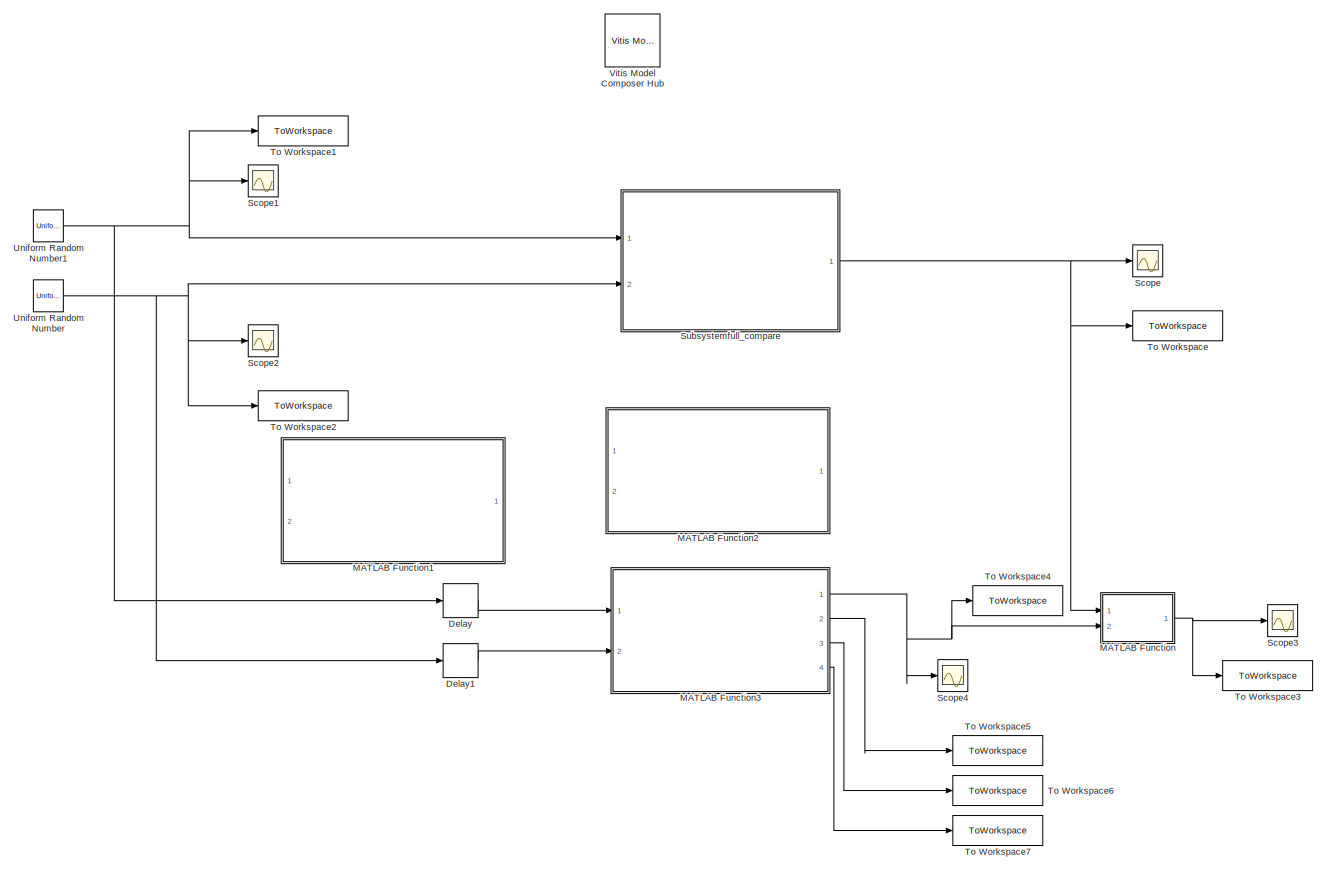
[diagram: root canvas - part 1/1, most of the canvas]
MODEL slx_5e8aa5447d86
KIND model
CONFIG AbsTol = auto
CONFIG EnableMultiTasking = off
CONFIG FixedStep = auto
CONFIG MaxStep = auto
CONFIG MinStep = auto
CONFIG RelTol = 1e-3
CONFIG SampleTimeConstraint = Unconstrained
CONFIG SolverName = VariableStepAuto
CONFIG StartTime = 0.0
CONFIG StopTime = 350
BLOCK [Delay] Delay
  DelayLength = 267
  InputPortMap = u0
  Ports = [1, 1]
BLOCK [Delay] Delay1
  DelayLength = 267
  InputPortMap = u0
  Ports = [1, 1]
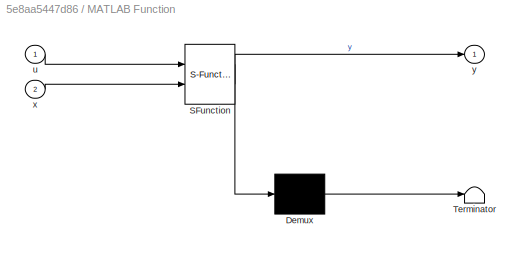
BLOCK [SubSystem] MATLAB Function
  ErrorFcn = Stateflow.Translate.translate
  PermitHierarchicalResolution = ExplicitOnly
  Ports = [2, 1]
  RequestExecContextInheritance = off
  SFBlockType = MATLAB Function
  TreatAsAtomicUnit = on
BLOCK [Demux] MATLAB Function/ Demux 
  Outputs = 1
  Ports = [1, 1]
BLOCK [S-Function] MATLAB Function/ SFunction 
  EnableBusSupport = on
  FunctionName = sf_sfun
  PortCounts = [2 2]
  Ports = [2, 2]
  SFcnIsStateOwnerBlock = off
  SFunctionDeploymentMode = off
  Tag = Stateflow S-Function 2
BLOCK [Terminator] MATLAB Function/ Terminator 
BLOCK [Inport] MATLAB Function/u
BLOCK [Inport] MATLAB Function/x
  Port = 2
BLOCK [Outport] MATLAB Function/y
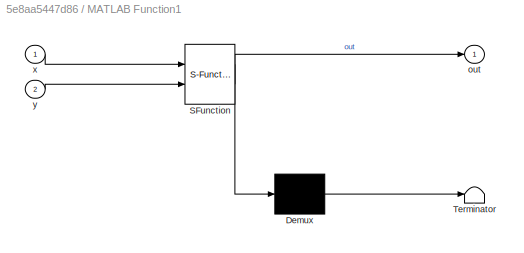
BLOCK [SubSystem] MATLAB Function1
  Commented = on
  ErrorFcn = Stateflow.Translate.translate
  PermitHierarchicalResolution = ExplicitOnly
  Ports = [2, 1]
  RequestExecContextInheritance = off
  SFBlockType = MATLAB Function
  TreatAsAtomicUnit = on
BLOCK [Demux] MATLAB Function1/ Demux 
  Outputs = 1
  Ports = [1, 1]
BLOCK [S-Function] MATLAB Function1/ SFunction 
  EnableBusSupport = on
  FunctionName = sf_sfun
  PortCounts = [2 2]
  Ports = [2, 2]
  SFcnIsStateOwnerBlock = off
  SFunctionDeploymentMode = off
  Tag = Stateflow S-Function 1
BLOCK [Terminator] MATLAB Function1/ Terminator 
BLOCK [Outport] MATLAB Function1/out
BLOCK [Inport] MATLAB Function1/x
BLOCK [Inport] MATLAB Function1/y
  Port = 2
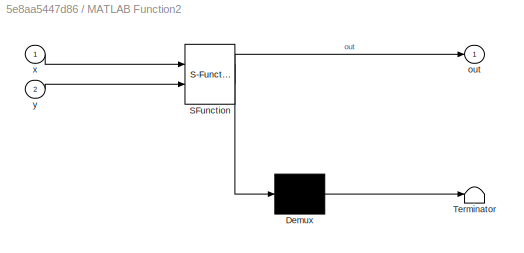
BLOCK [SubSystem] MATLAB Function2
  Commented = on
  ErrorFcn = Stateflow.Translate.translate
  PermitHierarchicalResolution = ExplicitOnly
  Ports = [2, 1]
  RequestExecContextInheritance = off
  SFBlockType = MATLAB Function
  TreatAsAtomicUnit = on
BLOCK [Demux] MATLAB Function2/ Demux 
  Outputs = 1
  Ports = [1, 1]
BLOCK [S-Function] MATLAB Function2/ SFunction 
  EnableBusSupport = on
  FunctionName = sf_sfun
  PortCounts = [2 2]
  Ports = [2, 2]
  SFcnIsStateOwnerBlock = off
  SFunctionDeploymentMode = off
  Tag = Stateflow S-Function 3
BLOCK [Terminator] MATLAB Function2/ Terminator 
BLOCK [Outport] MATLAB Function2/out
BLOCK [Inport] MATLAB Function2/x
BLOCK [Inport] MATLAB Function2/y
  Port = 2
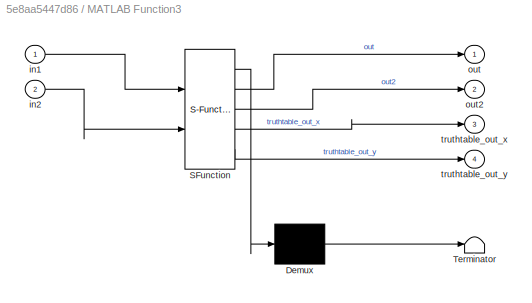
BLOCK [SubSystem] MATLAB Function3
  ErrorFcn = Stateflow.Translate.translate
  PermitHierarchicalResolution = ExplicitOnly
  Ports = [2, 4]
  RequestExecContextInheritance = off
  SFBlockType = MATLAB Function
  TreatAsAtomicUnit = on
BLOCK [Demux] MATLAB Function3/ Demux 
  Outputs = 1
  Ports = [1, 1]
BLOCK [S-Function] MATLAB Function3/ SFunction 
  EnableBusSupport = on
  FunctionName = sf_sfun
  PortCounts = [2 5]
  Ports = [2, 5]
  SFcnIsStateOwnerBlock = off
  SFunctionDeploymentMode = off
  Tag = Stateflow S-Function 4
BLOCK [Terminator] MATLAB Function3/ Terminator 
BLOCK [Inport] MATLAB Function3/in1
BLOCK [Inport] MATLAB Function3/in2
  Port = 2
BLOCK [Outport] MATLAB Function3/out
BLOCK [Outport] MATLAB Function3/out2
  Port = 2
BLOCK [Outport] MATLAB Function3/truthtable_out_x
  Port = 3
BLOCK [Outport] MATLAB Function3/truthtable_out_y
  Port = 4
BLOCK [Scope] Scope
  Floating = off
  NumInputPorts = 1
  Ports = [1]
  ScopeSpecificationString = Simulink.scopes.TimeScopeBlockCfg('CurrentConfiguration', extmgr.ConfigurationSet(extmgr.Configuration('Core','General UI',true),extmgr.Configuration('Core','Source UI',true),extmgr.Configuration('Sources','WiredSimulink',true),extmgr.Configuration('Visuals','Time Domain',true,'SerializedDisplays',{struct('MinYLimReal','-0.17678','MaxYLimReal','1.21265','YLabelReal','','MinYLimMag','0.00000','MaxY...<+1475ch>
BLOCK [Scope] Scope1
  Floating = off
  NumInputPorts = 1
  Ports = [1]
  ScopeSpecificationString = Simulink.scopes.TimeScopeBlockCfg('CurrentConfiguration', extmgr.ConfigurationSet(extmgr.Configuration('Core','General UI',true),extmgr.Configuration('Core','Source UI',true),extmgr.Configuration('Sources','WiredSimulink',true,'DataLoggingVariableName','ScopeData1'),extmgr.Configuration('Visuals','Time Domain',true,'SerializedDisplays',{struct('MinYLimReal','-0.12011','MaxYLimReal','1.09863','YLab...<+1488ch>
BLOCK [Scope] Scope2
  Floating = off
  NumInputPorts = 1
  Ports = [1]
  ScopeSpecificationString = Simulink.scopes.TimeScopeBlockCfg('CurrentConfiguration', extmgr.ConfigurationSet(extmgr.Configuration('Core','General UI',true),extmgr.Configuration('Core','Source UI',true),extmgr.Configuration('Sources','WiredSimulink',true,'DataLoggingVariableName','ScopeData2'),extmgr.Configuration('Visuals','Time Domain',true,'SerializedDisplays',{struct('MinYLimReal','-0.11627','MaxYLimReal','1.12343','YLab...<+1450ch>
BLOCK [Scope] Scope3
  Floating = off
  NumInputPorts = 1
  Ports = [1]
  ScopeSpecificationString = Simulink.scopes.TimeScopeBlockCfg('CurrentConfiguration', extmgr.ConfigurationSet(extmgr.Configuration('Core','General UI',true),extmgr.Configuration('Core','Source UI',true),extmgr.Configuration('Sources','WiredSimulink',true,'DataLoggingVariableName','ScopeData1'),extmgr.Configuration('Visuals','Time Domain',true,'SerializedDisplays',{struct('MinYLimReal','-0.03929','MaxYLimReal','0.02077','YLab...<+1474ch>
BLOCK [Scope] Scope4
  Floating = off
  NumInputPorts = 1
  Ports = [1]
  ScopeSpecificationString = Simulink.scopes.TimeScopeBlockCfg('CurrentConfiguration', extmgr.ConfigurationSet(extmgr.Configuration('Core','General UI',true),extmgr.Configuration('Core','Source UI',true),extmgr.Configuration('Sources','WiredSimulink',true,'DataLoggingVariableName','ScopeData2'),extmgr.Configuration('Visuals','Time Domain',true,'SerializedDisplays',{struct('MinYLimReal','-0.15185','MaxYLimReal','1.36663','YLab...<+1504ch>
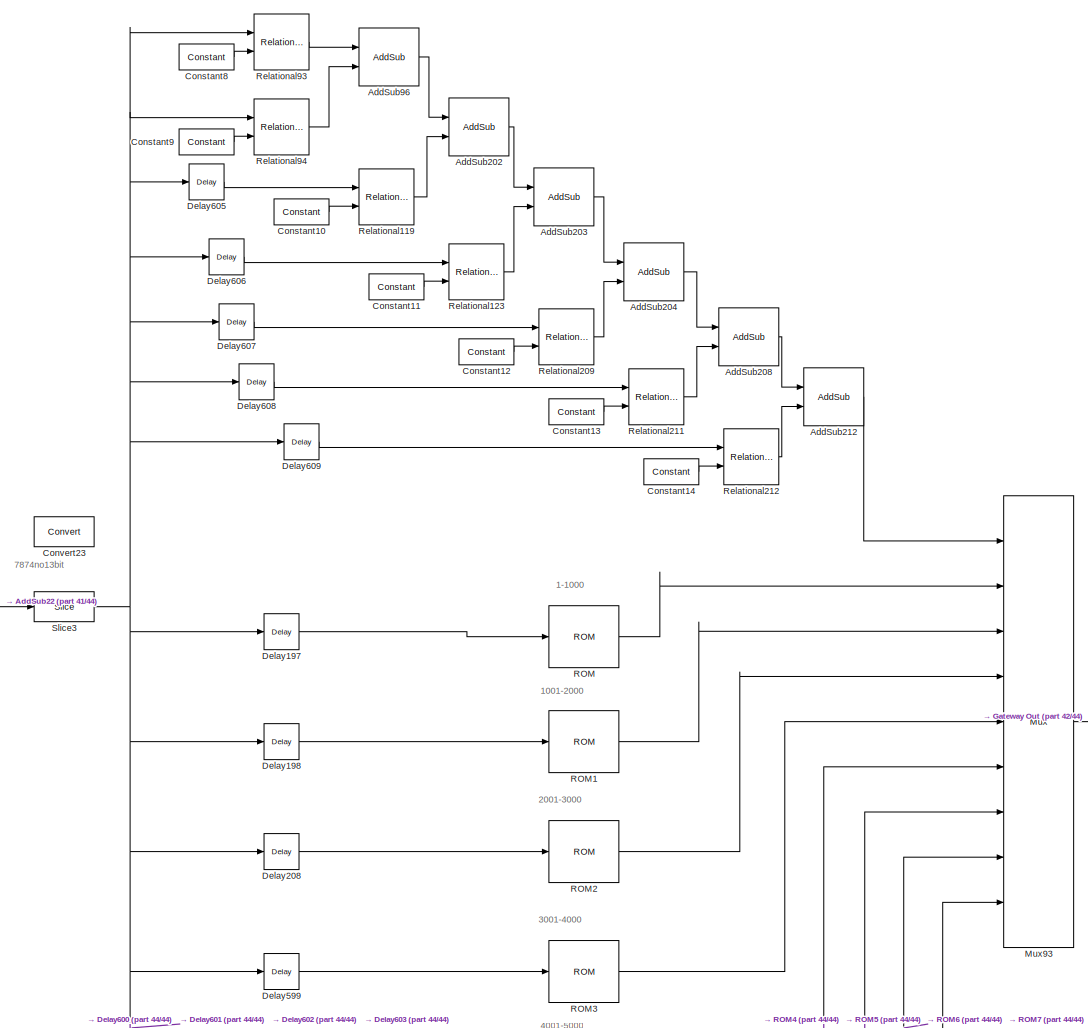
[diagram: Subsystemfull_compare - part 1/44, middle right region]
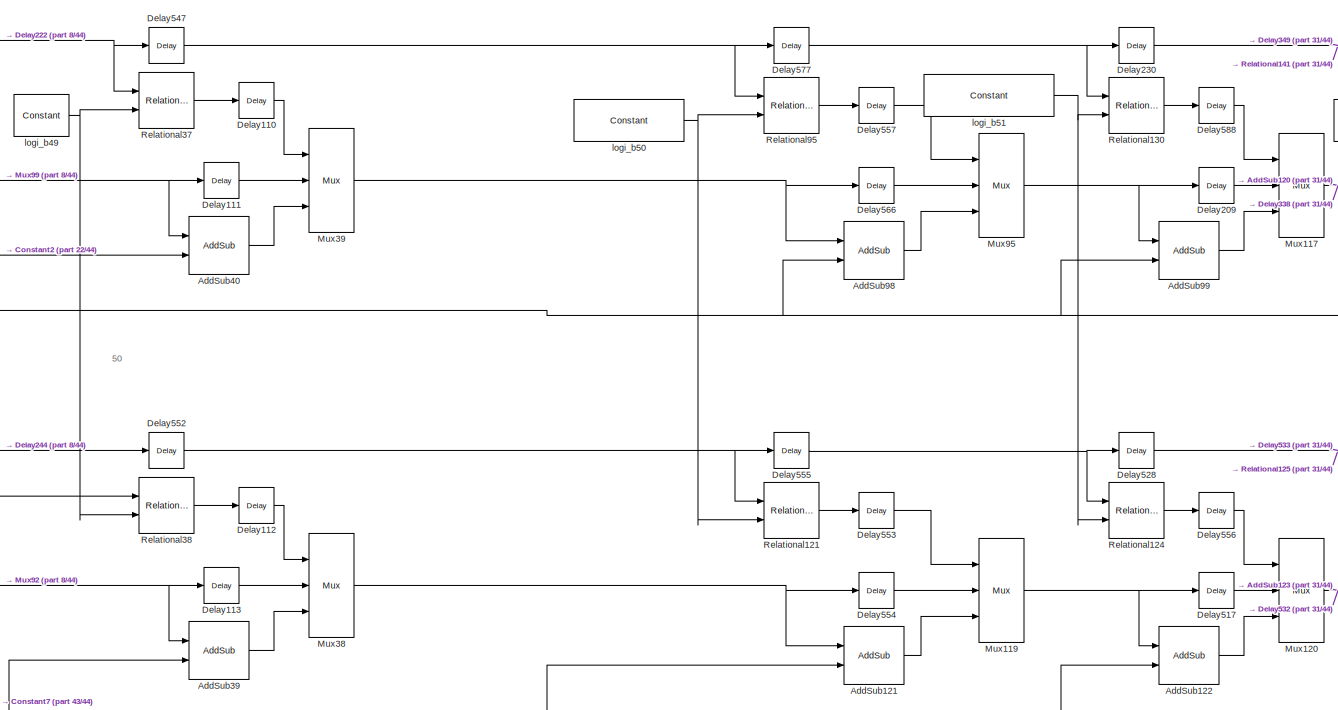
[diagram: Subsystemfull_compare - part 2/44, central region]
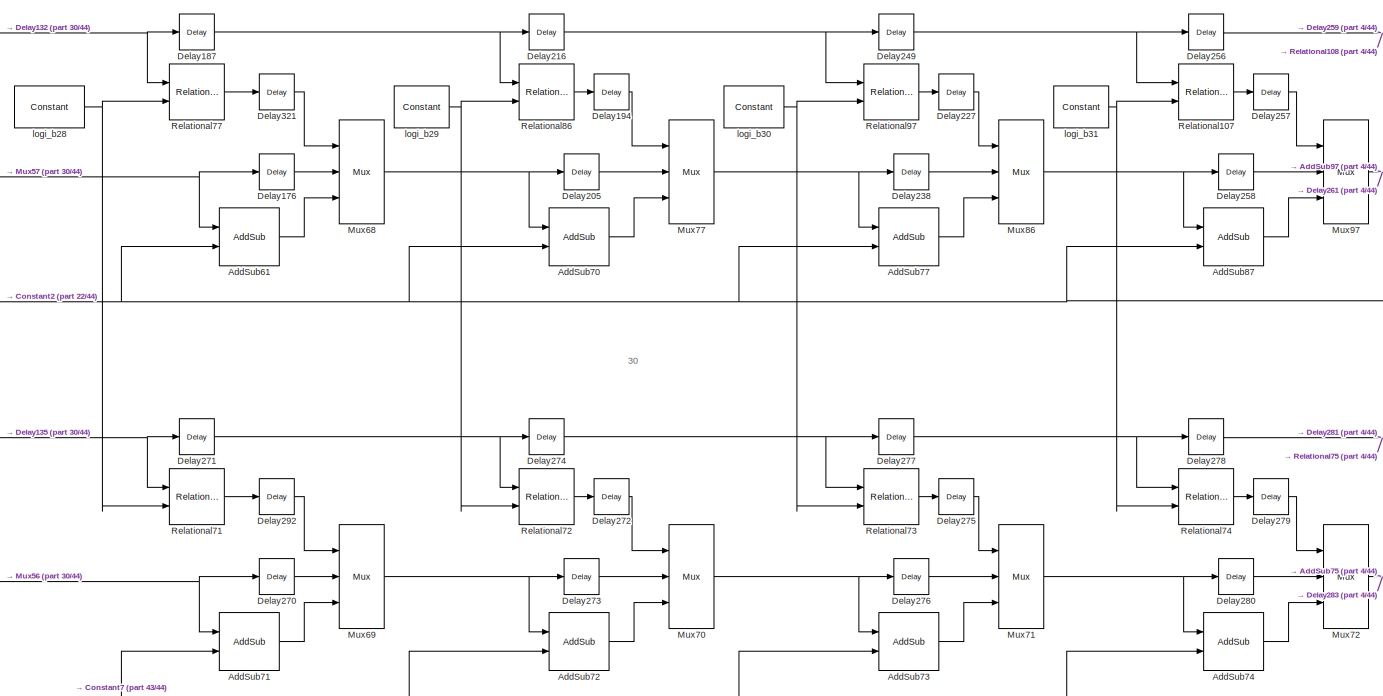
[diagram: Subsystemfull_compare - part 3/44, middle left region]
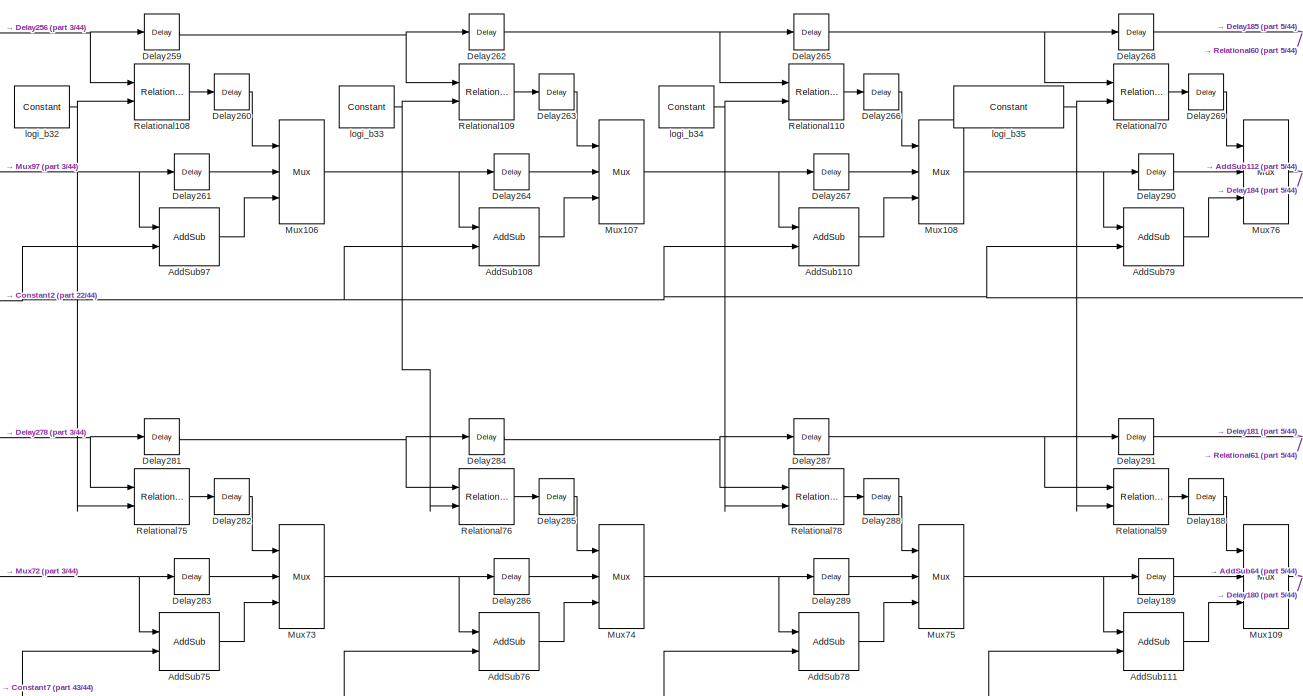
[diagram: Subsystemfull_compare - part 4/44, middle left region]
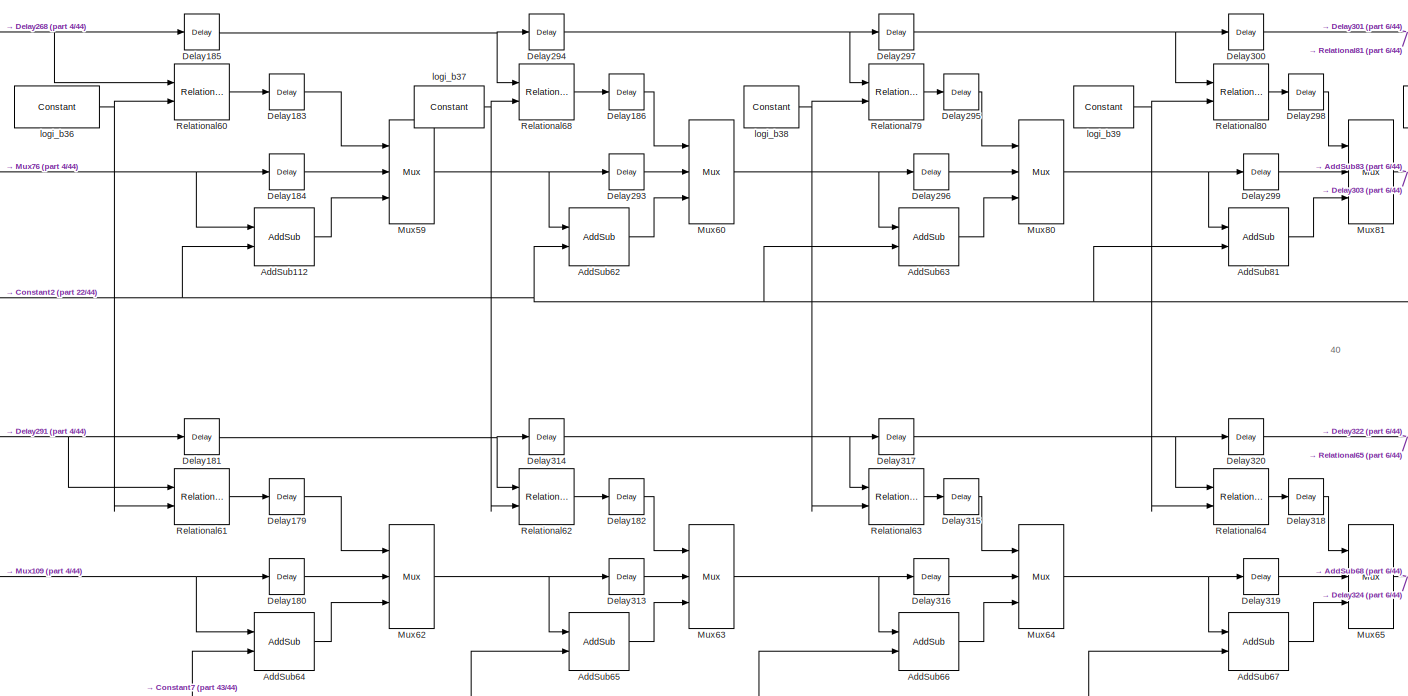
[diagram: Subsystemfull_compare - part 5/44, middle left region]
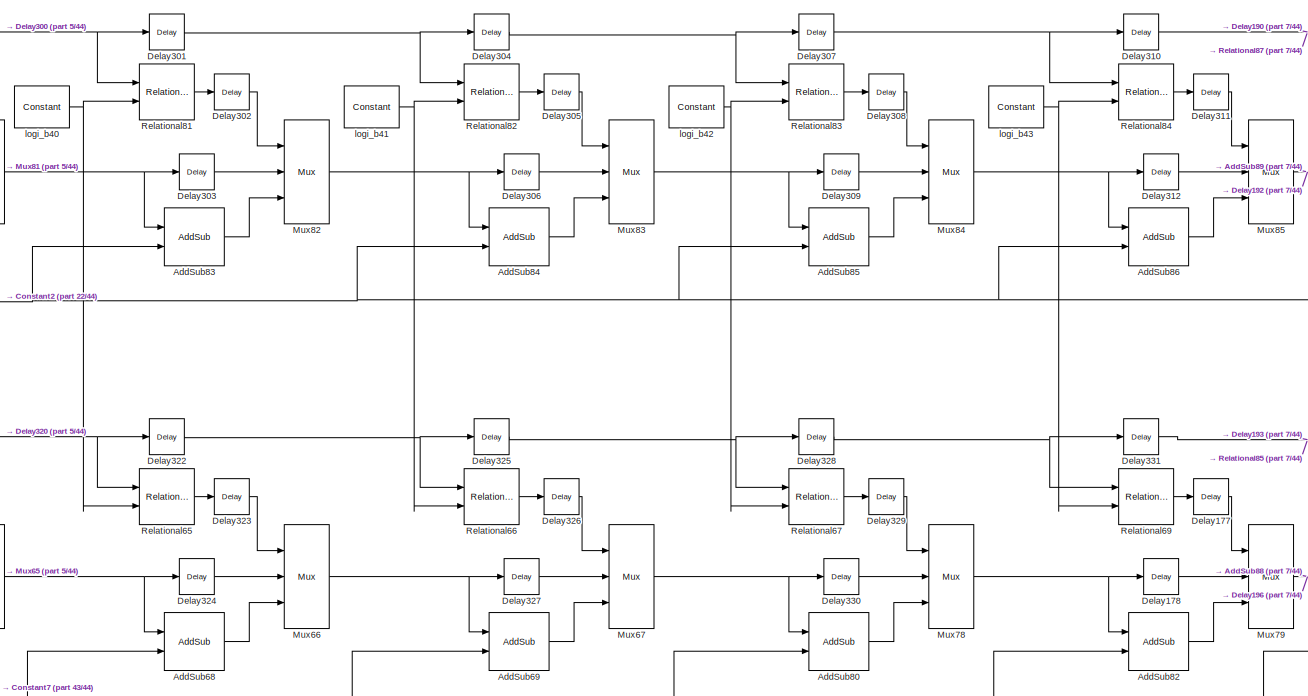
[diagram: Subsystemfull_compare - part 6/44, middle left region]
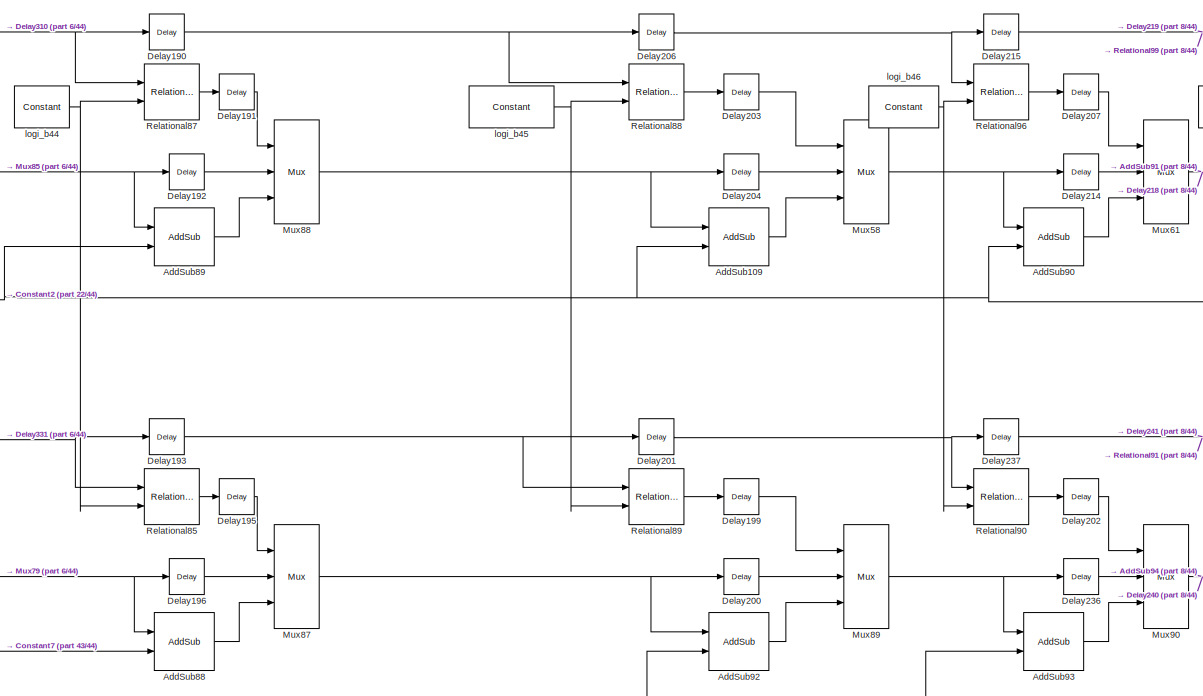
[diagram: Subsystemfull_compare - part 7/44, central region]
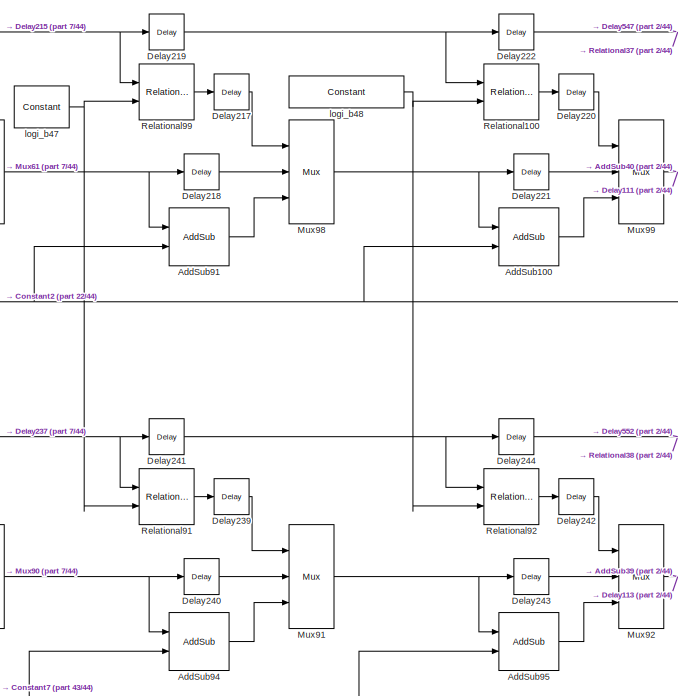
[diagram: Subsystemfull_compare - part 8/44, central region]
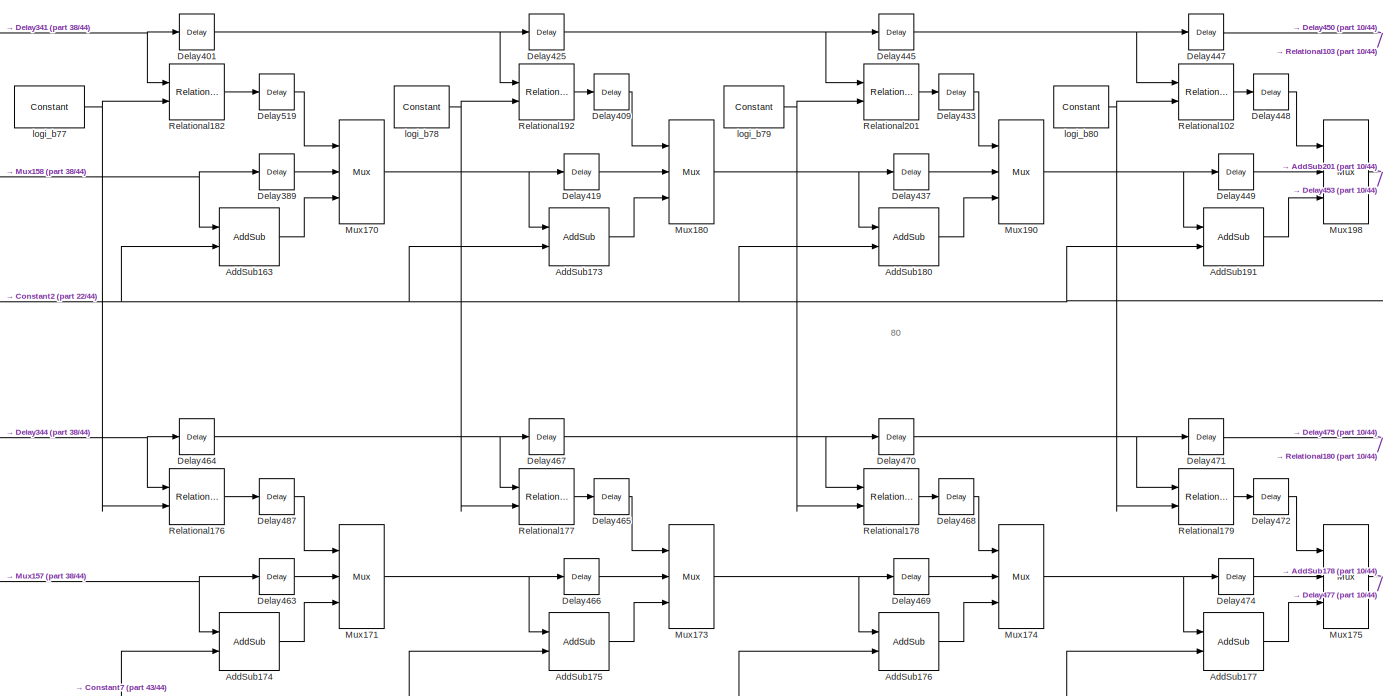
[diagram: Subsystemfull_compare - part 9/44, central region]
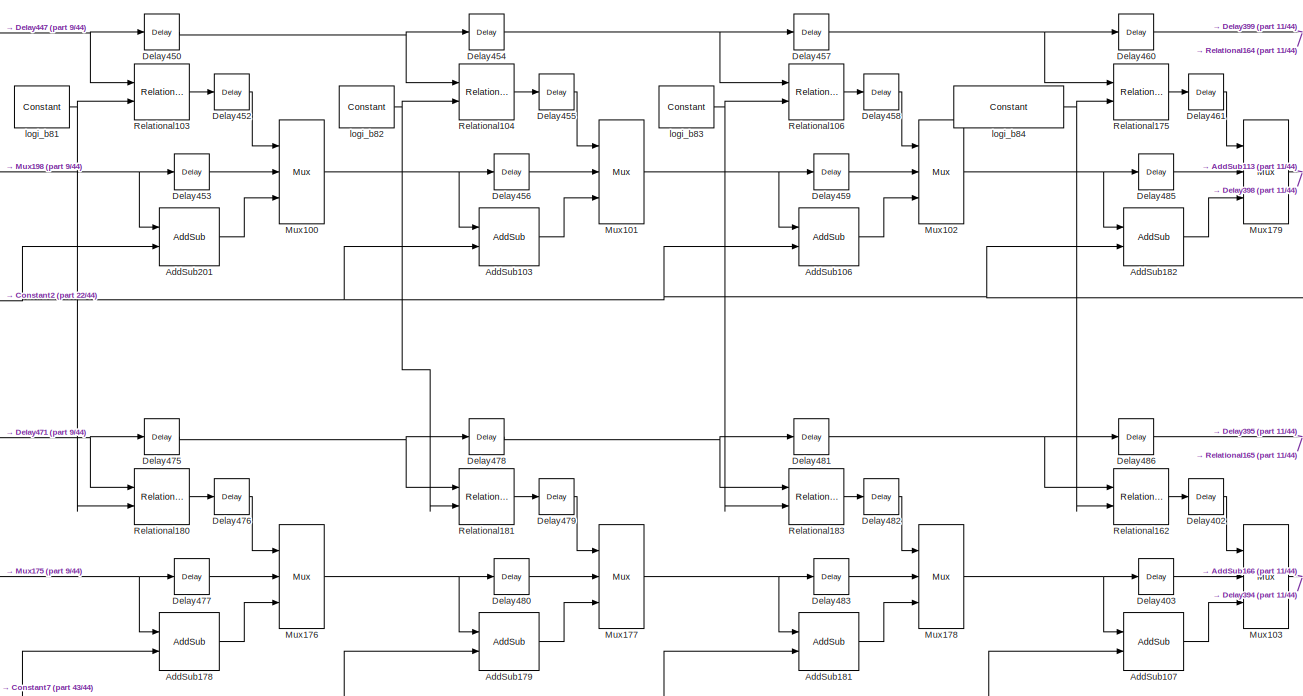
[diagram: Subsystemfull_compare - part 10/44, central region]
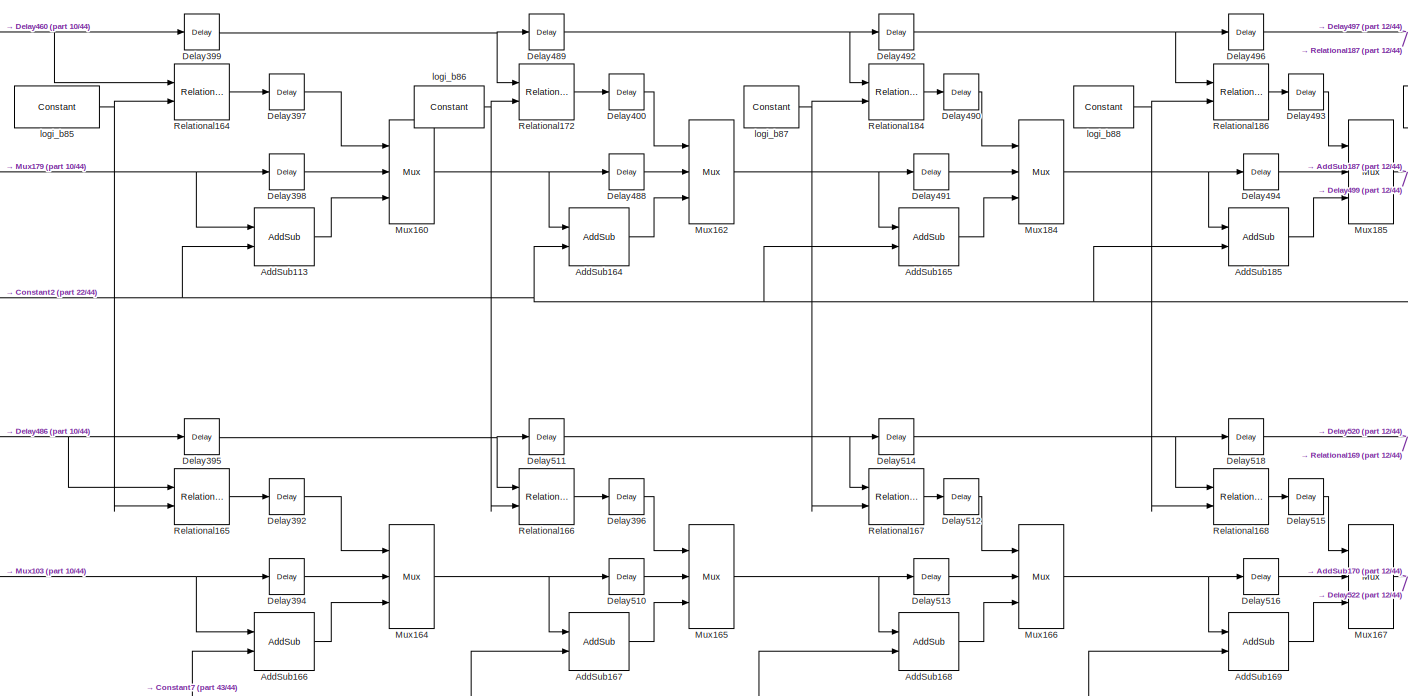
[diagram: Subsystemfull_compare - part 11/44, central region]
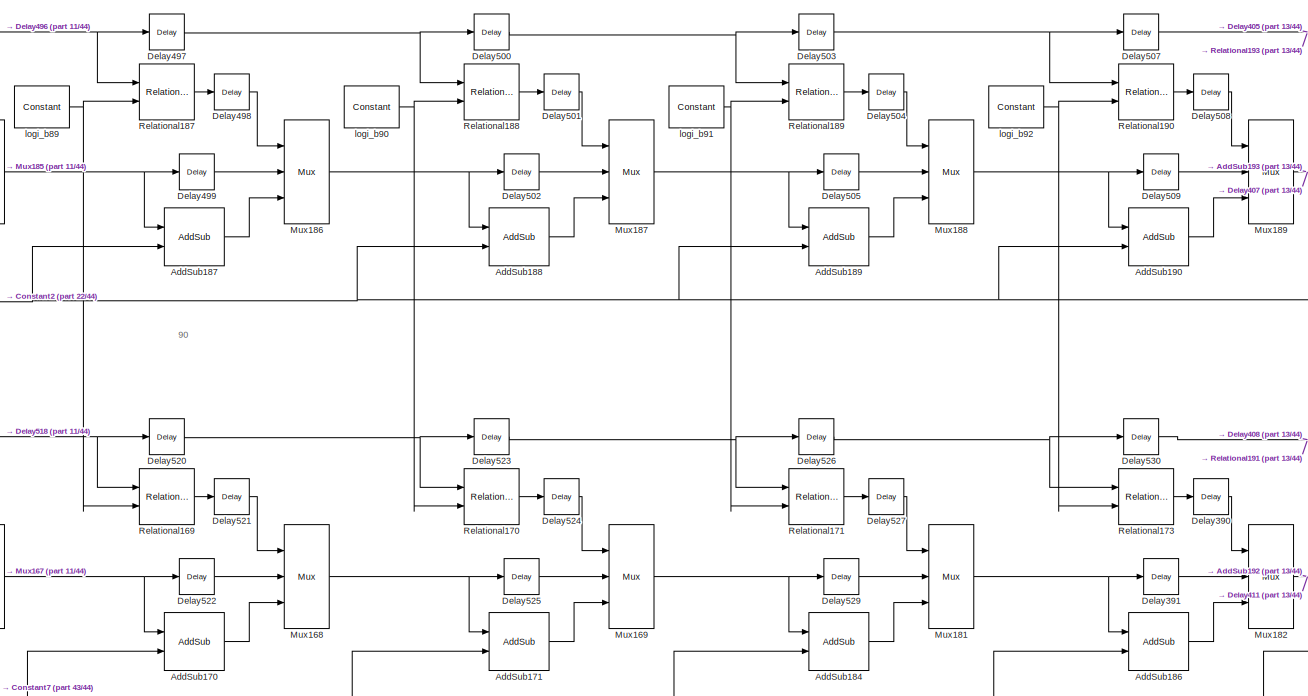
[diagram: Subsystemfull_compare - part 12/44, middle right region]
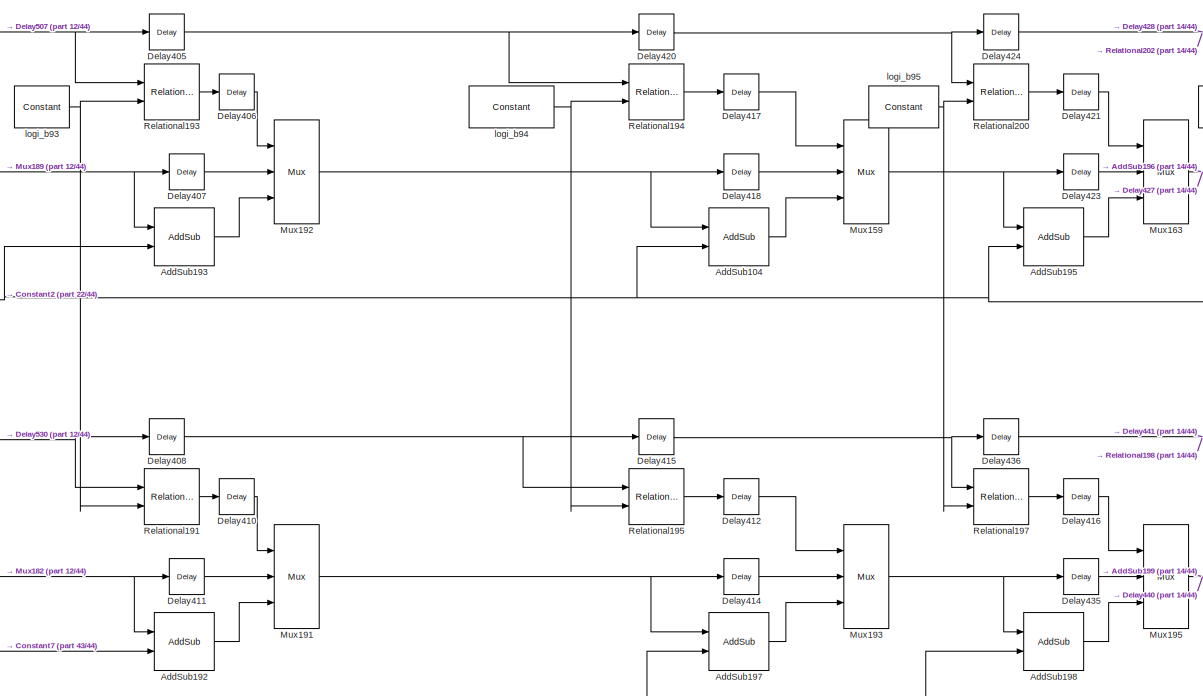
[diagram: Subsystemfull_compare - part 13/44, middle right region]
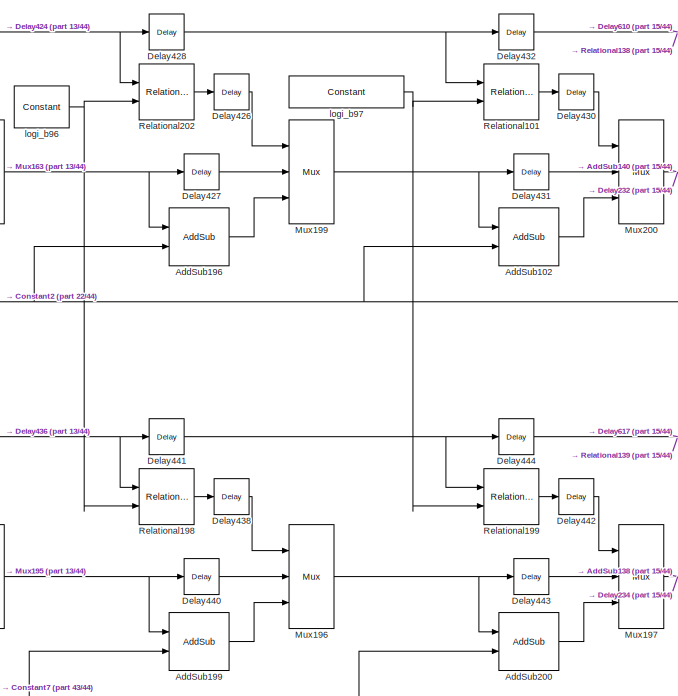
[diagram: Subsystemfull_compare - part 14/44, middle right region]
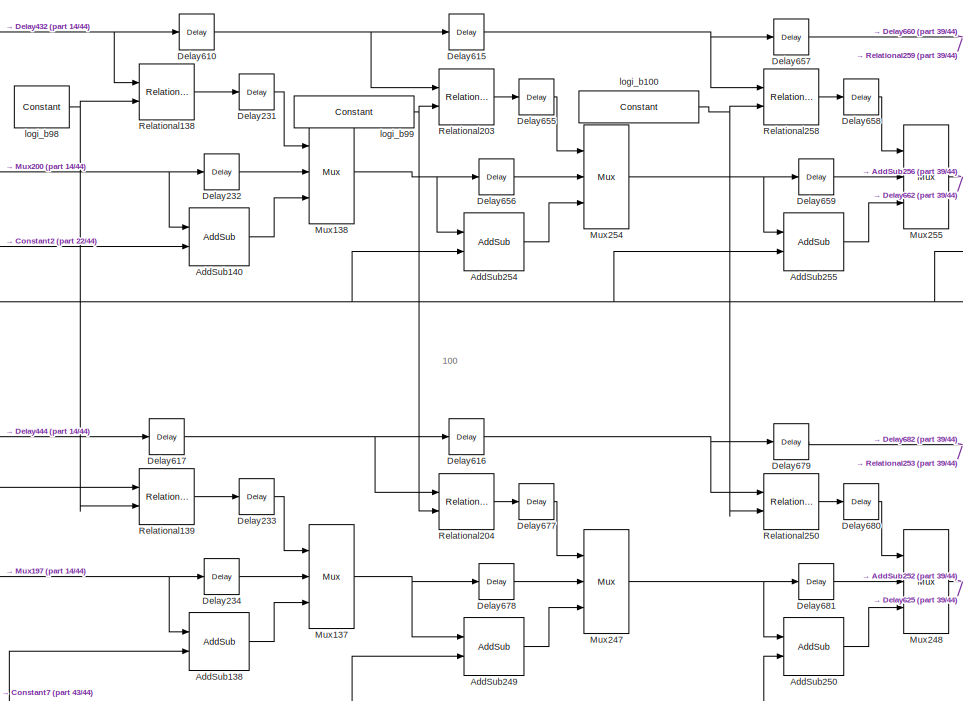
[diagram: Subsystemfull_compare - part 15/44, middle right region]
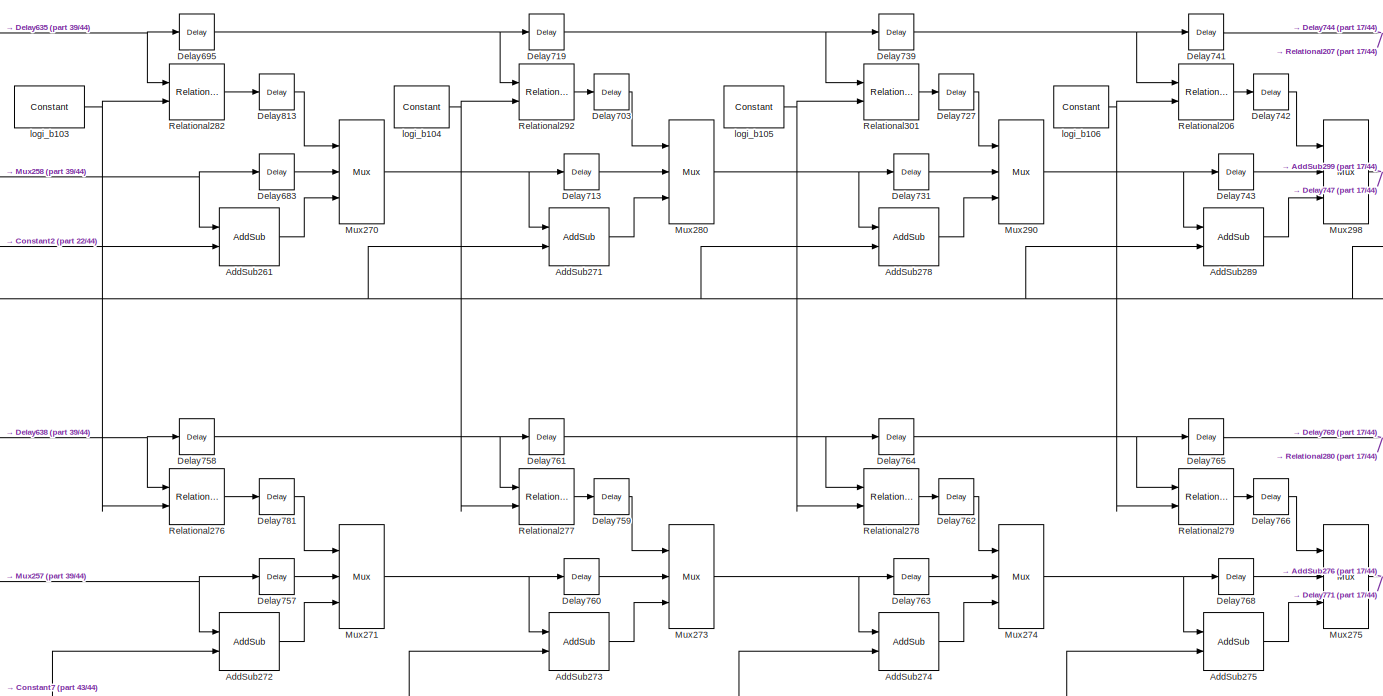
[diagram: Subsystemfull_compare - part 16/44, middle right region]
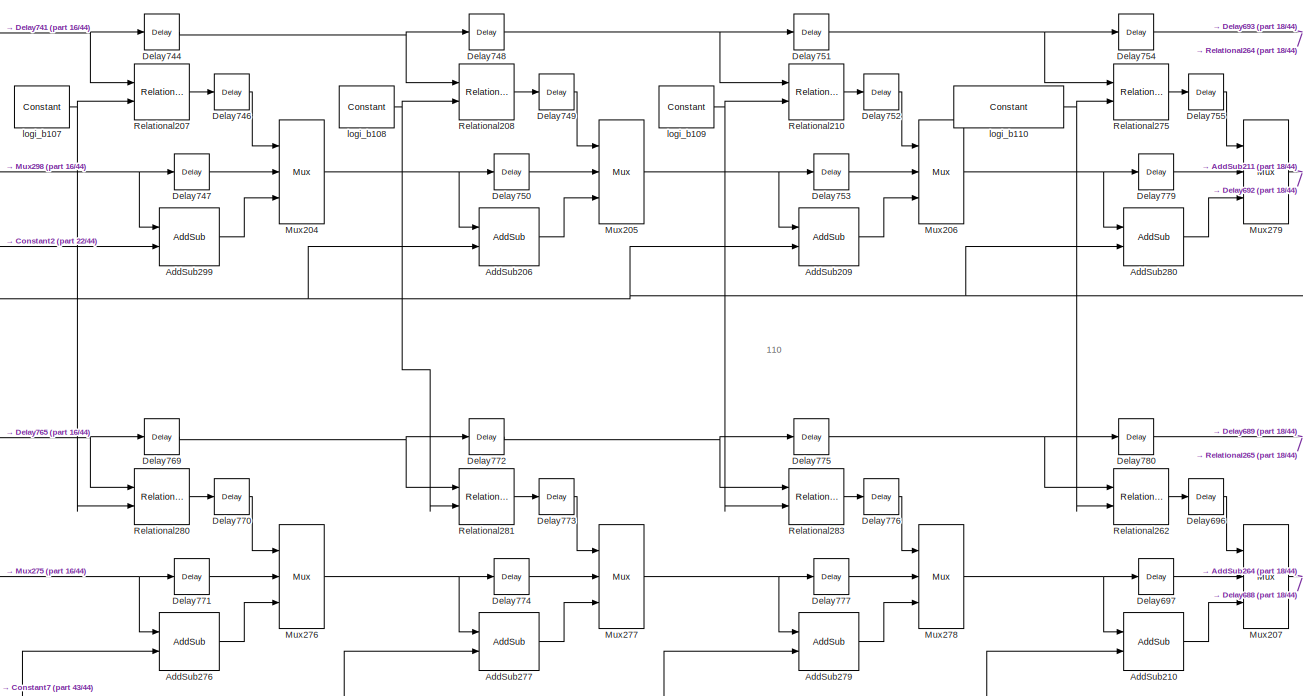
[diagram: Subsystemfull_compare - part 17/44, middle right region]
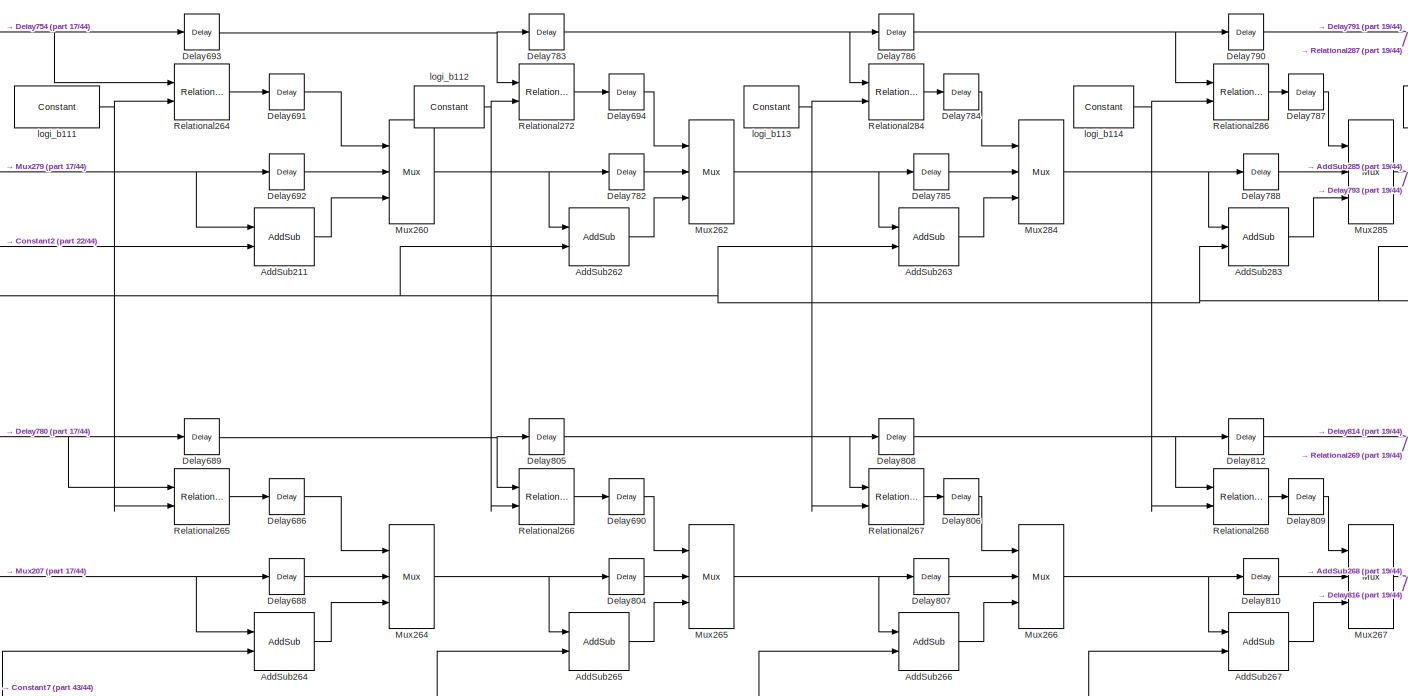
[diagram: Subsystemfull_compare - part 18/44, middle right region]
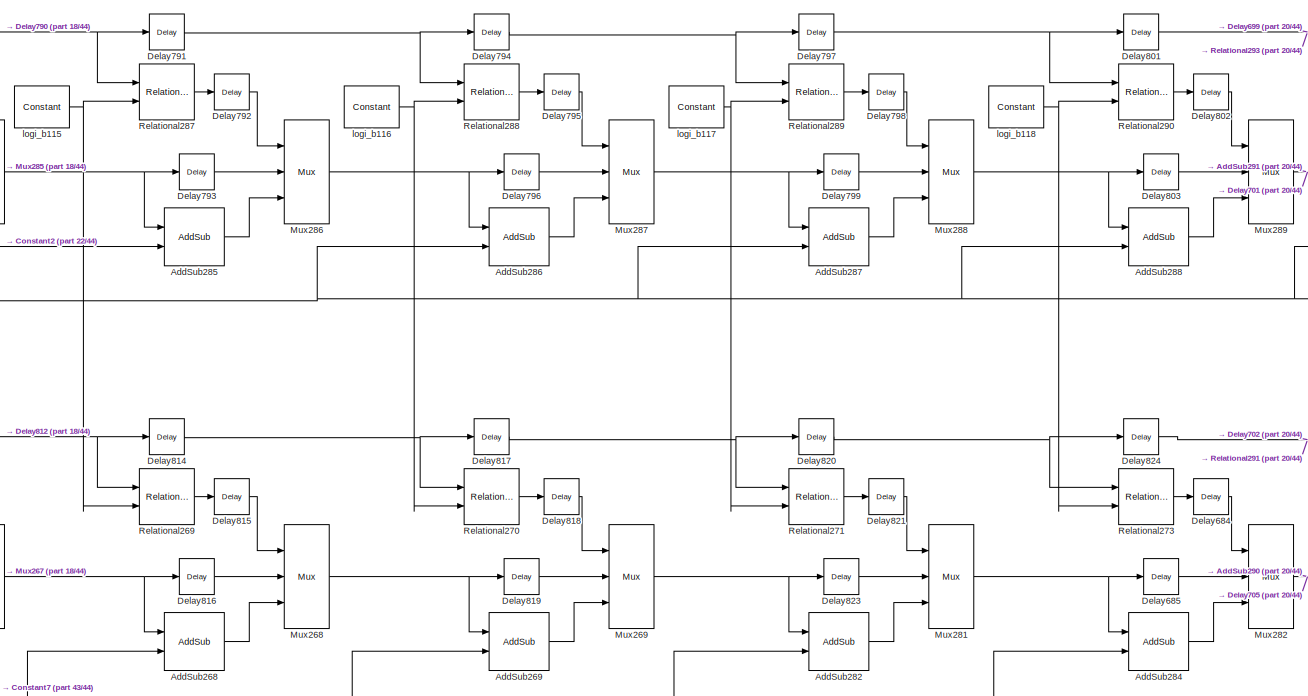
[diagram: Subsystemfull_compare - part 19/44, middle right region]
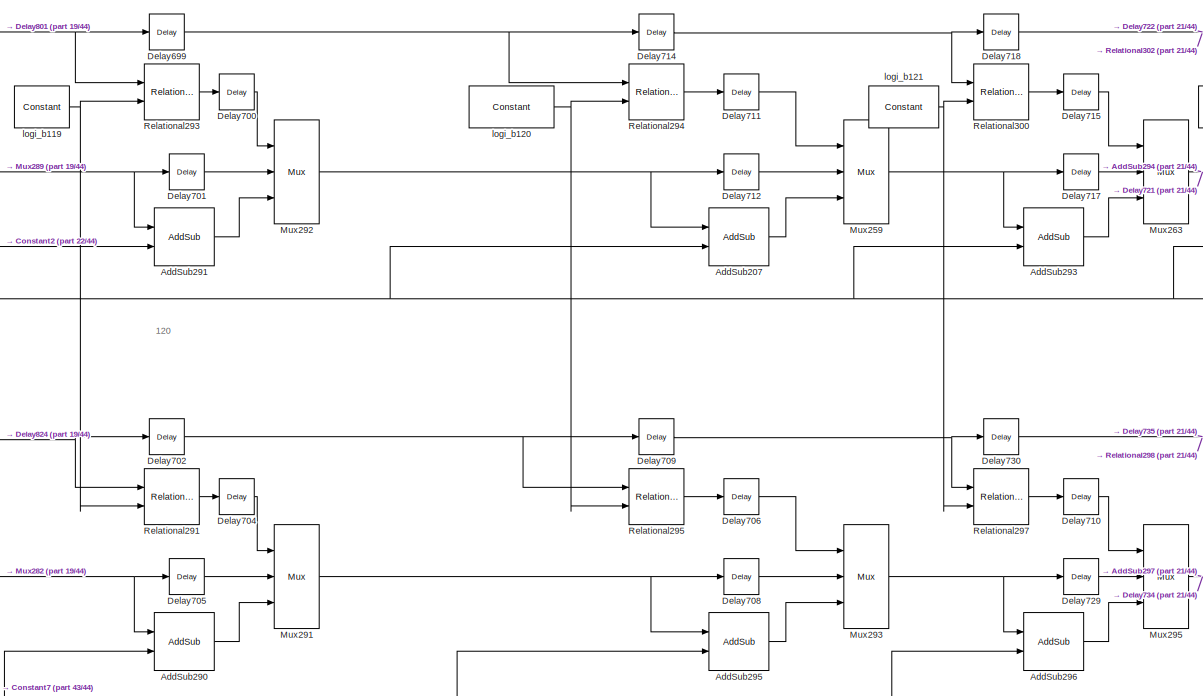
[diagram: Subsystemfull_compare - part 20/44, middle right region]
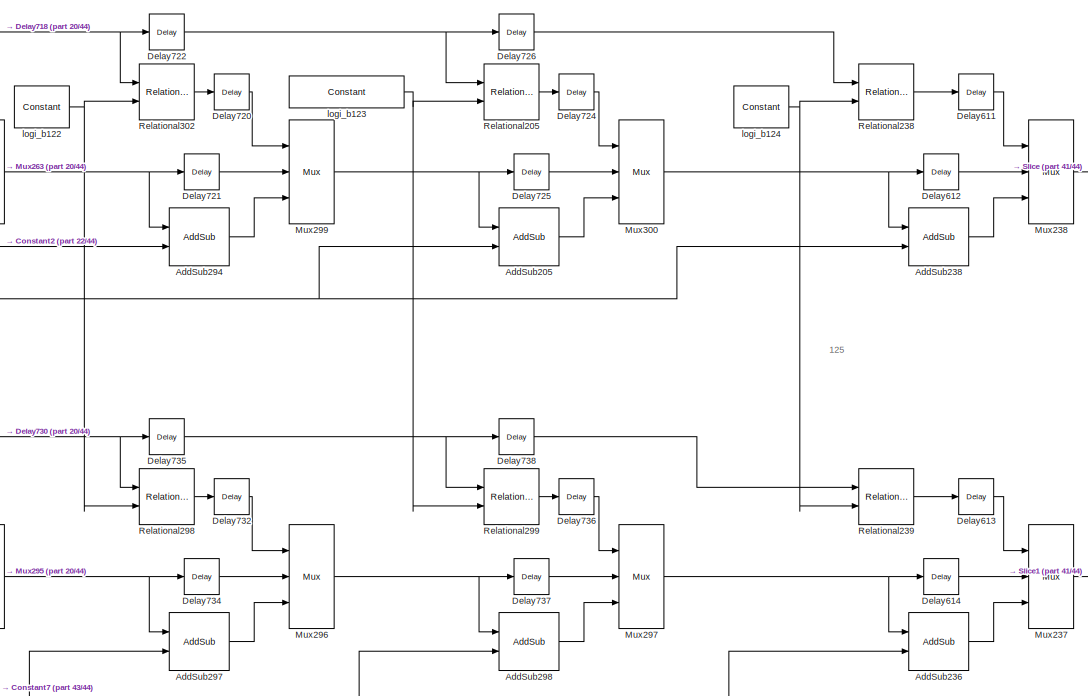
[diagram: Subsystemfull_compare - part 21/44, middle right region]
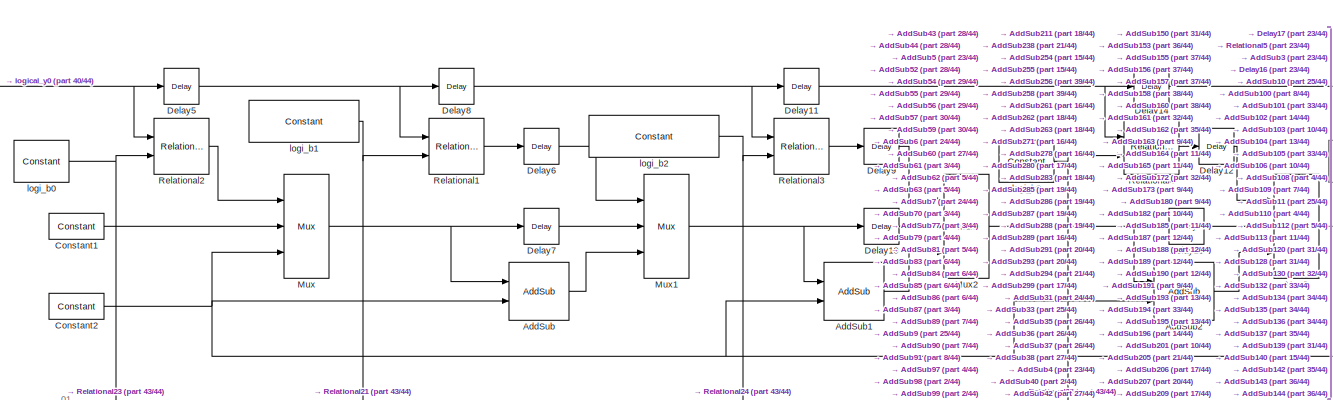
[diagram: Subsystemfull_compare - part 22/44, middle left region]
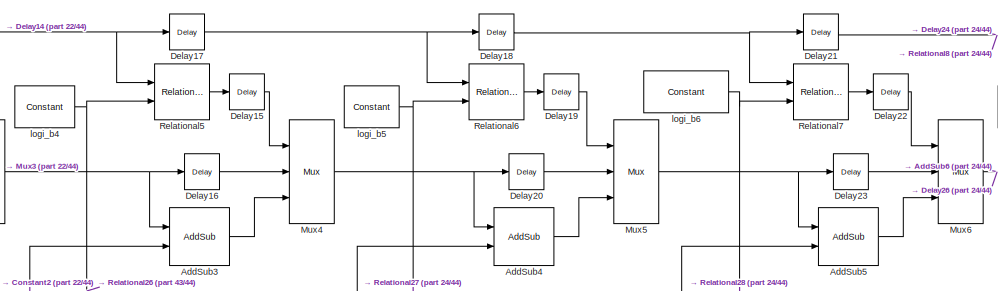
[diagram: Subsystemfull_compare - part 23/44, middle left region]
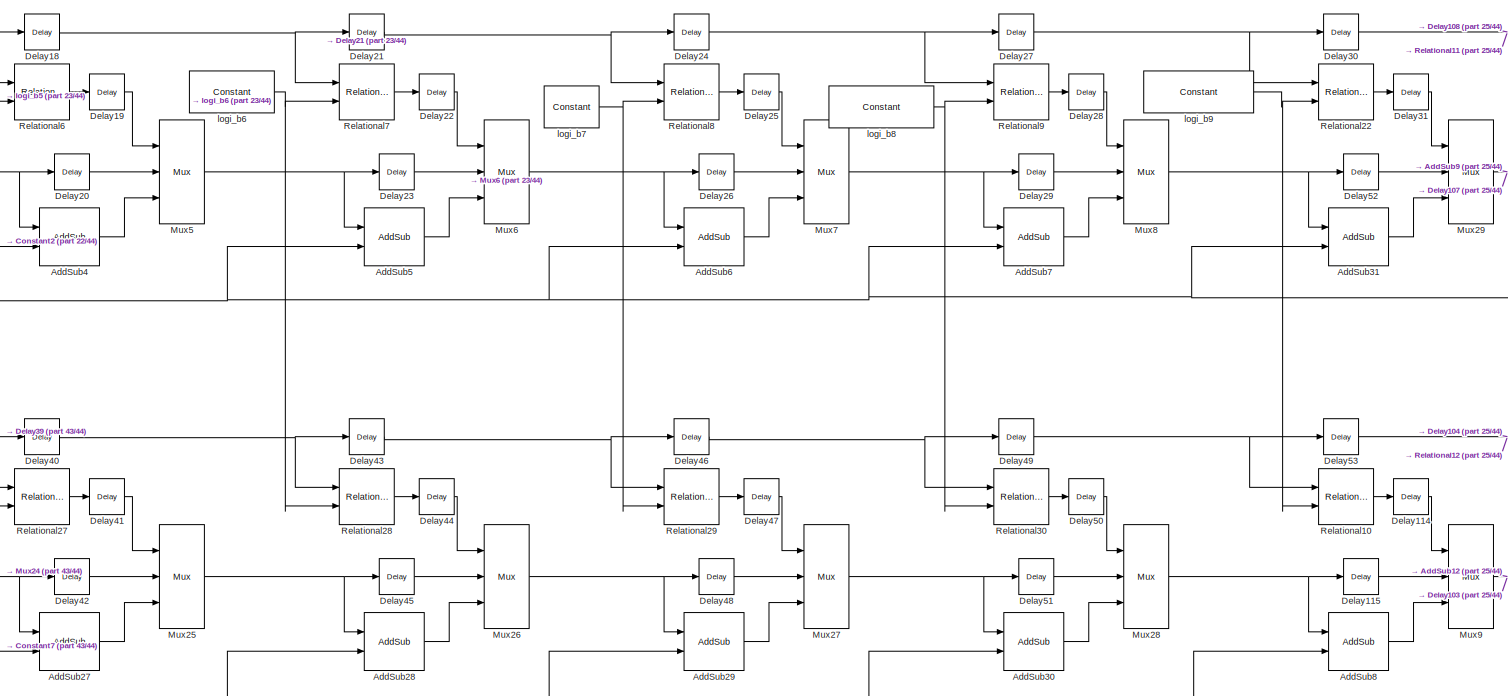
[diagram: Subsystemfull_compare - part 24/44, middle left region]
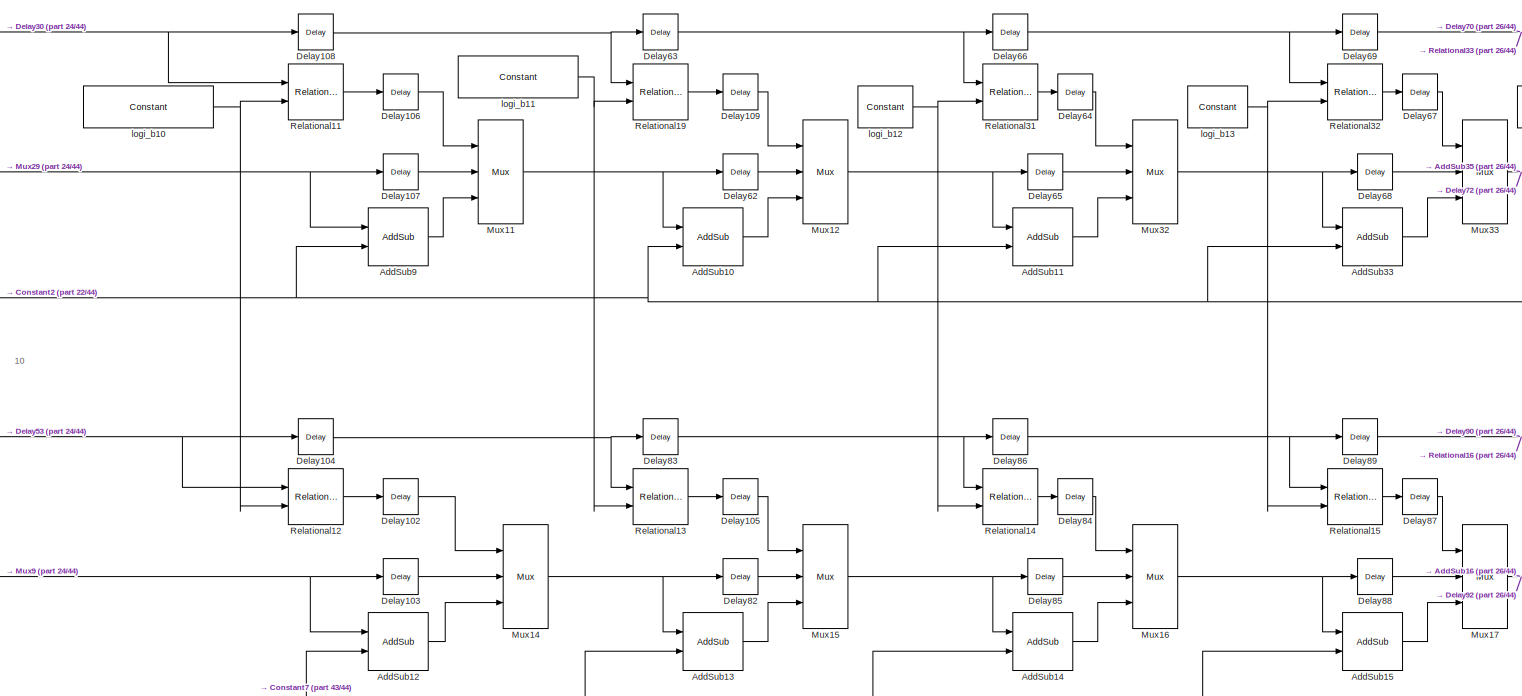
[diagram: Subsystemfull_compare - part 25/44, middle left region]
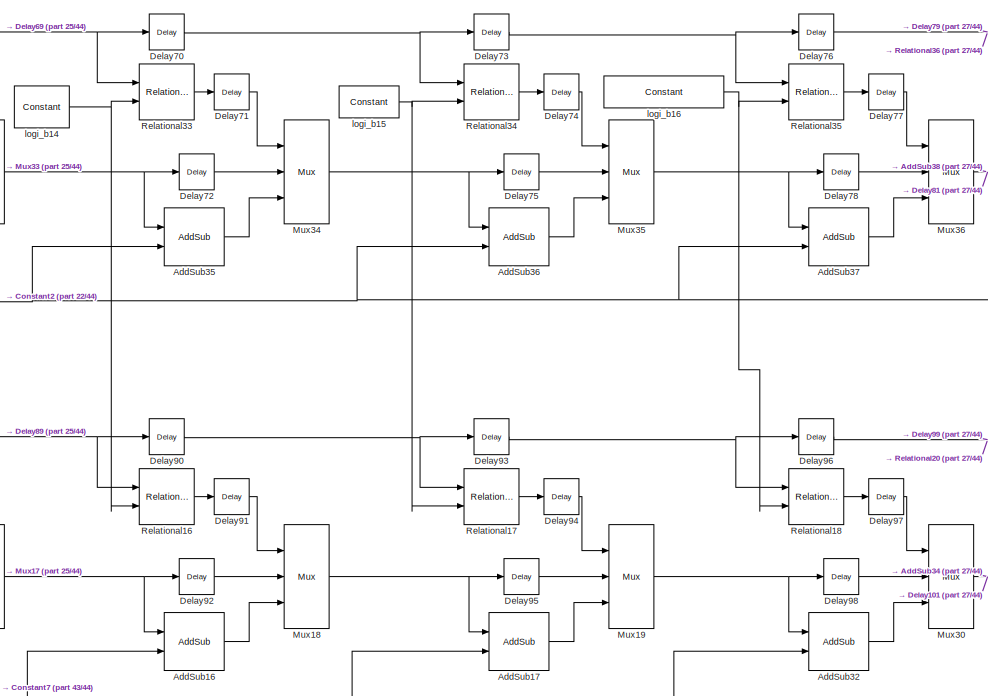
[diagram: Subsystemfull_compare - part 26/44, middle left region]
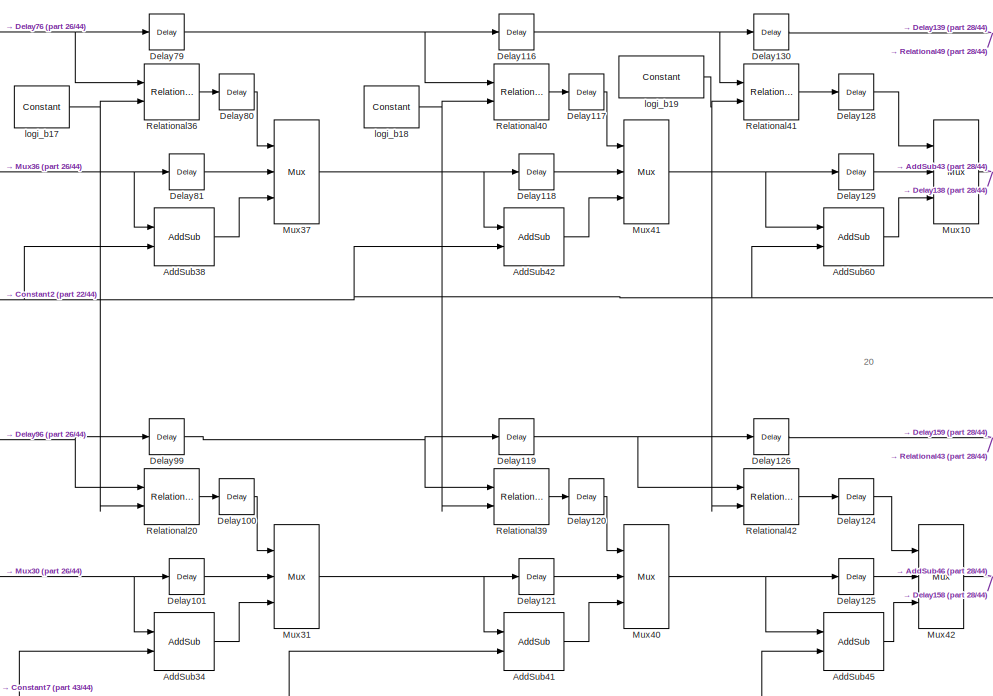
[diagram: Subsystemfull_compare - part 27/44, middle left region]
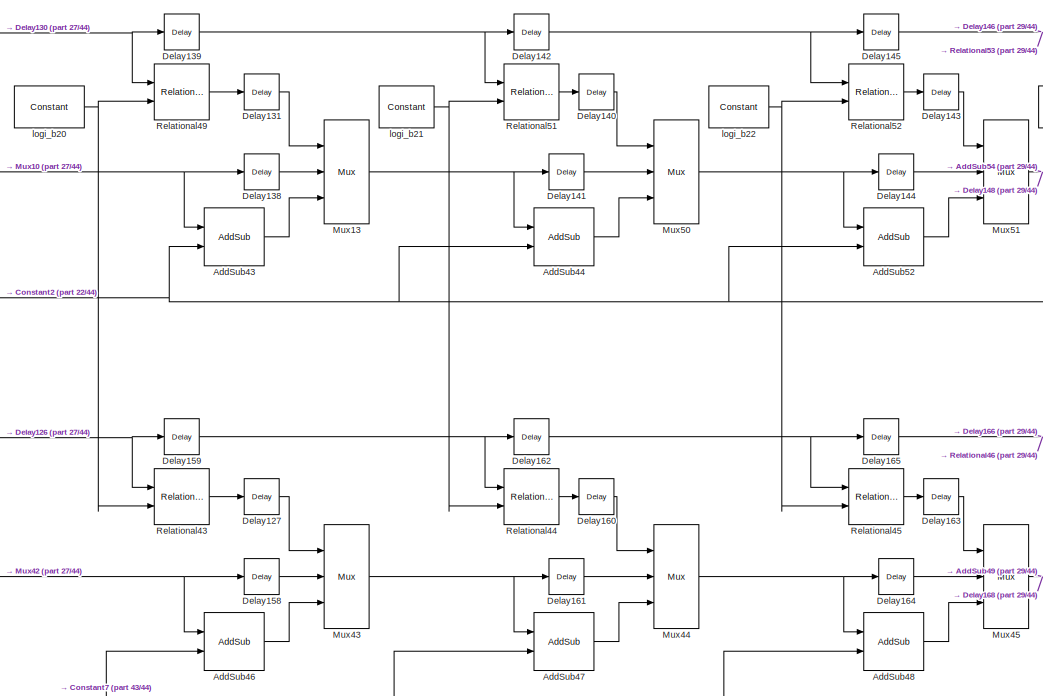
[diagram: Subsystemfull_compare - part 28/44, middle left region]
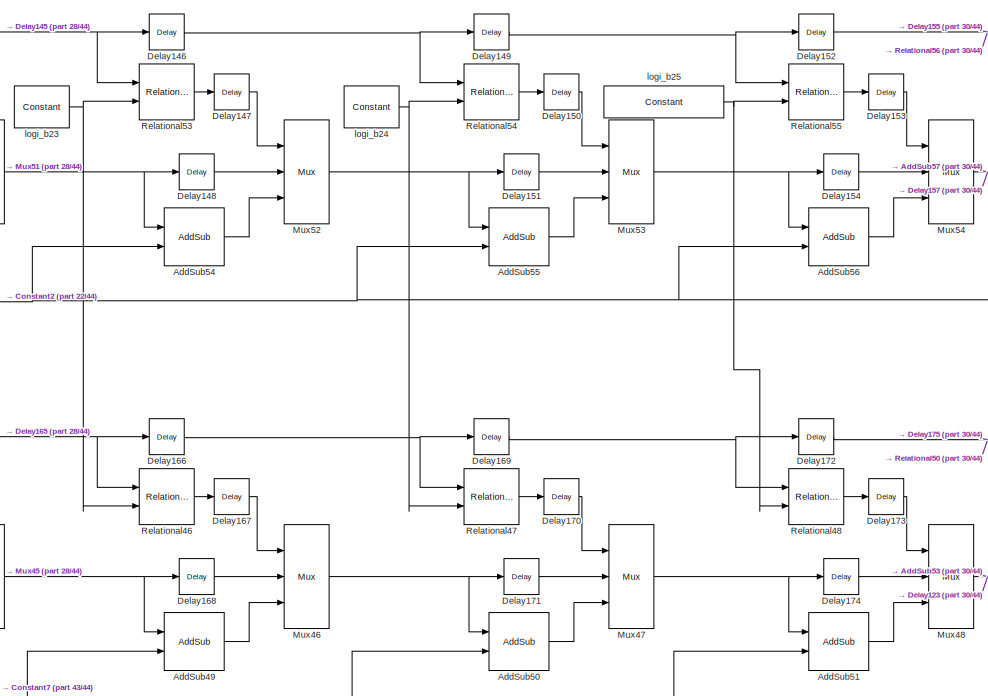
[diagram: Subsystemfull_compare - part 29/44, middle left region]
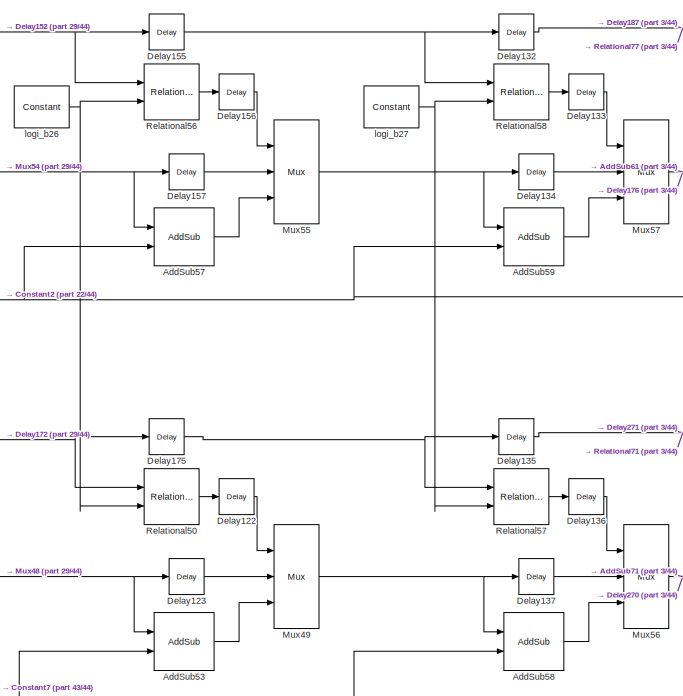
[diagram: Subsystemfull_compare - part 30/44, middle left region]
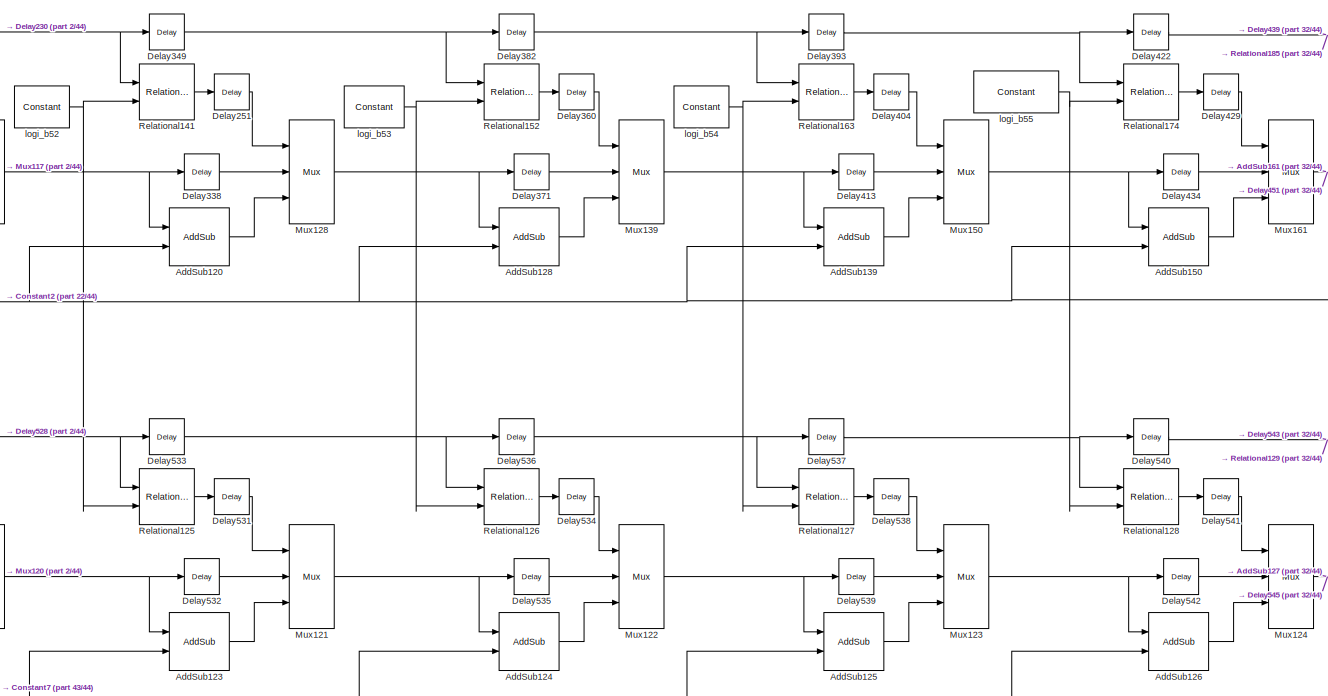
[diagram: Subsystemfull_compare - part 31/44, central region]
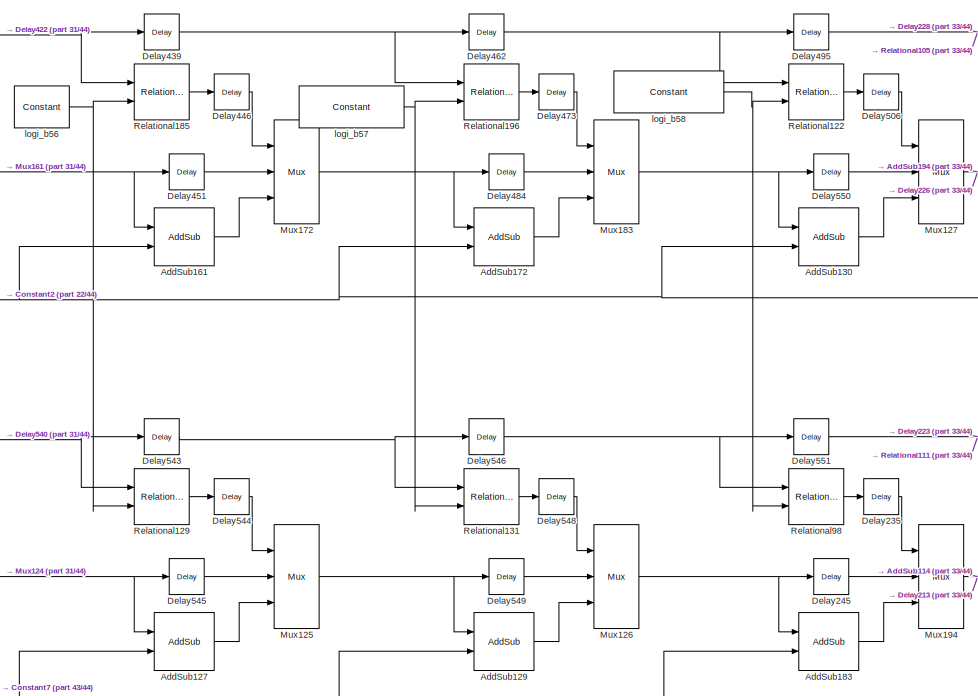
[diagram: Subsystemfull_compare - part 32/44, central region]
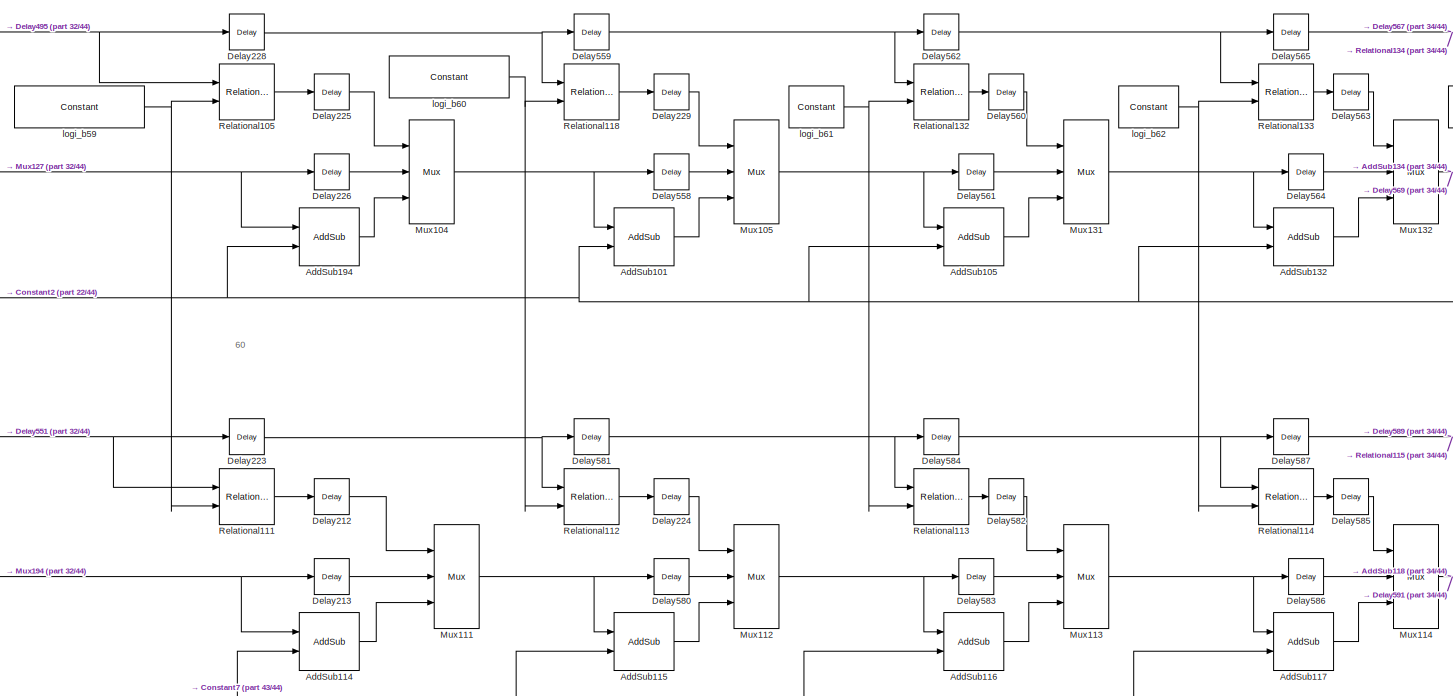
[diagram: Subsystemfull_compare - part 33/44, central region]
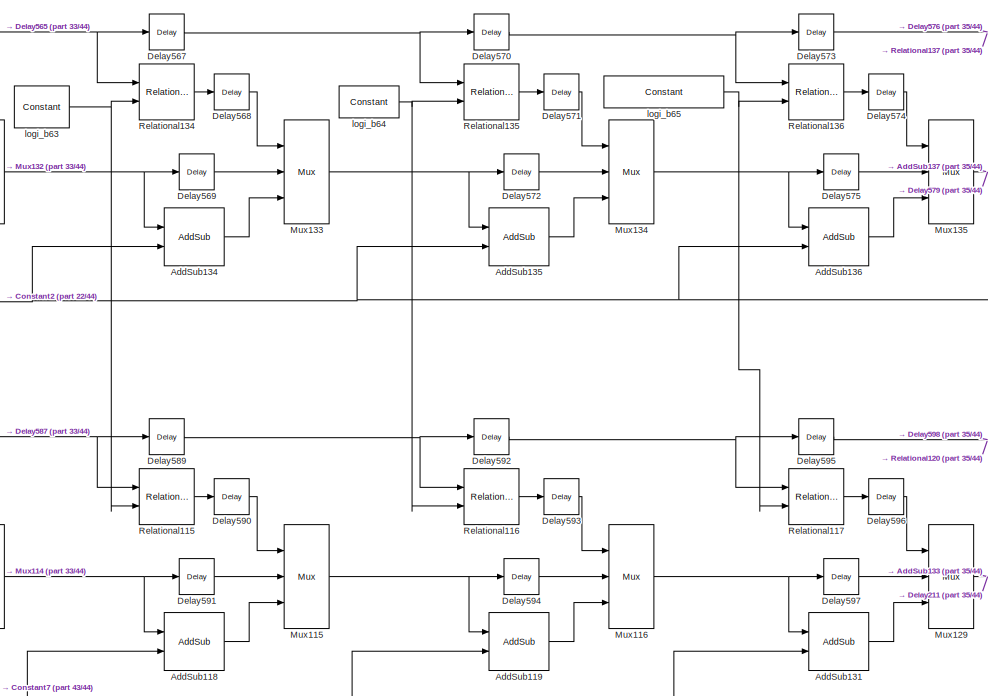
[diagram: Subsystemfull_compare - part 34/44, central region]
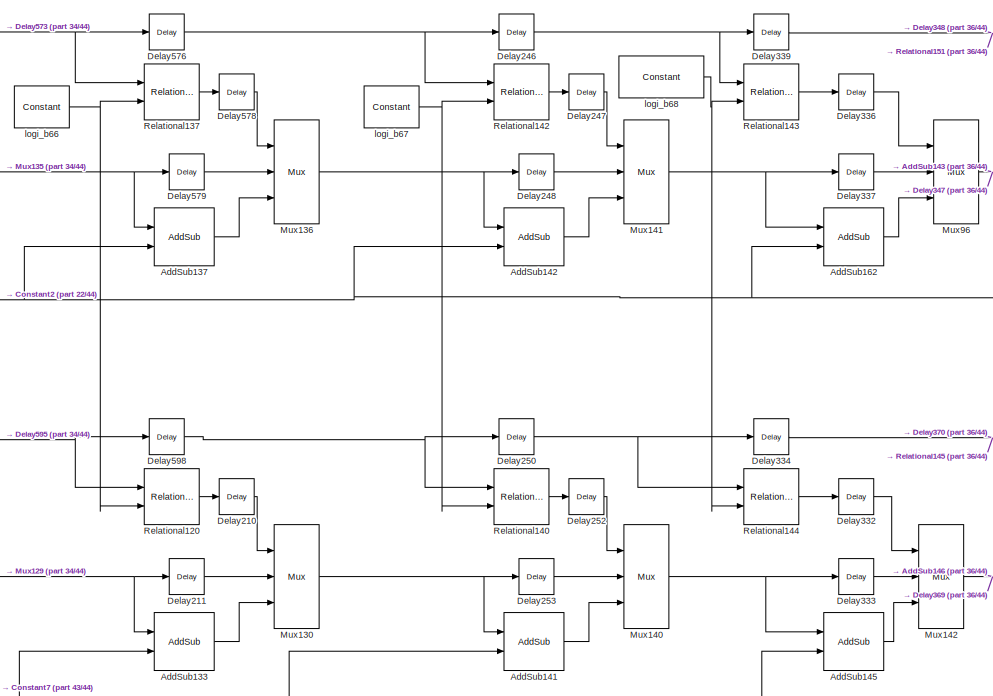
[diagram: Subsystemfull_compare - part 35/44, central region]
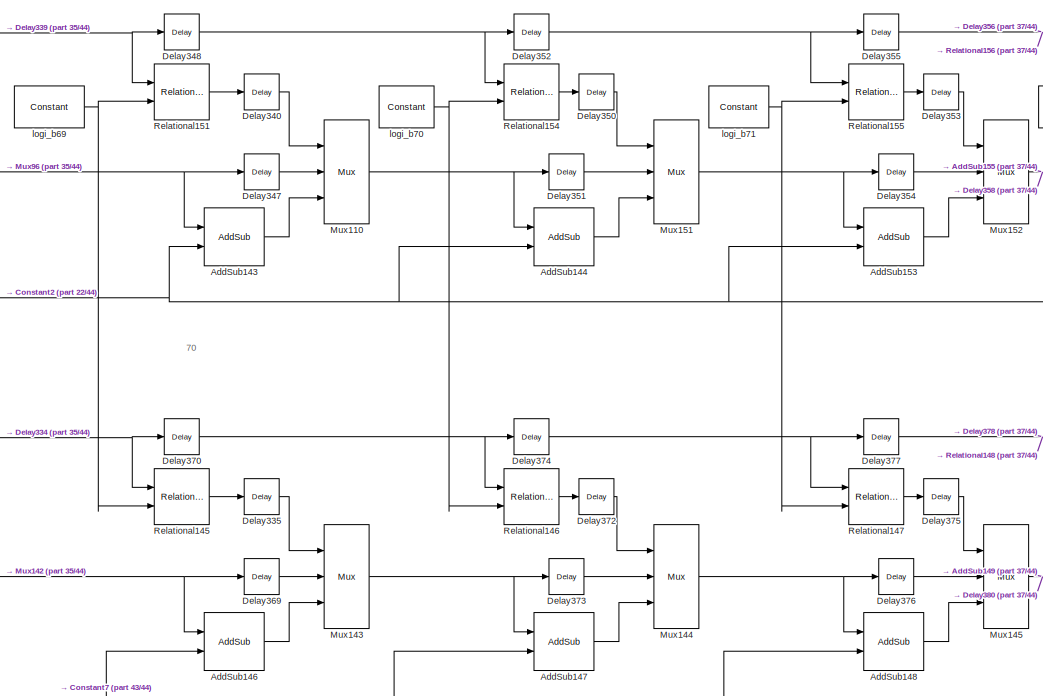
[diagram: Subsystemfull_compare - part 36/44, central region]
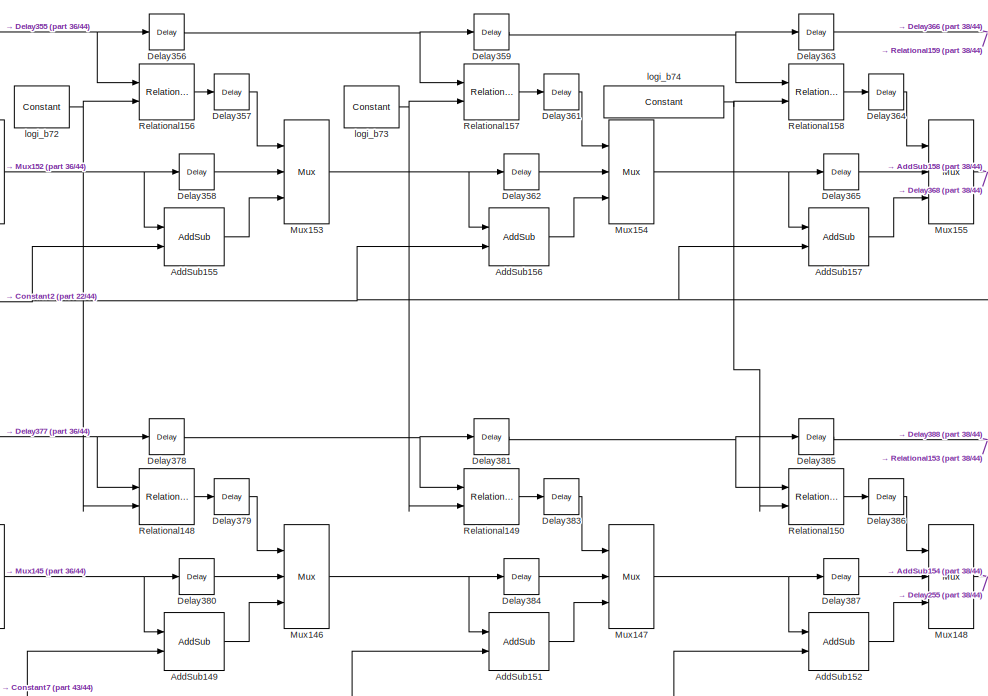
[diagram: Subsystemfull_compare - part 37/44, central region]
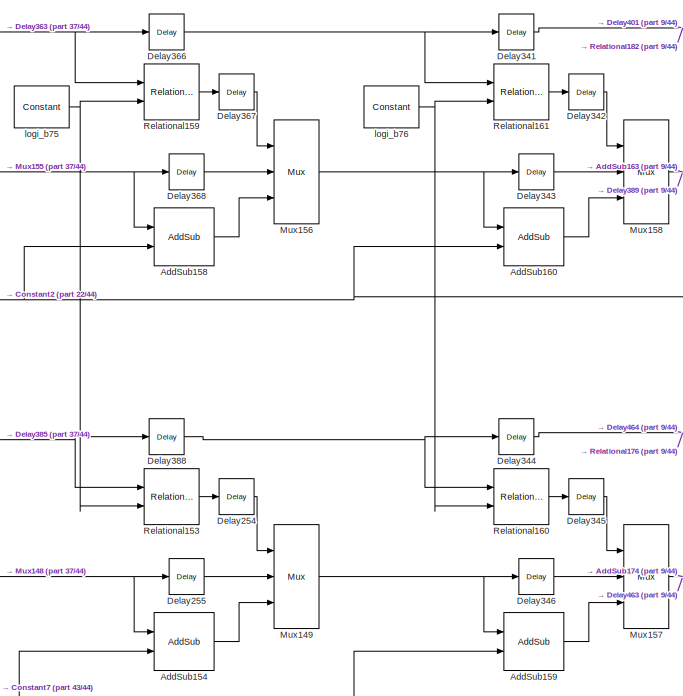
[diagram: Subsystemfull_compare - part 38/44, central region]
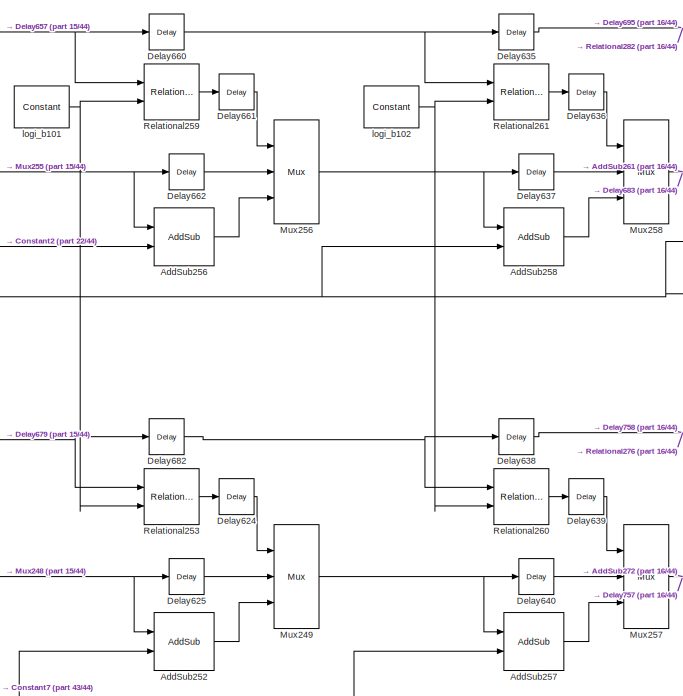
[diagram: Subsystemfull_compare - part 39/44, middle right region]
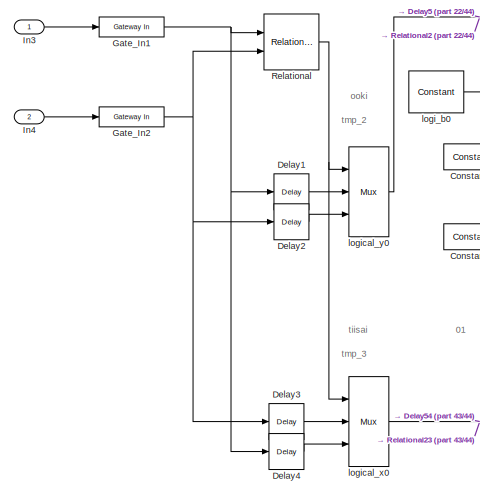
[diagram: Subsystemfull_compare - part 40/44, middle left region]
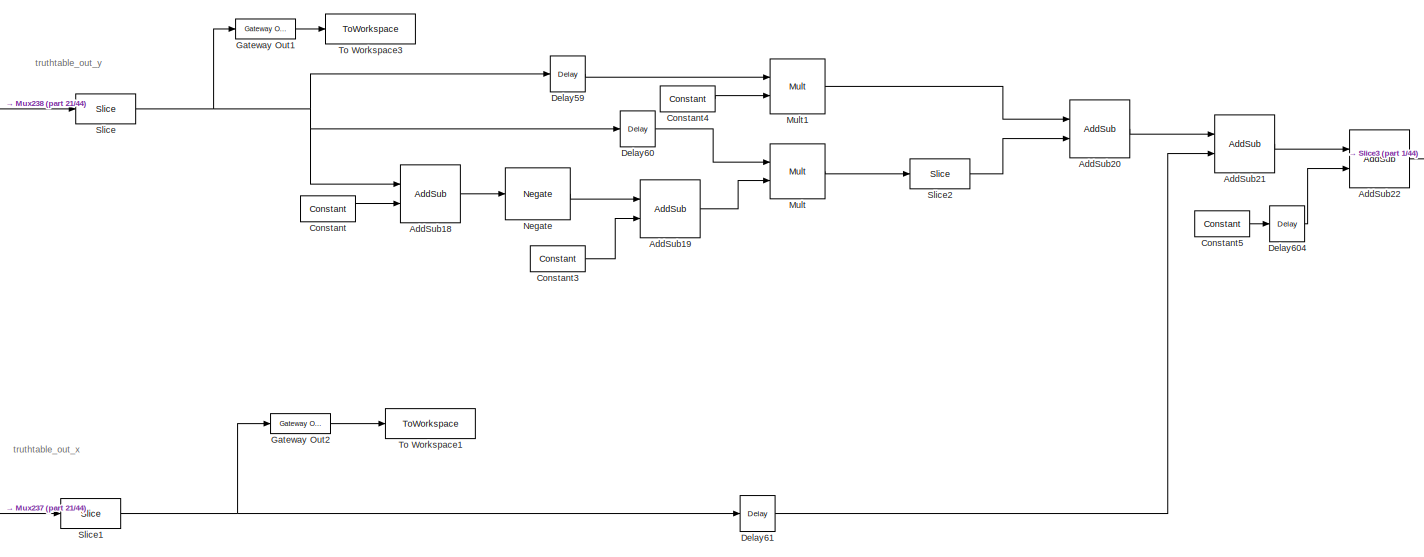
[diagram: Subsystemfull_compare - part 41/44, middle right region]
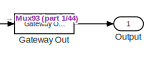
[diagram: Subsystemfull_compare - part 42/44, middle right region]
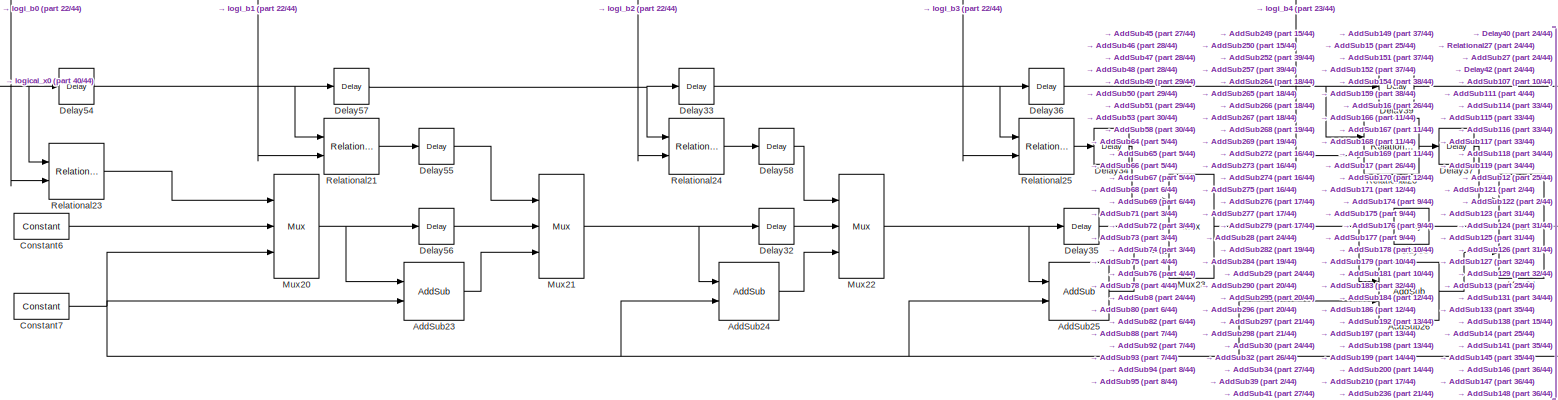
[diagram: Subsystemfull_compare - part 43/44, middle left region]
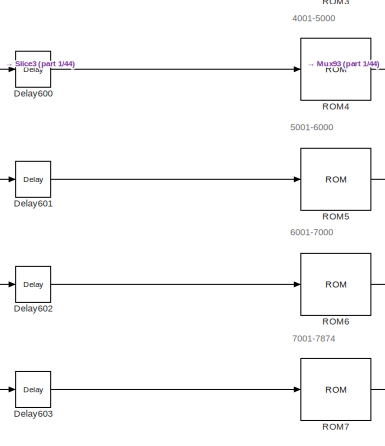
[diagram: Subsystemfull_compare - part 44/44, bottom right region]
BLOCK [SubSystem] Subsystemfull_compare
  Ports = [2, 1]
  RequestExecContextInheritance = off
BLOCK [Reference] Subsystemfull_compare/AddSub  REF=hdlBasic/AddSub
  Ports = [2, 1]
  SourceBlock = hdlBasic/AddSub
  SourceType = Adder/Subtracter Block
BLOCK [Reference] Subsystemfull_compare/AddSub1  REF=hdlBasic/AddSub
  Ports = [2, 1]
  SourceBlock = hdlBasic/AddSub
  SourceType = Adder/Subtracter Block
BLOCK [Reference] Subsystemfull_compare/AddSub10  REF=hdlBasic/AddSub
  Ports = [2, 1]
  SourceBlock = hdlBasic/AddSub
  SourceType = Adder/Subtracter Block
BLOCK [Reference] Subsystemfull_compare/AddSub100  REF=hdlBasic/AddSub
  Ports = [2, 1]
  SourceBlock = hdlBasic/AddSub
  SourceType = Adder/Subtracter Block
BLOCK [Reference] Subsystemfull_compare/AddSub101  REF=hdlBasic/AddSub
  Ports = [2, 1]
  SourceBlock = hdlBasic/AddSub
  SourceType = Adder/Subtracter Block
BLOCK [Reference] Subsystemfull_compare/AddSub102  REF=hdlBasic/AddSub
  Ports = [2, 1]
  SourceBlock = hdlBasic/AddSub
  SourceType = Adder/Subtracter Block
BLOCK [Reference] Subsystemfull_compare/AddSub103  REF=hdlBasic/AddSub
  Ports = [2, 1]
  SourceBlock = hdlBasic/AddSub
  SourceType = Adder/Subtracter Block
BLOCK [Reference] Subsystemfull_compare/AddSub104  REF=hdlBasic/AddSub
  Ports = [2, 1]
  SourceBlock = hdlBasic/AddSub
  SourceType = Adder/Subtracter Block
BLOCK [Reference] Subsystemfull_compare/AddSub105  REF=hdlBasic/AddSub
  Ports = [2, 1]
  SourceBlock = hdlBasic/AddSub
  SourceType = Adder/Subtracter Block
BLOCK [Reference] Subsystemfull_compare/AddSub106  REF=hdlBasic/AddSub
  Ports = [2, 1]
  SourceBlock = hdlBasic/AddSub
  SourceType = Adder/Subtracter Block
BLOCK [Reference] Subsystemfull_compare/AddSub107  REF=hdlBasic/AddSub
  Ports = [2, 1]
  SourceBlock = hdlBasic/AddSub
  SourceType = Adder/Subtracter Block
BLOCK [Reference] Subsystemfull_compare/AddSub108  REF=hdlBasic/AddSub
  Ports = [2, 1]
  SourceBlock = hdlBasic/AddSub
  SourceType = Adder/Subtracter Block
BLOCK [Reference] Subsystemfull_compare/AddSub109  REF=hdlBasic/AddSub
  Ports = [2, 1]
  SourceBlock = hdlBasic/AddSub
  SourceType = Adder/Subtracter Block
BLOCK [Reference] Subsystemfull_compare/AddSub11  REF=hdlBasic/AddSub
  Ports = [2, 1]
  SourceBlock = hdlBasic/AddSub
  SourceType = Adder/Subtracter Block
BLOCK [Reference] Subsystemfull_compare/AddSub110  REF=hdlBasic/AddSub
  Ports = [2, 1]
  SourceBlock = hdlBasic/AddSub
  SourceType = Adder/Subtracter Block
BLOCK [Reference] Subsystemfull_compare/AddSub111  REF=hdlBasic/AddSub
  Ports = [2, 1]
  SourceBlock = hdlBasic/AddSub
  SourceType = Adder/Subtracter Block
BLOCK [Reference] Subsystemfull_compare/AddSub112  REF=hdlBasic/AddSub
  Ports = [2, 1]
  SourceBlock = hdlBasic/AddSub
  SourceType = Adder/Subtracter Block
BLOCK [Reference] Subsystemfull_compare/AddSub113  REF=hdlBasic/AddSub
  Ports = [2, 1]
  SourceBlock = hdlBasic/AddSub
  SourceType = Adder/Subtracter Block
BLOCK [Reference] Subsystemfull_compare/AddSub114  REF=hdlBasic/AddSub
  Ports = [2, 1]
  SourceBlock = hdlBasic/AddSub
  SourceType = Adder/Subtracter Block
BLOCK [Reference] Subsystemfull_compare/AddSub115  REF=hdlBasic/AddSub
  Ports = [2, 1]
  SourceBlock = hdlBasic/AddSub
  SourceType = Adder/Subtracter Block
BLOCK [Reference] Subsystemfull_compare/AddSub116  REF=hdlBasic/AddSub
  Ports = [2, 1]
  SourceBlock = hdlBasic/AddSub
  SourceType = Adder/Subtracter Block
BLOCK [Reference] Subsystemfull_compare/AddSub117  REF=hdlBasic/AddSub
  Ports = [2, 1]
  SourceBlock = hdlBasic/AddSub
  SourceType = Adder/Subtracter Block
BLOCK [Reference] Subsystemfull_compare/AddSub118  REF=hdlBasic/AddSub
  Ports = [2, 1]
  SourceBlock = hdlBasic/AddSub
  SourceType = Adder/Subtracter Block
BLOCK [Reference] Subsystemfull_compare/AddSub119  REF=hdlBasic/AddSub
  Ports = [2, 1]
  SourceBlock = hdlBasic/AddSub
  SourceType = Adder/Subtracter Block
BLOCK [Reference] Subsystemfull_compare/AddSub12  REF=hdlBasic/AddSub
  Ports = [2, 1]
  SourceBlock = hdlBasic/AddSub
  SourceType = Adder/Subtracter Block
BLOCK [Reference] Subsystemfull_compare/AddSub120  REF=hdlBasic/AddSub
  Ports = [2, 1]
  SourceBlock = hdlBasic/AddSub
  SourceType = Adder/Subtracter Block
BLOCK [Reference] Subsystemfull_compare/AddSub121  REF=hdlBasic/AddSub
  Ports = [2, 1]
  SourceBlock = hdlBasic/AddSub
  SourceType = Adder/Subtracter Block
BLOCK [Reference] Subsystemfull_compare/AddSub122  REF=hdlBasic/AddSub
  Ports = [2, 1]
  SourceBlock = hdlBasic/AddSub
  SourceType = Adder/Subtracter Block
BLOCK [Reference] Subsystemfull_compare/AddSub123  REF=hdlBasic/AddSub
  Ports = [2, 1]
  SourceBlock = hdlBasic/AddSub
  SourceType = Adder/Subtracter Block
BLOCK [Reference] Subsystemfull_compare/AddSub124  REF=hdlBasic/AddSub
  Ports = [2, 1]
  SourceBlock = hdlBasic/AddSub
  SourceType = Adder/Subtracter Block
BLOCK [Reference] Subsystemfull_compare/AddSub125  REF=hdlBasic/AddSub
  Ports = [2, 1]
  SourceBlock = hdlBasic/AddSub
  SourceType = Adder/Subtracter Block
BLOCK [Reference] Subsystemfull_compare/AddSub126  REF=hdlBasic/AddSub
  Ports = [2, 1]
  SourceBlock = hdlBasic/AddSub
  SourceType = Adder/Subtracter Block
BLOCK [Reference] Subsystemfull_compare/AddSub127  REF=hdlBasic/AddSub
  Ports = [2, 1]
  SourceBlock = hdlBasic/AddSub
  SourceType = Adder/Subtracter Block
BLOCK [Reference] Subsystemfull_compare/AddSub128  REF=hdlBasic/AddSub
  Ports = [2, 1]
  SourceBlock = hdlBasic/AddSub
  SourceType = Adder/Subtracter Block
BLOCK [Reference] Subsystemfull_compare/AddSub129  REF=hdlBasic/AddSub
  Ports = [2, 1]
  SourceBlock = hdlBasic/AddSub
  SourceType = Adder/Subtracter Block
BLOCK [Reference] Subsystemfull_compare/AddSub13  REF=hdlBasic/AddSub
  Ports = [2, 1]
  SourceBlock = hdlBasic/AddSub
  SourceType = Adder/Subtracter Block
BLOCK [Reference] Subsystemfull_compare/AddSub130  REF=hdlBasic/AddSub
  Ports = [2, 1]
  SourceBlock = hdlBasic/AddSub
  SourceType = Adder/Subtracter Block
BLOCK [Reference] Subsystemfull_compare/AddSub131  REF=hdlBasic/AddSub
  Ports = [2, 1]
  SourceBlock = hdlBasic/AddSub
  SourceType = Adder/Subtracter Block
BLOCK [Reference] Subsystemfull_compare/AddSub132  REF=hdlBasic/AddSub
  Ports = [2, 1]
  SourceBlock = hdlBasic/AddSub
  SourceType = Adder/Subtracter Block
BLOCK [Reference] Subsystemfull_compare/AddSub133  REF=hdlBasic/AddSub
  Ports = [2, 1]
  SourceBlock = hdlBasic/AddSub
  SourceType = Adder/Subtracter Block
BLOCK [Reference] Subsystemfull_compare/AddSub134  REF=hdlBasic/AddSub
  Ports = [2, 1]
  SourceBlock = hdlBasic/AddSub
  SourceType = Adder/Subtracter Block
BLOCK [Reference] Subsystemfull_compare/AddSub135  REF=hdlBasic/AddSub
  Ports = [2, 1]
  SourceBlock = hdlBasic/AddSub
  SourceType = Adder/Subtracter Block
BLOCK [Reference] Subsystemfull_compare/AddSub136  REF=hdlBasic/AddSub
  Ports = [2, 1]
  SourceBlock = hdlBasic/AddSub
  SourceType = Adder/Subtracter Block
BLOCK [Reference] Subsystemfull_compare/AddSub137  REF=hdlBasic/AddSub
  Ports = [2, 1]
  SourceBlock = hdlBasic/AddSub
  SourceType = Adder/Subtracter Block
BLOCK [Reference] Subsystemfull_compare/AddSub138  REF=hdlBasic/AddSub
  Ports = [2, 1]
  SourceBlock = hdlBasic/AddSub
  SourceType = Adder/Subtracter Block
BLOCK [Reference] Subsystemfull_compare/AddSub139  REF=hdlBasic/AddSub
  Ports = [2, 1]
  SourceBlock = hdlBasic/AddSub
  SourceType = Adder/Subtracter Block
BLOCK [Reference] Subsystemfull_compare/AddSub14  REF=hdlBasic/AddSub
  Ports = [2, 1]
  SourceBlock = hdlBasic/AddSub
  SourceType = Adder/Subtracter Block
BLOCK [Reference] Subsystemfull_compare/AddSub140  REF=hdlBasic/AddSub
  Ports = [2, 1]
  SourceBlock = hdlBasic/AddSub
  SourceType = Adder/Subtracter Block
BLOCK [Reference] Subsystemfull_compare/AddSub141  REF=hdlBasic/AddSub
  Ports = [2, 1]
  SourceBlock = hdlBasic/AddSub
  SourceType = Adder/Subtracter Block
BLOCK [Reference] Subsystemfull_compare/AddSub142  REF=hdlBasic/AddSub
  Ports = [2, 1]
  SourceBlock = hdlBasic/AddSub
  SourceType = Adder/Subtracter Block
BLOCK [Reference] Subsystemfull_compare/AddSub143  REF=hdlBasic/AddSub
  Ports = [2, 1]
  SourceBlock = hdlBasic/AddSub
  SourceType = Adder/Subtracter Block
BLOCK [Reference] Subsystemfull_compare/AddSub144  REF=hdlBasic/AddSub
  Ports = [2, 1]
  SourceBlock = hdlBasic/AddSub
  SourceType = Adder/Subtracter Block
BLOCK [Reference] Subsystemfull_compare/AddSub145  REF=hdlBasic/AddSub
  Ports = [2, 1]
  SourceBlock = hdlBasic/AddSub
  SourceType = Adder/Subtracter Block
BLOCK [Reference] Subsystemfull_compare/AddSub146  REF=hdlBasic/AddSub
  Ports = [2, 1]
  SourceBlock = hdlBasic/AddSub
  SourceType = Adder/Subtracter Block
BLOCK [Reference] Subsystemfull_compare/AddSub147  REF=hdlBasic/AddSub
  Ports = [2, 1]
  SourceBlock = hdlBasic/AddSub
  SourceType = Adder/Subtracter Block
BLOCK [Reference] Subsystemfull_compare/AddSub148  REF=hdlBasic/AddSub
  Ports = [2, 1]
  SourceBlock = hdlBasic/AddSub
  SourceType = Adder/Subtracter Block
BLOCK [Reference] Subsystemfull_compare/AddSub149  REF=hdlBasic/AddSub
  Ports = [2, 1]
  SourceBlock = hdlBasic/AddSub
  SourceType = Adder/Subtracter Block
BLOCK [Reference] Subsystemfull_compare/AddSub15  REF=hdlBasic/AddSub
  Ports = [2, 1]
  SourceBlock = hdlBasic/AddSub
  SourceType = Adder/Subtracter Block
BLOCK [Reference] Subsystemfull_compare/AddSub150  REF=hdlBasic/AddSub
  Ports = [2, 1]
  SourceBlock = hdlBasic/AddSub
  SourceType = Adder/Subtracter Block
BLOCK [Reference] Subsystemfull_compare/AddSub151  REF=hdlBasic/AddSub
  Ports = [2, 1]
  SourceBlock = hdlBasic/AddSub
  SourceType = Adder/Subtracter Block
BLOCK [Reference] Subsystemfull_compare/AddSub152  REF=hdlBasic/AddSub
  Ports = [2, 1]
  SourceBlock = hdlBasic/AddSub
  SourceType = Adder/Subtracter Block
BLOCK [Reference] Subsystemfull_compare/AddSub153  REF=hdlBasic/AddSub
  Ports = [2, 1]
  SourceBlock = hdlBasic/AddSub
  SourceType = Adder/Subtracter Block
BLOCK [Reference] Subsystemfull_compare/AddSub154  REF=hdlBasic/AddSub
  Ports = [2, 1]
  SourceBlock = hdlBasic/AddSub
  SourceType = Adder/Subtracter Block
BLOCK [Reference] Subsystemfull_compare/AddSub155  REF=hdlBasic/AddSub
  Ports = [2, 1]
  SourceBlock = hdlBasic/AddSub
  SourceType = Adder/Subtracter Block
BLOCK [Reference] Subsystemfull_compare/AddSub156  REF=hdlBasic/AddSub
  Ports = [2, 1]
  SourceBlock = hdlBasic/AddSub
  SourceType = Adder/Subtracter Block
BLOCK [Reference] Subsystemfull_compare/AddSub157  REF=hdlBasic/AddSub
  Ports = [2, 1]
  SourceBlock = hdlBasic/AddSub
  SourceType = Adder/Subtracter Block
BLOCK [Reference] Subsystemfull_compare/AddSub158  REF=hdlBasic/AddSub
  Ports = [2, 1]
  SourceBlock = hdlBasic/AddSub
  SourceType = Adder/Subtracter Block
BLOCK [Reference] Subsystemfull_compare/AddSub159  REF=hdlBasic/AddSub
  Ports = [2, 1]
  SourceBlock = hdlBasic/AddSub
  SourceType = Adder/Subtracter Block
BLOCK [Reference] Subsystemfull_compare/AddSub16  REF=hdlBasic/AddSub
  Ports = [2, 1]
  SourceBlock = hdlBasic/AddSub
  SourceType = Adder/Subtracter Block
BLOCK [Reference] Subsystemfull_compare/AddSub160  REF=hdlBasic/AddSub
  Ports = [2, 1]
  SourceBlock = hdlBasic/AddSub
  SourceType = Adder/Subtracter Block
BLOCK [Reference] Subsystemfull_compare/AddSub161  REF=hdlBasic/AddSub
  Ports = [2, 1]
  SourceBlock = hdlBasic/AddSub
  SourceType = Adder/Subtracter Block
BLOCK [Reference] Subsystemfull_compare/AddSub162  REF=hdlBasic/AddSub
  Ports = [2, 1]
  SourceBlock = hdlBasic/AddSub
  SourceType = Adder/Subtracter Block
BLOCK [Reference] Subsystemfull_compare/AddSub163  REF=hdlBasic/AddSub
  Ports = [2, 1]
  SourceBlock = hdlBasic/AddSub
  SourceType = Adder/Subtracter Block
BLOCK [Reference] Subsystemfull_compare/AddSub164  REF=hdlBasic/AddSub
  Ports = [2, 1]
  SourceBlock = hdlBasic/AddSub
  SourceType = Adder/Subtracter Block
BLOCK [Reference] Subsystemfull_compare/AddSub165  REF=hdlBasic/AddSub
  Ports = [2, 1]
  SourceBlock = hdlBasic/AddSub
  SourceType = Adder/Subtracter Block
BLOCK [Reference] Subsystemfull_compare/AddSub166  REF=hdlBasic/AddSub
  Ports = [2, 1]
  SourceBlock = hdlBasic/AddSub
  SourceType = Adder/Subtracter Block
BLOCK [Reference] Subsystemfull_compare/AddSub167  REF=hdlBasic/AddSub
  Ports = [2, 1]
  SourceBlock = hdlBasic/AddSub
  SourceType = Adder/Subtracter Block
BLOCK [Reference] Subsystemfull_compare/AddSub168  REF=hdlBasic/AddSub
  Ports = [2, 1]
  SourceBlock = hdlBasic/AddSub
  SourceType = Adder/Subtracter Block
BLOCK [Reference] Subsystemfull_compare/AddSub169  REF=hdlBasic/AddSub
  Ports = [2, 1]
  SourceBlock = hdlBasic/AddSub
  SourceType = Adder/Subtracter Block
BLOCK [Reference] Subsystemfull_compare/AddSub17  REF=hdlBasic/AddSub
  Ports = [2, 1]
  SourceBlock = hdlBasic/AddSub
  SourceType = Adder/Subtracter Block
BLOCK [Reference] Subsystemfull_compare/AddSub170  REF=hdlBasic/AddSub
  Ports = [2, 1]
  SourceBlock = hdlBasic/AddSub
  SourceType = Adder/Subtracter Block
BLOCK [Reference] Subsystemfull_compare/AddSub171  REF=hdlBasic/AddSub
  Ports = [2, 1]
  SourceBlock = hdlBasic/AddSub
  SourceType = Adder/Subtracter Block
BLOCK [Reference] Subsystemfull_compare/AddSub172  REF=hdlBasic/AddSub
  Ports = [2, 1]
  SourceBlock = hdlBasic/AddSub
  SourceType = Adder/Subtracter Block
BLOCK [Reference] Subsystemfull_compare/AddSub173  REF=hdlBasic/AddSub
  Ports = [2, 1]
  SourceBlock = hdlBasic/AddSub
  SourceType = Adder/Subtracter Block
BLOCK [Reference] Subsystemfull_compare/AddSub174  REF=hdlBasic/AddSub
  Ports = [2, 1]
  SourceBlock = hdlBasic/AddSub
  SourceType = Adder/Subtracter Block
BLOCK [Reference] Subsystemfull_compare/AddSub175  REF=hdlBasic/AddSub
  Ports = [2, 1]
  SourceBlock = hdlBasic/AddSub
  SourceType = Adder/Subtracter Block
BLOCK [Reference] Subsystemfull_compare/AddSub176  REF=hdlBasic/AddSub
  Ports = [2, 1]
  SourceBlock = hdlBasic/AddSub
  SourceType = Adder/Subtracter Block
BLOCK [Reference] Subsystemfull_compare/AddSub177  REF=hdlBasic/AddSub
  Ports = [2, 1]
  SourceBlock = hdlBasic/AddSub
  SourceType = Adder/Subtracter Block
BLOCK [Reference] Subsystemfull_compare/AddSub178  REF=hdlBasic/AddSub
  Ports = [2, 1]
  SourceBlock = hdlBasic/AddSub
  SourceType = Adder/Subtracter Block
BLOCK [Reference] Subsystemfull_compare/AddSub179  REF=hdlBasic/AddSub
  Ports = [2, 1]
  SourceBlock = hdlBasic/AddSub
  SourceType = Adder/Subtracter Block
BLOCK [Reference] Subsystemfull_compare/AddSub18  REF=hdlBasic/AddSub
  Ports = [2, 1]
  SourceBlock = hdlBasic/AddSub
  SourceType = Adder/Subtracter Block
BLOCK [Reference] Subsystemfull_compare/AddSub180  REF=hdlBasic/AddSub
  Ports = [2, 1]
  SourceBlock = hdlBasic/AddSub
  SourceType = Adder/Subtracter Block
BLOCK [Reference] Subsystemfull_compare/AddSub181  REF=hdlBasic/AddSub
  Ports = [2, 1]
  SourceBlock = hdlBasic/AddSub
  SourceType = Adder/Subtracter Block
BLOCK [Reference] Subsystemfull_compare/AddSub182  REF=hdlBasic/AddSub
  Ports = [2, 1]
  SourceBlock = hdlBasic/AddSub
  SourceType = Adder/Subtracter Block
BLOCK [Reference] Subsystemfull_compare/AddSub183  REF=hdlBasic/AddSub
  Ports = [2, 1]
  SourceBlock = hdlBasic/AddSub
  SourceType = Adder/Subtracter Block
BLOCK [Reference] Subsystemfull_compare/AddSub184  REF=hdlBasic/AddSub
  Ports = [2, 1]
  SourceBlock = hdlBasic/AddSub
  SourceType = Adder/Subtracter Block
BLOCK [Reference] Subsystemfull_compare/AddSub185  REF=hdlBasic/AddSub
  Ports = [2, 1]
  SourceBlock = hdlBasic/AddSub
  SourceType = Adder/Subtracter Block
BLOCK [Reference] Subsystemfull_compare/AddSub186  REF=hdlBasic/AddSub
  Ports = [2, 1]
  SourceBlock = hdlBasic/AddSub
  SourceType = Adder/Subtracter Block
BLOCK [Reference] Subsystemfull_compare/AddSub187  REF=hdlBasic/AddSub
  Ports = [2, 1]
  SourceBlock = hdlBasic/AddSub
  SourceType = Adder/Subtracter Block
BLOCK [Reference] Subsystemfull_compare/AddSub188  REF=hdlBasic/AddSub
  Ports = [2, 1]
  SourceBlock = hdlBasic/AddSub
  SourceType = Adder/Subtracter Block
BLOCK [Reference] Subsystemfull_compare/AddSub189  REF=hdlBasic/AddSub
  Ports = [2, 1]
  SourceBlock = hdlBasic/AddSub
  SourceType = Adder/Subtracter Block
BLOCK [Reference] Subsystemfull_compare/AddSub19  REF=hdlBasic/AddSub
  Ports = [2, 1]
  SourceBlock = hdlBasic/AddSub
  SourceType = Adder/Subtracter Block
BLOCK [Reference] Subsystemfull_compare/AddSub190  REF=hdlBasic/AddSub
  Ports = [2, 1]
  SourceBlock = hdlBasic/AddSub
  SourceType = Adder/Subtracter Block
BLOCK [Reference] Subsystemfull_compare/AddSub191  REF=hdlBasic/AddSub
  Ports = [2, 1]
  SourceBlock = hdlBasic/AddSub
  SourceType = Adder/Subtracter Block
BLOCK [Reference] Subsystemfull_compare/AddSub192  REF=hdlBasic/AddSub
  Ports = [2, 1]
  SourceBlock = hdlBasic/AddSub
  SourceType = Adder/Subtracter Block
BLOCK [Reference] Subsystemfull_compare/AddSub193  REF=hdlBasic/AddSub
  Ports = [2, 1]
  SourceBlock = hdlBasic/AddSub
  SourceType = Adder/Subtracter Block
BLOCK [Reference] Subsystemfull_compare/AddSub194  REF=hdlBasic/AddSub
  Ports = [2, 1]
  SourceBlock = hdlBasic/AddSub
  SourceType = Adder/Subtracter Block
BLOCK [Reference] Subsystemfull_compare/AddSub195  REF=hdlBasic/AddSub
  Ports = [2, 1]
  SourceBlock = hdlBasic/AddSub
  SourceType = Adder/Subtracter Block
BLOCK [Reference] Subsystemfull_compare/AddSub196  REF=hdlBasic/AddSub
  Ports = [2, 1]
  SourceBlock = hdlBasic/AddSub
  SourceType = Adder/Subtracter Block
BLOCK [Reference] Subsystemfull_compare/AddSub197  REF=hdlBasic/AddSub
  Ports = [2, 1]
  SourceBlock = hdlBasic/AddSub
  SourceType = Adder/Subtracter Block
BLOCK [Reference] Subsystemfull_compare/AddSub198  REF=hdlBasic/AddSub
  Ports = [2, 1]
  SourceBlock = hdlBasic/AddSub
  SourceType = Adder/Subtracter Block
BLOCK [Reference] Subsystemfull_compare/AddSub199  REF=hdlBasic/AddSub
  Ports = [2, 1]
  SourceBlock = hdlBasic/AddSub
  SourceType = Adder/Subtracter Block
BLOCK [Reference] Subsystemfull_compare/AddSub2  REF=hdlBasic/AddSub
  Ports = [2, 1]
  SourceBlock = hdlBasic/AddSub
  SourceType = Adder/Subtracter Block
BLOCK [Reference] Subsystemfull_compare/AddSub20  REF=hdlBasic/AddSub
  Ports = [2, 1]
  SourceBlock = hdlBasic/AddSub
  SourceType = Adder/Subtracter Block
BLOCK [Reference] Subsystemfull_compare/AddSub200  REF=hdlBasic/AddSub
  Ports = [2, 1]
  SourceBlock = hdlBasic/AddSub
  SourceType = Adder/Subtracter Block
BLOCK [Reference] Subsystemfull_compare/AddSub201  REF=hdlBasic/AddSub
  Ports = [2, 1]
  SourceBlock = hdlBasic/AddSub
  SourceType = Adder/Subtracter Block
BLOCK [Reference] Subsystemfull_compare/AddSub202  REF=hdlBasic/AddSub
  Ports = [2, 1]
  SourceBlock = hdlBasic/AddSub
  SourceType = Adder/Subtracter Block
BLOCK [Reference] Subsystemfull_compare/AddSub203  REF=hdlBasic/AddSub
  Ports = [2, 1]
  SourceBlock = hdlBasic/AddSub
  SourceType = Adder/Subtracter Block
BLOCK [Reference] Subsystemfull_compare/AddSub204  REF=hdlBasic/AddSub
  Ports = [2, 1]
  SourceBlock = hdlBasic/AddSub
  SourceType = Adder/Subtracter Block
BLOCK [Reference] Subsystemfull_compare/AddSub205  REF=hdlBasic/AddSub
  Ports = [2, 1]
  SourceBlock = hdlBasic/AddSub
  SourceType = Adder/Subtracter Block
BLOCK [Reference] Subsystemfull_compare/AddSub206  REF=hdlBasic/AddSub
  Ports = [2, 1]
  SourceBlock = hdlBasic/AddSub
  SourceType = Adder/Subtracter Block
BLOCK [Reference] Subsystemfull_compare/AddSub207  REF=hdlBasic/AddSub
  Ports = [2, 1]
  SourceBlock = hdlBasic/AddSub
  SourceType = Adder/Subtracter Block
BLOCK [Reference] Subsystemfull_compare/AddSub208  REF=hdlBasic/AddSub
  Ports = [2, 1]
  SourceBlock = hdlBasic/AddSub
  SourceType = Adder/Subtracter Block
BLOCK [Reference] Subsystemfull_compare/AddSub209  REF=hdlBasic/AddSub
  Ports = [2, 1]
  SourceBlock = hdlBasic/AddSub
  SourceType = Adder/Subtracter Block
BLOCK [Reference] Subsystemfull_compare/AddSub21  REF=hdlBasic/AddSub
  Ports = [2, 1]
  SourceBlock = hdlBasic/AddSub
  SourceType = Adder/Subtracter Block
BLOCK [Reference] Subsystemfull_compare/AddSub210  REF=hdlBasic/AddSub
  Ports = [2, 1]
  SourceBlock = hdlBasic/AddSub
  SourceType = Adder/Subtracter Block
BLOCK [Reference] Subsystemfull_compare/AddSub211  REF=hdlBasic/AddSub
  Ports = [2, 1]
  SourceBlock = hdlBasic/AddSub
  SourceType = Adder/Subtracter Block
BLOCK [Reference] Subsystemfull_compare/AddSub212  REF=hdlBasic/AddSub
  Ports = [2, 1]
  SourceBlock = hdlBasic/AddSub
  SourceType = Adder/Subtracter Block
BLOCK [Reference] Subsystemfull_compare/AddSub22  REF=hdlBasic/AddSub
  Ports = [2, 1]
  SourceBlock = hdlBasic/AddSub
  SourceType = Adder/Subtracter Block
BLOCK [Reference] Subsystemfull_compare/AddSub23  REF=hdlBasic/AddSub
  Ports = [2, 1]
  SourceBlock = hdlBasic/AddSub
  SourceType = Adder/Subtracter Block
BLOCK [Reference] Subsystemfull_compare/AddSub236  REF=hdlBasic/AddSub
  Ports = [2, 1]
  SourceBlock = hdlBasic/AddSub
  SourceType = Adder/Subtracter Block
BLOCK [Reference] Subsystemfull_compare/AddSub238  REF=hdlBasic/AddSub
  Ports = [2, 1]
  SourceBlock = hdlBasic/AddSub
  SourceType = Adder/Subtracter Block
BLOCK [Reference] Subsystemfull_compare/AddSub24  REF=hdlBasic/AddSub
  Ports = [2, 1]
  SourceBlock = hdlBasic/AddSub
  SourceType = Adder/Subtracter Block
BLOCK [Reference] Subsystemfull_compare/AddSub249  REF=hdlBasic/AddSub
  Ports = [2, 1]
  SourceBlock = hdlBasic/AddSub
  SourceType = Adder/Subtracter Block
BLOCK [Reference] Subsystemfull_compare/AddSub25  REF=hdlBasic/AddSub
  Ports = [2, 1]
  SourceBlock = hdlBasic/AddSub
  SourceType = Adder/Subtracter Block
BLOCK [Reference] Subsystemfull_compare/AddSub250  REF=hdlBasic/AddSub
  Ports = [2, 1]
  SourceBlock = hdlBasic/AddSub
  SourceType = Adder/Subtracter Block
BLOCK [Reference] Subsystemfull_compare/AddSub252  REF=hdlBasic/AddSub
  Ports = [2, 1]
  SourceBlock = hdlBasic/AddSub
  SourceType = Adder/Subtracter Block
BLOCK [Reference] Subsystemfull_compare/AddSub254  REF=hdlBasic/AddSub
  Ports = [2, 1]
  SourceBlock = hdlBasic/AddSub
  SourceType = Adder/Subtracter Block
BLOCK [Reference] Subsystemfull_compare/AddSub255  REF=hdlBasic/AddSub
  Ports = [2, 1]
  SourceBlock = hdlBasic/AddSub
  SourceType = Adder/Subtracter Block
BLOCK [Reference] Subsystemfull_compare/AddSub256  REF=hdlBasic/AddSub
  Ports = [2, 1]
  SourceBlock = hdlBasic/AddSub
  SourceType = Adder/Subtracter Block
BLOCK [Reference] Subsystemfull_compare/AddSub257  REF=hdlBasic/AddSub
  Ports = [2, 1]
  SourceBlock = hdlBasic/AddSub
  SourceType = Adder/Subtracter Block
BLOCK [Reference] Subsystemfull_compare/AddSub258  REF=hdlBasic/AddSub
  Ports = [2, 1]
  SourceBlock = hdlBasic/AddSub
  SourceType = Adder/Subtracter Block
BLOCK [Reference] Subsystemfull_compare/AddSub26  REF=hdlBasic/AddSub
  Ports = [2, 1]
  SourceBlock = hdlBasic/AddSub
  SourceType = Adder/Subtracter Block
BLOCK [Reference] Subsystemfull_compare/AddSub261  REF=hdlBasic/AddSub
  Ports = [2, 1]
  SourceBlock = hdlBasic/AddSub
  SourceType = Adder/Subtracter Block
BLOCK [Reference] Subsystemfull_compare/AddSub262  REF=hdlBasic/AddSub
  Ports = [2, 1]
  SourceBlock = hdlBasic/AddSub
  SourceType = Adder/Subtracter Block
BLOCK [Reference] Subsystemfull_compare/AddSub263  REF=hdlBasic/AddSub
  Ports = [2, 1]
  SourceBlock = hdlBasic/AddSub
  SourceType = Adder/Subtracter Block
BLOCK [Reference] Subsystemfull_compare/AddSub264  REF=hdlBasic/AddSub
  Ports = [2, 1]
  SourceBlock = hdlBasic/AddSub
  SourceType = Adder/Subtracter Block
BLOCK [Reference] Subsystemfull_compare/AddSub265  REF=hdlBasic/AddSub
  Ports = [2, 1]
  SourceBlock = hdlBasic/AddSub
  SourceType = Adder/Subtracter Block
BLOCK [Reference] Subsystemfull_compare/AddSub266  REF=hdlBasic/AddSub
  Ports = [2, 1]
  SourceBlock = hdlBasic/AddSub
  SourceType = Adder/Subtracter Block
BLOCK [Reference] Subsystemfull_compare/AddSub267  REF=hdlBasic/AddSub
  Ports = [2, 1]
  SourceBlock = hdlBasic/AddSub
  SourceType = Adder/Subtracter Block
BLOCK [Reference] Subsystemfull_compare/AddSub268  REF=hdlBasic/AddSub
  Ports = [2, 1]
  SourceBlock = hdlBasic/AddSub
  SourceType = Adder/Subtracter Block
BLOCK [Reference] Subsystemfull_compare/AddSub269  REF=hdlBasic/AddSub
  Ports = [2, 1]
  SourceBlock = hdlBasic/AddSub
  SourceType = Adder/Subtracter Block
BLOCK [Reference] Subsystemfull_compare/AddSub27  REF=hdlBasic/AddSub
  Ports = [2, 1]
  SourceBlock = hdlBasic/AddSub
  SourceType = Adder/Subtracter Block
BLOCK [Reference] Subsystemfull_compare/AddSub271  REF=hdlBasic/AddSub
  Ports = [2, 1]
  SourceBlock = hdlBasic/AddSub
  SourceType = Adder/Subtracter Block
BLOCK [Reference] Subsystemfull_compare/AddSub272  REF=hdlBasic/AddSub
  Ports = [2, 1]
  SourceBlock = hdlBasic/AddSub
  SourceType = Adder/Subtracter Block
BLOCK [Reference] Subsystemfull_compare/AddSub273  REF=hdlBasic/AddSub
  Ports = [2, 1]
  SourceBlock = hdlBasic/AddSub
  SourceType = Adder/Subtracter Block
BLOCK [Reference] Subsystemfull_compare/AddSub274  REF=hdlBasic/AddSub
  Ports = [2, 1]
  SourceBlock = hdlBasic/AddSub
  SourceType = Adder/Subtracter Block
BLOCK [Reference] Subsystemfull_compare/AddSub275  REF=hdlBasic/AddSub
  Ports = [2, 1]
  SourceBlock = hdlBasic/AddSub
  SourceType = Adder/Subtracter Block
BLOCK [Reference] Subsystemfull_compare/AddSub276  REF=hdlBasic/AddSub
  Ports = [2, 1]
  SourceBlock = hdlBasic/AddSub
  SourceType = Adder/Subtracter Block
BLOCK [Reference] Subsystemfull_compare/AddSub277  REF=hdlBasic/AddSub
  Ports = [2, 1]
  SourceBlock = hdlBasic/AddSub
  SourceType = Adder/Subtracter Block
BLOCK [Reference] Subsystemfull_compare/AddSub278  REF=hdlBasic/AddSub
  Ports = [2, 1]
  SourceBlock = hdlBasic/AddSub
  SourceType = Adder/Subtracter Block
BLOCK [Reference] Subsystemfull_compare/AddSub279  REF=hdlBasic/AddSub
  Ports = [2, 1]
  SourceBlock = hdlBasic/AddSub
  SourceType = Adder/Subtracter Block
BLOCK [Reference] Subsystemfull_compare/AddSub28  REF=hdlBasic/AddSub
  Ports = [2, 1]
  SourceBlock = hdlBasic/AddSub
  SourceType = Adder/Subtracter Block
BLOCK [Reference] Subsystemfull_compare/AddSub280  REF=hdlBasic/AddSub
  Ports = [2, 1]
  SourceBlock = hdlBasic/AddSub
  SourceType = Adder/Subtracter Block
BLOCK [Reference] Subsystemfull_compare/AddSub282  REF=hdlBasic/AddSub
  Ports = [2, 1]
  SourceBlock = hdlBasic/AddSub
  SourceType = Adder/Subtracter Block
BLOCK [Reference] Subsystemfull_compare/AddSub283  REF=hdlBasic/AddSub
  Ports = [2, 1]
  SourceBlock = hdlBasic/AddSub
  SourceType = Adder/Subtracter Block
BLOCK [Reference] Subsystemfull_compare/AddSub284  REF=hdlBasic/AddSub
  Ports = [2, 1]
  SourceBlock = hdlBasic/AddSub
  SourceType = Adder/Subtracter Block
BLOCK [Reference] Subsystemfull_compare/AddSub285  REF=hdlBasic/AddSub
  Ports = [2, 1]
  SourceBlock = hdlBasic/AddSub
  SourceType = Adder/Subtracter Block
BLOCK [Reference] Subsystemfull_compare/AddSub286  REF=hdlBasic/AddSub
  Ports = [2, 1]
  SourceBlock = hdlBasic/AddSub
  SourceType = Adder/Subtracter Block
BLOCK [Reference] Subsystemfull_compare/AddSub287  REF=hdlBasic/AddSub
  Ports = [2, 1]
  SourceBlock = hdlBasic/AddSub
  SourceType = Adder/Subtracter Block
BLOCK [Reference] Subsystemfull_compare/AddSub288  REF=hdlBasic/AddSub
  Ports = [2, 1]
  SourceBlock = hdlBasic/AddSub
  SourceType = Adder/Subtracter Block
BLOCK [Reference] Subsystemfull_compare/AddSub289  REF=hdlBasic/AddSub
  Ports = [2, 1]
  SourceBlock = hdlBasic/AddSub
  SourceType = Adder/Subtracter Block
BLOCK [Reference] Subsystemfull_compare/AddSub29  REF=hdlBasic/AddSub
  Ports = [2, 1]
  SourceBlock = hdlBasic/AddSub
  SourceType = Adder/Subtracter Block
BLOCK [Reference] Subsystemfull_compare/AddSub290  REF=hdlBasic/AddSub
  Ports = [2, 1]
  SourceBlock = hdlBasic/AddSub
  SourceType = Adder/Subtracter Block
BLOCK [Reference] Subsystemfull_compare/AddSub291  REF=hdlBasic/AddSub
  Ports = [2, 1]
  SourceBlock = hdlBasic/AddSub
  SourceType = Adder/Subtracter Block
BLOCK [Reference] Subsystemfull_compare/AddSub293  REF=hdlBasic/AddSub
  Ports = [2, 1]
  SourceBlock = hdlBasic/AddSub
  SourceType = Adder/Subtracter Block
BLOCK [Reference] Subsystemfull_compare/AddSub294  REF=hdlBasic/AddSub
  Ports = [2, 1]
  SourceBlock = hdlBasic/AddSub
  SourceType = Adder/Subtracter Block
BLOCK [Reference] Subsystemfull_compare/AddSub295  REF=hdlBasic/AddSub
  Ports = [2, 1]
  SourceBlock = hdlBasic/AddSub
  SourceType = Adder/Subtracter Block
BLOCK [Reference] Subsystemfull_compare/AddSub296  REF=hdlBasic/AddSub
  Ports = [2, 1]
  SourceBlock = hdlBasic/AddSub
  SourceType = Adder/Subtracter Block
BLOCK [Reference] Subsystemfull_compare/AddSub297  REF=hdlBasic/AddSub
  Ports = [2, 1]
  SourceBlock = hdlBasic/AddSub
  SourceType = Adder/Subtracter Block
BLOCK [Reference] Subsystemfull_compare/AddSub298  REF=hdlBasic/AddSub
  Ports = [2, 1]
  SourceBlock = hdlBasic/AddSub
  SourceType = Adder/Subtracter Block
BLOCK [Reference] Subsystemfull_compare/AddSub299  REF=hdlBasic/AddSub
  Ports = [2, 1]
  SourceBlock = hdlBasic/AddSub
  SourceType = Adder/Subtracter Block
BLOCK [Reference] Subsystemfull_compare/AddSub3  REF=hdlBasic/AddSub
  Ports = [2, 1]
  SourceBlock = hdlBasic/AddSub
  SourceType = Adder/Subtracter Block
BLOCK [Reference] Subsystemfull_compare/AddSub30  REF=hdlBasic/AddSub
  Ports = [2, 1]
  SourceBlock = hdlBasic/AddSub
  SourceType = Adder/Subtracter Block
BLOCK [Reference] Subsystemfull_compare/AddSub31  REF=hdlBasic/AddSub
  Ports = [2, 1]
  SourceBlock = hdlBasic/AddSub
  SourceType = Adder/Subtracter Block
BLOCK [Reference] Subsystemfull_compare/AddSub32  REF=hdlBasic/AddSub
  Ports = [2, 1]
  SourceBlock = hdlBasic/AddSub
  SourceType = Adder/Subtracter Block
BLOCK [Reference] Subsystemfull_compare/AddSub33  REF=hdlBasic/AddSub
  Ports = [2, 1]
  SourceBlock = hdlBasic/AddSub
  SourceType = Adder/Subtracter Block
BLOCK [Reference] Subsystemfull_compare/AddSub34  REF=hdlBasic/AddSub
  Ports = [2, 1]
  SourceBlock = hdlBasic/AddSub
  SourceType = Adder/Subtracter Block
BLOCK [Reference] Subsystemfull_compare/AddSub35  REF=hdlBasic/AddSub
  Ports = [2, 1]
  SourceBlock = hdlBasic/AddSub
  SourceType = Adder/Subtracter Block
BLOCK [Reference] Subsystemfull_compare/AddSub36  REF=hdlBasic/AddSub
  Ports = [2, 1]
  SourceBlock = hdlBasic/AddSub
  SourceType = Adder/Subtracter Block
BLOCK [Reference] Subsystemfull_compare/AddSub37  REF=hdlBasic/AddSub
  Ports = [2, 1]
  SourceBlock = hdlBasic/AddSub
  SourceType = Adder/Subtracter Block
BLOCK [Reference] Subsystemfull_compare/AddSub38  REF=hdlBasic/AddSub
  Ports = [2, 1]
  SourceBlock = hdlBasic/AddSub
  SourceType = Adder/Subtracter Block
BLOCK [Reference] Subsystemfull_compare/AddSub39  REF=hdlBasic/AddSub
  Ports = [2, 1]
  SourceBlock = hdlBasic/AddSub
  SourceType = Adder/Subtracter Block
BLOCK [Reference] Subsystemfull_compare/AddSub4  REF=hdlBasic/AddSub
  Ports = [2, 1]
  SourceBlock = hdlBasic/AddSub
  SourceType = Adder/Subtracter Block
BLOCK [Reference] Subsystemfull_compare/AddSub40  REF=hdlBasic/AddSub
  Ports = [2, 1]
  SourceBlock = hdlBasic/AddSub
  SourceType = Adder/Subtracter Block
BLOCK [Reference] Subsystemfull_compare/AddSub41  REF=hdlBasic/AddSub
  Ports = [2, 1]
  SourceBlock = hdlBasic/AddSub
  SourceType = Adder/Subtracter Block
BLOCK [Reference] Subsystemfull_compare/AddSub42  REF=hdlBasic/AddSub
  Ports = [2, 1]
  SourceBlock = hdlBasic/AddSub
  SourceType = Adder/Subtracter Block
BLOCK [Reference] Subsystemfull_compare/AddSub43  REF=hdlBasic/AddSub
  Ports = [2, 1]
  SourceBlock = hdlBasic/AddSub
  SourceType = Adder/Subtracter Block
BLOCK [Reference] Subsystemfull_compare/AddSub44  REF=hdlBasic/AddSub
  Ports = [2, 1]
  SourceBlock = hdlBasic/AddSub
  SourceType = Adder/Subtracter Block
BLOCK [Reference] Subsystemfull_compare/AddSub45  REF=hdlBasic/AddSub
  Ports = [2, 1]
  SourceBlock = hdlBasic/AddSub
  SourceType = Adder/Subtracter Block
BLOCK [Reference] Subsystemfull_compare/AddSub46  REF=hdlBasic/AddSub
  Ports = [2, 1]
  SourceBlock = hdlBasic/AddSub
  SourceType = Adder/Subtracter Block
BLOCK [Reference] Subsystemfull_compare/AddSub47  REF=hdlBasic/AddSub
  Ports = [2, 1]
  SourceBlock = hdlBasic/AddSub
  SourceType = Adder/Subtracter Block
BLOCK [Reference] Subsystemfull_compare/AddSub48  REF=hdlBasic/AddSub
  Ports = [2, 1]
  SourceBlock = hdlBasic/AddSub
  SourceType = Adder/Subtracter Block
BLOCK [Reference] Subsystemfull_compare/AddSub49  REF=hdlBasic/AddSub
  Ports = [2, 1]
  SourceBlock = hdlBasic/AddSub
  SourceType = Adder/Subtracter Block
BLOCK [Reference] Subsystemfull_compare/AddSub5  REF=hdlBasic/AddSub
  Ports = [2, 1]
  SourceBlock = hdlBasic/AddSub
  SourceType = Adder/Subtracter Block
BLOCK [Reference] Subsystemfull_compare/AddSub50  REF=hdlBasic/AddSub
  Ports = [2, 1]
  SourceBlock = hdlBasic/AddSub
  SourceType = Adder/Subtracter Block
BLOCK [Reference] Subsystemfull_compare/AddSub51  REF=hdlBasic/AddSub
  Ports = [2, 1]
  SourceBlock = hdlBasic/AddSub
  SourceType = Adder/Subtracter Block
BLOCK [Reference] Subsystemfull_compare/AddSub52  REF=hdlBasic/AddSub
  Ports = [2, 1]
  SourceBlock = hdlBasic/AddSub
  SourceType = Adder/Subtracter Block
BLOCK [Reference] Subsystemfull_compare/AddSub53  REF=hdlBasic/AddSub
  Ports = [2, 1]
  SourceBlock = hdlBasic/AddSub
  SourceType = Adder/Subtracter Block
BLOCK [Reference] Subsystemfull_compare/AddSub54  REF=hdlBasic/AddSub
  Ports = [2, 1]
  SourceBlock = hdlBasic/AddSub
  SourceType = Adder/Subtracter Block
BLOCK [Reference] Subsystemfull_compare/AddSub55  REF=hdlBasic/AddSub
  Ports = [2, 1]
  SourceBlock = hdlBasic/AddSub
  SourceType = Adder/Subtracter Block
BLOCK [Reference] Subsystemfull_compare/AddSub56  REF=hdlBasic/AddSub
  Ports = [2, 1]
  SourceBlock = hdlBasic/AddSub
  SourceType = Adder/Subtracter Block
BLOCK [Reference] Subsystemfull_compare/AddSub57  REF=hdlBasic/AddSub
  Ports = [2, 1]
  SourceBlock = hdlBasic/AddSub
  SourceType = Adder/Subtracter Block
BLOCK [Reference] Subsystemfull_compare/AddSub58  REF=hdlBasic/AddSub
  Ports = [2, 1]
  SourceBlock = hdlBasic/AddSub
  SourceType = Adder/Subtracter Block
BLOCK [Reference] Subsystemfull_compare/AddSub59  REF=hdlBasic/AddSub
  Ports = [2, 1]
  SourceBlock = hdlBasic/AddSub
  SourceType = Adder/Subtracter Block
BLOCK [Reference] Subsystemfull_compare/AddSub6  REF=hdlBasic/AddSub
  Ports = [2, 1]
  SourceBlock = hdlBasic/AddSub
  SourceType = Adder/Subtracter Block
BLOCK [Reference] Subsystemfull_compare/AddSub60  REF=hdlBasic/AddSub
  Ports = [2, 1]
  SourceBlock = hdlBasic/AddSub
  SourceType = Adder/Subtracter Block
BLOCK [Reference] Subsystemfull_compare/AddSub61  REF=hdlBasic/AddSub
  Ports = [2, 1]
  SourceBlock = hdlBasic/AddSub
  SourceType = Adder/Subtracter Block
BLOCK [Reference] Subsystemfull_compare/AddSub62  REF=hdlBasic/AddSub
  Ports = [2, 1]
  SourceBlock = hdlBasic/AddSub
  SourceType = Adder/Subtracter Block
BLOCK [Reference] Subsystemfull_compare/AddSub63  REF=hdlBasic/AddSub
  Ports = [2, 1]
  SourceBlock = hdlBasic/AddSub
  SourceType = Adder/Subtracter Block
BLOCK [Reference] Subsystemfull_compare/AddSub64  REF=hdlBasic/AddSub
  Ports = [2, 1]
  SourceBlock = hdlBasic/AddSub
  SourceType = Adder/Subtracter Block
BLOCK [Reference] Subsystemfull_compare/AddSub65  REF=hdlBasic/AddSub
  Ports = [2, 1]
  SourceBlock = hdlBasic/AddSub
  SourceType = Adder/Subtracter Block
BLOCK [Reference] Subsystemfull_compare/AddSub66  REF=hdlBasic/AddSub
  Ports = [2, 1]
  SourceBlock = hdlBasic/AddSub
  SourceType = Adder/Subtracter Block
BLOCK [Reference] Subsystemfull_compare/AddSub67  REF=hdlBasic/AddSub
  Ports = [2, 1]
  SourceBlock = hdlBasic/AddSub
  SourceType = Adder/Subtracter Block
BLOCK [Reference] Subsystemfull_compare/AddSub68  REF=hdlBasic/AddSub
  Ports = [2, 1]
  SourceBlock = hdlBasic/AddSub
  SourceType = Adder/Subtracter Block
BLOCK [Reference] Subsystemfull_compare/AddSub69  REF=hdlBasic/AddSub
  Ports = [2, 1]
  SourceBlock = hdlBasic/AddSub
  SourceType = Adder/Subtracter Block
BLOCK [Reference] Subsystemfull_compare/AddSub7  REF=hdlBasic/AddSub
  Ports = [2, 1]
  SourceBlock = hdlBasic/AddSub
  SourceType = Adder/Subtracter Block
BLOCK [Reference] Subsystemfull_compare/AddSub70  REF=hdlBasic/AddSub
  Ports = [2, 1]
  SourceBlock = hdlBasic/AddSub
  SourceType = Adder/Subtracter Block
BLOCK [Reference] Subsystemfull_compare/AddSub71  REF=hdlBasic/AddSub
  Ports = [2, 1]
  SourceBlock = hdlBasic/AddSub
  SourceType = Adder/Subtracter Block
BLOCK [Reference] Subsystemfull_compare/AddSub72  REF=hdlBasic/AddSub
  Ports = [2, 1]
  SourceBlock = hdlBasic/AddSub
  SourceType = Adder/Subtracter Block
BLOCK [Reference] Subsystemfull_compare/AddSub73  REF=hdlBasic/AddSub
  Ports = [2, 1]
  SourceBlock = hdlBasic/AddSub
  SourceType = Adder/Subtracter Block
BLOCK [Reference] Subsystemfull_compare/AddSub74  REF=hdlBasic/AddSub
  Ports = [2, 1]
  SourceBlock = hdlBasic/AddSub
  SourceType = Adder/Subtracter Block
BLOCK [Reference] Subsystemfull_compare/AddSub75  REF=hdlBasic/AddSub
  Ports = [2, 1]
  SourceBlock = hdlBasic/AddSub
  SourceType = Adder/Subtracter Block
BLOCK [Reference] Subsystemfull_compare/AddSub76  REF=hdlBasic/AddSub
  Ports = [2, 1]
  SourceBlock = hdlBasic/AddSub
  SourceType = Adder/Subtracter Block
BLOCK [Reference] Subsystemfull_compare/AddSub77  REF=hdlBasic/AddSub
  Ports = [2, 1]
  SourceBlock = hdlBasic/AddSub
  SourceType = Adder/Subtracter Block
BLOCK [Reference] Subsystemfull_compare/AddSub78  REF=hdlBasic/AddSub
  Ports = [2, 1]
  SourceBlock = hdlBasic/AddSub
  SourceType = Adder/Subtracter Block
BLOCK [Reference] Subsystemfull_compare/AddSub79  REF=hdlBasic/AddSub
  Ports = [2, 1]
  SourceBlock = hdlBasic/AddSub
  SourceType = Adder/Subtracter Block
BLOCK [Reference] Subsystemfull_compare/AddSub8  REF=hdlBasic/AddSub
  Ports = [2, 1]
  SourceBlock = hdlBasic/AddSub
  SourceType = Adder/Subtracter Block
BLOCK [Reference] Subsystemfull_compare/AddSub80  REF=hdlBasic/AddSub
  Ports = [2, 1]
  SourceBlock = hdlBasic/AddSub
  SourceType = Adder/Subtracter Block
BLOCK [Reference] Subsystemfull_compare/AddSub81  REF=hdlBasic/AddSub
  Ports = [2, 1]
  SourceBlock = hdlBasic/AddSub
  SourceType = Adder/Subtracter Block
BLOCK [Reference] Subsystemfull_compare/AddSub82  REF=hdlBasic/AddSub
  Ports = [2, 1]
  SourceBlock = hdlBasic/AddSub
  SourceType = Adder/Subtracter Block
BLOCK [Reference] Subsystemfull_compare/AddSub83  REF=hdlBasic/AddSub
  Ports = [2, 1]
  SourceBlock = hdlBasic/AddSub
  SourceType = Adder/Subtracter Block
BLOCK [Reference] Subsystemfull_compare/AddSub84  REF=hdlBasic/AddSub
  Ports = [2, 1]
  SourceBlock = hdlBasic/AddSub
  SourceType = Adder/Subtracter Block
BLOCK [Reference] Subsystemfull_compare/AddSub85  REF=hdlBasic/AddSub
  Ports = [2, 1]
  SourceBlock = hdlBasic/AddSub
  SourceType = Adder/Subtracter Block
BLOCK [Reference] Subsystemfull_compare/AddSub86  REF=hdlBasic/AddSub
  Ports = [2, 1]
  SourceBlock = hdlBasic/AddSub
  SourceType = Adder/Subtracter Block
BLOCK [Reference] Subsystemfull_compare/AddSub87  REF=hdlBasic/AddSub
  Ports = [2, 1]
  SourceBlock = hdlBasic/AddSub
  SourceType = Adder/Subtracter Block
BLOCK [Reference] Subsystemfull_compare/AddSub88  REF=hdlBasic/AddSub
  Ports = [2, 1]
  SourceBlock = hdlBasic/AddSub
  SourceType = Adder/Subtracter Block
BLOCK [Reference] Subsystemfull_compare/AddSub89  REF=hdlBasic/AddSub
  Ports = [2, 1]
  SourceBlock = hdlBasic/AddSub
  SourceType = Adder/Subtracter Block
BLOCK [Reference] Subsystemfull_compare/AddSub9  REF=hdlBasic/AddSub
  Ports = [2, 1]
  SourceBlock = hdlBasic/AddSub
  SourceType = Adder/Subtracter Block
BLOCK [Reference] Subsystemfull_compare/AddSub90  REF=hdlBasic/AddSub
  Ports = [2, 1]
  SourceBlock = hdlBasic/AddSub
  SourceType = Adder/Subtracter Block
BLOCK [Reference] Subsystemfull_compare/AddSub91  REF=hdlBasic/AddSub
  Ports = [2, 1]
  SourceBlock = hdlBasic/AddSub
  SourceType = Adder/Subtracter Block
BLOCK [Reference] Subsystemfull_compare/AddSub92  REF=hdlBasic/AddSub
  Ports = [2, 1]
  SourceBlock = hdlBasic/AddSub
  SourceType = Adder/Subtracter Block
BLOCK [Reference] Subsystemfull_compare/AddSub93  REF=hdlBasic/AddSub
  Ports = [2, 1]
  SourceBlock = hdlBasic/AddSub
  SourceType = Adder/Subtracter Block
BLOCK [Reference] Subsystemfull_compare/AddSub94  REF=hdlBasic/AddSub
  Ports = [2, 1]
  SourceBlock = hdlBasic/AddSub
  SourceType = Adder/Subtracter Block
BLOCK [Reference] Subsystemfull_compare/AddSub95  REF=hdlBasic/AddSub
  Ports = [2, 1]
  SourceBlock = hdlBasic/AddSub
  SourceType = Adder/Subtracter Block
BLOCK [Reference] Subsystemfull_compare/AddSub96  REF=hdlBasic/AddSub
  Ports = [2, 1]
  SourceBlock = hdlBasic/AddSub
  SourceType = Adder/Subtracter Block
BLOCK [Reference] Subsystemfull_compare/AddSub97  REF=hdlBasic/AddSub
  Ports = [2, 1]
  SourceBlock = hdlBasic/AddSub
  SourceType = Adder/Subtracter Block
BLOCK [Reference] Subsystemfull_compare/AddSub98  REF=hdlBasic/AddSub
  Ports = [2, 1]
  SourceBlock = hdlBasic/AddSub
  SourceType = Adder/Subtracter Block
BLOCK [Reference] Subsystemfull_compare/AddSub99  REF=hdlBasic/AddSub
  Ports = [2, 1]
  SourceBlock = hdlBasic/AddSub
  SourceType = Adder/Subtracter Block
BLOCK [Reference] Subsystemfull_compare/Constant  REF=hdlBasic/Constant
  Ports = [0, 1]
  SourceBlock = hdlBasic/Constant
  SourceType = Constant Block Block
BLOCK [Reference] Subsystemfull_compare/Constant1  REF=hdlBasic/Constant
  Ports = [0, 1]
  SourceBlock = hdlBasic/Constant
  SourceType = Constant Block Block
BLOCK [Reference] Subsystemfull_compare/Constant10  REF=hdlBasic/Constant
  Ports = [0, 1]
  SourceBlock = hdlBasic/Constant
  SourceType = Constant Block Block
BLOCK [Reference] Subsystemfull_compare/Constant11  REF=hdlBasic/Constant
  Ports = [0, 1]
  SourceBlock = hdlBasic/Constant
  SourceType = Constant Block Block
BLOCK [Reference] Subsystemfull_compare/Constant12  REF=hdlBasic/Constant
  Ports = [0, 1]
  SourceBlock = hdlBasic/Constant
  SourceType = Constant Block Block
BLOCK [Reference] Subsystemfull_compare/Constant13  REF=hdlBasic/Constant
  Ports = [0, 1]
  SourceBlock = hdlBasic/Constant
  SourceType = Constant Block Block
BLOCK [Reference] Subsystemfull_compare/Constant14  REF=hdlBasic/Constant
  Ports = [0, 1]
  SourceBlock = hdlBasic/Constant
  SourceType = Constant Block Block
BLOCK [Reference] Subsystemfull_compare/Constant2  REF=hdlBasic/Constant
  Ports = [0, 1]
  SourceBlock = hdlBasic/Constant
  SourceType = Constant Block Block
BLOCK [Reference] Subsystemfull_compare/Constant3  REF=hdlBasic/Constant
  Ports = [0, 1]
  SourceBlock = hdlBasic/Constant
  SourceType = Constant Block Block
BLOCK [Reference] Subsystemfull_compare/Constant4  REF=hdlBasic/Constant
  Ports = [0, 1]
  SourceBlock = hdlBasic/Constant
  SourceType = Constant Block Block
BLOCK [Reference] Subsystemfull_compare/Constant5  REF=hdlBasic/Constant
  Ports = [0, 1]
  SourceBlock = hdlBasic/Constant
  SourceType = Constant Block Block
BLOCK [Reference] Subsystemfull_compare/Constant6  REF=hdlBasic/Constant
  Ports = [0, 1]
  SourceBlock = hdlBasic/Constant
  SourceType = Constant Block Block
BLOCK [Reference] Subsystemfull_compare/Constant7  REF=hdlBasic/Constant
  Ports = [0, 1]
  SourceBlock = hdlBasic/Constant
  SourceType = Constant Block Block
BLOCK [Reference] Subsystemfull_compare/Constant8  REF=hdlBasic/Constant
  Ports = [0, 1]
  SourceBlock = hdlBasic/Constant
  SourceType = Constant Block Block
BLOCK [Reference] Subsystemfull_compare/Constant9  REF=hdlBasic/Constant
  Ports = [0, 1]
  SourceBlock = hdlBasic/Constant
  SourceType = Constant Block Block
BLOCK [Reference] Subsystemfull_compare/Convert23  REF=hdlBasic/Convert
  Commented = on
  Ports = [1, 1]
  SourceBlock = hdlBasic/Convert
  SourceType = Type Converter Block
BLOCK [Reference] Subsystemfull_compare/Delay1  REF=hdlBasic/Delay
  Ports = [1, 1]
  SourceBlock = hdlBasic/Delay
  SourceType = Delay Block
BLOCK [Reference] Subsystemfull_compare/Delay10  REF=hdlBasic/Delay
  Ports = [1, 1]
  SourceBlock = hdlBasic/Delay
  SourceType = Delay Block
BLOCK [Reference] Subsystemfull_compare/Delay100  REF=hdlBasic/Delay
  Ports = [1, 1]
  SourceBlock = hdlBasic/Delay
  SourceType = Delay Block
BLOCK [Reference] Subsystemfull_compare/Delay101  REF=hdlBasic/Delay
  Ports = [1, 1]
  SourceBlock = hdlBasic/Delay
  SourceType = Delay Block
BLOCK [Reference] Subsystemfull_compare/Delay102  REF=hdlBasic/Delay
  Ports = [1, 1]
  SourceBlock = hdlBasic/Delay
  SourceType = Delay Block
BLOCK [Reference] Subsystemfull_compare/Delay103  REF=hdlBasic/Delay
  Ports = [1, 1]
  SourceBlock = hdlBasic/Delay
  SourceType = Delay Block
BLOCK [Reference] Subsystemfull_compare/Delay104  REF=hdlBasic/Delay
  Ports = [1, 1]
  SourceBlock = hdlBasic/Delay
  SourceType = Delay Block
BLOCK [Reference] Subsystemfull_compare/Delay105  REF=hdlBasic/Delay
  Ports = [1, 1]
  SourceBlock = hdlBasic/Delay
  SourceType = Delay Block
BLOCK [Reference] Subsystemfull_compare/Delay106  REF=hdlBasic/Delay
  Ports = [1, 1]
  SourceBlock = hdlBasic/Delay
  SourceType = Delay Block
BLOCK [Reference] Subsystemfull_compare/Delay107  REF=hdlBasic/Delay
  Ports = [1, 1]
  SourceBlock = hdlBasic/Delay
  SourceType = Delay Block
BLOCK [Reference] Subsystemfull_compare/Delay108  REF=hdlBasic/Delay
  Ports = [1, 1]
  SourceBlock = hdlBasic/Delay
  SourceType = Delay Block
BLOCK [Reference] Subsystemfull_compare/Delay109  REF=hdlBasic/Delay
  Ports = [1, 1]
  SourceBlock = hdlBasic/Delay
  SourceType = Delay Block
BLOCK [Reference] Subsystemfull_compare/Delay11  REF=hdlBasic/Delay
  Ports = [1, 1]
  SourceBlock = hdlBasic/Delay
  SourceType = Delay Block
BLOCK [Reference] Subsystemfull_compare/Delay110  REF=hdlBasic/Delay
  Ports = [1, 1]
  SourceBlock = hdlBasic/Delay
  SourceType = Delay Block
BLOCK [Reference] Subsystemfull_compare/Delay111  REF=hdlBasic/Delay
  Ports = [1, 1]
  SourceBlock = hdlBasic/Delay
  SourceType = Delay Block
BLOCK [Reference] Subsystemfull_compare/Delay112  REF=hdlBasic/Delay
  Ports = [1, 1]
  SourceBlock = hdlBasic/Delay
  SourceType = Delay Block
BLOCK [Reference] Subsystemfull_compare/Delay113  REF=hdlBasic/Delay
  Ports = [1, 1]
  SourceBlock = hdlBasic/Delay
  SourceType = Delay Block
BLOCK [Reference] Subsystemfull_compare/Delay114  REF=hdlBasic/Delay
  Ports = [1, 1]
  SourceBlock = hdlBasic/Delay
  SourceType = Delay Block
BLOCK [Reference] Subsystemfull_compare/Delay115  REF=hdlBasic/Delay
  Ports = [1, 1]
  SourceBlock = hdlBasic/Delay
  SourceType = Delay Block
BLOCK [Reference] Subsystemfull_compare/Delay116  REF=hdlBasic/Delay
  Ports = [1, 1]
  SourceBlock = hdlBasic/Delay
  SourceType = Delay Block
BLOCK [Reference] Subsystemfull_compare/Delay117  REF=hdlBasic/Delay
  Ports = [1, 1]
  SourceBlock = hdlBasic/Delay
  SourceType = Delay Block
BLOCK [Reference] Subsystemfull_compare/Delay118  REF=hdlBasic/Delay
  Ports = [1, 1]
  SourceBlock = hdlBasic/Delay
  SourceType = Delay Block
BLOCK [Reference] Subsystemfull_compare/Delay119  REF=hdlBasic/Delay
  Ports = [1, 1]
  SourceBlock = hdlBasic/Delay
  SourceType = Delay Block
BLOCK [Reference] Subsystemfull_compare/Delay12  REF=hdlBasic/Delay
  Ports = [1, 1]
  SourceBlock = hdlBasic/Delay
  SourceType = Delay Block
BLOCK [Reference] Subsystemfull_compare/Delay120  REF=hdlBasic/Delay
  Ports = [1, 1]
  SourceBlock = hdlBasic/Delay
  SourceType = Delay Block
BLOCK [Reference] Subsystemfull_compare/Delay121  REF=hdlBasic/Delay
  Ports = [1, 1]
  SourceBlock = hdlBasic/Delay
  SourceType = Delay Block
BLOCK [Reference] Subsystemfull_compare/Delay122  REF=hdlBasic/Delay
  Ports = [1, 1]
  SourceBlock = hdlBasic/Delay
  SourceType = Delay Block
BLOCK [Reference] Subsystemfull_compare/Delay123  REF=hdlBasic/Delay
  Ports = [1, 1]
  SourceBlock = hdlBasic/Delay
  SourceType = Delay Block
BLOCK [Reference] Subsystemfull_compare/Delay124  REF=hdlBasic/Delay
  Ports = [1, 1]
  SourceBlock = hdlBasic/Delay
  SourceType = Delay Block
BLOCK [Reference] Subsystemfull_compare/Delay125  REF=hdlBasic/Delay
  Ports = [1, 1]
  SourceBlock = hdlBasic/Delay
  SourceType = Delay Block
BLOCK [Reference] Subsystemfull_compare/Delay126  REF=hdlBasic/Delay
  Ports = [1, 1]
  SourceBlock = hdlBasic/Delay
  SourceType = Delay Block
BLOCK [Reference] Subsystemfull_compare/Delay127  REF=hdlBasic/Delay
  Ports = [1, 1]
  SourceBlock = hdlBasic/Delay
  SourceType = Delay Block
BLOCK [Reference] Subsystemfull_compare/Delay128  REF=hdlBasic/Delay
  Ports = [1, 1]
  SourceBlock = hdlBasic/Delay
  SourceType = Delay Block
BLOCK [Reference] Subsystemfull_compare/Delay129  REF=hdlBasic/Delay
  Ports = [1, 1]
  SourceBlock = hdlBasic/Delay
  SourceType = Delay Block
BLOCK [Reference] Subsystemfull_compare/Delay13  REF=hdlBasic/Delay
  Ports = [1, 1]
  SourceBlock = hdlBasic/Delay
  SourceType = Delay Block
BLOCK [Reference] Subsystemfull_compare/Delay130  REF=hdlBasic/Delay
  Ports = [1, 1]
  SourceBlock = hdlBasic/Delay
  SourceType = Delay Block
BLOCK [Reference] Subsystemfull_compare/Delay131  REF=hdlBasic/Delay
  Ports = [1, 1]
  SourceBlock = hdlBasic/Delay
  SourceType = Delay Block
BLOCK [Reference] Subsystemfull_compare/Delay132  REF=hdlBasic/Delay
  Ports = [1, 1]
  SourceBlock = hdlBasic/Delay
  SourceType = Delay Block
BLOCK [Reference] Subsystemfull_compare/Delay133  REF=hdlBasic/Delay
  Ports = [1, 1]
  SourceBlock = hdlBasic/Delay
  SourceType = Delay Block
BLOCK [Reference] Subsystemfull_compare/Delay134  REF=hdlBasic/Delay
  Ports = [1, 1]
  SourceBlock = hdlBasic/Delay
  SourceType = Delay Block
BLOCK [Reference] Subsystemfull_compare/Delay135  REF=hdlBasic/Delay
  Ports = [1, 1]
  SourceBlock = hdlBasic/Delay
  SourceType = Delay Block
BLOCK [Reference] Subsystemfull_compare/Delay136  REF=hdlBasic/Delay
  Ports = [1, 1]
  SourceBlock = hdlBasic/Delay
  SourceType = Delay Block
BLOCK [Reference] Subsystemfull_compare/Delay137  REF=hdlBasic/Delay
  Ports = [1, 1]
  SourceBlock = hdlBasic/Delay
  SourceType = Delay Block
BLOCK [Reference] Subsystemfull_compare/Delay138  REF=hdlBasic/Delay
  Ports = [1, 1]
  SourceBlock = hdlBasic/Delay
  SourceType = Delay Block
BLOCK [Reference] Subsystemfull_compare/Delay139  REF=hdlBasic/Delay
  Ports = [1, 1]
  SourceBlock = hdlBasic/Delay
  SourceType = Delay Block
BLOCK [Reference] Subsystemfull_compare/Delay14  REF=hdlBasic/Delay
  Ports = [1, 1]
  SourceBlock = hdlBasic/Delay
  SourceType = Delay Block
BLOCK [Reference] Subsystemfull_compare/Delay140  REF=hdlBasic/Delay
  Ports = [1, 1]
  SourceBlock = hdlBasic/Delay
  SourceType = Delay Block
BLOCK [Reference] Subsystemfull_compare/Delay141  REF=hdlBasic/Delay
  Ports = [1, 1]
  SourceBlock = hdlBasic/Delay
  SourceType = Delay Block
BLOCK [Reference] Subsystemfull_compare/Delay142  REF=hdlBasic/Delay
  Ports = [1, 1]
  SourceBlock = hdlBasic/Delay
  SourceType = Delay Block
BLOCK [Reference] Subsystemfull_compare/Delay143  REF=hdlBasic/Delay
  Ports = [1, 1]
  SourceBlock = hdlBasic/Delay
  SourceType = Delay Block
BLOCK [Reference] Subsystemfull_compare/Delay144  REF=hdlBasic/Delay
  Ports = [1, 1]
  SourceBlock = hdlBasic/Delay
  SourceType = Delay Block
BLOCK [Reference] Subsystemfull_compare/Delay145  REF=hdlBasic/Delay
  Ports = [1, 1]
  SourceBlock = hdlBasic/Delay
  SourceType = Delay Block
BLOCK [Reference] Subsystemfull_compare/Delay146  REF=hdlBasic/Delay
  Ports = [1, 1]
  SourceBlock = hdlBasic/Delay
  SourceType = Delay Block
BLOCK [Reference] Subsystemfull_compare/Delay147  REF=hdlBasic/Delay
  Ports = [1, 1]
  SourceBlock = hdlBasic/Delay
  SourceType = Delay Block
BLOCK [Reference] Subsystemfull_compare/Delay148  REF=hdlBasic/Delay
  Ports = [1, 1]
  SourceBlock = hdlBasic/Delay
  SourceType = Delay Block
BLOCK [Reference] Subsystemfull_compare/Delay149  REF=hdlBasic/Delay
  Ports = [1, 1]
  SourceBlock = hdlBasic/Delay
  SourceType = Delay Block
BLOCK [Reference] Subsystemfull_compare/Delay15  REF=hdlBasic/Delay
  Ports = [1, 1]
  SourceBlock = hdlBasic/Delay
  SourceType = Delay Block
BLOCK [Reference] Subsystemfull_compare/Delay150  REF=hdlBasic/Delay
  Ports = [1, 1]
  SourceBlock = hdlBasic/Delay
  SourceType = Delay Block
BLOCK [Reference] Subsystemfull_compare/Delay151  REF=hdlBasic/Delay
  Ports = [1, 1]
  SourceBlock = hdlBasic/Delay
  SourceType = Delay Block
BLOCK [Reference] Subsystemfull_compare/Delay152  REF=hdlBasic/Delay
  Ports = [1, 1]
  SourceBlock = hdlBasic/Delay
  SourceType = Delay Block
BLOCK [Reference] Subsystemfull_compare/Delay153  REF=hdlBasic/Delay
  Ports = [1, 1]
  SourceBlock = hdlBasic/Delay
  SourceType = Delay Block
BLOCK [Reference] Subsystemfull_compare/Delay154  REF=hdlBasic/Delay
  Ports = [1, 1]
  SourceBlock = hdlBasic/Delay
  SourceType = Delay Block
BLOCK [Reference] Subsystemfull_compare/Delay155  REF=hdlBasic/Delay
  Ports = [1, 1]
  SourceBlock = hdlBasic/Delay
  SourceType = Delay Block
BLOCK [Reference] Subsystemfull_compare/Delay156  REF=hdlBasic/Delay
  Ports = [1, 1]
  SourceBlock = hdlBasic/Delay
  SourceType = Delay Block
BLOCK [Reference] Subsystemfull_compare/Delay157  REF=hdlBasic/Delay
  Ports = [1, 1]
  SourceBlock = hdlBasic/Delay
  SourceType = Delay Block
BLOCK [Reference] Subsystemfull_compare/Delay158  REF=hdlBasic/Delay
  Ports = [1, 1]
  SourceBlock = hdlBasic/Delay
  SourceType = Delay Block
BLOCK [Reference] Subsystemfull_compare/Delay159  REF=hdlBasic/Delay
  Ports = [1, 1]
  SourceBlock = hdlBasic/Delay
  SourceType = Delay Block
BLOCK [Reference] Subsystemfull_compare/Delay16  REF=hdlBasic/Delay
  Ports = [1, 1]
  SourceBlock = hdlBasic/Delay
  SourceType = Delay Block
BLOCK [Reference] Subsystemfull_compare/Delay160  REF=hdlBasic/Delay
  Ports = [1, 1]
  SourceBlock = hdlBasic/Delay
  SourceType = Delay Block
BLOCK [Reference] Subsystemfull_compare/Delay161  REF=hdlBasic/Delay
  Ports = [1, 1]
  SourceBlock = hdlBasic/Delay
  SourceType = Delay Block
BLOCK [Reference] Subsystemfull_compare/Delay162  REF=hdlBasic/Delay
  Ports = [1, 1]
  SourceBlock = hdlBasic/Delay
  SourceType = Delay Block
BLOCK [Reference] Subsystemfull_compare/Delay163  REF=hdlBasic/Delay
  Ports = [1, 1]
  SourceBlock = hdlBasic/Delay
  SourceType = Delay Block
BLOCK [Reference] Subsystemfull_compare/Delay164  REF=hdlBasic/Delay
  Ports = [1, 1]
  SourceBlock = hdlBasic/Delay
  SourceType = Delay Block
BLOCK [Reference] Subsystemfull_compare/Delay165  REF=hdlBasic/Delay
  Ports = [1, 1]
  SourceBlock = hdlBasic/Delay
  SourceType = Delay Block
BLOCK [Reference] Subsystemfull_compare/Delay166  REF=hdlBasic/Delay
  Ports = [1, 1]
  SourceBlock = hdlBasic/Delay
  SourceType = Delay Block
BLOCK [Reference] Subsystemfull_compare/Delay167  REF=hdlBasic/Delay
  Ports = [1, 1]
  SourceBlock = hdlBasic/Delay
  SourceType = Delay Block
BLOCK [Reference] Subsystemfull_compare/Delay168  REF=hdlBasic/Delay
  Ports = [1, 1]
  SourceBlock = hdlBasic/Delay
  SourceType = Delay Block
BLOCK [Reference] Subsystemfull_compare/Delay169  REF=hdlBasic/Delay
  Ports = [1, 1]
  SourceBlock = hdlBasic/Delay
  SourceType = Delay Block
BLOCK [Reference] Subsystemfull_compare/Delay17  REF=hdlBasic/Delay
  Ports = [1, 1]
  SourceBlock = hdlBasic/Delay
  SourceType = Delay Block
BLOCK [Reference] Subsystemfull_compare/Delay170  REF=hdlBasic/Delay
  Ports = [1, 1]
  SourceBlock = hdlBasic/Delay
  SourceType = Delay Block
BLOCK [Reference] Subsystemfull_compare/Delay171  REF=hdlBasic/Delay
  Ports = [1, 1]
  SourceBlock = hdlBasic/Delay
  SourceType = Delay Block
BLOCK [Reference] Subsystemfull_compare/Delay172  REF=hdlBasic/Delay
  Ports = [1, 1]
  SourceBlock = hdlBasic/Delay
  SourceType = Delay Block
BLOCK [Reference] Subsystemfull_compare/Delay173  REF=hdlBasic/Delay
  Ports = [1, 1]
  SourceBlock = hdlBasic/Delay
  SourceType = Delay Block
BLOCK [Reference] Subsystemfull_compare/Delay174  REF=hdlBasic/Delay
  Ports = [1, 1]
  SourceBlock = hdlBasic/Delay
  SourceType = Delay Block
BLOCK [Reference] Subsystemfull_compare/Delay175  REF=hdlBasic/Delay
  Ports = [1, 1]
  SourceBlock = hdlBasic/Delay
  SourceType = Delay Block
BLOCK [Reference] Subsystemfull_compare/Delay176  REF=hdlBasic/Delay
  Ports = [1, 1]
  SourceBlock = hdlBasic/Delay
  SourceType = Delay Block
BLOCK [Reference] Subsystemfull_compare/Delay177  REF=hdlBasic/Delay
  Ports = [1, 1]
  SourceBlock = hdlBasic/Delay
  SourceType = Delay Block
BLOCK [Reference] Subsystemfull_compare/Delay178  REF=hdlBasic/Delay
  Ports = [1, 1]
  SourceBlock = hdlBasic/Delay
  SourceType = Delay Block
BLOCK [Reference] Subsystemfull_compare/Delay179  REF=hdlBasic/Delay
  Ports = [1, 1]
  SourceBlock = hdlBasic/Delay
  SourceType = Delay Block
BLOCK [Reference] Subsystemfull_compare/Delay18  REF=hdlBasic/Delay
  Ports = [1, 1]
  SourceBlock = hdlBasic/Delay
  SourceType = Delay Block
BLOCK [Reference] Subsystemfull_compare/Delay180  REF=hdlBasic/Delay
  Ports = [1, 1]
  SourceBlock = hdlBasic/Delay
  SourceType = Delay Block
BLOCK [Reference] Subsystemfull_compare/Delay181  REF=hdlBasic/Delay
  Ports = [1, 1]
  SourceBlock = hdlBasic/Delay
  SourceType = Delay Block
BLOCK [Reference] Subsystemfull_compare/Delay182  REF=hdlBasic/Delay
  Ports = [1, 1]
  SourceBlock = hdlBasic/Delay
  SourceType = Delay Block
BLOCK [Reference] Subsystemfull_compare/Delay183  REF=hdlBasic/Delay
  Ports = [1, 1]
  SourceBlock = hdlBasic/Delay
  SourceType = Delay Block
BLOCK [Reference] Subsystemfull_compare/Delay184  REF=hdlBasic/Delay
  Ports = [1, 1]
  SourceBlock = hdlBasic/Delay
  SourceType = Delay Block
BLOCK [Reference] Subsystemfull_compare/Delay185  REF=hdlBasic/Delay
  Ports = [1, 1]
  SourceBlock = hdlBasic/Delay
  SourceType = Delay Block
BLOCK [Reference] Subsystemfull_compare/Delay186  REF=hdlBasic/Delay
  Ports = [1, 1]
  SourceBlock = hdlBasic/Delay
  SourceType = Delay Block
BLOCK [Reference] Subsystemfull_compare/Delay187  REF=hdlBasic/Delay
  Ports = [1, 1]
  SourceBlock = hdlBasic/Delay
  SourceType = Delay Block
BLOCK [Reference] Subsystemfull_compare/Delay188  REF=hdlBasic/Delay
  Ports = [1, 1]
  SourceBlock = hdlBasic/Delay
  SourceType = Delay Block
BLOCK [Reference] Subsystemfull_compare/Delay189  REF=hdlBasic/Delay
  Ports = [1, 1]
  SourceBlock = hdlBasic/Delay
  SourceType = Delay Block
BLOCK [Reference] Subsystemfull_compare/Delay19  REF=hdlBasic/Delay
  Ports = [1, 1]
  SourceBlock = hdlBasic/Delay
  SourceType = Delay Block
BLOCK [Reference] Subsystemfull_compare/Delay190  REF=hdlBasic/Delay
  Ports = [1, 1]
  SourceBlock = hdlBasic/Delay
  SourceType = Delay Block
BLOCK [Reference] Subsystemfull_compare/Delay191  REF=hdlBasic/Delay
  Ports = [1, 1]
  SourceBlock = hdlBasic/Delay
  SourceType = Delay Block
BLOCK [Reference] Subsystemfull_compare/Delay192  REF=hdlBasic/Delay
  Ports = [1, 1]
  SourceBlock = hdlBasic/Delay
  SourceType = Delay Block
BLOCK [Reference] Subsystemfull_compare/Delay193  REF=hdlBasic/Delay
  Ports = [1, 1]
  SourceBlock = hdlBasic/Delay
  SourceType = Delay Block
BLOCK [Reference] Subsystemfull_compare/Delay194  REF=hdlBasic/Delay
  Ports = [1, 1]
  SourceBlock = hdlBasic/Delay
  SourceType = Delay Block
BLOCK [Reference] Subsystemfull_compare/Delay195  REF=hdlBasic/Delay
  Ports = [1, 1]
  SourceBlock = hdlBasic/Delay
  SourceType = Delay Block
BLOCK [Reference] Subsystemfull_compare/Delay196  REF=hdlBasic/Delay
  Ports = [1, 1]
  SourceBlock = hdlBasic/Delay
  SourceType = Delay Block
BLOCK [Reference] Subsystemfull_compare/Delay197  REF=hdlBasic/Delay
  Ports = [1, 1]
  SourceBlock = hdlBasic/Delay
  SourceType = Delay Block
BLOCK [Reference] Subsystemfull_compare/Delay198  REF=hdlBasic/Delay
  Ports = [1, 1]
  SourceBlock = hdlBasic/Delay
  SourceType = Delay Block
BLOCK [Reference] Subsystemfull_compare/Delay199  REF=hdlBasic/Delay
  Ports = [1, 1]
  SourceBlock = hdlBasic/Delay
  SourceType = Delay Block
BLOCK [Reference] Subsystemfull_compare/Delay2  REF=hdlBasic/Delay
  Ports = [1, 1]
  SourceBlock = hdlBasic/Delay
  SourceType = Delay Block
BLOCK [Reference] Subsystemfull_compare/Delay20  REF=hdlBasic/Delay
  Ports = [1, 1]
  SourceBlock = hdlBasic/Delay
  SourceType = Delay Block
BLOCK [Reference] Subsystemfull_compare/Delay200  REF=hdlBasic/Delay
  Ports = [1, 1]
  SourceBlock = hdlBasic/Delay
  SourceType = Delay Block
BLOCK [Reference] Subsystemfull_compare/Delay201  REF=hdlBasic/Delay
  Ports = [1, 1]
  SourceBlock = hdlBasic/Delay
  SourceType = Delay Block
BLOCK [Reference] Subsystemfull_compare/Delay202  REF=hdlBasic/Delay
  Ports = [1, 1]
  SourceBlock = hdlBasic/Delay
  SourceType = Delay Block
BLOCK [Reference] Subsystemfull_compare/Delay203  REF=hdlBasic/Delay
  Ports = [1, 1]
  SourceBlock = hdlBasic/Delay
  SourceType = Delay Block
BLOCK [Reference] Subsystemfull_compare/Delay204  REF=hdlBasic/Delay
  Ports = [1, 1]
  SourceBlock = hdlBasic/Delay
  SourceType = Delay Block
BLOCK [Reference] Subsystemfull_compare/Delay205  REF=hdlBasic/Delay
  Ports = [1, 1]
  SourceBlock = hdlBasic/Delay
  SourceType = Delay Block
BLOCK [Reference] Subsystemfull_compare/Delay206  REF=hdlBasic/Delay
  Ports = [1, 1]
  SourceBlock = hdlBasic/Delay
  SourceType = Delay Block
BLOCK [Reference] Subsystemfull_compare/Delay207  REF=hdlBasic/Delay
  Ports = [1, 1]
  SourceBlock = hdlBasic/Delay
  SourceType = Delay Block
BLOCK [Reference] Subsystemfull_compare/Delay208  REF=hdlBasic/Delay
  Ports = [1, 1]
  SourceBlock = hdlBasic/Delay
  SourceType = Delay Block
BLOCK [Reference] Subsystemfull_compare/Delay209  REF=hdlBasic/Delay
  Ports = [1, 1]
  SourceBlock = hdlBasic/Delay
  SourceType = Delay Block
BLOCK [Reference] Subsystemfull_compare/Delay21  REF=hdlBasic/Delay
  Ports = [1, 1]
  SourceBlock = hdlBasic/Delay
  SourceType = Delay Block
BLOCK [Reference] Subsystemfull_compare/Delay210  REF=hdlBasic/Delay
  Ports = [1, 1]
  SourceBlock = hdlBasic/Delay
  SourceType = Delay Block
BLOCK [Reference] Subsystemfull_compare/Delay211  REF=hdlBasic/Delay
  Ports = [1, 1]
  SourceBlock = hdlBasic/Delay
  SourceType = Delay Block
BLOCK [Reference] Subsystemfull_compare/Delay212  REF=hdlBasic/Delay
  Ports = [1, 1]
  SourceBlock = hdlBasic/Delay
  SourceType = Delay Block
BLOCK [Reference] Subsystemfull_compare/Delay213  REF=hdlBasic/Delay
  Ports = [1, 1]
  SourceBlock = hdlBasic/Delay
  SourceType = Delay Block
BLOCK [Reference] Subsystemfull_compare/Delay214  REF=hdlBasic/Delay
  Ports = [1, 1]
  SourceBlock = hdlBasic/Delay
  SourceType = Delay Block
BLOCK [Reference] Subsystemfull_compare/Delay215  REF=hdlBasic/Delay
  Ports = [1, 1]
  SourceBlock = hdlBasic/Delay
  SourceType = Delay Block
BLOCK [Reference] Subsystemfull_compare/Delay216  REF=hdlBasic/Delay
  Ports = [1, 1]
  SourceBlock = hdlBasic/Delay
  SourceType = Delay Block
BLOCK [Reference] Subsystemfull_compare/Delay217  REF=hdlBasic/Delay
  Ports = [1, 1]
  SourceBlock = hdlBasic/Delay
  SourceType = Delay Block
BLOCK [Reference] Subsystemfull_compare/Delay218  REF=hdlBasic/Delay
  Ports = [1, 1]
  SourceBlock = hdlBasic/Delay
  SourceType = Delay Block
BLOCK [Reference] Subsystemfull_compare/Delay219  REF=hdlBasic/Delay
  Ports = [1, 1]
  SourceBlock = hdlBasic/Delay
  SourceType = Delay Block
BLOCK [Reference] Subsystemfull_compare/Delay22  REF=hdlBasic/Delay
  Ports = [1, 1]
  SourceBlock = hdlBasic/Delay
  SourceType = Delay Block
BLOCK [Reference] Subsystemfull_compare/Delay220  REF=hdlBasic/Delay
  Ports = [1, 1]
  SourceBlock = hdlBasic/Delay
  SourceType = Delay Block
BLOCK [Reference] Subsystemfull_compare/Delay221  REF=hdlBasic/Delay
  Ports = [1, 1]
  SourceBlock = hdlBasic/Delay
  SourceType = Delay Block
BLOCK [Reference] Subsystemfull_compare/Delay222  REF=hdlBasic/Delay
  Ports = [1, 1]
  SourceBlock = hdlBasic/Delay
  SourceType = Delay Block
BLOCK [Reference] Subsystemfull_compare/Delay223  REF=hdlBasic/Delay
  Ports = [1, 1]
  SourceBlock = hdlBasic/Delay
  SourceType = Delay Block
BLOCK [Reference] Subsystemfull_compare/Delay224  REF=hdlBasic/Delay
  Ports = [1, 1]
  SourceBlock = hdlBasic/Delay
  SourceType = Delay Block
BLOCK [Reference] Subsystemfull_compare/Delay225  REF=hdlBasic/Delay
  Ports = [1, 1]
  SourceBlock = hdlBasic/Delay
  SourceType = Delay Block
BLOCK [Reference] Subsystemfull_compare/Delay226  REF=hdlBasic/Delay
  Ports = [1, 1]
  SourceBlock = hdlBasic/Delay
  SourceType = Delay Block
BLOCK [Reference] Subsystemfull_compare/Delay227  REF=hdlBasic/Delay
  Ports = [1, 1]
  SourceBlock = hdlBasic/Delay
  SourceType = Delay Block
BLOCK [Reference] Subsystemfull_compare/Delay228  REF=hdlBasic/Delay
  Ports = [1, 1]
  SourceBlock = hdlBasic/Delay
  SourceType = Delay Block
BLOCK [Reference] Subsystemfull_compare/Delay229  REF=hdlBasic/Delay
  Ports = [1, 1]
  SourceBlock = hdlBasic/Delay
  SourceType = Delay Block
BLOCK [Reference] Subsystemfull_compare/Delay23  REF=hdlBasic/Delay
  Ports = [1, 1]
  SourceBlock = hdlBasic/Delay
  SourceType = Delay Block
BLOCK [Reference] Subsystemfull_compare/Delay230  REF=hdlBasic/Delay
  Ports = [1, 1]
  SourceBlock = hdlBasic/Delay
  SourceType = Delay Block
BLOCK [Reference] Subsystemfull_compare/Delay231  REF=hdlBasic/Delay
  Ports = [1, 1]
  SourceBlock = hdlBasic/Delay
  SourceType = Delay Block
BLOCK [Reference] Subsystemfull_compare/Delay232  REF=hdlBasic/Delay
  Ports = [1, 1]
  SourceBlock = hdlBasic/Delay
  SourceType = Delay Block
BLOCK [Reference] Subsystemfull_compare/Delay233  REF=hdlBasic/Delay
  Ports = [1, 1]
  SourceBlock = hdlBasic/Delay
  SourceType = Delay Block
BLOCK [Reference] Subsystemfull_compare/Delay234  REF=hdlBasic/Delay
  Ports = [1, 1]
  SourceBlock = hdlBasic/Delay
  SourceType = Delay Block
BLOCK [Reference] Subsystemfull_compare/Delay235  REF=hdlBasic/Delay
  Ports = [1, 1]
  SourceBlock = hdlBasic/Delay
  SourceType = Delay Block
BLOCK [Reference] Subsystemfull_compare/Delay236  REF=hdlBasic/Delay
  Ports = [1, 1]
  SourceBlock = hdlBasic/Delay
  SourceType = Delay Block
BLOCK [Reference] Subsystemfull_compare/Delay237  REF=hdlBasic/Delay
  Ports = [1, 1]
  SourceBlock = hdlBasic/Delay
  SourceType = Delay Block
BLOCK [Reference] Subsystemfull_compare/Delay238  REF=hdlBasic/Delay
  Ports = [1, 1]
  SourceBlock = hdlBasic/Delay
  SourceType = Delay Block
BLOCK [Reference] Subsystemfull_compare/Delay239  REF=hdlBasic/Delay
  Ports = [1, 1]
  SourceBlock = hdlBasic/Delay
  SourceType = Delay Block
BLOCK [Reference] Subsystemfull_compare/Delay24  REF=hdlBasic/Delay
  Ports = [1, 1]
  SourceBlock = hdlBasic/Delay
  SourceType = Delay Block
BLOCK [Reference] Subsystemfull_compare/Delay240  REF=hdlBasic/Delay
  Ports = [1, 1]
  SourceBlock = hdlBasic/Delay
  SourceType = Delay Block
BLOCK [Reference] Subsystemfull_compare/Delay241  REF=hdlBasic/Delay
  Ports = [1, 1]
  SourceBlock = hdlBasic/Delay
  SourceType = Delay Block
BLOCK [Reference] Subsystemfull_compare/Delay242  REF=hdlBasic/Delay
  Ports = [1, 1]
  SourceBlock = hdlBasic/Delay
  SourceType = Delay Block
BLOCK [Reference] Subsystemfull_compare/Delay243  REF=hdlBasic/Delay
  Ports = [1, 1]
  SourceBlock = hdlBasic/Delay
  SourceType = Delay Block
BLOCK [Reference] Subsystemfull_compare/Delay244  REF=hdlBasic/Delay
  Ports = [1, 1]
  SourceBlock = hdlBasic/Delay
  SourceType = Delay Block
BLOCK [Reference] Subsystemfull_compare/Delay245  REF=hdlBasic/Delay
  Ports = [1, 1]
  SourceBlock = hdlBasic/Delay
  SourceType = Delay Block
BLOCK [Reference] Subsystemfull_compare/Delay246  REF=hdlBasic/Delay
  Ports = [1, 1]
  SourceBlock = hdlBasic/Delay
  SourceType = Delay Block
BLOCK [Reference] Subsystemfull_compare/Delay247  REF=hdlBasic/Delay
  Ports = [1, 1]
  SourceBlock = hdlBasic/Delay
  SourceType = Delay Block
BLOCK [Reference] Subsystemfull_compare/Delay248  REF=hdlBasic/Delay
  Ports = [1, 1]
  SourceBlock = hdlBasic/Delay
  SourceType = Delay Block
BLOCK [Reference] Subsystemfull_compare/Delay249  REF=hdlBasic/Delay
  Ports = [1, 1]
  SourceBlock = hdlBasic/Delay
  SourceType = Delay Block
BLOCK [Reference] Subsystemfull_compare/Delay25  REF=hdlBasic/Delay
  Ports = [1, 1]
  SourceBlock = hdlBasic/Delay
  SourceType = Delay Block
BLOCK [Reference] Subsystemfull_compare/Delay250  REF=hdlBasic/Delay
  Ports = [1, 1]
  SourceBlock = hdlBasic/Delay
  SourceType = Delay Block
BLOCK [Reference] Subsystemfull_compare/Delay251  REF=hdlBasic/Delay
  Ports = [1, 1]
  SourceBlock = hdlBasic/Delay
  SourceType = Delay Block
BLOCK [Reference] Subsystemfull_compare/Delay252  REF=hdlBasic/Delay
  Ports = [1, 1]
  SourceBlock = hdlBasic/Delay
  SourceType = Delay Block
BLOCK [Reference] Subsystemfull_compare/Delay253  REF=hdlBasic/Delay
  Ports = [1, 1]
  SourceBlock = hdlBasic/Delay
  SourceType = Delay Block
BLOCK [Reference] Subsystemfull_compare/Delay254  REF=hdlBasic/Delay
  Ports = [1, 1]
  SourceBlock = hdlBasic/Delay
  SourceType = Delay Block
BLOCK [Reference] Subsystemfull_compare/Delay255  REF=hdlBasic/Delay
  Ports = [1, 1]
  SourceBlock = hdlBasic/Delay
  SourceType = Delay Block
BLOCK [Reference] Subsystemfull_compare/Delay256  REF=hdlBasic/Delay
  Ports = [1, 1]
  SourceBlock = hdlBasic/Delay
  SourceType = Delay Block
BLOCK [Reference] Subsystemfull_compare/Delay257  REF=hdlBasic/Delay
  Ports = [1, 1]
  SourceBlock = hdlBasic/Delay
  SourceType = Delay Block
BLOCK [Reference] Subsystemfull_compare/Delay258  REF=hdlBasic/Delay
  Ports = [1, 1]
  SourceBlock = hdlBasic/Delay
  SourceType = Delay Block
BLOCK [Reference] Subsystemfull_compare/Delay259  REF=hdlBasic/Delay
  Ports = [1, 1]
  SourceBlock = hdlBasic/Delay
  SourceType = Delay Block
BLOCK [Reference] Subsystemfull_compare/Delay26  REF=hdlBasic/Delay
  Ports = [1, 1]
  SourceBlock = hdlBasic/Delay
  SourceType = Delay Block
BLOCK [Reference] Subsystemfull_compare/Delay260  REF=hdlBasic/Delay
  Ports = [1, 1]
  SourceBlock = hdlBasic/Delay
  SourceType = Delay Block
BLOCK [Reference] Subsystemfull_compare/Delay261  REF=hdlBasic/Delay
  Ports = [1, 1]
  SourceBlock = hdlBasic/Delay
  SourceType = Delay Block
BLOCK [Reference] Subsystemfull_compare/Delay262  REF=hdlBasic/Delay
  Ports = [1, 1]
  SourceBlock = hdlBasic/Delay
  SourceType = Delay Block
BLOCK [Reference] Subsystemfull_compare/Delay263  REF=hdlBasic/Delay
  Ports = [1, 1]
  SourceBlock = hdlBasic/Delay
  SourceType = Delay Block
BLOCK [Reference] Subsystemfull_compare/Delay264  REF=hdlBasic/Delay
  Ports = [1, 1]
  SourceBlock = hdlBasic/Delay
  SourceType = Delay Block
BLOCK [Reference] Subsystemfull_compare/Delay265  REF=hdlBasic/Delay
  Ports = [1, 1]
  SourceBlock = hdlBasic/Delay
  SourceType = Delay Block
BLOCK [Reference] Subsystemfull_compare/Delay266  REF=hdlBasic/Delay
  Ports = [1, 1]
  SourceBlock = hdlBasic/Delay
  SourceType = Delay Block
BLOCK [Reference] Subsystemfull_compare/Delay267  REF=hdlBasic/Delay
  Ports = [1, 1]
  SourceBlock = hdlBasic/Delay
  SourceType = Delay Block
BLOCK [Reference] Subsystemfull_compare/Delay268  REF=hdlBasic/Delay
  Ports = [1, 1]
  SourceBlock = hdlBasic/Delay
  SourceType = Delay Block
BLOCK [Reference] Subsystemfull_compare/Delay269  REF=hdlBasic/Delay
  Ports = [1, 1]
  SourceBlock = hdlBasic/Delay
  SourceType = Delay Block
BLOCK [Reference] Subsystemfull_compare/Delay27  REF=hdlBasic/Delay
  Ports = [1, 1]
  SourceBlock = hdlBasic/Delay
  SourceType = Delay Block
BLOCK [Reference] Subsystemfull_compare/Delay270  REF=hdlBasic/Delay
  Ports = [1, 1]
  SourceBlock = hdlBasic/Delay
  SourceType = Delay Block
BLOCK [Reference] Subsystemfull_compare/Delay271  REF=hdlBasic/Delay
  Ports = [1, 1]
  SourceBlock = hdlBasic/Delay
  SourceType = Delay Block
BLOCK [Reference] Subsystemfull_compare/Delay272  REF=hdlBasic/Delay
  Ports = [1, 1]
  SourceBlock = hdlBasic/Delay
  SourceType = Delay Block
BLOCK [Reference] Subsystemfull_compare/Delay273  REF=hdlBasic/Delay
  Ports = [1, 1]
  SourceBlock = hdlBasic/Delay
  SourceType = Delay Block
BLOCK [Reference] Subsystemfull_compare/Delay274  REF=hdlBasic/Delay
  Ports = [1, 1]
  SourceBlock = hdlBasic/Delay
  SourceType = Delay Block
BLOCK [Reference] Subsystemfull_compare/Delay275  REF=hdlBasic/Delay
  Ports = [1, 1]
  SourceBlock = hdlBasic/Delay
  SourceType = Delay Block
BLOCK [Reference] Subsystemfull_compare/Delay276  REF=hdlBasic/Delay
  Ports = [1, 1]
  SourceBlock = hdlBasic/Delay
  SourceType = Delay Block
BLOCK [Reference] Subsystemfull_compare/Delay277  REF=hdlBasic/Delay
  Ports = [1, 1]
  SourceBlock = hdlBasic/Delay
  SourceType = Delay Block
BLOCK [Reference] Subsystemfull_compare/Delay278  REF=hdlBasic/Delay
  Ports = [1, 1]
  SourceBlock = hdlBasic/Delay
  SourceType = Delay Block
BLOCK [Reference] Subsystemfull_compare/Delay279  REF=hdlBasic/Delay
  Ports = [1, 1]
  SourceBlock = hdlBasic/Delay
  SourceType = Delay Block
BLOCK [Reference] Subsystemfull_compare/Delay28  REF=hdlBasic/Delay
  Ports = [1, 1]
  SourceBlock = hdlBasic/Delay
  SourceType = Delay Block
BLOCK [Reference] Subsystemfull_compare/Delay280  REF=hdlBasic/Delay
  Ports = [1, 1]
  SourceBlock = hdlBasic/Delay
  SourceType = Delay Block
BLOCK [Reference] Subsystemfull_compare/Delay281  REF=hdlBasic/Delay
  Ports = [1, 1]
  SourceBlock = hdlBasic/Delay
  SourceType = Delay Block
BLOCK [Reference] Subsystemfull_compare/Delay282  REF=hdlBasic/Delay
  Ports = [1, 1]
  SourceBlock = hdlBasic/Delay
  SourceType = Delay Block
BLOCK [Reference] Subsystemfull_compare/Delay283  REF=hdlBasic/Delay
  Ports = [1, 1]
  SourceBlock = hdlBasic/Delay
  SourceType = Delay Block
BLOCK [Reference] Subsystemfull_compare/Delay284  REF=hdlBasic/Delay
  Ports = [1, 1]
  SourceBlock = hdlBasic/Delay
  SourceType = Delay Block
BLOCK [Reference] Subsystemfull_compare/Delay285  REF=hdlBasic/Delay
  Ports = [1, 1]
  SourceBlock = hdlBasic/Delay
  SourceType = Delay Block
BLOCK [Reference] Subsystemfull_compare/Delay286  REF=hdlBasic/Delay
  Ports = [1, 1]
  SourceBlock = hdlBasic/Delay
  SourceType = Delay Block
BLOCK [Reference] Subsystemfull_compare/Delay287  REF=hdlBasic/Delay
  Ports = [1, 1]
  SourceBlock = hdlBasic/Delay
  SourceType = Delay Block
BLOCK [Reference] Subsystemfull_compare/Delay288  REF=hdlBasic/Delay
  Ports = [1, 1]
  SourceBlock = hdlBasic/Delay
  SourceType = Delay Block
BLOCK [Reference] Subsystemfull_compare/Delay289  REF=hdlBasic/Delay
  Ports = [1, 1]
  SourceBlock = hdlBasic/Delay
  SourceType = Delay Block
BLOCK [Reference] Subsystemfull_compare/Delay29  REF=hdlBasic/Delay
  Ports = [1, 1]
  SourceBlock = hdlBasic/Delay
  SourceType = Delay Block
BLOCK [Reference] Subsystemfull_compare/Delay290  REF=hdlBasic/Delay
  Ports = [1, 1]
  SourceBlock = hdlBasic/Delay
  SourceType = Delay Block
BLOCK [Reference] Subsystemfull_compare/Delay291  REF=hdlBasic/Delay
  Ports = [1, 1]
  SourceBlock = hdlBasic/Delay
  SourceType = Delay Block
BLOCK [Reference] Subsystemfull_compare/Delay292  REF=hdlBasic/Delay
  Ports = [1, 1]
  SourceBlock = hdlBasic/Delay
  SourceType = Delay Block
BLOCK [Reference] Subsystemfull_compare/Delay293  REF=hdlBasic/Delay
  Ports = [1, 1]
  SourceBlock = hdlBasic/Delay
  SourceType = Delay Block
BLOCK [Reference] Subsystemfull_compare/Delay294  REF=hdlBasic/Delay
  Ports = [1, 1]
  SourceBlock = hdlBasic/Delay
  SourceType = Delay Block
BLOCK [Reference] Subsystemfull_compare/Delay295  REF=hdlBasic/Delay
  Ports = [1, 1]
  SourceBlock = hdlBasic/Delay
  SourceType = Delay Block
BLOCK [Reference] Subsystemfull_compare/Delay296  REF=hdlBasic/Delay
  Ports = [1, 1]
  SourceBlock = hdlBasic/Delay
  SourceType = Delay Block
BLOCK [Reference] Subsystemfull_compare/Delay297  REF=hdlBasic/Delay
  Ports = [1, 1]
  SourceBlock = hdlBasic/Delay
  SourceType = Delay Block
BLOCK [Reference] Subsystemfull_compare/Delay298  REF=hdlBasic/Delay
  Ports = [1, 1]
  SourceBlock = hdlBasic/Delay
  SourceType = Delay Block
BLOCK [Reference] Subsystemfull_compare/Delay299  REF=hdlBasic/Delay
  Ports = [1, 1]
  SourceBlock = hdlBasic/Delay
  SourceType = Delay Block
BLOCK [Reference] Subsystemfull_compare/Delay3  REF=hdlBasic/Delay
  Ports = [1, 1]
  SourceBlock = hdlBasic/Delay
  SourceType = Delay Block
BLOCK [Reference] Subsystemfull_compare/Delay30  REF=hdlBasic/Delay
  Ports = [1, 1]
  SourceBlock = hdlBasic/Delay
  SourceType = Delay Block
BLOCK [Reference] Subsystemfull_compare/Delay300  REF=hdlBasic/Delay
  Ports = [1, 1]
  SourceBlock = hdlBasic/Delay
  SourceType = Delay Block
BLOCK [Reference] Subsystemfull_compare/Delay301  REF=hdlBasic/Delay
  Ports = [1, 1]
  SourceBlock = hdlBasic/Delay
  SourceType = Delay Block
BLOCK [Reference] Subsystemfull_compare/Delay302  REF=hdlBasic/Delay
  Ports = [1, 1]
  SourceBlock = hdlBasic/Delay
  SourceType = Delay Block
BLOCK [Reference] Subsystemfull_compare/Delay303  REF=hdlBasic/Delay
  Ports = [1, 1]
  SourceBlock = hdlBasic/Delay
  SourceType = Delay Block
BLOCK [Reference] Subsystemfull_compare/Delay304  REF=hdlBasic/Delay
  Ports = [1, 1]
  SourceBlock = hdlBasic/Delay
  SourceType = Delay Block
BLOCK [Reference] Subsystemfull_compare/Delay305  REF=hdlBasic/Delay
  Ports = [1, 1]
  SourceBlock = hdlBasic/Delay
  SourceType = Delay Block
BLOCK [Reference] Subsystemfull_compare/Delay306  REF=hdlBasic/Delay
  Ports = [1, 1]
  SourceBlock = hdlBasic/Delay
  SourceType = Delay Block
BLOCK [Reference] Subsystemfull_compare/Delay307  REF=hdlBasic/Delay
  Ports = [1, 1]
  SourceBlock = hdlBasic/Delay
  SourceType = Delay Block
BLOCK [Reference] Subsystemfull_compare/Delay308  REF=hdlBasic/Delay
  Ports = [1, 1]
  SourceBlock = hdlBasic/Delay
  SourceType = Delay Block
BLOCK [Reference] Subsystemfull_compare/Delay309  REF=hdlBasic/Delay
  Ports = [1, 1]
  SourceBlock = hdlBasic/Delay
  SourceType = Delay Block
BLOCK [Reference] Subsystemfull_compare/Delay31  REF=hdlBasic/Delay
  Ports = [1, 1]
  SourceBlock = hdlBasic/Delay
  SourceType = Delay Block
BLOCK [Reference] Subsystemfull_compare/Delay310  REF=hdlBasic/Delay
  Ports = [1, 1]
  SourceBlock = hdlBasic/Delay
  SourceType = Delay Block
BLOCK [Reference] Subsystemfull_compare/Delay311  REF=hdlBasic/Delay
  Ports = [1, 1]
  SourceBlock = hdlBasic/Delay
  SourceType = Delay Block
BLOCK [Reference] Subsystemfull_compare/Delay312  REF=hdlBasic/Delay
  Ports = [1, 1]
  SourceBlock = hdlBasic/Delay
  SourceType = Delay Block
BLOCK [Reference] Subsystemfull_compare/Delay313  REF=hdlBasic/Delay
  Ports = [1, 1]
  SourceBlock = hdlBasic/Delay
  SourceType = Delay Block
BLOCK [Reference] Subsystemfull_compare/Delay314  REF=hdlBasic/Delay
  Ports = [1, 1]
  SourceBlock = hdlBasic/Delay
  SourceType = Delay Block
BLOCK [Reference] Subsystemfull_compare/Delay315  REF=hdlBasic/Delay
  Ports = [1, 1]
  SourceBlock = hdlBasic/Delay
  SourceType = Delay Block
BLOCK [Reference] Subsystemfull_compare/Delay316  REF=hdlBasic/Delay
  Ports = [1, 1]
  SourceBlock = hdlBasic/Delay
  SourceType = Delay Block
BLOCK [Reference] Subsystemfull_compare/Delay317  REF=hdlBasic/Delay
  Ports = [1, 1]
  SourceBlock = hdlBasic/Delay
  SourceType = Delay Block
BLOCK [Reference] Subsystemfull_compare/Delay318  REF=hdlBasic/Delay
  Ports = [1, 1]
  SourceBlock = hdlBasic/Delay
  SourceType = Delay Block
BLOCK [Reference] Subsystemfull_compare/Delay319  REF=hdlBasic/Delay
  Ports = [1, 1]
  SourceBlock = hdlBasic/Delay
  SourceType = Delay Block
BLOCK [Reference] Subsystemfull_compare/Delay32  REF=hdlBasic/Delay
  Ports = [1, 1]
  SourceBlock = hdlBasic/Delay
  SourceType = Delay Block
BLOCK [Reference] Subsystemfull_compare/Delay320  REF=hdlBasic/Delay
  Ports = [1, 1]
  SourceBlock = hdlBasic/Delay
  SourceType = Delay Block
BLOCK [Reference] Subsystemfull_compare/Delay321  REF=hdlBasic/Delay
  Ports = [1, 1]
  SourceBlock = hdlBasic/Delay
  SourceType = Delay Block
BLOCK [Reference] Subsystemfull_compare/Delay322  REF=hdlBasic/Delay
  Ports = [1, 1]
  SourceBlock = hdlBasic/Delay
  SourceType = Delay Block
BLOCK [Reference] Subsystemfull_compare/Delay323  REF=hdlBasic/Delay
  Ports = [1, 1]
  SourceBlock = hdlBasic/Delay
  SourceType = Delay Block
BLOCK [Reference] Subsystemfull_compare/Delay324  REF=hdlBasic/Delay
  Ports = [1, 1]
  SourceBlock = hdlBasic/Delay
  SourceType = Delay Block
BLOCK [Reference] Subsystemfull_compare/Delay325  REF=hdlBasic/Delay
  Ports = [1, 1]
  SourceBlock = hdlBasic/Delay
  SourceType = Delay Block
BLOCK [Reference] Subsystemfull_compare/Delay326  REF=hdlBasic/Delay
  Ports = [1, 1]
  SourceBlock = hdlBasic/Delay
  SourceType = Delay Block
BLOCK [Reference] Subsystemfull_compare/Delay327  REF=hdlBasic/Delay
  Ports = [1, 1]
  SourceBlock = hdlBasic/Delay
  SourceType = Delay Block
BLOCK [Reference] Subsystemfull_compare/Delay328  REF=hdlBasic/Delay
  Ports = [1, 1]
  SourceBlock = hdlBasic/Delay
  SourceType = Delay Block
BLOCK [Reference] Subsystemfull_compare/Delay329  REF=hdlBasic/Delay
  Ports = [1, 1]
  SourceBlock = hdlBasic/Delay
  SourceType = Delay Block
BLOCK [Reference] Subsystemfull_compare/Delay33  REF=hdlBasic/Delay
  Ports = [1, 1]
  SourceBlock = hdlBasic/Delay
  SourceType = Delay Block
BLOCK [Reference] Subsystemfull_compare/Delay330  REF=hdlBasic/Delay
  Ports = [1, 1]
  SourceBlock = hdlBasic/Delay
  SourceType = Delay Block
BLOCK [Reference] Subsystemfull_compare/Delay331  REF=hdlBasic/Delay
  Ports = [1, 1]
  SourceBlock = hdlBasic/Delay
  SourceType = Delay Block
BLOCK [Reference] Subsystemfull_compare/Delay332  REF=hdlBasic/Delay
  Ports = [1, 1]
  SourceBlock = hdlBasic/Delay
  SourceType = Delay Block
BLOCK [Reference] Subsystemfull_compare/Delay333  REF=hdlBasic/Delay
  Ports = [1, 1]
  SourceBlock = hdlBasic/Delay
  SourceType = Delay Block
BLOCK [Reference] Subsystemfull_compare/Delay334  REF=hdlBasic/Delay
  Ports = [1, 1]
  SourceBlock = hdlBasic/Delay
  SourceType = Delay Block
BLOCK [Reference] Subsystemfull_compare/Delay335  REF=hdlBasic/Delay
  Ports = [1, 1]
  SourceBlock = hdlBasic/Delay
  SourceType = Delay Block
BLOCK [Reference] Subsystemfull_compare/Delay336  REF=hdlBasic/Delay
  Ports = [1, 1]
  SourceBlock = hdlBasic/Delay
  SourceType = Delay Block
BLOCK [Reference] Subsystemfull_compare/Delay337  REF=hdlBasic/Delay
  Ports = [1, 1]
  SourceBlock = hdlBasic/Delay
  SourceType = Delay Block
BLOCK [Reference] Subsystemfull_compare/Delay338  REF=hdlBasic/Delay
  Ports = [1, 1]
  SourceBlock = hdlBasic/Delay
  SourceType = Delay Block
BLOCK [Reference] Subsystemfull_compare/Delay339  REF=hdlBasic/Delay
  Ports = [1, 1]
  SourceBlock = hdlBasic/Delay
  SourceType = Delay Block
BLOCK [Reference] Subsystemfull_compare/Delay34  REF=hdlBasic/Delay
  Ports = [1, 1]
  SourceBlock = hdlBasic/Delay
  SourceType = Delay Block
BLOCK [Reference] Subsystemfull_compare/Delay340  REF=hdlBasic/Delay
  Ports = [1, 1]
  SourceBlock = hdlBasic/Delay
  SourceType = Delay Block
BLOCK [Reference] Subsystemfull_compare/Delay341  REF=hdlBasic/Delay
  Ports = [1, 1]
  SourceBlock = hdlBasic/Delay
  SourceType = Delay Block
BLOCK [Reference] Subsystemfull_compare/Delay342  REF=hdlBasic/Delay
  Ports = [1, 1]
  SourceBlock = hdlBasic/Delay
  SourceType = Delay Block
BLOCK [Reference] Subsystemfull_compare/Delay343  REF=hdlBasic/Delay
  Ports = [1, 1]
  SourceBlock = hdlBasic/Delay
  SourceType = Delay Block
BLOCK [Reference] Subsystemfull_compare/Delay344  REF=hdlBasic/Delay
  Ports = [1, 1]
  SourceBlock = hdlBasic/Delay
  SourceType = Delay Block
BLOCK [Reference] Subsystemfull_compare/Delay345  REF=hdlBasic/Delay
  Ports = [1, 1]
  SourceBlock = hdlBasic/Delay
  SourceType = Delay Block
BLOCK [Reference] Subsystemfull_compare/Delay346  REF=hdlBasic/Delay
  Ports = [1, 1]
  SourceBlock = hdlBasic/Delay
  SourceType = Delay Block
BLOCK [Reference] Subsystemfull_compare/Delay347  REF=hdlBasic/Delay
  Ports = [1, 1]
  SourceBlock = hdlBasic/Delay
  SourceType = Delay Block
BLOCK [Reference] Subsystemfull_compare/Delay348  REF=hdlBasic/Delay
  Ports = [1, 1]
  SourceBlock = hdlBasic/Delay
  SourceType = Delay Block
BLOCK [Reference] Subsystemfull_compare/Delay349  REF=hdlBasic/Delay
  Ports = [1, 1]
  SourceBlock = hdlBasic/Delay
  SourceType = Delay Block
BLOCK [Reference] Subsystemfull_compare/Delay35  REF=hdlBasic/Delay
  Ports = [1, 1]
  SourceBlock = hdlBasic/Delay
  SourceType = Delay Block
BLOCK [Reference] Subsystemfull_compare/Delay350  REF=hdlBasic/Delay
  Ports = [1, 1]
  SourceBlock = hdlBasic/Delay
  SourceType = Delay Block
BLOCK [Reference] Subsystemfull_compare/Delay351  REF=hdlBasic/Delay
  Ports = [1, 1]
  SourceBlock = hdlBasic/Delay
  SourceType = Delay Block
BLOCK [Reference] Subsystemfull_compare/Delay352  REF=hdlBasic/Delay
  Ports = [1, 1]
  SourceBlock = hdlBasic/Delay
  SourceType = Delay Block
BLOCK [Reference] Subsystemfull_compare/Delay353  REF=hdlBasic/Delay
  Ports = [1, 1]
  SourceBlock = hdlBasic/Delay
  SourceType = Delay Block
BLOCK [Reference] Subsystemfull_compare/Delay354  REF=hdlBasic/Delay
  Ports = [1, 1]
  SourceBlock = hdlBasic/Delay
  SourceType = Delay Block
BLOCK [Reference] Subsystemfull_compare/Delay355  REF=hdlBasic/Delay
  Ports = [1, 1]
  SourceBlock = hdlBasic/Delay
  SourceType = Delay Block
BLOCK [Reference] Subsystemfull_compare/Delay356  REF=hdlBasic/Delay
  Ports = [1, 1]
  SourceBlock = hdlBasic/Delay
  SourceType = Delay Block
BLOCK [Reference] Subsystemfull_compare/Delay357  REF=hdlBasic/Delay
  Ports = [1, 1]
  SourceBlock = hdlBasic/Delay
  SourceType = Delay Block
BLOCK [Reference] Subsystemfull_compare/Delay358  REF=hdlBasic/Delay
  Ports = [1, 1]
  SourceBlock = hdlBasic/Delay
  SourceType = Delay Block
BLOCK [Reference] Subsystemfull_compare/Delay359  REF=hdlBasic/Delay
  Ports = [1, 1]
  SourceBlock = hdlBasic/Delay
  SourceType = Delay Block
BLOCK [Reference] Subsystemfull_compare/Delay36  REF=hdlBasic/Delay
  Ports = [1, 1]
  SourceBlock = hdlBasic/Delay
  SourceType = Delay Block
BLOCK [Reference] Subsystemfull_compare/Delay360  REF=hdlBasic/Delay
  Ports = [1, 1]
  SourceBlock = hdlBasic/Delay
  SourceType = Delay Block
BLOCK [Reference] Subsystemfull_compare/Delay361  REF=hdlBasic/Delay
  Ports = [1, 1]
  SourceBlock = hdlBasic/Delay
  SourceType = Delay Block
BLOCK [Reference] Subsystemfull_compare/Delay362  REF=hdlBasic/Delay
  Ports = [1, 1]
  SourceBlock = hdlBasic/Delay
  SourceType = Delay Block
BLOCK [Reference] Subsystemfull_compare/Delay363  REF=hdlBasic/Delay
  Ports = [1, 1]
  SourceBlock = hdlBasic/Delay
  SourceType = Delay Block
BLOCK [Reference] Subsystemfull_compare/Delay364  REF=hdlBasic/Delay
  Ports = [1, 1]
  SourceBlock = hdlBasic/Delay
  SourceType = Delay Block
BLOCK [Reference] Subsystemfull_compare/Delay365  REF=hdlBasic/Delay
  Ports = [1, 1]
  SourceBlock = hdlBasic/Delay
  SourceType = Delay Block
BLOCK [Reference] Subsystemfull_compare/Delay366  REF=hdlBasic/Delay
  Ports = [1, 1]
  SourceBlock = hdlBasic/Delay
  SourceType = Delay Block
BLOCK [Reference] Subsystemfull_compare/Delay367  REF=hdlBasic/Delay
  Ports = [1, 1]
  SourceBlock = hdlBasic/Delay
  SourceType = Delay Block
BLOCK [Reference] Subsystemfull_compare/Delay368  REF=hdlBasic/Delay
  Ports = [1, 1]
  SourceBlock = hdlBasic/Delay
  SourceType = Delay Block
BLOCK [Reference] Subsystemfull_compare/Delay369  REF=hdlBasic/Delay
  Ports = [1, 1]
  SourceBlock = hdlBasic/Delay
  SourceType = Delay Block
BLOCK [Reference] Subsystemfull_compare/Delay37  REF=hdlBasic/Delay
  Ports = [1, 1]
  SourceBlock = hdlBasic/Delay
  SourceType = Delay Block
BLOCK [Reference] Subsystemfull_compare/Delay370  REF=hdlBasic/Delay
  Ports = [1, 1]
  SourceBlock = hdlBasic/Delay
  SourceType = Delay Block
BLOCK [Reference] Subsystemfull_compare/Delay371  REF=hdlBasic/Delay
  Ports = [1, 1]
  SourceBlock = hdlBasic/Delay
  SourceType = Delay Block
BLOCK [Reference] Subsystemfull_compare/Delay372  REF=hdlBasic/Delay
  Ports = [1, 1]
  SourceBlock = hdlBasic/Delay
  SourceType = Delay Block
BLOCK [Reference] Subsystemfull_compare/Delay373  REF=hdlBasic/Delay
  Ports = [1, 1]
  SourceBlock = hdlBasic/Delay
  SourceType = Delay Block
BLOCK [Reference] Subsystemfull_compare/Delay374  REF=hdlBasic/Delay
  Ports = [1, 1]
  SourceBlock = hdlBasic/Delay
  SourceType = Delay Block
BLOCK [Reference] Subsystemfull_compare/Delay375  REF=hdlBasic/Delay
  Ports = [1, 1]
  SourceBlock = hdlBasic/Delay
  SourceType = Delay Block
BLOCK [Reference] Subsystemfull_compare/Delay376  REF=hdlBasic/Delay
  Ports = [1, 1]
  SourceBlock = hdlBasic/Delay
  SourceType = Delay Block
BLOCK [Reference] Subsystemfull_compare/Delay377  REF=hdlBasic/Delay
  Ports = [1, 1]
  SourceBlock = hdlBasic/Delay
  SourceType = Delay Block
BLOCK [Reference] Subsystemfull_compare/Delay378  REF=hdlBasic/Delay
  Ports = [1, 1]
  SourceBlock = hdlBasic/Delay
  SourceType = Delay Block
BLOCK [Reference] Subsystemfull_compare/Delay379  REF=hdlBasic/Delay
  Ports = [1, 1]
  SourceBlock = hdlBasic/Delay
  SourceType = Delay Block
BLOCK [Reference] Subsystemfull_compare/Delay38  REF=hdlBasic/Delay
  Ports = [1, 1]
  SourceBlock = hdlBasic/Delay
  SourceType = Delay Block
BLOCK [Reference] Subsystemfull_compare/Delay380  REF=hdlBasic/Delay
  Ports = [1, 1]
  SourceBlock = hdlBasic/Delay
  SourceType = Delay Block
BLOCK [Reference] Subsystemfull_compare/Delay381  REF=hdlBasic/Delay
  Ports = [1, 1]
  SourceBlock = hdlBasic/Delay
  SourceType = Delay Block
BLOCK [Reference] Subsystemfull_compare/Delay382  REF=hdlBasic/Delay
  Ports = [1, 1]
  SourceBlock = hdlBasic/Delay
  SourceType = Delay Block
BLOCK [Reference] Subsystemfull_compare/Delay383  REF=hdlBasic/Delay
  Ports = [1, 1]
  SourceBlock = hdlBasic/Delay
  SourceType = Delay Block
BLOCK [Reference] Subsystemfull_compare/Delay384  REF=hdlBasic/Delay
  Ports = [1, 1]
  SourceBlock = hdlBasic/Delay
  SourceType = Delay Block
BLOCK [Reference] Subsystemfull_compare/Delay385  REF=hdlBasic/Delay
  Ports = [1, 1]
  SourceBlock = hdlBasic/Delay
  SourceType = Delay Block
BLOCK [Reference] Subsystemfull_compare/Delay386  REF=hdlBasic/Delay
  Ports = [1, 1]
  SourceBlock = hdlBasic/Delay
  SourceType = Delay Block
BLOCK [Reference] Subsystemfull_compare/Delay387  REF=hdlBasic/Delay
  Ports = [1, 1]
  SourceBlock = hdlBasic/Delay
  SourceType = Delay Block
BLOCK [Reference] Subsystemfull_compare/Delay388  REF=hdlBasic/Delay
  Ports = [1, 1]
  SourceBlock = hdlBasic/Delay
  SourceType = Delay Block
BLOCK [Reference] Subsystemfull_compare/Delay389  REF=hdlBasic/Delay
  Ports = [1, 1]
  SourceBlock = hdlBasic/Delay
  SourceType = Delay Block
BLOCK [Reference] Subsystemfull_compare/Delay39  REF=hdlBasic/Delay
  Ports = [1, 1]
  SourceBlock = hdlBasic/Delay
  SourceType = Delay Block
BLOCK [Reference] Subsystemfull_compare/Delay390  REF=hdlBasic/Delay
  Ports = [1, 1]
  SourceBlock = hdlBasic/Delay
  SourceType = Delay Block
BLOCK [Reference] Subsystemfull_compare/Delay391  REF=hdlBasic/Delay
  Ports = [1, 1]
  SourceBlock = hdlBasic/Delay
  SourceType = Delay Block
BLOCK [Reference] Subsystemfull_compare/Delay392  REF=hdlBasic/Delay
  Ports = [1, 1]
  SourceBlock = hdlBasic/Delay
  SourceType = Delay Block
BLOCK [Reference] Subsystemfull_compare/Delay393  REF=hdlBasic/Delay
  Ports = [1, 1]
  SourceBlock = hdlBasic/Delay
  SourceType = Delay Block
BLOCK [Reference] Subsystemfull_compare/Delay394  REF=hdlBasic/Delay
  Ports = [1, 1]
  SourceBlock = hdlBasic/Delay
  SourceType = Delay Block
BLOCK [Reference] Subsystemfull_compare/Delay395  REF=hdlBasic/Delay
  Ports = [1, 1]
  SourceBlock = hdlBasic/Delay
  SourceType = Delay Block
BLOCK [Reference] Subsystemfull_compare/Delay396  REF=hdlBasic/Delay
  Ports = [1, 1]
  SourceBlock = hdlBasic/Delay
  SourceType = Delay Block
BLOCK [Reference] Subsystemfull_compare/Delay397  REF=hdlBasic/Delay
  Ports = [1, 1]
  SourceBlock = hdlBasic/Delay
  SourceType = Delay Block
BLOCK [Reference] Subsystemfull_compare/Delay398  REF=hdlBasic/Delay
  Ports = [1, 1]
  SourceBlock = hdlBasic/Delay
  SourceType = Delay Block
BLOCK [Reference] Subsystemfull_compare/Delay399  REF=hdlBasic/Delay
  Ports = [1, 1]
  SourceBlock = hdlBasic/Delay
  SourceType = Delay Block
BLOCK [Reference] Subsystemfull_compare/Delay4  REF=hdlBasic/Delay
  Ports = [1, 1]
  SourceBlock = hdlBasic/Delay
  SourceType = Delay Block
BLOCK [Reference] Subsystemfull_compare/Delay40  REF=hdlBasic/Delay
  Ports = [1, 1]
  SourceBlock = hdlBasic/Delay
  SourceType = Delay Block
BLOCK [Reference] Subsystemfull_compare/Delay400  REF=hdlBasic/Delay
  Ports = [1, 1]
  SourceBlock = hdlBasic/Delay
  SourceType = Delay Block
BLOCK [Reference] Subsystemfull_compare/Delay401  REF=hdlBasic/Delay
  Ports = [1, 1]
  SourceBlock = hdlBasic/Delay
  SourceType = Delay Block
BLOCK [Reference] Subsystemfull_compare/Delay402  REF=hdlBasic/Delay
  Ports = [1, 1]
  SourceBlock = hdlBasic/Delay
  SourceType = Delay Block
BLOCK [Reference] Subsystemfull_compare/Delay403  REF=hdlBasic/Delay
  Ports = [1, 1]
  SourceBlock = hdlBasic/Delay
  SourceType = Delay Block
BLOCK [Reference] Subsystemfull_compare/Delay404  REF=hdlBasic/Delay
  Ports = [1, 1]
  SourceBlock = hdlBasic/Delay
  SourceType = Delay Block
BLOCK [Reference] Subsystemfull_compare/Delay405  REF=hdlBasic/Delay
  Ports = [1, 1]
  SourceBlock = hdlBasic/Delay
  SourceType = Delay Block
BLOCK [Reference] Subsystemfull_compare/Delay406  REF=hdlBasic/Delay
  Ports = [1, 1]
  SourceBlock = hdlBasic/Delay
  SourceType = Delay Block
BLOCK [Reference] Subsystemfull_compare/Delay407  REF=hdlBasic/Delay
  Ports = [1, 1]
  SourceBlock = hdlBasic/Delay
  SourceType = Delay Block
BLOCK [Reference] Subsystemfull_compare/Delay408  REF=hdlBasic/Delay
  Ports = [1, 1]
  SourceBlock = hdlBasic/Delay
  SourceType = Delay Block
BLOCK [Reference] Subsystemfull_compare/Delay409  REF=hdlBasic/Delay
  Ports = [1, 1]
  SourceBlock = hdlBasic/Delay
  SourceType = Delay Block
BLOCK [Reference] Subsystemfull_compare/Delay41  REF=hdlBasic/Delay
  Ports = [1, 1]
  SourceBlock = hdlBasic/Delay
  SourceType = Delay Block
BLOCK [Reference] Subsystemfull_compare/Delay410  REF=hdlBasic/Delay
  Ports = [1, 1]
  SourceBlock = hdlBasic/Delay
  SourceType = Delay Block
BLOCK [Reference] Subsystemfull_compare/Delay411  REF=hdlBasic/Delay
  Ports = [1, 1]
  SourceBlock = hdlBasic/Delay
  SourceType = Delay Block
BLOCK [Reference] Subsystemfull_compare/Delay412  REF=hdlBasic/Delay
  Ports = [1, 1]
  SourceBlock = hdlBasic/Delay
  SourceType = Delay Block
BLOCK [Reference] Subsystemfull_compare/Delay413  REF=hdlBasic/Delay
  Ports = [1, 1]
  SourceBlock = hdlBasic/Delay
  SourceType = Delay Block
BLOCK [Reference] Subsystemfull_compare/Delay414  REF=hdlBasic/Delay
  Ports = [1, 1]
  SourceBlock = hdlBasic/Delay
  SourceType = Delay Block
BLOCK [Reference] Subsystemfull_compare/Delay415  REF=hdlBasic/Delay
  Ports = [1, 1]
  SourceBlock = hdlBasic/Delay
  SourceType = Delay Block
BLOCK [Reference] Subsystemfull_compare/Delay416  REF=hdlBasic/Delay
  Ports = [1, 1]
  SourceBlock = hdlBasic/Delay
  SourceType = Delay Block
BLOCK [Reference] Subsystemfull_compare/Delay417  REF=hdlBasic/Delay
  Ports = [1, 1]
  SourceBlock = hdlBasic/Delay
  SourceType = Delay Block
BLOCK [Reference] Subsystemfull_compare/Delay418  REF=hdlBasic/Delay
  Ports = [1, 1]
  SourceBlock = hdlBasic/Delay
  SourceType = Delay Block
BLOCK [Reference] Subsystemfull_compare/Delay419  REF=hdlBasic/Delay
  Ports = [1, 1]
  SourceBlock = hdlBasic/Delay
  SourceType = Delay Block
BLOCK [Reference] Subsystemfull_compare/Delay42  REF=hdlBasic/Delay
  Ports = [1, 1]
  SourceBlock = hdlBasic/Delay
  SourceType = Delay Block
BLOCK [Reference] Subsystemfull_compare/Delay420  REF=hdlBasic/Delay
  Ports = [1, 1]
  SourceBlock = hdlBasic/Delay
  SourceType = Delay Block
BLOCK [Reference] Subsystemfull_compare/Delay421  REF=hdlBasic/Delay
  Ports = [1, 1]
  SourceBlock = hdlBasic/Delay
  SourceType = Delay Block
BLOCK [Reference] Subsystemfull_compare/Delay422  REF=hdlBasic/Delay
  Ports = [1, 1]
  SourceBlock = hdlBasic/Delay
  SourceType = Delay Block
BLOCK [Reference] Subsystemfull_compare/Delay423  REF=hdlBasic/Delay
  Ports = [1, 1]
  SourceBlock = hdlBasic/Delay
  SourceType = Delay Block
BLOCK [Reference] Subsystemfull_compare/Delay424  REF=hdlBasic/Delay
  Ports = [1, 1]
  SourceBlock = hdlBasic/Delay
  SourceType = Delay Block
BLOCK [Reference] Subsystemfull_compare/Delay425  REF=hdlBasic/Delay
  Ports = [1, 1]
  SourceBlock = hdlBasic/Delay
  SourceType = Delay Block
BLOCK [Reference] Subsystemfull_compare/Delay426  REF=hdlBasic/Delay
  Ports = [1, 1]
  SourceBlock = hdlBasic/Delay
  SourceType = Delay Block
BLOCK [Reference] Subsystemfull_compare/Delay427  REF=hdlBasic/Delay
  Ports = [1, 1]
  SourceBlock = hdlBasic/Delay
  SourceType = Delay Block
BLOCK [Reference] Subsystemfull_compare/Delay428  REF=hdlBasic/Delay
  Ports = [1, 1]
  SourceBlock = hdlBasic/Delay
  SourceType = Delay Block
BLOCK [Reference] Subsystemfull_compare/Delay429  REF=hdlBasic/Delay
  Ports = [1, 1]
  SourceBlock = hdlBasic/Delay
  SourceType = Delay Block
BLOCK [Reference] Subsystemfull_compare/Delay43  REF=hdlBasic/Delay
  Ports = [1, 1]
  SourceBlock = hdlBasic/Delay
  SourceType = Delay Block
BLOCK [Reference] Subsystemfull_compare/Delay430  REF=hdlBasic/Delay
  Ports = [1, 1]
  SourceBlock = hdlBasic/Delay
  SourceType = Delay Block
BLOCK [Reference] Subsystemfull_compare/Delay431  REF=hdlBasic/Delay
  Ports = [1, 1]
  SourceBlock = hdlBasic/Delay
  SourceType = Delay Block
BLOCK [Reference] Subsystemfull_compare/Delay432  REF=hdlBasic/Delay
  Ports = [1, 1]
  SourceBlock = hdlBasic/Delay
  SourceType = Delay Block
BLOCK [Reference] Subsystemfull_compare/Delay433  REF=hdlBasic/Delay
  Ports = [1, 1]
  SourceBlock = hdlBasic/Delay
  SourceType = Delay Block
BLOCK [Reference] Subsystemfull_compare/Delay434  REF=hdlBasic/Delay
  Ports = [1, 1]
  SourceBlock = hdlBasic/Delay
  SourceType = Delay Block
BLOCK [Reference] Subsystemfull_compare/Delay435  REF=hdlBasic/Delay
  Ports = [1, 1]
  SourceBlock = hdlBasic/Delay
  SourceType = Delay Block
BLOCK [Reference] Subsystemfull_compare/Delay436  REF=hdlBasic/Delay
  Ports = [1, 1]
  SourceBlock = hdlBasic/Delay
  SourceType = Delay Block
BLOCK [Reference] Subsystemfull_compare/Delay437  REF=hdlBasic/Delay
  Ports = [1, 1]
  SourceBlock = hdlBasic/Delay
  SourceType = Delay Block
BLOCK [Reference] Subsystemfull_compare/Delay438  REF=hdlBasic/Delay
  Ports = [1, 1]
  SourceBlock = hdlBasic/Delay
  SourceType = Delay Block
BLOCK [Reference] Subsystemfull_compare/Delay439  REF=hdlBasic/Delay
  Ports = [1, 1]
  SourceBlock = hdlBasic/Delay
  SourceType = Delay Block
BLOCK [Reference] Subsystemfull_compare/Delay44  REF=hdlBasic/Delay
  Ports = [1, 1]
  SourceBlock = hdlBasic/Delay
  SourceType = Delay Block
BLOCK [Reference] Subsystemfull_compare/Delay440  REF=hdlBasic/Delay
  Ports = [1, 1]
  SourceBlock = hdlBasic/Delay
  SourceType = Delay Block
BLOCK [Reference] Subsystemfull_compare/Delay441  REF=hdlBasic/Delay
  Ports = [1, 1]
  SourceBlock = hdlBasic/Delay
  SourceType = Delay Block
BLOCK [Reference] Subsystemfull_compare/Delay442  REF=hdlBasic/Delay
  Ports = [1, 1]
  SourceBlock = hdlBasic/Delay
  SourceType = Delay Block
BLOCK [Reference] Subsystemfull_compare/Delay443  REF=hdlBasic/Delay
  Ports = [1, 1]
  SourceBlock = hdlBasic/Delay
  SourceType = Delay Block
BLOCK [Reference] Subsystemfull_compare/Delay444  REF=hdlBasic/Delay
  Ports = [1, 1]
  SourceBlock = hdlBasic/Delay
  SourceType = Delay Block
BLOCK [Reference] Subsystemfull_compare/Delay445  REF=hdlBasic/Delay
  Ports = [1, 1]
  SourceBlock = hdlBasic/Delay
  SourceType = Delay Block
BLOCK [Reference] Subsystemfull_compare/Delay446  REF=hdlBasic/Delay
  Ports = [1, 1]
  SourceBlock = hdlBasic/Delay
  SourceType = Delay Block
BLOCK [Reference] Subsystemfull_compare/Delay447  REF=hdlBasic/Delay
  Ports = [1, 1]
  SourceBlock = hdlBasic/Delay
  SourceType = Delay Block
BLOCK [Reference] Subsystemfull_compare/Delay448  REF=hdlBasic/Delay
  Ports = [1, 1]
  SourceBlock = hdlBasic/Delay
  SourceType = Delay Block
BLOCK [Reference] Subsystemfull_compare/Delay449  REF=hdlBasic/Delay
  Ports = [1, 1]
  SourceBlock = hdlBasic/Delay
  SourceType = Delay Block
BLOCK [Reference] Subsystemfull_compare/Delay45  REF=hdlBasic/Delay
  Ports = [1, 1]
  SourceBlock = hdlBasic/Delay
  SourceType = Delay Block
BLOCK [Reference] Subsystemfull_compare/Delay450  REF=hdlBasic/Delay
  Ports = [1, 1]
  SourceBlock = hdlBasic/Delay
  SourceType = Delay Block
BLOCK [Reference] Subsystemfull_compare/Delay451  REF=hdlBasic/Delay
  Ports = [1, 1]
  SourceBlock = hdlBasic/Delay
  SourceType = Delay Block
BLOCK [Reference] Subsystemfull_compare/Delay452  REF=hdlBasic/Delay
  Ports = [1, 1]
  SourceBlock = hdlBasic/Delay
  SourceType = Delay Block
BLOCK [Reference] Subsystemfull_compare/Delay453  REF=hdlBasic/Delay
  Ports = [1, 1]
  SourceBlock = hdlBasic/Delay
  SourceType = Delay Block
BLOCK [Reference] Subsystemfull_compare/Delay454  REF=hdlBasic/Delay
  Ports = [1, 1]
  SourceBlock = hdlBasic/Delay
  SourceType = Delay Block
BLOCK [Reference] Subsystemfull_compare/Delay455  REF=hdlBasic/Delay
  Ports = [1, 1]
  SourceBlock = hdlBasic/Delay
  SourceType = Delay Block
BLOCK [Reference] Subsystemfull_compare/Delay456  REF=hdlBasic/Delay
  Ports = [1, 1]
  SourceBlock = hdlBasic/Delay
  SourceType = Delay Block
BLOCK [Reference] Subsystemfull_compare/Delay457  REF=hdlBasic/Delay
  Ports = [1, 1]
  SourceBlock = hdlBasic/Delay
  SourceType = Delay Block
BLOCK [Reference] Subsystemfull_compare/Delay458  REF=hdlBasic/Delay
  Ports = [1, 1]
  SourceBlock = hdlBasic/Delay
  SourceType = Delay Block
BLOCK [Reference] Subsystemfull_compare/Delay459  REF=hdlBasic/Delay
  Ports = [1, 1]
  SourceBlock = hdlBasic/Delay
  SourceType = Delay Block
BLOCK [Reference] Subsystemfull_compare/Delay46  REF=hdlBasic/Delay
  Ports = [1, 1]
  SourceBlock = hdlBasic/Delay
  SourceType = Delay Block
BLOCK [Reference] Subsystemfull_compare/Delay460  REF=hdlBasic/Delay
  Ports = [1, 1]
  SourceBlock = hdlBasic/Delay
  SourceType = Delay Block
BLOCK [Reference] Subsystemfull_compare/Delay461  REF=hdlBasic/Delay
  Ports = [1, 1]
  SourceBlock = hdlBasic/Delay
  SourceType = Delay Block
BLOCK [Reference] Subsystemfull_compare/Delay462  REF=hdlBasic/Delay
  Ports = [1, 1]
  SourceBlock = hdlBasic/Delay
  SourceType = Delay Block
BLOCK [Reference] Subsystemfull_compare/Delay463  REF=hdlBasic/Delay
  Ports = [1, 1]
  SourceBlock = hdlBasic/Delay
  SourceType = Delay Block
BLOCK [Reference] Subsystemfull_compare/Delay464  REF=hdlBasic/Delay
  Ports = [1, 1]
  SourceBlock = hdlBasic/Delay
  SourceType = Delay Block
BLOCK [Reference] Subsystemfull_compare/Delay465  REF=hdlBasic/Delay
  Ports = [1, 1]
  SourceBlock = hdlBasic/Delay
  SourceType = Delay Block
BLOCK [Reference] Subsystemfull_compare/Delay466  REF=hdlBasic/Delay
  Ports = [1, 1]
  SourceBlock = hdlBasic/Delay
  SourceType = Delay Block
BLOCK [Reference] Subsystemfull_compare/Delay467  REF=hdlBasic/Delay
  Ports = [1, 1]
  SourceBlock = hdlBasic/Delay
  SourceType = Delay Block
BLOCK [Reference] Subsystemfull_compare/Delay468  REF=hdlBasic/Delay
  Ports = [1, 1]
  SourceBlock = hdlBasic/Delay
  SourceType = Delay Block
BLOCK [Reference] Subsystemfull_compare/Delay469  REF=hdlBasic/Delay
  Ports = [1, 1]
  SourceBlock = hdlBasic/Delay
  SourceType = Delay Block
BLOCK [Reference] Subsystemfull_compare/Delay47  REF=hdlBasic/Delay
  Ports = [1, 1]
  SourceBlock = hdlBasic/Delay
  SourceType = Delay Block
BLOCK [Reference] Subsystemfull_compare/Delay470  REF=hdlBasic/Delay
  Ports = [1, 1]
  SourceBlock = hdlBasic/Delay
  SourceType = Delay Block
BLOCK [Reference] Subsystemfull_compare/Delay471  REF=hdlBasic/Delay
  Ports = [1, 1]
  SourceBlock = hdlBasic/Delay
  SourceType = Delay Block
BLOCK [Reference] Subsystemfull_compare/Delay472  REF=hdlBasic/Delay
  Ports = [1, 1]
  SourceBlock = hdlBasic/Delay
  SourceType = Delay Block
BLOCK [Reference] Subsystemfull_compare/Delay473  REF=hdlBasic/Delay
  Ports = [1, 1]
  SourceBlock = hdlBasic/Delay
  SourceType = Delay Block
BLOCK [Reference] Subsystemfull_compare/Delay474  REF=hdlBasic/Delay
  Ports = [1, 1]
  SourceBlock = hdlBasic/Delay
  SourceType = Delay Block
BLOCK [Reference] Subsystemfull_compare/Delay475  REF=hdlBasic/Delay
  Ports = [1, 1]
  SourceBlock = hdlBasic/Delay
  SourceType = Delay Block
BLOCK [Reference] Subsystemfull_compare/Delay476  REF=hdlBasic/Delay
  Ports = [1, 1]
  SourceBlock = hdlBasic/Delay
  SourceType = Delay Block
BLOCK [Reference] Subsystemfull_compare/Delay477  REF=hdlBasic/Delay
  Ports = [1, 1]
  SourceBlock = hdlBasic/Delay
  SourceType = Delay Block
BLOCK [Reference] Subsystemfull_compare/Delay478  REF=hdlBasic/Delay
  Ports = [1, 1]
  SourceBlock = hdlBasic/Delay
  SourceType = Delay Block
BLOCK [Reference] Subsystemfull_compare/Delay479  REF=hdlBasic/Delay
  Ports = [1, 1]
  SourceBlock = hdlBasic/Delay
  SourceType = Delay Block
BLOCK [Reference] Subsystemfull_compare/Delay48  REF=hdlBasic/Delay
  Ports = [1, 1]
  SourceBlock = hdlBasic/Delay
  SourceType = Delay Block
BLOCK [Reference] Subsystemfull_compare/Delay480  REF=hdlBasic/Delay
  Ports = [1, 1]
  SourceBlock = hdlBasic/Delay
  SourceType = Delay Block
BLOCK [Reference] Subsystemfull_compare/Delay481  REF=hdlBasic/Delay
  Ports = [1, 1]
  SourceBlock = hdlBasic/Delay
  SourceType = Delay Block
BLOCK [Reference] Subsystemfull_compare/Delay482  REF=hdlBasic/Delay
  Ports = [1, 1]
  SourceBlock = hdlBasic/Delay
  SourceType = Delay Block
BLOCK [Reference] Subsystemfull_compare/Delay483  REF=hdlBasic/Delay
  Ports = [1, 1]
  SourceBlock = hdlBasic/Delay
  SourceType = Delay Block
BLOCK [Reference] Subsystemfull_compare/Delay484  REF=hdlBasic/Delay
  Ports = [1, 1]
  SourceBlock = hdlBasic/Delay
  SourceType = Delay Block
BLOCK [Reference] Subsystemfull_compare/Delay485  REF=hdlBasic/Delay
  Ports = [1, 1]
  SourceBlock = hdlBasic/Delay
  SourceType = Delay Block
BLOCK [Reference] Subsystemfull_compare/Delay486  REF=hdlBasic/Delay
  Ports = [1, 1]
  SourceBlock = hdlBasic/Delay
  SourceType = Delay Block
BLOCK [Reference] Subsystemfull_compare/Delay487  REF=hdlBasic/Delay
  Ports = [1, 1]
  SourceBlock = hdlBasic/Delay
  SourceType = Delay Block
BLOCK [Reference] Subsystemfull_compare/Delay488  REF=hdlBasic/Delay
  Ports = [1, 1]
  SourceBlock = hdlBasic/Delay
  SourceType = Delay Block
BLOCK [Reference] Subsystemfull_compare/Delay489  REF=hdlBasic/Delay
  Ports = [1, 1]
  SourceBlock = hdlBasic/Delay
  SourceType = Delay Block
BLOCK [Reference] Subsystemfull_compare/Delay49  REF=hdlBasic/Delay
  Ports = [1, 1]
  SourceBlock = hdlBasic/Delay
  SourceType = Delay Block
BLOCK [Reference] Subsystemfull_compare/Delay490  REF=hdlBasic/Delay
  Ports = [1, 1]
  SourceBlock = hdlBasic/Delay
  SourceType = Delay Block
BLOCK [Reference] Subsystemfull_compare/Delay491  REF=hdlBasic/Delay
  Ports = [1, 1]
  SourceBlock = hdlBasic/Delay
  SourceType = Delay Block
BLOCK [Reference] Subsystemfull_compare/Delay492  REF=hdlBasic/Delay
  Ports = [1, 1]
  SourceBlock = hdlBasic/Delay
  SourceType = Delay Block
BLOCK [Reference] Subsystemfull_compare/Delay493  REF=hdlBasic/Delay
  Ports = [1, 1]
  SourceBlock = hdlBasic/Delay
  SourceType = Delay Block
BLOCK [Reference] Subsystemfull_compare/Delay494  REF=hdlBasic/Delay
  Ports = [1, 1]
  SourceBlock = hdlBasic/Delay
  SourceType = Delay Block
BLOCK [Reference] Subsystemfull_compare/Delay495  REF=hdlBasic/Delay
  Ports = [1, 1]
  SourceBlock = hdlBasic/Delay
  SourceType = Delay Block
BLOCK [Reference] Subsystemfull_compare/Delay496  REF=hdlBasic/Delay
  Ports = [1, 1]
  SourceBlock = hdlBasic/Delay
  SourceType = Delay Block
BLOCK [Reference] Subsystemfull_compare/Delay497  REF=hdlBasic/Delay
  Ports = [1, 1]
  SourceBlock = hdlBasic/Delay
  SourceType = Delay Block
BLOCK [Reference] Subsystemfull_compare/Delay498  REF=hdlBasic/Delay
  Ports = [1, 1]
  SourceBlock = hdlBasic/Delay
  SourceType = Delay Block
BLOCK [Reference] Subsystemfull_compare/Delay499  REF=hdlBasic/Delay
  Ports = [1, 1]
  SourceBlock = hdlBasic/Delay
  SourceType = Delay Block
BLOCK [Reference] Subsystemfull_compare/Delay5  REF=hdlBasic/Delay
  Ports = [1, 1]
  SourceBlock = hdlBasic/Delay
  SourceType = Delay Block
BLOCK [Reference] Subsystemfull_compare/Delay50  REF=hdlBasic/Delay
  Ports = [1, 1]
  SourceBlock = hdlBasic/Delay
  SourceType = Delay Block
BLOCK [Reference] Subsystemfull_compare/Delay500  REF=hdlBasic/Delay
  Ports = [1, 1]
  SourceBlock = hdlBasic/Delay
  SourceType = Delay Block
BLOCK [Reference] Subsystemfull_compare/Delay501  REF=hdlBasic/Delay
  Ports = [1, 1]
  SourceBlock = hdlBasic/Delay
  SourceType = Delay Block
BLOCK [Reference] Subsystemfull_compare/Delay502  REF=hdlBasic/Delay
  Ports = [1, 1]
  SourceBlock = hdlBasic/Delay
  SourceType = Delay Block
BLOCK [Reference] Subsystemfull_compare/Delay503  REF=hdlBasic/Delay
  Ports = [1, 1]
  SourceBlock = hdlBasic/Delay
  SourceType = Delay Block
BLOCK [Reference] Subsystemfull_compare/Delay504  REF=hdlBasic/Delay
  Ports = [1, 1]
  SourceBlock = hdlBasic/Delay
  SourceType = Delay Block
BLOCK [Reference] Subsystemfull_compare/Delay505  REF=hdlBasic/Delay
  Ports = [1, 1]
  SourceBlock = hdlBasic/Delay
  SourceType = Delay Block
BLOCK [Reference] Subsystemfull_compare/Delay506  REF=hdlBasic/Delay
  Ports = [1, 1]
  SourceBlock = hdlBasic/Delay
  SourceType = Delay Block
BLOCK [Reference] Subsystemfull_compare/Delay507  REF=hdlBasic/Delay
  Ports = [1, 1]
  SourceBlock = hdlBasic/Delay
  SourceType = Delay Block
BLOCK [Reference] Subsystemfull_compare/Delay508  REF=hdlBasic/Delay
  Ports = [1, 1]
  SourceBlock = hdlBasic/Delay
  SourceType = Delay Block
BLOCK [Reference] Subsystemfull_compare/Delay509  REF=hdlBasic/Delay
  Ports = [1, 1]
  SourceBlock = hdlBasic/Delay
  SourceType = Delay Block
BLOCK [Reference] Subsystemfull_compare/Delay51  REF=hdlBasic/Delay
  Ports = [1, 1]
  SourceBlock = hdlBasic/Delay
  SourceType = Delay Block
BLOCK [Reference] Subsystemfull_compare/Delay510  REF=hdlBasic/Delay
  Ports = [1, 1]
  SourceBlock = hdlBasic/Delay
  SourceType = Delay Block
BLOCK [Reference] Subsystemfull_compare/Delay511  REF=hdlBasic/Delay
  Ports = [1, 1]
  SourceBlock = hdlBasic/Delay
  SourceType = Delay Block
BLOCK [Reference] Subsystemfull_compare/Delay512  REF=hdlBasic/Delay
  Ports = [1, 1]
  SourceBlock = hdlBasic/Delay
  SourceType = Delay Block
BLOCK [Reference] Subsystemfull_compare/Delay513  REF=hdlBasic/Delay
  Ports = [1, 1]
  SourceBlock = hdlBasic/Delay
  SourceType = Delay Block
BLOCK [Reference] Subsystemfull_compare/Delay514  REF=hdlBasic/Delay
  Ports = [1, 1]
  SourceBlock = hdlBasic/Delay
  SourceType = Delay Block
BLOCK [Reference] Subsystemfull_compare/Delay515  REF=hdlBasic/Delay
  Ports = [1, 1]
  SourceBlock = hdlBasic/Delay
  SourceType = Delay Block
BLOCK [Reference] Subsystemfull_compare/Delay516  REF=hdlBasic/Delay
  Ports = [1, 1]
  SourceBlock = hdlBasic/Delay
  SourceType = Delay Block
BLOCK [Reference] Subsystemfull_compare/Delay517  REF=hdlBasic/Delay
  Ports = [1, 1]
  SourceBlock = hdlBasic/Delay
  SourceType = Delay Block
BLOCK [Reference] Subsystemfull_compare/Delay518  REF=hdlBasic/Delay
  Ports = [1, 1]
  SourceBlock = hdlBasic/Delay
  SourceType = Delay Block
BLOCK [Reference] Subsystemfull_compare/Delay519  REF=hdlBasic/Delay
  Ports = [1, 1]
  SourceBlock = hdlBasic/Delay
  SourceType = Delay Block
BLOCK [Reference] Subsystemfull_compare/Delay52  REF=hdlBasic/Delay
  Ports = [1, 1]
  SourceBlock = hdlBasic/Delay
  SourceType = Delay Block
BLOCK [Reference] Subsystemfull_compare/Delay520  REF=hdlBasic/Delay
  Ports = [1, 1]
  SourceBlock = hdlBasic/Delay
  SourceType = Delay Block
BLOCK [Reference] Subsystemfull_compare/Delay521  REF=hdlBasic/Delay
  Ports = [1, 1]
  SourceBlock = hdlBasic/Delay
  SourceType = Delay Block
BLOCK [Reference] Subsystemfull_compare/Delay522  REF=hdlBasic/Delay
  Ports = [1, 1]
  SourceBlock = hdlBasic/Delay
  SourceType = Delay Block
BLOCK [Reference] Subsystemfull_compare/Delay523  REF=hdlBasic/Delay
  Ports = [1, 1]
  SourceBlock = hdlBasic/Delay
  SourceType = Delay Block
BLOCK [Reference] Subsystemfull_compare/Delay524  REF=hdlBasic/Delay
  Ports = [1, 1]
  SourceBlock = hdlBasic/Delay
  SourceType = Delay Block
BLOCK [Reference] Subsystemfull_compare/Delay525  REF=hdlBasic/Delay
  Ports = [1, 1]
  SourceBlock = hdlBasic/Delay
  SourceType = Delay Block
BLOCK [Reference] Subsystemfull_compare/Delay526  REF=hdlBasic/Delay
  Ports = [1, 1]
  SourceBlock = hdlBasic/Delay
  SourceType = Delay Block
BLOCK [Reference] Subsystemfull_compare/Delay527  REF=hdlBasic/Delay
  Ports = [1, 1]
  SourceBlock = hdlBasic/Delay
  SourceType = Delay Block
BLOCK [Reference] Subsystemfull_compare/Delay528  REF=hdlBasic/Delay
  Ports = [1, 1]
  SourceBlock = hdlBasic/Delay
  SourceType = Delay Block
BLOCK [Reference] Subsystemfull_compare/Delay529  REF=hdlBasic/Delay
  Ports = [1, 1]
  SourceBlock = hdlBasic/Delay
  SourceType = Delay Block
BLOCK [Reference] Subsystemfull_compare/Delay53  REF=hdlBasic/Delay
  Ports = [1, 1]
  SourceBlock = hdlBasic/Delay
  SourceType = Delay Block
BLOCK [Reference] Subsystemfull_compare/Delay530  REF=hdlBasic/Delay
  Ports = [1, 1]
  SourceBlock = hdlBasic/Delay
  SourceType = Delay Block
BLOCK [Reference] Subsystemfull_compare/Delay531  REF=hdlBasic/Delay
  Ports = [1, 1]
  SourceBlock = hdlBasic/Delay
  SourceType = Delay Block
BLOCK [Reference] Subsystemfull_compare/Delay532  REF=hdlBasic/Delay
  Ports = [1, 1]
  SourceBlock = hdlBasic/Delay
  SourceType = Delay Block
BLOCK [Reference] Subsystemfull_compare/Delay533  REF=hdlBasic/Delay
  Ports = [1, 1]
  SourceBlock = hdlBasic/Delay
  SourceType = Delay Block
BLOCK [Reference] Subsystemfull_compare/Delay534  REF=hdlBasic/Delay
  Ports = [1, 1]
  SourceBlock = hdlBasic/Delay
  SourceType = Delay Block
BLOCK [Reference] Subsystemfull_compare/Delay535  REF=hdlBasic/Delay
  Ports = [1, 1]
  SourceBlock = hdlBasic/Delay
  SourceType = Delay Block
BLOCK [Reference] Subsystemfull_compare/Delay536  REF=hdlBasic/Delay
  Ports = [1, 1]
  SourceBlock = hdlBasic/Delay
  SourceType = Delay Block
BLOCK [Reference] Subsystemfull_compare/Delay537  REF=hdlBasic/Delay
  Ports = [1, 1]
  SourceBlock = hdlBasic/Delay
  SourceType = Delay Block
BLOCK [Reference] Subsystemfull_compare/Delay538  REF=hdlBasic/Delay
  Ports = [1, 1]
  SourceBlock = hdlBasic/Delay
  SourceType = Delay Block
BLOCK [Reference] Subsystemfull_compare/Delay539  REF=hdlBasic/Delay
  Ports = [1, 1]
  SourceBlock = hdlBasic/Delay
  SourceType = Delay Block
BLOCK [Reference] Subsystemfull_compare/Delay54  REF=hdlBasic/Delay
  Ports = [1, 1]
  SourceBlock = hdlBasic/Delay
  SourceType = Delay Block
BLOCK [Reference] Subsystemfull_compare/Delay540  REF=hdlBasic/Delay
  Ports = [1, 1]
  SourceBlock = hdlBasic/Delay
  SourceType = Delay Block
BLOCK [Reference] Subsystemfull_compare/Delay541  REF=hdlBasic/Delay
  Ports = [1, 1]
  SourceBlock = hdlBasic/Delay
  SourceType = Delay Block
BLOCK [Reference] Subsystemfull_compare/Delay542  REF=hdlBasic/Delay
  Ports = [1, 1]
  SourceBlock = hdlBasic/Delay
  SourceType = Delay Block
BLOCK [Reference] Subsystemfull_compare/Delay543  REF=hdlBasic/Delay
  Ports = [1, 1]
  SourceBlock = hdlBasic/Delay
  SourceType = Delay Block
BLOCK [Reference] Subsystemfull_compare/Delay544  REF=hdlBasic/Delay
  Ports = [1, 1]
  SourceBlock = hdlBasic/Delay
  SourceType = Delay Block
BLOCK [Reference] Subsystemfull_compare/Delay545  REF=hdlBasic/Delay
  Ports = [1, 1]
  SourceBlock = hdlBasic/Delay
  SourceType = Delay Block
BLOCK [Reference] Subsystemfull_compare/Delay546  REF=hdlBasic/Delay
  Ports = [1, 1]
  SourceBlock = hdlBasic/Delay
  SourceType = Delay Block
BLOCK [Reference] Subsystemfull_compare/Delay547  REF=hdlBasic/Delay
  Ports = [1, 1]
  SourceBlock = hdlBasic/Delay
  SourceType = Delay Block
BLOCK [Reference] Subsystemfull_compare/Delay548  REF=hdlBasic/Delay
  Ports = [1, 1]
  SourceBlock = hdlBasic/Delay
  SourceType = Delay Block
BLOCK [Reference] Subsystemfull_compare/Delay549  REF=hdlBasic/Delay
  Ports = [1, 1]
  SourceBlock = hdlBasic/Delay
  SourceType = Delay Block
BLOCK [Reference] Subsystemfull_compare/Delay55  REF=hdlBasic/Delay
  Ports = [1, 1]
  SourceBlock = hdlBasic/Delay
  SourceType = Delay Block
BLOCK [Reference] Subsystemfull_compare/Delay550  REF=hdlBasic/Delay
  Ports = [1, 1]
  SourceBlock = hdlBasic/Delay
  SourceType = Delay Block
BLOCK [Reference] Subsystemfull_compare/Delay551  REF=hdlBasic/Delay
  Ports = [1, 1]
  SourceBlock = hdlBasic/Delay
  SourceType = Delay Block
BLOCK [Reference] Subsystemfull_compare/Delay552  REF=hdlBasic/Delay
  Ports = [1, 1]
  SourceBlock = hdlBasic/Delay
  SourceType = Delay Block
BLOCK [Reference] Subsystemfull_compare/Delay553  REF=hdlBasic/Delay
  Ports = [1, 1]
  SourceBlock = hdlBasic/Delay
  SourceType = Delay Block
BLOCK [Reference] Subsystemfull_compare/Delay554  REF=hdlBasic/Delay
  Ports = [1, 1]
  SourceBlock = hdlBasic/Delay
  SourceType = Delay Block
BLOCK [Reference] Subsystemfull_compare/Delay555  REF=hdlBasic/Delay
  Ports = [1, 1]
  SourceBlock = hdlBasic/Delay
  SourceType = Delay Block
BLOCK [Reference] Subsystemfull_compare/Delay556  REF=hdlBasic/Delay
  Ports = [1, 1]
  SourceBlock = hdlBasic/Delay
  SourceType = Delay Block
BLOCK [Reference] Subsystemfull_compare/Delay557  REF=hdlBasic/Delay
  Ports = [1, 1]
  SourceBlock = hdlBasic/Delay
  SourceType = Delay Block
BLOCK [Reference] Subsystemfull_compare/Delay558  REF=hdlBasic/Delay
  Ports = [1, 1]
  SourceBlock = hdlBasic/Delay
  SourceType = Delay Block
BLOCK [Reference] Subsystemfull_compare/Delay559  REF=hdlBasic/Delay
  Ports = [1, 1]
  SourceBlock = hdlBasic/Delay
  SourceType = Delay Block
BLOCK [Reference] Subsystemfull_compare/Delay56  REF=hdlBasic/Delay
  Ports = [1, 1]
  SourceBlock = hdlBasic/Delay
  SourceType = Delay Block
BLOCK [Reference] Subsystemfull_compare/Delay560  REF=hdlBasic/Delay
  Ports = [1, 1]
  SourceBlock = hdlBasic/Delay
  SourceType = Delay Block
BLOCK [Reference] Subsystemfull_compare/Delay561  REF=hdlBasic/Delay
  Ports = [1, 1]
  SourceBlock = hdlBasic/Delay
  SourceType = Delay Block
BLOCK [Reference] Subsystemfull_compare/Delay562  REF=hdlBasic/Delay
  Ports = [1, 1]
  SourceBlock = hdlBasic/Delay
  SourceType = Delay Block
BLOCK [Reference] Subsystemfull_compare/Delay563  REF=hdlBasic/Delay
  Ports = [1, 1]
  SourceBlock = hdlBasic/Delay
  SourceType = Delay Block
BLOCK [Reference] Subsystemfull_compare/Delay564  REF=hdlBasic/Delay
  Ports = [1, 1]
  SourceBlock = hdlBasic/Delay
  SourceType = Delay Block
BLOCK [Reference] Subsystemfull_compare/Delay565  REF=hdlBasic/Delay
  Ports = [1, 1]
  SourceBlock = hdlBasic/Delay
  SourceType = Delay Block
BLOCK [Reference] Subsystemfull_compare/Delay566  REF=hdlBasic/Delay
  Ports = [1, 1]
  SourceBlock = hdlBasic/Delay
  SourceType = Delay Block
BLOCK [Reference] Subsystemfull_compare/Delay567  REF=hdlBasic/Delay
  Ports = [1, 1]
  SourceBlock = hdlBasic/Delay
  SourceType = Delay Block
BLOCK [Reference] Subsystemfull_compare/Delay568  REF=hdlBasic/Delay
  Ports = [1, 1]
  SourceBlock = hdlBasic/Delay
  SourceType = Delay Block
BLOCK [Reference] Subsystemfull_compare/Delay569  REF=hdlBasic/Delay
  Ports = [1, 1]
  SourceBlock = hdlBasic/Delay
  SourceType = Delay Block
BLOCK [Reference] Subsystemfull_compare/Delay57  REF=hdlBasic/Delay
  Ports = [1, 1]
  SourceBlock = hdlBasic/Delay
  SourceType = Delay Block
BLOCK [Reference] Subsystemfull_compare/Delay570  REF=hdlBasic/Delay
  Ports = [1, 1]
  SourceBlock = hdlBasic/Delay
  SourceType = Delay Block
BLOCK [Reference] Subsystemfull_compare/Delay571  REF=hdlBasic/Delay
  Ports = [1, 1]
  SourceBlock = hdlBasic/Delay
  SourceType = Delay Block
BLOCK [Reference] Subsystemfull_compare/Delay572  REF=hdlBasic/Delay
  Ports = [1, 1]
  SourceBlock = hdlBasic/Delay
  SourceType = Delay Block
BLOCK [Reference] Subsystemfull_compare/Delay573  REF=hdlBasic/Delay
  Ports = [1, 1]
  SourceBlock = hdlBasic/Delay
  SourceType = Delay Block
BLOCK [Reference] Subsystemfull_compare/Delay574  REF=hdlBasic/Delay
  Ports = [1, 1]
  SourceBlock = hdlBasic/Delay
  SourceType = Delay Block
BLOCK [Reference] Subsystemfull_compare/Delay575  REF=hdlBasic/Delay
  Ports = [1, 1]
  SourceBlock = hdlBasic/Delay
  SourceType = Delay Block
BLOCK [Reference] Subsystemfull_compare/Delay576  REF=hdlBasic/Delay
  Ports = [1, 1]
  SourceBlock = hdlBasic/Delay
  SourceType = Delay Block
BLOCK [Reference] Subsystemfull_compare/Delay577  REF=hdlBasic/Delay
  Ports = [1, 1]
  SourceBlock = hdlBasic/Delay
  SourceType = Delay Block
BLOCK [Reference] Subsystemfull_compare/Delay578  REF=hdlBasic/Delay
  Ports = [1, 1]
  SourceBlock = hdlBasic/Delay
  SourceType = Delay Block
BLOCK [Reference] Subsystemfull_compare/Delay579  REF=hdlBasic/Delay
  Ports = [1, 1]
  SourceBlock = hdlBasic/Delay
  SourceType = Delay Block
BLOCK [Reference] Subsystemfull_compare/Delay58  REF=hdlBasic/Delay
  Ports = [1, 1]
  SourceBlock = hdlBasic/Delay
  SourceType = Delay Block
BLOCK [Reference] Subsystemfull_compare/Delay580  REF=hdlBasic/Delay
  Ports = [1, 1]
  SourceBlock = hdlBasic/Delay
  SourceType = Delay Block
BLOCK [Reference] Subsystemfull_compare/Delay581  REF=hdlBasic/Delay
  Ports = [1, 1]
  SourceBlock = hdlBasic/Delay
  SourceType = Delay Block
BLOCK [Reference] Subsystemfull_compare/Delay582  REF=hdlBasic/Delay
  Ports = [1, 1]
  SourceBlock = hdlBasic/Delay
  SourceType = Delay Block
BLOCK [Reference] Subsystemfull_compare/Delay583  REF=hdlBasic/Delay
  Ports = [1, 1]
  SourceBlock = hdlBasic/Delay
  SourceType = Delay Block
BLOCK [Reference] Subsystemfull_compare/Delay584  REF=hdlBasic/Delay
  Ports = [1, 1]
  SourceBlock = hdlBasic/Delay
  SourceType = Delay Block
BLOCK [Reference] Subsystemfull_compare/Delay585  REF=hdlBasic/Delay
  Ports = [1, 1]
  SourceBlock = hdlBasic/Delay
  SourceType = Delay Block
BLOCK [Reference] Subsystemfull_compare/Delay586  REF=hdlBasic/Delay
  Ports = [1, 1]
  SourceBlock = hdlBasic/Delay
  SourceType = Delay Block
BLOCK [Reference] Subsystemfull_compare/Delay587  REF=hdlBasic/Delay
  Ports = [1, 1]
  SourceBlock = hdlBasic/Delay
  SourceType = Delay Block
BLOCK [Reference] Subsystemfull_compare/Delay588  REF=hdlBasic/Delay
  Ports = [1, 1]
  SourceBlock = hdlBasic/Delay
  SourceType = Delay Block
BLOCK [Reference] Subsystemfull_compare/Delay589  REF=hdlBasic/Delay
  Ports = [1, 1]
  SourceBlock = hdlBasic/Delay
  SourceType = Delay Block
BLOCK [Reference] Subsystemfull_compare/Delay59  REF=hdlBasic/Delay
  Ports = [1, 1]
  SourceBlock = hdlBasic/Delay
  SourceType = Delay Block
BLOCK [Reference] Subsystemfull_compare/Delay590  REF=hdlBasic/Delay
  Ports = [1, 1]
  SourceBlock = hdlBasic/Delay
  SourceType = Delay Block
BLOCK [Reference] Subsystemfull_compare/Delay591  REF=hdlBasic/Delay
  Ports = [1, 1]
  SourceBlock = hdlBasic/Delay
  SourceType = Delay Block
BLOCK [Reference] Subsystemfull_compare/Delay592  REF=hdlBasic/Delay
  Ports = [1, 1]
  SourceBlock = hdlBasic/Delay
  SourceType = Delay Block
BLOCK [Reference] Subsystemfull_compare/Delay593  REF=hdlBasic/Delay
  Ports = [1, 1]
  SourceBlock = hdlBasic/Delay
  SourceType = Delay Block
BLOCK [Reference] Subsystemfull_compare/Delay594  REF=hdlBasic/Delay
  Ports = [1, 1]
  SourceBlock = hdlBasic/Delay
  SourceType = Delay Block
BLOCK [Reference] Subsystemfull_compare/Delay595  REF=hdlBasic/Delay
  Ports = [1, 1]
  SourceBlock = hdlBasic/Delay
  SourceType = Delay Block
BLOCK [Reference] Subsystemfull_compare/Delay596  REF=hdlBasic/Delay
  Ports = [1, 1]
  SourceBlock = hdlBasic/Delay
  SourceType = Delay Block
BLOCK [Reference] Subsystemfull_compare/Delay597  REF=hdlBasic/Delay
  Ports = [1, 1]
  SourceBlock = hdlBasic/Delay
  SourceType = Delay Block
BLOCK [Reference] Subsystemfull_compare/Delay598  REF=hdlBasic/Delay
  Ports = [1, 1]
  SourceBlock = hdlBasic/Delay
  SourceType = Delay Block
BLOCK [Reference] Subsystemfull_compare/Delay599  REF=hdlBasic/Delay
  Ports = [1, 1]
  SourceBlock = hdlBasic/Delay
  SourceType = Delay Block
BLOCK [Reference] Subsystemfull_compare/Delay6  REF=hdlBasic/Delay
  Ports = [1, 1]
  SourceBlock = hdlBasic/Delay
  SourceType = Delay Block
BLOCK [Reference] Subsystemfull_compare/Delay60  REF=hdlBasic/Delay
  Ports = [1, 1]
  SourceBlock = hdlBasic/Delay
  SourceType = Delay Block
BLOCK [Reference] Subsystemfull_compare/Delay600  REF=hdlBasic/Delay
  Ports = [1, 1]
  SourceBlock = hdlBasic/Delay
  SourceType = Delay Block
BLOCK [Reference] Subsystemfull_compare/Delay601  REF=hdlBasic/Delay
  Ports = [1, 1]
  SourceBlock = hdlBasic/Delay
  SourceType = Delay Block
BLOCK [Reference] Subsystemfull_compare/Delay602  REF=hdlBasic/Delay
  Ports = [1, 1]
  SourceBlock = hdlBasic/Delay
  SourceType = Delay Block
BLOCK [Reference] Subsystemfull_compare/Delay603  REF=hdlBasic/Delay
  Ports = [1, 1]
  SourceBlock = hdlBasic/Delay
  SourceType = Delay Block
BLOCK [Reference] Subsystemfull_compare/Delay604  REF=hdlBasic/Delay
  Ports = [1, 1]
  SourceBlock = hdlBasic/Delay
  SourceType = Delay Block
BLOCK [Reference] Subsystemfull_compare/Delay605  REF=hdlBasic/Delay
  Ports = [1, 1]
  SourceBlock = hdlBasic/Delay
  SourceType = Delay Block
BLOCK [Reference] Subsystemfull_compare/Delay606  REF=hdlBasic/Delay
  Ports = [1, 1]
  SourceBlock = hdlBasic/Delay
  SourceType = Delay Block
BLOCK [Reference] Subsystemfull_compare/Delay607  REF=hdlBasic/Delay
  Ports = [1, 1]
  SourceBlock = hdlBasic/Delay
  SourceType = Delay Block
BLOCK [Reference] Subsystemfull_compare/Delay608  REF=hdlBasic/Delay
  Ports = [1, 1]
  SourceBlock = hdlBasic/Delay
  SourceType = Delay Block
BLOCK [Reference] Subsystemfull_compare/Delay609  REF=hdlBasic/Delay
  Ports = [1, 1]
  SourceBlock = hdlBasic/Delay
  SourceType = Delay Block
BLOCK [Reference] Subsystemfull_compare/Delay61  REF=hdlBasic/Delay
  Ports = [1, 1]
  SourceBlock = hdlBasic/Delay
  SourceType = Delay Block
BLOCK [Reference] Subsystemfull_compare/Delay610  REF=hdlBasic/Delay
  Ports = [1, 1]
  SourceBlock = hdlBasic/Delay
  SourceType = Delay Block
BLOCK [Reference] Subsystemfull_compare/Delay611  REF=hdlBasic/Delay
  Ports = [1, 1]
  SourceBlock = hdlBasic/Delay
  SourceType = Delay Block
BLOCK [Reference] Subsystemfull_compare/Delay612  REF=hdlBasic/Delay
  Ports = [1, 1]
  SourceBlock = hdlBasic/Delay
  SourceType = Delay Block
BLOCK [Reference] Subsystemfull_compare/Delay613  REF=hdlBasic/Delay
  Ports = [1, 1]
  SourceBlock = hdlBasic/Delay
  SourceType = Delay Block
BLOCK [Reference] Subsystemfull_compare/Delay614  REF=hdlBasic/Delay
  Ports = [1, 1]
  SourceBlock = hdlBasic/Delay
  SourceType = Delay Block
BLOCK [Reference] Subsystemfull_compare/Delay615  REF=hdlBasic/Delay
  Ports = [1, 1]
  SourceBlock = hdlBasic/Delay
  SourceType = Delay Block
BLOCK [Reference] Subsystemfull_compare/Delay616  REF=hdlBasic/Delay
  Ports = [1, 1]
  SourceBlock = hdlBasic/Delay
  SourceType = Delay Block
BLOCK [Reference] Subsystemfull_compare/Delay617  REF=hdlBasic/Delay
  Ports = [1, 1]
  SourceBlock = hdlBasic/Delay
  SourceType = Delay Block
BLOCK [Reference] Subsystemfull_compare/Delay62  REF=hdlBasic/Delay
  Ports = [1, 1]
  SourceBlock = hdlBasic/Delay
  SourceType = Delay Block
BLOCK [Reference] Subsystemfull_compare/Delay624  REF=hdlBasic/Delay
  Ports = [1, 1]
  SourceBlock = hdlBasic/Delay
  SourceType = Delay Block
BLOCK [Reference] Subsystemfull_compare/Delay625  REF=hdlBasic/Delay
  Ports = [1, 1]
  SourceBlock = hdlBasic/Delay
  SourceType = Delay Block
BLOCK [Reference] Subsystemfull_compare/Delay63  REF=hdlBasic/Delay
  Ports = [1, 1]
  SourceBlock = hdlBasic/Delay
  SourceType = Delay Block
BLOCK [Reference] Subsystemfull_compare/Delay635  REF=hdlBasic/Delay
  Ports = [1, 1]
  SourceBlock = hdlBasic/Delay
  SourceType = Delay Block
BLOCK [Reference] Subsystemfull_compare/Delay636  REF=hdlBasic/Delay
  Ports = [1, 1]
  SourceBlock = hdlBasic/Delay
  SourceType = Delay Block
BLOCK [Reference] Subsystemfull_compare/Delay637  REF=hdlBasic/Delay
  Ports = [1, 1]
  SourceBlock = hdlBasic/Delay
  SourceType = Delay Block
BLOCK [Reference] Subsystemfull_compare/Delay638  REF=hdlBasic/Delay
  Ports = [1, 1]
  SourceBlock = hdlBasic/Delay
  SourceType = Delay Block
BLOCK [Reference] Subsystemfull_compare/Delay639  REF=hdlBasic/Delay
  Ports = [1, 1]
  SourceBlock = hdlBasic/Delay
  SourceType = Delay Block
BLOCK [Reference] Subsystemfull_compare/Delay64  REF=hdlBasic/Delay
  Ports = [1, 1]
  SourceBlock = hdlBasic/Delay
  SourceType = Delay Block
BLOCK [Reference] Subsystemfull_compare/Delay640  REF=hdlBasic/Delay
  Ports = [1, 1]
  SourceBlock = hdlBasic/Delay
  SourceType = Delay Block
BLOCK [Reference] Subsystemfull_compare/Delay65  REF=hdlBasic/Delay
  Ports = [1, 1]
  SourceBlock = hdlBasic/Delay
  SourceType = Delay Block
BLOCK [Reference] Subsystemfull_compare/Delay655  REF=hdlBasic/Delay
  Ports = [1, 1]
  SourceBlock = hdlBasic/Delay
  SourceType = Delay Block
BLOCK [Reference] Subsystemfull_compare/Delay656  REF=hdlBasic/Delay
  Ports = [1, 1]
  SourceBlock = hdlBasic/Delay
  SourceType = Delay Block
BLOCK [Reference] Subsystemfull_compare/Delay657  REF=hdlBasic/Delay
  Ports = [1, 1]
  SourceBlock = hdlBasic/Delay
  SourceType = Delay Block
BLOCK [Reference] Subsystemfull_compare/Delay658  REF=hdlBasic/Delay
  Ports = [1, 1]
  SourceBlock = hdlBasic/Delay
  SourceType = Delay Block
BLOCK [Reference] Subsystemfull_compare/Delay659  REF=hdlBasic/Delay
  Ports = [1, 1]
  SourceBlock = hdlBasic/Delay
  SourceType = Delay Block
BLOCK [Reference] Subsystemfull_compare/Delay66  REF=hdlBasic/Delay
  Ports = [1, 1]
  SourceBlock = hdlBasic/Delay
  SourceType = Delay Block
BLOCK [Reference] Subsystemfull_compare/Delay660  REF=hdlBasic/Delay
  Ports = [1, 1]
  SourceBlock = hdlBasic/Delay
  SourceType = Delay Block
BLOCK [Reference] Subsystemfull_compare/Delay661  REF=hdlBasic/Delay
  Ports = [1, 1]
  SourceBlock = hdlBasic/Delay
  SourceType = Delay Block
BLOCK [Reference] Subsystemfull_compare/Delay662  REF=hdlBasic/Delay
  Ports = [1, 1]
  SourceBlock = hdlBasic/Delay
  SourceType = Delay Block
BLOCK [Reference] Subsystemfull_compare/Delay67  REF=hdlBasic/Delay
  Ports = [1, 1]
  SourceBlock = hdlBasic/Delay
  SourceType = Delay Block
BLOCK [Reference] Subsystemfull_compare/Delay677  REF=hdlBasic/Delay
  Ports = [1, 1]
  SourceBlock = hdlBasic/Delay
  SourceType = Delay Block
BLOCK [Reference] Subsystemfull_compare/Delay678  REF=hdlBasic/Delay
  Ports = [1, 1]
  SourceBlock = hdlBasic/Delay
  SourceType = Delay Block
BLOCK [Reference] Subsystemfull_compare/Delay679  REF=hdlBasic/Delay
  Ports = [1, 1]
  SourceBlock = hdlBasic/Delay
  SourceType = Delay Block
BLOCK [Reference] Subsystemfull_compare/Delay68  REF=hdlBasic/Delay
  Ports = [1, 1]
  SourceBlock = hdlBasic/Delay
  SourceType = Delay Block
BLOCK [Reference] Subsystemfull_compare/Delay680  REF=hdlBasic/Delay
  Ports = [1, 1]
  SourceBlock = hdlBasic/Delay
  SourceType = Delay Block
BLOCK [Reference] Subsystemfull_compare/Delay681  REF=hdlBasic/Delay
  Ports = [1, 1]
  SourceBlock = hdlBasic/Delay
  SourceType = Delay Block
BLOCK [Reference] Subsystemfull_compare/Delay682  REF=hdlBasic/Delay
  Ports = [1, 1]
  SourceBlock = hdlBasic/Delay
  SourceType = Delay Block
BLOCK [Reference] Subsystemfull_compare/Delay683  REF=hdlBasic/Delay
  Ports = [1, 1]
  SourceBlock = hdlBasic/Delay
  SourceType = Delay Block
BLOCK [Reference] Subsystemfull_compare/Delay684  REF=hdlBasic/Delay
  Ports = [1, 1]
  SourceBlock = hdlBasic/Delay
  SourceType = Delay Block
BLOCK [Reference] Subsystemfull_compare/Delay685  REF=hdlBasic/Delay
  Ports = [1, 1]
  SourceBlock = hdlBasic/Delay
  SourceType = Delay Block
BLOCK [Reference] Subsystemfull_compare/Delay686  REF=hdlBasic/Delay
  Ports = [1, 1]
  SourceBlock = hdlBasic/Delay
  SourceType = Delay Block
BLOCK [Reference] Subsystemfull_compare/Delay688  REF=hdlBasic/Delay
  Ports = [1, 1]
  SourceBlock = hdlBasic/Delay
  SourceType = Delay Block
BLOCK [Reference] Subsystemfull_compare/Delay689  REF=hdlBasic/Delay
  Ports = [1, 1]
  SourceBlock = hdlBasic/Delay
  SourceType = Delay Block
BLOCK [Reference] Subsystemfull_compare/Delay69  REF=hdlBasic/Delay
  Ports = [1, 1]
  SourceBlock = hdlBasic/Delay
  SourceType = Delay Block
BLOCK [Reference] Subsystemfull_compare/Delay690  REF=hdlBasic/Delay
  Ports = [1, 1]
  SourceBlock = hdlBasic/Delay
  SourceType = Delay Block
BLOCK [Reference] Subsystemfull_compare/Delay691  REF=hdlBasic/Delay
  Ports = [1, 1]
  SourceBlock = hdlBasic/Delay
  SourceType = Delay Block
BLOCK [Reference] Subsystemfull_compare/Delay692  REF=hdlBasic/Delay
  Ports = [1, 1]
  SourceBlock = hdlBasic/Delay
  SourceType = Delay Block
BLOCK [Reference] Subsystemfull_compare/Delay693  REF=hdlBasic/Delay
  Ports = [1, 1]
  SourceBlock = hdlBasic/Delay
  SourceType = Delay Block
BLOCK [Reference] Subsystemfull_compare/Delay694  REF=hdlBasic/Delay
  Ports = [1, 1]
  SourceBlock = hdlBasic/Delay
  SourceType = Delay Block
BLOCK [Reference] Subsystemfull_compare/Delay695  REF=hdlBasic/Delay
  Ports = [1, 1]
  SourceBlock = hdlBasic/Delay
  SourceType = Delay Block
BLOCK [Reference] Subsystemfull_compare/Delay696  REF=hdlBasic/Delay
  Ports = [1, 1]
  SourceBlock = hdlBasic/Delay
  SourceType = Delay Block
BLOCK [Reference] Subsystemfull_compare/Delay697  REF=hdlBasic/Delay
  Ports = [1, 1]
  SourceBlock = hdlBasic/Delay
  SourceType = Delay Block
BLOCK [Reference] Subsystemfull_compare/Delay699  REF=hdlBasic/Delay
  Ports = [1, 1]
  SourceBlock = hdlBasic/Delay
  SourceType = Delay Block
BLOCK [Reference] Subsystemfull_compare/Delay7  REF=hdlBasic/Delay
  Ports = [1, 1]
  SourceBlock = hdlBasic/Delay
  SourceType = Delay Block
BLOCK [Reference] Subsystemfull_compare/Delay70  REF=hdlBasic/Delay
  Ports = [1, 1]
  SourceBlock = hdlBasic/Delay
  SourceType = Delay Block
BLOCK [Reference] Subsystemfull_compare/Delay700  REF=hdlBasic/Delay
  Ports = [1, 1]
  SourceBlock = hdlBasic/Delay
  SourceType = Delay Block
BLOCK [Reference] Subsystemfull_compare/Delay701  REF=hdlBasic/Delay
  Ports = [1, 1]
  SourceBlock = hdlBasic/Delay
  SourceType = Delay Block
BLOCK [Reference] Subsystemfull_compare/Delay702  REF=hdlBasic/Delay
  Ports = [1, 1]
  SourceBlock = hdlBasic/Delay
  SourceType = Delay Block
BLOCK [Reference] Subsystemfull_compare/Delay703  REF=hdlBasic/Delay
  Ports = [1, 1]
  SourceBlock = hdlBasic/Delay
  SourceType = Delay Block
BLOCK [Reference] Subsystemfull_compare/Delay704  REF=hdlBasic/Delay
  Ports = [1, 1]
  SourceBlock = hdlBasic/Delay
  SourceType = Delay Block
BLOCK [Reference] Subsystemfull_compare/Delay705  REF=hdlBasic/Delay
  Ports = [1, 1]
  SourceBlock = hdlBasic/Delay
  SourceType = Delay Block
BLOCK [Reference] Subsystemfull_compare/Delay706  REF=hdlBasic/Delay
  Ports = [1, 1]
  SourceBlock = hdlBasic/Delay
  SourceType = Delay Block
BLOCK [Reference] Subsystemfull_compare/Delay708  REF=hdlBasic/Delay
  Ports = [1, 1]
  SourceBlock = hdlBasic/Delay
  SourceType = Delay Block
BLOCK [Reference] Subsystemfull_compare/Delay709  REF=hdlBasic/Delay
  Ports = [1, 1]
  SourceBlock = hdlBasic/Delay
  SourceType = Delay Block
BLOCK [Reference] Subsystemfull_compare/Delay71  REF=hdlBasic/Delay
  Ports = [1, 1]
  SourceBlock = hdlBasic/Delay
  SourceType = Delay Block
BLOCK [Reference] Subsystemfull_compare/Delay710  REF=hdlBasic/Delay
  Ports = [1, 1]
  SourceBlock = hdlBasic/Delay
  SourceType = Delay Block
BLOCK [Reference] Subsystemfull_compare/Delay711  REF=hdlBasic/Delay
  Ports = [1, 1]
  SourceBlock = hdlBasic/Delay
  SourceType = Delay Block
BLOCK [Reference] Subsystemfull_compare/Delay712  REF=hdlBasic/Delay
  Ports = [1, 1]
  SourceBlock = hdlBasic/Delay
  SourceType = Delay Block
BLOCK [Reference] Subsystemfull_compare/Delay713  REF=hdlBasic/Delay
  Ports = [1, 1]
  SourceBlock = hdlBasic/Delay
  SourceType = Delay Block
BLOCK [Reference] Subsystemfull_compare/Delay714  REF=hdlBasic/Delay
  Ports = [1, 1]
  SourceBlock = hdlBasic/Delay
  SourceType = Delay Block
BLOCK [Reference] Subsystemfull_compare/Delay715  REF=hdlBasic/Delay
  Ports = [1, 1]
  SourceBlock = hdlBasic/Delay
  SourceType = Delay Block
BLOCK [Reference] Subsystemfull_compare/Delay717  REF=hdlBasic/Delay
  Ports = [1, 1]
  SourceBlock = hdlBasic/Delay
  SourceType = Delay Block
BLOCK [Reference] Subsystemfull_compare/Delay718  REF=hdlBasic/Delay
  Ports = [1, 1]
  SourceBlock = hdlBasic/Delay
  SourceType = Delay Block
BLOCK [Reference] Subsystemfull_compare/Delay719  REF=hdlBasic/Delay
  Ports = [1, 1]
  SourceBlock = hdlBasic/Delay
  SourceType = Delay Block
BLOCK [Reference] Subsystemfull_compare/Delay72  REF=hdlBasic/Delay
  Ports = [1, 1]
  SourceBlock = hdlBasic/Delay
  SourceType = Delay Block
BLOCK [Reference] Subsystemfull_compare/Delay720  REF=hdlBasic/Delay
  Ports = [1, 1]
  SourceBlock = hdlBasic/Delay
  SourceType = Delay Block
BLOCK [Reference] Subsystemfull_compare/Delay721  REF=hdlBasic/Delay
  Ports = [1, 1]
  SourceBlock = hdlBasic/Delay
  SourceType = Delay Block
BLOCK [Reference] Subsystemfull_compare/Delay722  REF=hdlBasic/Delay
  Ports = [1, 1]
  SourceBlock = hdlBasic/Delay
  SourceType = Delay Block
BLOCK [Reference] Subsystemfull_compare/Delay724  REF=hdlBasic/Delay
  Ports = [1, 1]
  SourceBlock = hdlBasic/Delay
  SourceType = Delay Block
BLOCK [Reference] Subsystemfull_compare/Delay725  REF=hdlBasic/Delay
  Ports = [1, 1]
  SourceBlock = hdlBasic/Delay
  SourceType = Delay Block
BLOCK [Reference] Subsystemfull_compare/Delay726  REF=hdlBasic/Delay
  Ports = [1, 1]
  SourceBlock = hdlBasic/Delay
  SourceType = Delay Block
BLOCK [Reference] Subsystemfull_compare/Delay727  REF=hdlBasic/Delay
  Ports = [1, 1]
  SourceBlock = hdlBasic/Delay
  SourceType = Delay Block
BLOCK [Reference] Subsystemfull_compare/Delay729  REF=hdlBasic/Delay
  Ports = [1, 1]
  SourceBlock = hdlBasic/Delay
  SourceType = Delay Block
BLOCK [Reference] Subsystemfull_compare/Delay73  REF=hdlBasic/Delay
  Ports = [1, 1]
  SourceBlock = hdlBasic/Delay
  SourceType = Delay Block
BLOCK [Reference] Subsystemfull_compare/Delay730  REF=hdlBasic/Delay
  Ports = [1, 1]
  SourceBlock = hdlBasic/Delay
  SourceType = Delay Block
BLOCK [Reference] Subsystemfull_compare/Delay731  REF=hdlBasic/Delay
  Ports = [1, 1]
  SourceBlock = hdlBasic/Delay
  SourceType = Delay Block
BLOCK [Reference] Subsystemfull_compare/Delay732  REF=hdlBasic/Delay
  Ports = [1, 1]
  SourceBlock = hdlBasic/Delay
  SourceType = Delay Block
BLOCK [Reference] Subsystemfull_compare/Delay734  REF=hdlBasic/Delay
  Ports = [1, 1]
  SourceBlock = hdlBasic/Delay
  SourceType = Delay Block
BLOCK [Reference] Subsystemfull_compare/Delay735  REF=hdlBasic/Delay
  Ports = [1, 1]
  SourceBlock = hdlBasic/Delay
  SourceType = Delay Block
BLOCK [Reference] Subsystemfull_compare/Delay736  REF=hdlBasic/Delay
  Ports = [1, 1]
  SourceBlock = hdlBasic/Delay
  SourceType = Delay Block
BLOCK [Reference] Subsystemfull_compare/Delay737  REF=hdlBasic/Delay
  Ports = [1, 1]
  SourceBlock = hdlBasic/Delay
  SourceType = Delay Block
BLOCK [Reference] Subsystemfull_compare/Delay738  REF=hdlBasic/Delay
  Ports = [1, 1]
  SourceBlock = hdlBasic/Delay
  SourceType = Delay Block
BLOCK [Reference] Subsystemfull_compare/Delay739  REF=hdlBasic/Delay
  Ports = [1, 1]
  SourceBlock = hdlBasic/Delay
  SourceType = Delay Block
BLOCK [Reference] Subsystemfull_compare/Delay74  REF=hdlBasic/Delay
  Ports = [1, 1]
  SourceBlock = hdlBasic/Delay
  SourceType = Delay Block
BLOCK [Reference] Subsystemfull_compare/Delay741  REF=hdlBasic/Delay
  Ports = [1, 1]
  SourceBlock = hdlBasic/Delay
  SourceType = Delay Block
BLOCK [Reference] Subsystemfull_compare/Delay742  REF=hdlBasic/Delay
  Ports = [1, 1]
  SourceBlock = hdlBasic/Delay
  SourceType = Delay Block
BLOCK [Reference] Subsystemfull_compare/Delay743  REF=hdlBasic/Delay
  Ports = [1, 1]
  SourceBlock = hdlBasic/Delay
  SourceType = Delay Block
BLOCK [Reference] Subsystemfull_compare/Delay744  REF=hdlBasic/Delay
  Ports = [1, 1]
  SourceBlock = hdlBasic/Delay
  SourceType = Delay Block
BLOCK [Reference] Subsystemfull_compare/Delay746  REF=hdlBasic/Delay
  Ports = [1, 1]
  SourceBlock = hdlBasic/Delay
  SourceType = Delay Block
BLOCK [Reference] Subsystemfull_compare/Delay747  REF=hdlBasic/Delay
  Ports = [1, 1]
  SourceBlock = hdlBasic/Delay
  SourceType = Delay Block
BLOCK [Reference] Subsystemfull_compare/Delay748  REF=hdlBasic/Delay
  Ports = [1, 1]
  SourceBlock = hdlBasic/Delay
  SourceType = Delay Block
BLOCK [Reference] Subsystemfull_compare/Delay749  REF=hdlBasic/Delay
  Ports = [1, 1]
  SourceBlock = hdlBasic/Delay
  SourceType = Delay Block
BLOCK [Reference] Subsystemfull_compare/Delay75  REF=hdlBasic/Delay
  Ports = [1, 1]
  SourceBlock = hdlBasic/Delay
  SourceType = Delay Block
BLOCK [Reference] Subsystemfull_compare/Delay750  REF=hdlBasic/Delay
  Ports = [1, 1]
  SourceBlock = hdlBasic/Delay
  SourceType = Delay Block
BLOCK [Reference] Subsystemfull_compare/Delay751  REF=hdlBasic/Delay
  Ports = [1, 1]
  SourceBlock = hdlBasic/Delay
  SourceType = Delay Block
BLOCK [Reference] Subsystemfull_compare/Delay752  REF=hdlBasic/Delay
  Ports = [1, 1]
  SourceBlock = hdlBasic/Delay
  SourceType = Delay Block
BLOCK [Reference] Subsystemfull_compare/Delay753  REF=hdlBasic/Delay
  Ports = [1, 1]
  SourceBlock = hdlBasic/Delay
  SourceType = Delay Block
BLOCK [Reference] Subsystemfull_compare/Delay754  REF=hdlBasic/Delay
  Ports = [1, 1]
  SourceBlock = hdlBasic/Delay
  SourceType = Delay Block
BLOCK [Reference] Subsystemfull_compare/Delay755  REF=hdlBasic/Delay
  Ports = [1, 1]
  SourceBlock = hdlBasic/Delay
  SourceType = Delay Block
BLOCK [Reference] Subsystemfull_compare/Delay757  REF=hdlBasic/Delay
  Ports = [1, 1]
  SourceBlock = hdlBasic/Delay
  SourceType = Delay Block
BLOCK [Reference] Subsystemfull_compare/Delay758  REF=hdlBasic/Delay
  Ports = [1, 1]
  SourceBlock = hdlBasic/Delay
  SourceType = Delay Block
BLOCK [Reference] Subsystemfull_compare/Delay759  REF=hdlBasic/Delay
  Ports = [1, 1]
  SourceBlock = hdlBasic/Delay
  SourceType = Delay Block
BLOCK [Reference] Subsystemfull_compare/Delay76  REF=hdlBasic/Delay
  Ports = [1, 1]
  SourceBlock = hdlBasic/Delay
  SourceType = Delay Block
BLOCK [Reference] Subsystemfull_compare/Delay760  REF=hdlBasic/Delay
  Ports = [1, 1]
  SourceBlock = hdlBasic/Delay
  SourceType = Delay Block
BLOCK [Reference] Subsystemfull_compare/Delay761  REF=hdlBasic/Delay
  Ports = [1, 1]
  SourceBlock = hdlBasic/Delay
  SourceType = Delay Block
BLOCK [Reference] Subsystemfull_compare/Delay762  REF=hdlBasic/Delay
  Ports = [1, 1]
  SourceBlock = hdlBasic/Delay
  SourceType = Delay Block
BLOCK [Reference] Subsystemfull_compare/Delay763  REF=hdlBasic/Delay
  Ports = [1, 1]
  SourceBlock = hdlBasic/Delay
  SourceType = Delay Block
BLOCK [Reference] Subsystemfull_compare/Delay764  REF=hdlBasic/Delay
  Ports = [1, 1]
  SourceBlock = hdlBasic/Delay
  SourceType = Delay Block
BLOCK [Reference] Subsystemfull_compare/Delay765  REF=hdlBasic/Delay
  Ports = [1, 1]
  SourceBlock = hdlBasic/Delay
  SourceType = Delay Block
BLOCK [Reference] Subsystemfull_compare/Delay766  REF=hdlBasic/Delay
  Ports = [1, 1]
  SourceBlock = hdlBasic/Delay
  SourceType = Delay Block
BLOCK [Reference] Subsystemfull_compare/Delay768  REF=hdlBasic/Delay
  Ports = [1, 1]
  SourceBlock = hdlBasic/Delay
  SourceType = Delay Block
BLOCK [Reference] Subsystemfull_compare/Delay769  REF=hdlBasic/Delay
  Ports = [1, 1]
  SourceBlock = hdlBasic/Delay
  SourceType = Delay Block
BLOCK [Reference] Subsystemfull_compare/Delay77  REF=hdlBasic/Delay
  Ports = [1, 1]
  SourceBlock = hdlBasic/Delay
  SourceType = Delay Block
BLOCK [Reference] Subsystemfull_compare/Delay770  REF=hdlBasic/Delay
  Ports = [1, 1]
  SourceBlock = hdlBasic/Delay
  SourceType = Delay Block
BLOCK [Reference] Subsystemfull_compare/Delay771  REF=hdlBasic/Delay
  Ports = [1, 1]
  SourceBlock = hdlBasic/Delay
  SourceType = Delay Block
BLOCK [Reference] Subsystemfull_compare/Delay772  REF=hdlBasic/Delay
  Ports = [1, 1]
  SourceBlock = hdlBasic/Delay
  SourceType = Delay Block
BLOCK [Reference] Subsystemfull_compare/Delay773  REF=hdlBasic/Delay
  Ports = [1, 1]
  SourceBlock = hdlBasic/Delay
  SourceType = Delay Block
BLOCK [Reference] Subsystemfull_compare/Delay774  REF=hdlBasic/Delay
  Ports = [1, 1]
  SourceBlock = hdlBasic/Delay
  SourceType = Delay Block
BLOCK [Reference] Subsystemfull_compare/Delay775  REF=hdlBasic/Delay
  Ports = [1, 1]
  SourceBlock = hdlBasic/Delay
  SourceType = Delay Block
BLOCK [Reference] Subsystemfull_compare/Delay776  REF=hdlBasic/Delay
  Ports = [1, 1]
  SourceBlock = hdlBasic/Delay
  SourceType = Delay Block
BLOCK [Reference] Subsystemfull_compare/Delay777  REF=hdlBasic/Delay
  Ports = [1, 1]
  SourceBlock = hdlBasic/Delay
  SourceType = Delay Block
BLOCK [Reference] Subsystemfull_compare/Delay779  REF=hdlBasic/Delay
  Ports = [1, 1]
  SourceBlock = hdlBasic/Delay
  SourceType = Delay Block
BLOCK [Reference] Subsystemfull_compare/Delay78  REF=hdlBasic/Delay
  Ports = [1, 1]
  SourceBlock = hdlBasic/Delay
  SourceType = Delay Block
BLOCK [Reference] Subsystemfull_compare/Delay780  REF=hdlBasic/Delay
  Ports = [1, 1]
  SourceBlock = hdlBasic/Delay
  SourceType = Delay Block
BLOCK [Reference] Subsystemfull_compare/Delay781  REF=hdlBasic/Delay
  Ports = [1, 1]
  SourceBlock = hdlBasic/Delay
  SourceType = Delay Block
BLOCK [Reference] Subsystemfull_compare/Delay782  REF=hdlBasic/Delay
  Ports = [1, 1]
  SourceBlock = hdlBasic/Delay
  SourceType = Delay Block
BLOCK [Reference] Subsystemfull_compare/Delay783  REF=hdlBasic/Delay
  Ports = [1, 1]
  SourceBlock = hdlBasic/Delay
  SourceType = Delay Block
BLOCK [Reference] Subsystemfull_compare/Delay784  REF=hdlBasic/Delay
  Ports = [1, 1]
  SourceBlock = hdlBasic/Delay
  SourceType = Delay Block
BLOCK [Reference] Subsystemfull_compare/Delay785  REF=hdlBasic/Delay
  Ports = [1, 1]
  SourceBlock = hdlBasic/Delay
  SourceType = Delay Block
BLOCK [Reference] Subsystemfull_compare/Delay786  REF=hdlBasic/Delay
  Ports = [1, 1]
  SourceBlock = hdlBasic/Delay
  SourceType = Delay Block
BLOCK [Reference] Subsystemfull_compare/Delay787  REF=hdlBasic/Delay
  Ports = [1, 1]
  SourceBlock = hdlBasic/Delay
  SourceType = Delay Block
BLOCK [Reference] Subsystemfull_compare/Delay788  REF=hdlBasic/Delay
  Ports = [1, 1]
  SourceBlock = hdlBasic/Delay
  SourceType = Delay Block
BLOCK [Reference] Subsystemfull_compare/Delay79  REF=hdlBasic/Delay
  Ports = [1, 1]
  SourceBlock = hdlBasic/Delay
  SourceType = Delay Block
BLOCK [Reference] Subsystemfull_compare/Delay790  REF=hdlBasic/Delay
  Ports = [1, 1]
  SourceBlock = hdlBasic/Delay
  SourceType = Delay Block
BLOCK [Reference] Subsystemfull_compare/Delay791  REF=hdlBasic/Delay
  Ports = [1, 1]
  SourceBlock = hdlBasic/Delay
  SourceType = Delay Block
BLOCK [Reference] Subsystemfull_compare/Delay792  REF=hdlBasic/Delay
  Ports = [1, 1]
  SourceBlock = hdlBasic/Delay
  SourceType = Delay Block
BLOCK [Reference] Subsystemfull_compare/Delay793  REF=hdlBasic/Delay
  Ports = [1, 1]
  SourceBlock = hdlBasic/Delay
  SourceType = Delay Block
BLOCK [Reference] Subsystemfull_compare/Delay794  REF=hdlBasic/Delay
  Ports = [1, 1]
  SourceBlock = hdlBasic/Delay
  SourceType = Delay Block
BLOCK [Reference] Subsystemfull_compare/Delay795  REF=hdlBasic/Delay
  Ports = [1, 1]
  SourceBlock = hdlBasic/Delay
  SourceType = Delay Block
BLOCK [Reference] Subsystemfull_compare/Delay796  REF=hdlBasic/Delay
  Ports = [1, 1]
  SourceBlock = hdlBasic/Delay
  SourceType = Delay Block
BLOCK [Reference] Subsystemfull_compare/Delay797  REF=hdlBasic/Delay
  Ports = [1, 1]
  SourceBlock = hdlBasic/Delay
  SourceType = Delay Block
BLOCK [Reference] Subsystemfull_compare/Delay798  REF=hdlBasic/Delay
  Ports = [1, 1]
  SourceBlock = hdlBasic/Delay
  SourceType = Delay Block
BLOCK [Reference] Subsystemfull_compare/Delay799  REF=hdlBasic/Delay
  Ports = [1, 1]
  SourceBlock = hdlBasic/Delay
  SourceType = Delay Block
BLOCK [Reference] Subsystemfull_compare/Delay8  REF=hdlBasic/Delay
  Ports = [1, 1]
  SourceBlock = hdlBasic/Delay
  SourceType = Delay Block
BLOCK [Reference] Subsystemfull_compare/Delay80  REF=hdlBasic/Delay
  Ports = [1, 1]
  SourceBlock = hdlBasic/Delay
  SourceType = Delay Block
BLOCK [Reference] Subsystemfull_compare/Delay801  REF=hdlBasic/Delay
  Ports = [1, 1]
  SourceBlock = hdlBasic/Delay
  SourceType = Delay Block
BLOCK [Reference] Subsystemfull_compare/Delay802  REF=hdlBasic/Delay
  Ports = [1, 1]
  SourceBlock = hdlBasic/Delay
  SourceType = Delay Block
BLOCK [Reference] Subsystemfull_compare/Delay803  REF=hdlBasic/Delay
  Ports = [1, 1]
  SourceBlock = hdlBasic/Delay
  SourceType = Delay Block
BLOCK [Reference] Subsystemfull_compare/Delay804  REF=hdlBasic/Delay
  Ports = [1, 1]
  SourceBlock = hdlBasic/Delay
  SourceType = Delay Block
BLOCK [Reference] Subsystemfull_compare/Delay805  REF=hdlBasic/Delay
  Ports = [1, 1]
  SourceBlock = hdlBasic/Delay
  SourceType = Delay Block
BLOCK [Reference] Subsystemfull_compare/Delay806  REF=hdlBasic/Delay
  Ports = [1, 1]
  SourceBlock = hdlBasic/Delay
  SourceType = Delay Block
BLOCK [Reference] Subsystemfull_compare/Delay807  REF=hdlBasic/Delay
  Ports = [1, 1]
  SourceBlock = hdlBasic/Delay
  SourceType = Delay Block
BLOCK [Reference] Subsystemfull_compare/Delay808  REF=hdlBasic/Delay
  Ports = [1, 1]
  SourceBlock = hdlBasic/Delay
  SourceType = Delay Block
BLOCK [Reference] Subsystemfull_compare/Delay809  REF=hdlBasic/Delay
  Ports = [1, 1]
  SourceBlock = hdlBasic/Delay
  SourceType = Delay Block
BLOCK [Reference] Subsystemfull_compare/Delay81  REF=hdlBasic/Delay
  Ports = [1, 1]
  SourceBlock = hdlBasic/Delay
  SourceType = Delay Block
BLOCK [Reference] Subsystemfull_compare/Delay810  REF=hdlBasic/Delay
  Ports = [1, 1]
  SourceBlock = hdlBasic/Delay
  SourceType = Delay Block
BLOCK [Reference] Subsystemfull_compare/Delay812  REF=hdlBasic/Delay
  Ports = [1, 1]
  SourceBlock = hdlBasic/Delay
  SourceType = Delay Block
BLOCK [Reference] Subsystemfull_compare/Delay813  REF=hdlBasic/Delay
  Ports = [1, 1]
  SourceBlock = hdlBasic/Delay
  SourceType = Delay Block
BLOCK [Reference] Subsystemfull_compare/Delay814  REF=hdlBasic/Delay
  Ports = [1, 1]
  SourceBlock = hdlBasic/Delay
  SourceType = Delay Block
BLOCK [Reference] Subsystemfull_compare/Delay815  REF=hdlBasic/Delay
  Ports = [1, 1]
  SourceBlock = hdlBasic/Delay
  SourceType = Delay Block
BLOCK [Reference] Subsystemfull_compare/Delay816  REF=hdlBasic/Delay
  Ports = [1, 1]
  SourceBlock = hdlBasic/Delay
  SourceType = Delay Block
BLOCK [Reference] Subsystemfull_compare/Delay817  REF=hdlBasic/Delay
  Ports = [1, 1]
  SourceBlock = hdlBasic/Delay
  SourceType = Delay Block
BLOCK [Reference] Subsystemfull_compare/Delay818  REF=hdlBasic/Delay
  Ports = [1, 1]
  SourceBlock = hdlBasic/Delay
  SourceType = Delay Block
BLOCK [Reference] Subsystemfull_compare/Delay819  REF=hdlBasic/Delay
  Ports = [1, 1]
  SourceBlock = hdlBasic/Delay
  SourceType = Delay Block
BLOCK [Reference] Subsystemfull_compare/Delay82  REF=hdlBasic/Delay
  Ports = [1, 1]
  SourceBlock = hdlBasic/Delay
  SourceType = Delay Block
BLOCK [Reference] Subsystemfull_compare/Delay820  REF=hdlBasic/Delay
  Ports = [1, 1]
  SourceBlock = hdlBasic/Delay
  SourceType = Delay Block
BLOCK [Reference] Subsystemfull_compare/Delay821  REF=hdlBasic/Delay
  Ports = [1, 1]
  SourceBlock = hdlBasic/Delay
  SourceType = Delay Block
BLOCK [Reference] Subsystemfull_compare/Delay823  REF=hdlBasic/Delay
  Ports = [1, 1]
  SourceBlock = hdlBasic/Delay
  SourceType = Delay Block
BLOCK [Reference] Subsystemfull_compare/Delay824  REF=hdlBasic/Delay
  Ports = [1, 1]
  SourceBlock = hdlBasic/Delay
  SourceType = Delay Block
BLOCK [Reference] Subsystemfull_compare/Delay83  REF=hdlBasic/Delay
  Ports = [1, 1]
  SourceBlock = hdlBasic/Delay
  SourceType = Delay Block
BLOCK [Reference] Subsystemfull_compare/Delay84  REF=hdlBasic/Delay
  Ports = [1, 1]
  SourceBlock = hdlBasic/Delay
  SourceType = Delay Block
BLOCK [Reference] Subsystemfull_compare/Delay85  REF=hdlBasic/Delay
  Ports = [1, 1]
  SourceBlock = hdlBasic/Delay
  SourceType = Delay Block
BLOCK [Reference] Subsystemfull_compare/Delay86  REF=hdlBasic/Delay
  Ports = [1, 1]
  SourceBlock = hdlBasic/Delay
  SourceType = Delay Block
BLOCK [Reference] Subsystemfull_compare/Delay87  REF=hdlBasic/Delay
  Ports = [1, 1]
  SourceBlock = hdlBasic/Delay
  SourceType = Delay Block
BLOCK [Reference] Subsystemfull_compare/Delay88  REF=hdlBasic/Delay
  Ports = [1, 1]
  SourceBlock = hdlBasic/Delay
  SourceType = Delay Block
BLOCK [Reference] Subsystemfull_compare/Delay89  REF=hdlBasic/Delay
  Ports = [1, 1]
  SourceBlock = hdlBasic/Delay
  SourceType = Delay Block
BLOCK [Reference] Subsystemfull_compare/Delay9  REF=hdlBasic/Delay
  Ports = [1, 1]
  SourceBlock = hdlBasic/Delay
  SourceType = Delay Block
BLOCK [Reference] Subsystemfull_compare/Delay90  REF=hdlBasic/Delay
  Ports = [1, 1]
  SourceBlock = hdlBasic/Delay
  SourceType = Delay Block
BLOCK [Reference] Subsystemfull_compare/Delay91  REF=hdlBasic/Delay
  Ports = [1, 1]
  SourceBlock = hdlBasic/Delay
  SourceType = Delay Block
BLOCK [Reference] Subsystemfull_compare/Delay92  REF=hdlBasic/Delay
  Ports = [1, 1]
  SourceBlock = hdlBasic/Delay
  SourceType = Delay Block
BLOCK [Reference] Subsystemfull_compare/Delay93  REF=hdlBasic/Delay
  Ports = [1, 1]
  SourceBlock = hdlBasic/Delay
  SourceType = Delay Block
BLOCK [Reference] Subsystemfull_compare/Delay94  REF=hdlBasic/Delay
  Ports = [1, 1]
  SourceBlock = hdlBasic/Delay
  SourceType = Delay Block
BLOCK [Reference] Subsystemfull_compare/Delay95  REF=hdlBasic/Delay
  Ports = [1, 1]
  SourceBlock = hdlBasic/Delay
  SourceType = Delay Block
BLOCK [Reference] Subsystemfull_compare/Delay96  REF=hdlBasic/Delay
  Ports = [1, 1]
  SourceBlock = hdlBasic/Delay
  SourceType = Delay Block
BLOCK [Reference] Subsystemfull_compare/Delay97  REF=hdlBasic/Delay
  Ports = [1, 1]
  SourceBlock = hdlBasic/Delay
  SourceType = Delay Block
BLOCK [Reference] Subsystemfull_compare/Delay98  REF=hdlBasic/Delay
  Ports = [1, 1]
  SourceBlock = hdlBasic/Delay
  SourceType = Delay Block
BLOCK [Reference] Subsystemfull_compare/Delay99  REF=hdlBasic/Delay
  Ports = [1, 1]
  SourceBlock = hdlBasic/Delay
  SourceType = Delay Block
BLOCK [Reference] Subsystemfull_compare/Gate_In1  REF=hdlBasic/Gateway In
  Ports = [1, 1]
  SourceBlock = hdlBasic/Gateway In
  SourceType = Gateway In Block
BLOCK [Reference] Subsystemfull_compare/Gate_In2  REF=hdlBasic/Gateway In
  Ports = [1, 1]
  SourceBlock = hdlBasic/Gateway In
  SourceType = Gateway In Block
BLOCK [Reference] Subsystemfull_compare/Gateway Out  REF=hdlBasic/Gateway Out
  Ports = [1, 1]
  SourceBlock = hdlBasic/Gateway Out
  SourceType = Gateway Out Block
BLOCK [Reference] Subsystemfull_compare/Gateway Out1  REF=hdlBasic/Gateway Out
  Ports = [1, 1]
  SourceBlock = hdlBasic/Gateway Out
  SourceType = Gateway Out Block
BLOCK [Reference] Subsystemfull_compare/Gateway Out2  REF=hdlBasic/Gateway Out
  Ports = [1, 1]
  SourceBlock = hdlBasic/Gateway Out
  SourceType = Gateway Out Block
BLOCK [Inport] Subsystemfull_compare/In3
BLOCK [Inport] Subsystemfull_compare/In4
  Port = 2
BLOCK [Reference] Subsystemfull_compare/Mult  REF=hdlBasic/Mult
  Ports = [2, 1]
  SourceBlock = hdlBasic/Mult
  SourceType = Multiplier Block
BLOCK [Reference] Subsystemfull_compare/Mult1  REF=hdlBasic/Mult
  Ports = [2, 1]
  SourceBlock = hdlBasic/Mult
  SourceType = Multiplier Block
BLOCK [Reference] Subsystemfull_compare/Mux  REF=hdlBasic/Mux
  Ports = [3, 1]
  SourceBlock = hdlBasic/Mux
  SourceType = Bus Multiplexer Block
BLOCK [Reference] Subsystemfull_compare/Mux1  REF=hdlBasic/Mux
  Ports = [3, 1]
  SourceBlock = hdlBasic/Mux
  SourceType = Bus Multiplexer Block
BLOCK [Reference] Subsystemfull_compare/Mux10  REF=hdlBasic/Mux
  Ports = [3, 1]
  SourceBlock = hdlBasic/Mux
  SourceType = Bus Multiplexer Block
BLOCK [Reference] Subsystemfull_compare/Mux100  REF=hdlBasic/Mux
  Ports = [3, 1]
  SourceBlock = hdlBasic/Mux
  SourceType = Bus Multiplexer Block
BLOCK [Reference] Subsystemfull_compare/Mux101  REF=hdlBasic/Mux
  Ports = [3, 1]
  SourceBlock = hdlBasic/Mux
  SourceType = Bus Multiplexer Block
BLOCK [Reference] Subsystemfull_compare/Mux102  REF=hdlBasic/Mux
  Ports = [3, 1]
  SourceBlock = hdlBasic/Mux
  SourceType = Bus Multiplexer Block
BLOCK [Reference] Subsystemfull_compare/Mux103  REF=hdlBasic/Mux
  Ports = [3, 1]
  SourceBlock = hdlBasic/Mux
  SourceType = Bus Multiplexer Block
BLOCK [Reference] Subsystemfull_compare/Mux104  REF=hdlBasic/Mux
  Ports = [3, 1]
  SourceBlock = hdlBasic/Mux
  SourceType = Bus Multiplexer Block
BLOCK [Reference] Subsystemfull_compare/Mux105  REF=hdlBasic/Mux
  Ports = [3, 1]
  SourceBlock = hdlBasic/Mux
  SourceType = Bus Multiplexer Block
BLOCK [Reference] Subsystemfull_compare/Mux106  REF=hdlBasic/Mux
  Ports = [3, 1]
  SourceBlock = hdlBasic/Mux
  SourceType = Bus Multiplexer Block
BLOCK [Reference] Subsystemfull_compare/Mux107  REF=hdlBasic/Mux
  Ports = [3, 1]
  SourceBlock = hdlBasic/Mux
  SourceType = Bus Multiplexer Block
BLOCK [Reference] Subsystemfull_compare/Mux108  REF=hdlBasic/Mux
  Ports = [3, 1]
  SourceBlock = hdlBasic/Mux
  SourceType = Bus Multiplexer Block
BLOCK [Reference] Subsystemfull_compare/Mux109  REF=hdlBasic/Mux
  Ports = [3, 1]
  SourceBlock = hdlBasic/Mux
  SourceType = Bus Multiplexer Block
BLOCK [Reference] Subsystemfull_compare/Mux11  REF=hdlBasic/Mux
  Ports = [3, 1]
  SourceBlock = hdlBasic/Mux
  SourceType = Bus Multiplexer Block
BLOCK [Reference] Subsystemfull_compare/Mux110  REF=hdlBasic/Mux
  Ports = [3, 1]
  SourceBlock = hdlBasic/Mux
  SourceType = Bus Multiplexer Block
BLOCK [Reference] Subsystemfull_compare/Mux111  REF=hdlBasic/Mux
  Ports = [3, 1]
  SourceBlock = hdlBasic/Mux
  SourceType = Bus Multiplexer Block
BLOCK [Reference] Subsystemfull_compare/Mux112  REF=hdlBasic/Mux
  Ports = [3, 1]
  SourceBlock = hdlBasic/Mux
  SourceType = Bus Multiplexer Block
BLOCK [Reference] Subsystemfull_compare/Mux113  REF=hdlBasic/Mux
  Ports = [3, 1]
  SourceBlock = hdlBasic/Mux
  SourceType = Bus Multiplexer Block
BLOCK [Reference] Subsystemfull_compare/Mux114  REF=hdlBasic/Mux
  Ports = [3, 1]
  SourceBlock = hdlBasic/Mux
  SourceType = Bus Multiplexer Block
BLOCK [Reference] Subsystemfull_compare/Mux115  REF=hdlBasic/Mux
  Ports = [3, 1]
  SourceBlock = hdlBasic/Mux
  SourceType = Bus Multiplexer Block
BLOCK [Reference] Subsystemfull_compare/Mux116  REF=hdlBasic/Mux
  Ports = [3, 1]
  SourceBlock = hdlBasic/Mux
  SourceType = Bus Multiplexer Block
BLOCK [Reference] Subsystemfull_compare/Mux117  REF=hdlBasic/Mux
  Ports = [3, 1]
  SourceBlock = hdlBasic/Mux
  SourceType = Bus Multiplexer Block
BLOCK [Reference] Subsystemfull_compare/Mux119  REF=hdlBasic/Mux
  Ports = [3, 1]
  SourceBlock = hdlBasic/Mux
  SourceType = Bus Multiplexer Block
BLOCK [Reference] Subsystemfull_compare/Mux12  REF=hdlBasic/Mux
  Ports = [3, 1]
  SourceBlock = hdlBasic/Mux
  SourceType = Bus Multiplexer Block
BLOCK [Reference] Subsystemfull_compare/Mux120  REF=hdlBasic/Mux
  Ports = [3, 1]
  SourceBlock = hdlBasic/Mux
  SourceType = Bus Multiplexer Block
BLOCK [Reference] Subsystemfull_compare/Mux121  REF=hdlBasic/Mux
  Ports = [3, 1]
  SourceBlock = hdlBasic/Mux
  SourceType = Bus Multiplexer Block
BLOCK [Reference] Subsystemfull_compare/Mux122  REF=hdlBasic/Mux
  Ports = [3, 1]
  SourceBlock = hdlBasic/Mux
  SourceType = Bus Multiplexer Block
BLOCK [Reference] Subsystemfull_compare/Mux123  REF=hdlBasic/Mux
  Ports = [3, 1]
  SourceBlock = hdlBasic/Mux
  SourceType = Bus Multiplexer Block
BLOCK [Reference] Subsystemfull_compare/Mux124  REF=hdlBasic/Mux
  Ports = [3, 1]
  SourceBlock = hdlBasic/Mux
  SourceType = Bus Multiplexer Block
BLOCK [Reference] Subsystemfull_compare/Mux125  REF=hdlBasic/Mux
  Ports = [3, 1]
  SourceBlock = hdlBasic/Mux
  SourceType = Bus Multiplexer Block
BLOCK [Reference] Subsystemfull_compare/Mux126  REF=hdlBasic/Mux
  Ports = [3, 1]
  SourceBlock = hdlBasic/Mux
  SourceType = Bus Multiplexer Block
BLOCK [Reference] Subsystemfull_compare/Mux127  REF=hdlBasic/Mux
  Ports = [3, 1]
  SourceBlock = hdlBasic/Mux
  SourceType = Bus Multiplexer Block
BLOCK [Reference] Subsystemfull_compare/Mux128  REF=hdlBasic/Mux
  Ports = [3, 1]
  SourceBlock = hdlBasic/Mux
  SourceType = Bus Multiplexer Block
BLOCK [Reference] Subsystemfull_compare/Mux129  REF=hdlBasic/Mux
  Ports = [3, 1]
  SourceBlock = hdlBasic/Mux
  SourceType = Bus Multiplexer Block
BLOCK [Reference] Subsystemfull_compare/Mux13  REF=hdlBasic/Mux
  Ports = [3, 1]
  SourceBlock = hdlBasic/Mux
  SourceType = Bus Multiplexer Block
BLOCK [Reference] Subsystemfull_compare/Mux130  REF=hdlBasic/Mux
  Ports = [3, 1]
  SourceBlock = hdlBasic/Mux
  SourceType = Bus Multiplexer Block
BLOCK [Reference] Subsystemfull_compare/Mux131  REF=hdlBasic/Mux
  Ports = [3, 1]
  SourceBlock = hdlBasic/Mux
  SourceType = Bus Multiplexer Block
BLOCK [Reference] Subsystemfull_compare/Mux132  REF=hdlBasic/Mux
  Ports = [3, 1]
  SourceBlock = hdlBasic/Mux
  SourceType = Bus Multiplexer Block
BLOCK [Reference] Subsystemfull_compare/Mux133  REF=hdlBasic/Mux
  Ports = [3, 1]
  SourceBlock = hdlBasic/Mux
  SourceType = Bus Multiplexer Block
BLOCK [Reference] Subsystemfull_compare/Mux134  REF=hdlBasic/Mux
  Ports = [3, 1]
  SourceBlock = hdlBasic/Mux
  SourceType = Bus Multiplexer Block
BLOCK [Reference] Subsystemfull_compare/Mux135  REF=hdlBasic/Mux
  Ports = [3, 1]
  SourceBlock = hdlBasic/Mux
  SourceType = Bus Multiplexer Block
BLOCK [Reference] Subsystemfull_compare/Mux136  REF=hdlBasic/Mux
  Ports = [3, 1]
  SourceBlock = hdlBasic/Mux
  SourceType = Bus Multiplexer Block
BLOCK [Reference] Subsystemfull_compare/Mux137  REF=hdlBasic/Mux
  Ports = [3, 1]
  SourceBlock = hdlBasic/Mux
  SourceType = Bus Multiplexer Block
BLOCK [Reference] Subsystemfull_compare/Mux138  REF=hdlBasic/Mux
  Ports = [3, 1]
  SourceBlock = hdlBasic/Mux
  SourceType = Bus Multiplexer Block
BLOCK [Reference] Subsystemfull_compare/Mux139  REF=hdlBasic/Mux
  Ports = [3, 1]
  SourceBlock = hdlBasic/Mux
  SourceType = Bus Multiplexer Block
BLOCK [Reference] Subsystemfull_compare/Mux14  REF=hdlBasic/Mux
  Ports = [3, 1]
  SourceBlock = hdlBasic/Mux
  SourceType = Bus Multiplexer Block
BLOCK [Reference] Subsystemfull_compare/Mux140  REF=hdlBasic/Mux
  Ports = [3, 1]
  SourceBlock = hdlBasic/Mux
  SourceType = Bus Multiplexer Block
BLOCK [Reference] Subsystemfull_compare/Mux141  REF=hdlBasic/Mux
  Ports = [3, 1]
  SourceBlock = hdlBasic/Mux
  SourceType = Bus Multiplexer Block
BLOCK [Reference] Subsystemfull_compare/Mux142  REF=hdlBasic/Mux
  Ports = [3, 1]
  SourceBlock = hdlBasic/Mux
  SourceType = Bus Multiplexer Block
BLOCK [Reference] Subsystemfull_compare/Mux143  REF=hdlBasic/Mux
  Ports = [3, 1]
  SourceBlock = hdlBasic/Mux
  SourceType = Bus Multiplexer Block
BLOCK [Reference] Subsystemfull_compare/Mux144  REF=hdlBasic/Mux
  Ports = [3, 1]
  SourceBlock = hdlBasic/Mux
  SourceType = Bus Multiplexer Block
BLOCK [Reference] Subsystemfull_compare/Mux145  REF=hdlBasic/Mux
  Ports = [3, 1]
  SourceBlock = hdlBasic/Mux
  SourceType = Bus Multiplexer Block
BLOCK [Reference] Subsystemfull_compare/Mux146  REF=hdlBasic/Mux
  Ports = [3, 1]
  SourceBlock = hdlBasic/Mux
  SourceType = Bus Multiplexer Block
BLOCK [Reference] Subsystemfull_compare/Mux147  REF=hdlBasic/Mux
  Ports = [3, 1]
  SourceBlock = hdlBasic/Mux
  SourceType = Bus Multiplexer Block
BLOCK [Reference] Subsystemfull_compare/Mux148  REF=hdlBasic/Mux
  Ports = [3, 1]
  SourceBlock = hdlBasic/Mux
  SourceType = Bus Multiplexer Block
BLOCK [Reference] Subsystemfull_compare/Mux149  REF=hdlBasic/Mux
  Ports = [3, 1]
  SourceBlock = hdlBasic/Mux
  SourceType = Bus Multiplexer Block
BLOCK [Reference] Subsystemfull_compare/Mux15  REF=hdlBasic/Mux
  Ports = [3, 1]
  SourceBlock = hdlBasic/Mux
  SourceType = Bus Multiplexer Block
BLOCK [Reference] Subsystemfull_compare/Mux150  REF=hdlBasic/Mux
  Ports = [3, 1]
  SourceBlock = hdlBasic/Mux
  SourceType = Bus Multiplexer Block
BLOCK [Reference] Subsystemfull_compare/Mux151  REF=hdlBasic/Mux
  Ports = [3, 1]
  SourceBlock = hdlBasic/Mux
  SourceType = Bus Multiplexer Block
BLOCK [Reference] Subsystemfull_compare/Mux152  REF=hdlBasic/Mux
  Ports = [3, 1]
  SourceBlock = hdlBasic/Mux
  SourceType = Bus Multiplexer Block
BLOCK [Reference] Subsystemfull_compare/Mux153  REF=hdlBasic/Mux
  Ports = [3, 1]
  SourceBlock = hdlBasic/Mux
  SourceType = Bus Multiplexer Block
BLOCK [Reference] Subsystemfull_compare/Mux154  REF=hdlBasic/Mux
  Ports = [3, 1]
  SourceBlock = hdlBasic/Mux
  SourceType = Bus Multiplexer Block
BLOCK [Reference] Subsystemfull_compare/Mux155  REF=hdlBasic/Mux
  Ports = [3, 1]
  SourceBlock = hdlBasic/Mux
  SourceType = Bus Multiplexer Block
BLOCK [Reference] Subsystemfull_compare/Mux156  REF=hdlBasic/Mux
  Ports = [3, 1]
  SourceBlock = hdlBasic/Mux
  SourceType = Bus Multiplexer Block
BLOCK [Reference] Subsystemfull_compare/Mux157  REF=hdlBasic/Mux
  Ports = [3, 1]
  SourceBlock = hdlBasic/Mux
  SourceType = Bus Multiplexer Block
BLOCK [Reference] Subsystemfull_compare/Mux158  REF=hdlBasic/Mux
  Ports = [3, 1]
  SourceBlock = hdlBasic/Mux
  SourceType = Bus Multiplexer Block
BLOCK [Reference] Subsystemfull_compare/Mux159  REF=hdlBasic/Mux
  Ports = [3, 1]
  SourceBlock = hdlBasic/Mux
  SourceType = Bus Multiplexer Block
BLOCK [Reference] Subsystemfull_compare/Mux16  REF=hdlBasic/Mux
  Ports = [3, 1]
  SourceBlock = hdlBasic/Mux
  SourceType = Bus Multiplexer Block
BLOCK [Reference] Subsystemfull_compare/Mux160  REF=hdlBasic/Mux
  Ports = [3, 1]
  SourceBlock = hdlBasic/Mux
  SourceType = Bus Multiplexer Block
BLOCK [Reference] Subsystemfull_compare/Mux161  REF=hdlBasic/Mux
  Ports = [3, 1]
  SourceBlock = hdlBasic/Mux
  SourceType = Bus Multiplexer Block
BLOCK [Reference] Subsystemfull_compare/Mux162  REF=hdlBasic/Mux
  Ports = [3, 1]
  SourceBlock = hdlBasic/Mux
  SourceType = Bus Multiplexer Block
BLOCK [Reference] Subsystemfull_compare/Mux163  REF=hdlBasic/Mux
  Ports = [3, 1]
  SourceBlock = hdlBasic/Mux
  SourceType = Bus Multiplexer Block
BLOCK [Reference] Subsystemfull_compare/Mux164  REF=hdlBasic/Mux
  Ports = [3, 1]
  SourceBlock = hdlBasic/Mux
  SourceType = Bus Multiplexer Block
BLOCK [Reference] Subsystemfull_compare/Mux165  REF=hdlBasic/Mux
  Ports = [3, 1]
  SourceBlock = hdlBasic/Mux
  SourceType = Bus Multiplexer Block
BLOCK [Reference] Subsystemfull_compare/Mux166  REF=hdlBasic/Mux
  Ports = [3, 1]
  SourceBlock = hdlBasic/Mux
  SourceType = Bus Multiplexer Block
BLOCK [Reference] Subsystemfull_compare/Mux167  REF=hdlBasic/Mux
  Ports = [3, 1]
  SourceBlock = hdlBasic/Mux
  SourceType = Bus Multiplexer Block
BLOCK [Reference] Subsystemfull_compare/Mux168  REF=hdlBasic/Mux
  Ports = [3, 1]
  SourceBlock = hdlBasic/Mux
  SourceType = Bus Multiplexer Block
BLOCK [Reference] Subsystemfull_compare/Mux169  REF=hdlBasic/Mux
  Ports = [3, 1]
  SourceBlock = hdlBasic/Mux
  SourceType = Bus Multiplexer Block
BLOCK [Reference] Subsystemfull_compare/Mux17  REF=hdlBasic/Mux
  Ports = [3, 1]
  SourceBlock = hdlBasic/Mux
  SourceType = Bus Multiplexer Block
BLOCK [Reference] Subsystemfull_compare/Mux170  REF=hdlBasic/Mux
  Ports = [3, 1]
  SourceBlock = hdlBasic/Mux
  SourceType = Bus Multiplexer Block
BLOCK [Reference] Subsystemfull_compare/Mux171  REF=hdlBasic/Mux
  Ports = [3, 1]
  SourceBlock = hdlBasic/Mux
  SourceType = Bus Multiplexer Block
BLOCK [Reference] Subsystemfull_compare/Mux172  REF=hdlBasic/Mux
  Ports = [3, 1]
  SourceBlock = hdlBasic/Mux
  SourceType = Bus Multiplexer Block
BLOCK [Reference] Subsystemfull_compare/Mux173  REF=hdlBasic/Mux
  Ports = [3, 1]
  SourceBlock = hdlBasic/Mux
  SourceType = Bus Multiplexer Block
BLOCK [Reference] Subsystemfull_compare/Mux174  REF=hdlBasic/Mux
  Ports = [3, 1]
  SourceBlock = hdlBasic/Mux
  SourceType = Bus Multiplexer Block
BLOCK [Reference] Subsystemfull_compare/Mux175  REF=hdlBasic/Mux
  Ports = [3, 1]
  SourceBlock = hdlBasic/Mux
  SourceType = Bus Multiplexer Block
BLOCK [Reference] Subsystemfull_compare/Mux176  REF=hdlBasic/Mux
  Ports = [3, 1]
  SourceBlock = hdlBasic/Mux
  SourceType = Bus Multiplexer Block
BLOCK [Reference] Subsystemfull_compare/Mux177  REF=hdlBasic/Mux
  Ports = [3, 1]
  SourceBlock = hdlBasic/Mux
  SourceType = Bus Multiplexer Block
BLOCK [Reference] Subsystemfull_compare/Mux178  REF=hdlBasic/Mux
  Ports = [3, 1]
  SourceBlock = hdlBasic/Mux
  SourceType = Bus Multiplexer Block
BLOCK [Reference] Subsystemfull_compare/Mux179  REF=hdlBasic/Mux
  Ports = [3, 1]
  SourceBlock = hdlBasic/Mux
  SourceType = Bus Multiplexer Block
BLOCK [Reference] Subsystemfull_compare/Mux18  REF=hdlBasic/Mux
  Ports = [3, 1]
  SourceBlock = hdlBasic/Mux
  SourceType = Bus Multiplexer Block
BLOCK [Reference] Subsystemfull_compare/Mux180  REF=hdlBasic/Mux
  Ports = [3, 1]
  SourceBlock = hdlBasic/Mux
  SourceType = Bus Multiplexer Block
BLOCK [Reference] Subsystemfull_compare/Mux181  REF=hdlBasic/Mux
  Ports = [3, 1]
  SourceBlock = hdlBasic/Mux
  SourceType = Bus Multiplexer Block
BLOCK [Reference] Subsystemfull_compare/Mux182  REF=hdlBasic/Mux
  Ports = [3, 1]
  SourceBlock = hdlBasic/Mux
  SourceType = Bus Multiplexer Block
BLOCK [Reference] Subsystemfull_compare/Mux183  REF=hdlBasic/Mux
  Ports = [3, 1]
  SourceBlock = hdlBasic/Mux
  SourceType = Bus Multiplexer Block
BLOCK [Reference] Subsystemfull_compare/Mux184  REF=hdlBasic/Mux
  Ports = [3, 1]
  SourceBlock = hdlBasic/Mux
  SourceType = Bus Multiplexer Block
BLOCK [Reference] Subsystemfull_compare/Mux185  REF=hdlBasic/Mux
  Ports = [3, 1]
  SourceBlock = hdlBasic/Mux
  SourceType = Bus Multiplexer Block
BLOCK [Reference] Subsystemfull_compare/Mux186  REF=hdlBasic/Mux
  Ports = [3, 1]
  SourceBlock = hdlBasic/Mux
  SourceType = Bus Multiplexer Block
BLOCK [Reference] Subsystemfull_compare/Mux187  REF=hdlBasic/Mux
  Ports = [3, 1]
  SourceBlock = hdlBasic/Mux
  SourceType = Bus Multiplexer Block
BLOCK [Reference] Subsystemfull_compare/Mux188  REF=hdlBasic/Mux
  Ports = [3, 1]
  SourceBlock = hdlBasic/Mux
  SourceType = Bus Multiplexer Block
BLOCK [Reference] Subsystemfull_compare/Mux189  REF=hdlBasic/Mux
  Ports = [3, 1]
  SourceBlock = hdlBasic/Mux
  SourceType = Bus Multiplexer Block
BLOCK [Reference] Subsystemfull_compare/Mux19  REF=hdlBasic/Mux
  Ports = [3, 1]
  SourceBlock = hdlBasic/Mux
  SourceType = Bus Multiplexer Block
BLOCK [Reference] Subsystemfull_compare/Mux190  REF=hdlBasic/Mux
  Ports = [3, 1]
  SourceBlock = hdlBasic/Mux
  SourceType = Bus Multiplexer Block
BLOCK [Reference] Subsystemfull_compare/Mux191  REF=hdlBasic/Mux
  Ports = [3, 1]
  SourceBlock = hdlBasic/Mux
  SourceType = Bus Multiplexer Block
BLOCK [Reference] Subsystemfull_compare/Mux192  REF=hdlBasic/Mux
  Ports = [3, 1]
  SourceBlock = hdlBasic/Mux
  SourceType = Bus Multiplexer Block
BLOCK [Reference] Subsystemfull_compare/Mux193  REF=hdlBasic/Mux
  Ports = [3, 1]
  SourceBlock = hdlBasic/Mux
  SourceType = Bus Multiplexer Block
BLOCK [Reference] Subsystemfull_compare/Mux194  REF=hdlBasic/Mux
  Ports = [3, 1]
  SourceBlock = hdlBasic/Mux
  SourceType = Bus Multiplexer Block
BLOCK [Reference] Subsystemfull_compare/Mux195  REF=hdlBasic/Mux
  Ports = [3, 1]
  SourceBlock = hdlBasic/Mux
  SourceType = Bus Multiplexer Block
BLOCK [Reference] Subsystemfull_compare/Mux196  REF=hdlBasic/Mux
  Ports = [3, 1]
  SourceBlock = hdlBasic/Mux
  SourceType = Bus Multiplexer Block
BLOCK [Reference] Subsystemfull_compare/Mux197  REF=hdlBasic/Mux
  Ports = [3, 1]
  SourceBlock = hdlBasic/Mux
  SourceType = Bus Multiplexer Block
BLOCK [Reference] Subsystemfull_compare/Mux198  REF=hdlBasic/Mux
  Ports = [3, 1]
  SourceBlock = hdlBasic/Mux
  SourceType = Bus Multiplexer Block
BLOCK [Reference] Subsystemfull_compare/Mux199  REF=hdlBasic/Mux
  Ports = [3, 1]
  SourceBlock = hdlBasic/Mux
  SourceType = Bus Multiplexer Block
BLOCK [Reference] Subsystemfull_compare/Mux2  REF=hdlBasic/Mux
  Ports = [3, 1]
  SourceBlock = hdlBasic/Mux
  SourceType = Bus Multiplexer Block
BLOCK [Reference] Subsystemfull_compare/Mux20  REF=hdlBasic/Mux
  Ports = [3, 1]
  SourceBlock = hdlBasic/Mux
  SourceType = Bus Multiplexer Block
BLOCK [Reference] Subsystemfull_compare/Mux200  REF=hdlBasic/Mux
  Ports = [3, 1]
  SourceBlock = hdlBasic/Mux
  SourceType = Bus Multiplexer Block
BLOCK [Reference] Subsystemfull_compare/Mux204  REF=hdlBasic/Mux
  Ports = [3, 1]
  SourceBlock = hdlBasic/Mux
  SourceType = Bus Multiplexer Block
BLOCK [Reference] Subsystemfull_compare/Mux205  REF=hdlBasic/Mux
  Ports = [3, 1]
  SourceBlock = hdlBasic/Mux
  SourceType = Bus Multiplexer Block
BLOCK [Reference] Subsystemfull_compare/Mux206  REF=hdlBasic/Mux
  Ports = [3, 1]
  SourceBlock = hdlBasic/Mux
  SourceType = Bus Multiplexer Block
BLOCK [Reference] Subsystemfull_compare/Mux207  REF=hdlBasic/Mux
  Ports = [3, 1]
  SourceBlock = hdlBasic/Mux
  SourceType = Bus Multiplexer Block
BLOCK [Reference] Subsystemfull_compare/Mux21  REF=hdlBasic/Mux
  Ports = [3, 1]
  SourceBlock = hdlBasic/Mux
  SourceType = Bus Multiplexer Block
BLOCK [Reference] Subsystemfull_compare/Mux22  REF=hdlBasic/Mux
  Ports = [3, 1]
  SourceBlock = hdlBasic/Mux
  SourceType = Bus Multiplexer Block
BLOCK [Reference] Subsystemfull_compare/Mux23  REF=hdlBasic/Mux
  Ports = [3, 1]
  SourceBlock = hdlBasic/Mux
  SourceType = Bus Multiplexer Block
BLOCK [Reference] Subsystemfull_compare/Mux237  REF=hdlBasic/Mux
  Ports = [3, 1]
  SourceBlock = hdlBasic/Mux
  SourceType = Bus Multiplexer Block
BLOCK [Reference] Subsystemfull_compare/Mux238  REF=hdlBasic/Mux
  Ports = [3, 1]
  SourceBlock = hdlBasic/Mux
  SourceType = Bus Multiplexer Block
BLOCK [Reference] Subsystemfull_compare/Mux24  REF=hdlBasic/Mux
  Ports = [3, 1]
  SourceBlock = hdlBasic/Mux
  SourceType = Bus Multiplexer Block
BLOCK [Reference] Subsystemfull_compare/Mux247  REF=hdlBasic/Mux
  Ports = [3, 1]
  SourceBlock = hdlBasic/Mux
  SourceType = Bus Multiplexer Block
BLOCK [Reference] Subsystemfull_compare/Mux248  REF=hdlBasic/Mux
  Ports = [3, 1]
  SourceBlock = hdlBasic/Mux
  SourceType = Bus Multiplexer Block
BLOCK [Reference] Subsystemfull_compare/Mux249  REF=hdlBasic/Mux
  Ports = [3, 1]
  SourceBlock = hdlBasic/Mux
  SourceType = Bus Multiplexer Block
BLOCK [Reference] Subsystemfull_compare/Mux25  REF=hdlBasic/Mux
  Ports = [3, 1]
  SourceBlock = hdlBasic/Mux
  SourceType = Bus Multiplexer Block
BLOCK [Reference] Subsystemfull_compare/Mux254  REF=hdlBasic/Mux
  Ports = [3, 1]
  SourceBlock = hdlBasic/Mux
  SourceType = Bus Multiplexer Block
BLOCK [Reference] Subsystemfull_compare/Mux255  REF=hdlBasic/Mux
  Ports = [3, 1]
  SourceBlock = hdlBasic/Mux
  SourceType = Bus Multiplexer Block
BLOCK [Reference] Subsystemfull_compare/Mux256  REF=hdlBasic/Mux
  Ports = [3, 1]
  SourceBlock = hdlBasic/Mux
  SourceType = Bus Multiplexer Block
BLOCK [Reference] Subsystemfull_compare/Mux257  REF=hdlBasic/Mux
  Ports = [3, 1]
  SourceBlock = hdlBasic/Mux
  SourceType = Bus Multiplexer Block
BLOCK [Reference] Subsystemfull_compare/Mux258  REF=hdlBasic/Mux
  Ports = [3, 1]
  SourceBlock = hdlBasic/Mux
  SourceType = Bus Multiplexer Block
BLOCK [Reference] Subsystemfull_compare/Mux259  REF=hdlBasic/Mux
  Ports = [3, 1]
  SourceBlock = hdlBasic/Mux
  SourceType = Bus Multiplexer Block
BLOCK [Reference] Subsystemfull_compare/Mux26  REF=hdlBasic/Mux
  Ports = [3, 1]
  SourceBlock = hdlBasic/Mux
  SourceType = Bus Multiplexer Block
BLOCK [Reference] Subsystemfull_compare/Mux260  REF=hdlBasic/Mux
  Ports = [3, 1]
  SourceBlock = hdlBasic/Mux
  SourceType = Bus Multiplexer Block
BLOCK [Reference] Subsystemfull_compare/Mux262  REF=hdlBasic/Mux
  Ports = [3, 1]
  SourceBlock = hdlBasic/Mux
  SourceType = Bus Multiplexer Block
BLOCK [Reference] Subsystemfull_compare/Mux263  REF=hdlBasic/Mux
  Ports = [3, 1]
  SourceBlock = hdlBasic/Mux
  SourceType = Bus Multiplexer Block
BLOCK [Reference] Subsystemfull_compare/Mux264  REF=hdlBasic/Mux
  Ports = [3, 1]
  SourceBlock = hdlBasic/Mux
  SourceType = Bus Multiplexer Block
BLOCK [Reference] Subsystemfull_compare/Mux265  REF=hdlBasic/Mux
  Ports = [3, 1]
  SourceBlock = hdlBasic/Mux
  SourceType = Bus Multiplexer Block
BLOCK [Reference] Subsystemfull_compare/Mux266  REF=hdlBasic/Mux
  Ports = [3, 1]
  SourceBlock = hdlBasic/Mux
  SourceType = Bus Multiplexer Block
BLOCK [Reference] Subsystemfull_compare/Mux267  REF=hdlBasic/Mux
  Ports = [3, 1]
  SourceBlock = hdlBasic/Mux
  SourceType = Bus Multiplexer Block
BLOCK [Reference] Subsystemfull_compare/Mux268  REF=hdlBasic/Mux
  Ports = [3, 1]
  SourceBlock = hdlBasic/Mux
  SourceType = Bus Multiplexer Block
BLOCK [Reference] Subsystemfull_compare/Mux269  REF=hdlBasic/Mux
  Ports = [3, 1]
  SourceBlock = hdlBasic/Mux
  SourceType = Bus Multiplexer Block
BLOCK [Reference] Subsystemfull_compare/Mux27  REF=hdlBasic/Mux
  Ports = [3, 1]
  SourceBlock = hdlBasic/Mux
  SourceType = Bus Multiplexer Block
BLOCK [Reference] Subsystemfull_compare/Mux270  REF=hdlBasic/Mux
  Ports = [3, 1]
  SourceBlock = hdlBasic/Mux
  SourceType = Bus Multiplexer Block
BLOCK [Reference] Subsystemfull_compare/Mux271  REF=hdlBasic/Mux
  Ports = [3, 1]
  SourceBlock = hdlBasic/Mux
  SourceType = Bus Multiplexer Block
BLOCK [Reference] Subsystemfull_compare/Mux273  REF=hdlBasic/Mux
  Ports = [3, 1]
  SourceBlock = hdlBasic/Mux
  SourceType = Bus Multiplexer Block
BLOCK [Reference] Subsystemfull_compare/Mux274  REF=hdlBasic/Mux
  Ports = [3, 1]
  SourceBlock = hdlBasic/Mux
  SourceType = Bus Multiplexer Block
BLOCK [Reference] Subsystemfull_compare/Mux275  REF=hdlBasic/Mux
  Ports = [3, 1]
  SourceBlock = hdlBasic/Mux
  SourceType = Bus Multiplexer Block
BLOCK [Reference] Subsystemfull_compare/Mux276  REF=hdlBasic/Mux
  Ports = [3, 1]
  SourceBlock = hdlBasic/Mux
  SourceType = Bus Multiplexer Block
BLOCK [Reference] Subsystemfull_compare/Mux277  REF=hdlBasic/Mux
  Ports = [3, 1]
  SourceBlock = hdlBasic/Mux
  SourceType = Bus Multiplexer Block
BLOCK [Reference] Subsystemfull_compare/Mux278  REF=hdlBasic/Mux
  Ports = [3, 1]
  SourceBlock = hdlBasic/Mux
  SourceType = Bus Multiplexer Block
BLOCK [Reference] Subsystemfull_compare/Mux279  REF=hdlBasic/Mux
  Ports = [3, 1]
  SourceBlock = hdlBasic/Mux
  SourceType = Bus Multiplexer Block
BLOCK [Reference] Subsystemfull_compare/Mux28  REF=hdlBasic/Mux
  Ports = [3, 1]
  SourceBlock = hdlBasic/Mux
  SourceType = Bus Multiplexer Block
BLOCK [Reference] Subsystemfull_compare/Mux280  REF=hdlBasic/Mux
  Ports = [3, 1]
  SourceBlock = hdlBasic/Mux
  SourceType = Bus Multiplexer Block
BLOCK [Reference] Subsystemfull_compare/Mux281  REF=hdlBasic/Mux
  Ports = [3, 1]
  SourceBlock = hdlBasic/Mux
  SourceType = Bus Multiplexer Block
BLOCK [Reference] Subsystemfull_compare/Mux282  REF=hdlBasic/Mux
  Ports = [3, 1]
  SourceBlock = hdlBasic/Mux
  SourceType = Bus Multiplexer Block
BLOCK [Reference] Subsystemfull_compare/Mux284  REF=hdlBasic/Mux
  Ports = [3, 1]
  SourceBlock = hdlBasic/Mux
  SourceType = Bus Multiplexer Block
BLOCK [Reference] Subsystemfull_compare/Mux285  REF=hdlBasic/Mux
  Ports = [3, 1]
  SourceBlock = hdlBasic/Mux
  SourceType = Bus Multiplexer Block
BLOCK [Reference] Subsystemfull_compare/Mux286  REF=hdlBasic/Mux
  Ports = [3, 1]
  SourceBlock = hdlBasic/Mux
  SourceType = Bus Multiplexer Block
BLOCK [Reference] Subsystemfull_compare/Mux287  REF=hdlBasic/Mux
  Ports = [3, 1]
  SourceBlock = hdlBasic/Mux
  SourceType = Bus Multiplexer Block
BLOCK [Reference] Subsystemfull_compare/Mux288  REF=hdlBasic/Mux
  Ports = [3, 1]
  SourceBlock = hdlBasic/Mux
  SourceType = Bus Multiplexer Block
BLOCK [Reference] Subsystemfull_compare/Mux289  REF=hdlBasic/Mux
  Ports = [3, 1]
  SourceBlock = hdlBasic/Mux
  SourceType = Bus Multiplexer Block
BLOCK [Reference] Subsystemfull_compare/Mux29  REF=hdlBasic/Mux
  Ports = [3, 1]
  SourceBlock = hdlBasic/Mux
  SourceType = Bus Multiplexer Block
BLOCK [Reference] Subsystemfull_compare/Mux290  REF=hdlBasic/Mux
  Ports = [3, 1]
  SourceBlock = hdlBasic/Mux
  SourceType = Bus Multiplexer Block
BLOCK [Reference] Subsystemfull_compare/Mux291  REF=hdlBasic/Mux
  Ports = [3, 1]
  SourceBlock = hdlBasic/Mux
  SourceType = Bus Multiplexer Block
BLOCK [Reference] Subsystemfull_compare/Mux292  REF=hdlBasic/Mux
  Ports = [3, 1]
  SourceBlock = hdlBasic/Mux
  SourceType = Bus Multiplexer Block
BLOCK [Reference] Subsystemfull_compare/Mux293  REF=hdlBasic/Mux
  Ports = [3, 1]
  SourceBlock = hdlBasic/Mux
  SourceType = Bus Multiplexer Block
BLOCK [Reference] Subsystemfull_compare/Mux295  REF=hdlBasic/Mux
  Ports = [3, 1]
  SourceBlock = hdlBasic/Mux
  SourceType = Bus Multiplexer Block
BLOCK [Reference] Subsystemfull_compare/Mux296  REF=hdlBasic/Mux
  Ports = [3, 1]
  SourceBlock = hdlBasic/Mux
  SourceType = Bus Multiplexer Block
BLOCK [Reference] Subsystemfull_compare/Mux297  REF=hdlBasic/Mux
  Ports = [3, 1]
  SourceBlock = hdlBasic/Mux
  SourceType = Bus Multiplexer Block
BLOCK [Reference] Subsystemfull_compare/Mux298  REF=hdlBasic/Mux
  Ports = [3, 1]
  SourceBlock = hdlBasic/Mux
  SourceType = Bus Multiplexer Block
BLOCK [Reference] Subsystemfull_compare/Mux299  REF=hdlBasic/Mux
  Ports = [3, 1]
  SourceBlock = hdlBasic/Mux
  SourceType = Bus Multiplexer Block
BLOCK [Reference] Subsystemfull_compare/Mux3  REF=hdlBasic/Mux
  Ports = [3, 1]
  SourceBlock = hdlBasic/Mux
  SourceType = Bus Multiplexer Block
BLOCK [Reference] Subsystemfull_compare/Mux30  REF=hdlBasic/Mux
  Ports = [3, 1]
  SourceBlock = hdlBasic/Mux
  SourceType = Bus Multiplexer Block
BLOCK [Reference] Subsystemfull_compare/Mux300  REF=hdlBasic/Mux
  Ports = [3, 1]
  SourceBlock = hdlBasic/Mux
  SourceType = Bus Multiplexer Block
BLOCK [Reference] Subsystemfull_compare/Mux31  REF=hdlBasic/Mux
  Ports = [3, 1]
  SourceBlock = hdlBasic/Mux
  SourceType = Bus Multiplexer Block
BLOCK [Reference] Subsystemfull_compare/Mux32  REF=hdlBasic/Mux
  Ports = [3, 1]
  SourceBlock = hdlBasic/Mux
  SourceType = Bus Multiplexer Block
BLOCK [Reference] Subsystemfull_compare/Mux33  REF=hdlBasic/Mux
  Ports = [3, 1]
  SourceBlock = hdlBasic/Mux
  SourceType = Bus Multiplexer Block
BLOCK [Reference] Subsystemfull_compare/Mux34  REF=hdlBasic/Mux
  Ports = [3, 1]
  SourceBlock = hdlBasic/Mux
  SourceType = Bus Multiplexer Block
BLOCK [Reference] Subsystemfull_compare/Mux35  REF=hdlBasic/Mux
  Ports = [3, 1]
  SourceBlock = hdlBasic/Mux
  SourceType = Bus Multiplexer Block
BLOCK [Reference] Subsystemfull_compare/Mux36  REF=hdlBasic/Mux
  Ports = [3, 1]
  SourceBlock = hdlBasic/Mux
  SourceType = Bus Multiplexer Block
BLOCK [Reference] Subsystemfull_compare/Mux37  REF=hdlBasic/Mux
  Ports = [3, 1]
  SourceBlock = hdlBasic/Mux
  SourceType = Bus Multiplexer Block
BLOCK [Reference] Subsystemfull_compare/Mux38  REF=hdlBasic/Mux
  Ports = [3, 1]
  SourceBlock = hdlBasic/Mux
  SourceType = Bus Multiplexer Block
BLOCK [Reference] Subsystemfull_compare/Mux39  REF=hdlBasic/Mux
  Ports = [3, 1]
  SourceBlock = hdlBasic/Mux
  SourceType = Bus Multiplexer Block
BLOCK [Reference] Subsystemfull_compare/Mux4  REF=hdlBasic/Mux
  Ports = [3, 1]
  SourceBlock = hdlBasic/Mux
  SourceType = Bus Multiplexer Block
BLOCK [Reference] Subsystemfull_compare/Mux40  REF=hdlBasic/Mux
  Ports = [3, 1]
  SourceBlock = hdlBasic/Mux
  SourceType = Bus Multiplexer Block
BLOCK [Reference] Subsystemfull_compare/Mux41  REF=hdlBasic/Mux
  Ports = [3, 1]
  SourceBlock = hdlBasic/Mux
  SourceType = Bus Multiplexer Block
BLOCK [Reference] Subsystemfull_compare/Mux42  REF=hdlBasic/Mux
  Ports = [3, 1]
  SourceBlock = hdlBasic/Mux
  SourceType = Bus Multiplexer Block
BLOCK [Reference] Subsystemfull_compare/Mux43  REF=hdlBasic/Mux
  Ports = [3, 1]
  SourceBlock = hdlBasic/Mux
  SourceType = Bus Multiplexer Block
BLOCK [Reference] Subsystemfull_compare/Mux44  REF=hdlBasic/Mux
  Ports = [3, 1]
  SourceBlock = hdlBasic/Mux
  SourceType = Bus Multiplexer Block
BLOCK [Reference] Subsystemfull_compare/Mux45  REF=hdlBasic/Mux
  Ports = [3, 1]
  SourceBlock = hdlBasic/Mux
  SourceType = Bus Multiplexer Block
BLOCK [Reference] Subsystemfull_compare/Mux46  REF=hdlBasic/Mux
  Ports = [3, 1]
  SourceBlock = hdlBasic/Mux
  SourceType = Bus Multiplexer Block
BLOCK [Reference] Subsystemfull_compare/Mux47  REF=hdlBasic/Mux
  Ports = [3, 1]
  SourceBlock = hdlBasic/Mux
  SourceType = Bus Multiplexer Block
BLOCK [Reference] Subsystemfull_compare/Mux48  REF=hdlBasic/Mux
  Ports = [3, 1]
  SourceBlock = hdlBasic/Mux
  SourceType = Bus Multiplexer Block
BLOCK [Reference] Subsystemfull_compare/Mux49  REF=hdlBasic/Mux
  Ports = [3, 1]
  SourceBlock = hdlBasic/Mux
  SourceType = Bus Multiplexer Block
BLOCK [Reference] Subsystemfull_compare/Mux5  REF=hdlBasic/Mux
  Ports = [3, 1]
  SourceBlock = hdlBasic/Mux
  SourceType = Bus Multiplexer Block
BLOCK [Reference] Subsystemfull_compare/Mux50  REF=hdlBasic/Mux
  Ports = [3, 1]
  SourceBlock = hdlBasic/Mux
  SourceType = Bus Multiplexer Block
BLOCK [Reference] Subsystemfull_compare/Mux51  REF=hdlBasic/Mux
  Ports = [3, 1]
  SourceBlock = hdlBasic/Mux
  SourceType = Bus Multiplexer Block
BLOCK [Reference] Subsystemfull_compare/Mux52  REF=hdlBasic/Mux
  Ports = [3, 1]
  SourceBlock = hdlBasic/Mux
  SourceType = Bus Multiplexer Block
BLOCK [Reference] Subsystemfull_compare/Mux53  REF=hdlBasic/Mux
  Ports = [3, 1]
  SourceBlock = hdlBasic/Mux
  SourceType = Bus Multiplexer Block
BLOCK [Reference] Subsystemfull_compare/Mux54  REF=hdlBasic/Mux
  Ports = [3, 1]
  SourceBlock = hdlBasic/Mux
  SourceType = Bus Multiplexer Block
BLOCK [Reference] Subsystemfull_compare/Mux55  REF=hdlBasic/Mux
  Ports = [3, 1]
  SourceBlock = hdlBasic/Mux
  SourceType = Bus Multiplexer Block
BLOCK [Reference] Subsystemfull_compare/Mux56  REF=hdlBasic/Mux
  Ports = [3, 1]
  SourceBlock = hdlBasic/Mux
  SourceType = Bus Multiplexer Block
BLOCK [Reference] Subsystemfull_compare/Mux57  REF=hdlBasic/Mux
  Ports = [3, 1]
  SourceBlock = hdlBasic/Mux
  SourceType = Bus Multiplexer Block
BLOCK [Reference] Subsystemfull_compare/Mux58  REF=hdlBasic/Mux
  Ports = [3, 1]
  SourceBlock = hdlBasic/Mux
  SourceType = Bus Multiplexer Block
BLOCK [Reference] Subsystemfull_compare/Mux59  REF=hdlBasic/Mux
  Ports = [3, 1]
  SourceBlock = hdlBasic/Mux
  SourceType = Bus Multiplexer Block
BLOCK [Reference] Subsystemfull_compare/Mux6  REF=hdlBasic/Mux
  Ports = [3, 1]
  SourceBlock = hdlBasic/Mux
  SourceType = Bus Multiplexer Block
BLOCK [Reference] Subsystemfull_compare/Mux60  REF=hdlBasic/Mux
  Ports = [3, 1]
  SourceBlock = hdlBasic/Mux
  SourceType = Bus Multiplexer Block
BLOCK [Reference] Subsystemfull_compare/Mux61  REF=hdlBasic/Mux
  Ports = [3, 1]
  SourceBlock = hdlBasic/Mux
  SourceType = Bus Multiplexer Block
BLOCK [Reference] Subsystemfull_compare/Mux62  REF=hdlBasic/Mux
  Ports = [3, 1]
  SourceBlock = hdlBasic/Mux
  SourceType = Bus Multiplexer Block
BLOCK [Reference] Subsystemfull_compare/Mux63  REF=hdlBasic/Mux
  Ports = [3, 1]
  SourceBlock = hdlBasic/Mux
  SourceType = Bus Multiplexer Block
BLOCK [Reference] Subsystemfull_compare/Mux64  REF=hdlBasic/Mux
  Ports = [3, 1]
  SourceBlock = hdlBasic/Mux
  SourceType = Bus Multiplexer Block
BLOCK [Reference] Subsystemfull_compare/Mux65  REF=hdlBasic/Mux
  Ports = [3, 1]
  SourceBlock = hdlBasic/Mux
  SourceType = Bus Multiplexer Block
BLOCK [Reference] Subsystemfull_compare/Mux66  REF=hdlBasic/Mux
  Ports = [3, 1]
  SourceBlock = hdlBasic/Mux
  SourceType = Bus Multiplexer Block
BLOCK [Reference] Subsystemfull_compare/Mux67  REF=hdlBasic/Mux
  Ports = [3, 1]
  SourceBlock = hdlBasic/Mux
  SourceType = Bus Multiplexer Block
BLOCK [Reference] Subsystemfull_compare/Mux68  REF=hdlBasic/Mux
  Ports = [3, 1]
  SourceBlock = hdlBasic/Mux
  SourceType = Bus Multiplexer Block
BLOCK [Reference] Subsystemfull_compare/Mux69  REF=hdlBasic/Mux
  Ports = [3, 1]
  SourceBlock = hdlBasic/Mux
  SourceType = Bus Multiplexer Block
BLOCK [Reference] Subsystemfull_compare/Mux7  REF=hdlBasic/Mux
  Ports = [3, 1]
  SourceBlock = hdlBasic/Mux
  SourceType = Bus Multiplexer Block
BLOCK [Reference] Subsystemfull_compare/Mux70  REF=hdlBasic/Mux
  Ports = [3, 1]
  SourceBlock = hdlBasic/Mux
  SourceType = Bus Multiplexer Block
BLOCK [Reference] Subsystemfull_compare/Mux71  REF=hdlBasic/Mux
  Ports = [3, 1]
  SourceBlock = hdlBasic/Mux
  SourceType = Bus Multiplexer Block
BLOCK [Reference] Subsystemfull_compare/Mux72  REF=hdlBasic/Mux
  Ports = [3, 1]
  SourceBlock = hdlBasic/Mux
  SourceType = Bus Multiplexer Block
BLOCK [Reference] Subsystemfull_compare/Mux73  REF=hdlBasic/Mux
  Ports = [3, 1]
  SourceBlock = hdlBasic/Mux
  SourceType = Bus Multiplexer Block
BLOCK [Reference] Subsystemfull_compare/Mux74  REF=hdlBasic/Mux
  Ports = [3, 1]
  SourceBlock = hdlBasic/Mux
  SourceType = Bus Multiplexer Block
BLOCK [Reference] Subsystemfull_compare/Mux75  REF=hdlBasic/Mux
  Ports = [3, 1]
  SourceBlock = hdlBasic/Mux
  SourceType = Bus Multiplexer Block
BLOCK [Reference] Subsystemfull_compare/Mux76  REF=hdlBasic/Mux
  Ports = [3, 1]
  SourceBlock = hdlBasic/Mux
  SourceType = Bus Multiplexer Block
BLOCK [Reference] Subsystemfull_compare/Mux77  REF=hdlBasic/Mux
  Ports = [3, 1]
  SourceBlock = hdlBasic/Mux
  SourceType = Bus Multiplexer Block
BLOCK [Reference] Subsystemfull_compare/Mux78  REF=hdlBasic/Mux
  Ports = [3, 1]
  SourceBlock = hdlBasic/Mux
  SourceType = Bus Multiplexer Block
BLOCK [Reference] Subsystemfull_compare/Mux79  REF=hdlBasic/Mux
  Ports = [3, 1]
  SourceBlock = hdlBasic/Mux
  SourceType = Bus Multiplexer Block
BLOCK [Reference] Subsystemfull_compare/Mux8  REF=hdlBasic/Mux
  Ports = [3, 1]
  SourceBlock = hdlBasic/Mux
  SourceType = Bus Multiplexer Block
BLOCK [Reference] Subsystemfull_compare/Mux80  REF=hdlBasic/Mux
  Ports = [3, 1]
  SourceBlock = hdlBasic/Mux
  SourceType = Bus Multiplexer Block
BLOCK [Reference] Subsystemfull_compare/Mux81  REF=hdlBasic/Mux
  Ports = [3, 1]
  SourceBlock = hdlBasic/Mux
  SourceType = Bus Multiplexer Block
BLOCK [Reference] Subsystemfull_compare/Mux82  REF=hdlBasic/Mux
  Ports = [3, 1]
  SourceBlock = hdlBasic/Mux
  SourceType = Bus Multiplexer Block
BLOCK [Reference] Subsystemfull_compare/Mux83  REF=hdlBasic/Mux
  Ports = [3, 1]
  SourceBlock = hdlBasic/Mux
  SourceType = Bus Multiplexer Block
BLOCK [Reference] Subsystemfull_compare/Mux84  REF=hdlBasic/Mux
  Ports = [3, 1]
  SourceBlock = hdlBasic/Mux
  SourceType = Bus Multiplexer Block
BLOCK [Reference] Subsystemfull_compare/Mux85  REF=hdlBasic/Mux
  Ports = [3, 1]
  SourceBlock = hdlBasic/Mux
  SourceType = Bus Multiplexer Block
BLOCK [Reference] Subsystemfull_compare/Mux86  REF=hdlBasic/Mux
  Ports = [3, 1]
  SourceBlock = hdlBasic/Mux
  SourceType = Bus Multiplexer Block
BLOCK [Reference] Subsystemfull_compare/Mux87  REF=hdlBasic/Mux
  Ports = [3, 1]
  SourceBlock = hdlBasic/Mux
  SourceType = Bus Multiplexer Block
BLOCK [Reference] Subsystemfull_compare/Mux88  REF=hdlBasic/Mux
  Ports = [3, 1]
  SourceBlock = hdlBasic/Mux
  SourceType = Bus Multiplexer Block
BLOCK [Reference] Subsystemfull_compare/Mux89  REF=hdlBasic/Mux
  Ports = [3, 1]
  SourceBlock = hdlBasic/Mux
  SourceType = Bus Multiplexer Block
BLOCK [Reference] Subsystemfull_compare/Mux9  REF=hdlBasic/Mux
  Ports = [3, 1]
  SourceBlock = hdlBasic/Mux
  SourceType = Bus Multiplexer Block
BLOCK [Reference] Subsystemfull_compare/Mux90  REF=hdlBasic/Mux
  Ports = [3, 1]
  SourceBlock = hdlBasic/Mux
  SourceType = Bus Multiplexer Block
BLOCK [Reference] Subsystemfull_compare/Mux91  REF=hdlBasic/Mux
  Ports = [3, 1]
  SourceBlock = hdlBasic/Mux
  SourceType = Bus Multiplexer Block
BLOCK [Reference] Subsystemfull_compare/Mux92  REF=hdlBasic/Mux
  Ports = [3, 1]
  SourceBlock = hdlBasic/Mux
  SourceType = Bus Multiplexer Block
BLOCK [Reference] Subsystemfull_compare/Mux93  REF=hdlBasic/Mux
  Ports = [9, 1]
  SourceBlock = hdlBasic/Mux
  SourceType = Bus Multiplexer Block
BLOCK [Reference] Subsystemfull_compare/Mux95  REF=hdlBasic/Mux
  Ports = [3, 1]
  SourceBlock = hdlBasic/Mux
  SourceType = Bus Multiplexer Block
BLOCK [Reference] Subsystemfull_compare/Mux96  REF=hdlBasic/Mux
  Ports = [3, 1]
  SourceBlock = hdlBasic/Mux
  SourceType = Bus Multiplexer Block
BLOCK [Reference] Subsystemfull_compare/Mux97  REF=hdlBasic/Mux
  Ports = [3, 1]
  SourceBlock = hdlBasic/Mux
  SourceType = Bus Multiplexer Block
BLOCK [Reference] Subsystemfull_compare/Mux98  REF=hdlBasic/Mux
  Ports = [3, 1]
  SourceBlock = hdlBasic/Mux
  SourceType = Bus Multiplexer Block
BLOCK [Reference] Subsystemfull_compare/Mux99  REF=hdlBasic/Mux
  Ports = [3, 1]
  SourceBlock = hdlBasic/Mux
  SourceType = Bus Multiplexer Block
BLOCK [Reference] Subsystemfull_compare/Negate  REF=hdlBasic/Negate
  Ports = [1, 1]
  SourceBlock = hdlBasic/Negate
  SourceType = Negate Block Block
BLOCK [Outport] Subsystemfull_compare/Output
BLOCK [Reference] Subsystemfull_compare/ROM  REF=hdlBasic/ROM
  Ports = [1, 1]
  SourceBlock = hdlBasic/ROM
  SourceType = Single Port Read-Only Memory Block
BLOCK [Reference] Subsystemfull_compare/ROM1  REF=hdlBasic/ROM
  Ports = [1, 1]
  SourceBlock = hdlBasic/ROM
  SourceType = Single Port Read-Only Memory Block
BLOCK [Reference] Subsystemfull_compare/ROM2  REF=hdlBasic/ROM
  Ports = [1, 1]
  SourceBlock = hdlBasic/ROM
  SourceType = Single Port Read-Only Memory Block
BLOCK [Reference] Subsystemfull_compare/ROM3  REF=hdlBasic/ROM
  Ports = [1, 1]
  SourceBlock = hdlBasic/ROM
  SourceType = Single Port Read-Only Memory Block
BLOCK [Reference] Subsystemfull_compare/ROM4  REF=hdlBasic/ROM
  Ports = [1, 1]
  SourceBlock = hdlBasic/ROM
  SourceType = Single Port Read-Only Memory Block
BLOCK [Reference] Subsystemfull_compare/ROM5  REF=hdlBasic/ROM
  Ports = [1, 1]
  SourceBlock = hdlBasic/ROM
  SourceType = Single Port Read-Only Memory Block
BLOCK [Reference] Subsystemfull_compare/ROM6  REF=hdlBasic/ROM
  Ports = [1, 1]
  SourceBlock = hdlBasic/ROM
  SourceType = Single Port Read-Only Memory Block
BLOCK [Reference] Subsystemfull_compare/ROM7  REF=hdlBasic/ROM
  Ports = [1, 1]
  SourceBlock = hdlBasic/ROM
  SourceType = Single Port Read-Only Memory Block
BLOCK [Reference] Subsystemfull_compare/Relational  REF=hdlBasic/Relational
  Ports = [2, 1]
  SourceBlock = hdlBasic/Relational
  SourceType = Arithmetic Relational Operator Block
BLOCK [Reference] Subsystemfull_compare/Relational1  REF=hdlBasic/Relational
  Ports = [2, 1]
  SourceBlock = hdlBasic/Relational
  SourceType = Arithmetic Relational Operator Block
BLOCK [Reference] Subsystemfull_compare/Relational10  REF=hdlBasic/Relational
  Ports = [2, 1]
  SourceBlock = hdlBasic/Relational
  SourceType = Arithmetic Relational Operator Block
BLOCK [Reference] Subsystemfull_compare/Relational100  REF=hdlBasic/Relational
  Ports = [2, 1]
  SourceBlock = hdlBasic/Relational
  SourceType = Arithmetic Relational Operator Block
BLOCK [Reference] Subsystemfull_compare/Relational101  REF=hdlBasic/Relational
  Ports = [2, 1]
  SourceBlock = hdlBasic/Relational
  SourceType = Arithmetic Relational Operator Block
BLOCK [Reference] Subsystemfull_compare/Relational102  REF=hdlBasic/Relational
  Ports = [2, 1]
  SourceBlock = hdlBasic/Relational
  SourceType = Arithmetic Relational Operator Block
BLOCK [Reference] Subsystemfull_compare/Relational103  REF=hdlBasic/Relational
  Ports = [2, 1]
  SourceBlock = hdlBasic/Relational
  SourceType = Arithmetic Relational Operator Block
BLOCK [Reference] Subsystemfull_compare/Relational104  REF=hdlBasic/Relational
  Ports = [2, 1]
  SourceBlock = hdlBasic/Relational
  SourceType = Arithmetic Relational Operator Block
BLOCK [Reference] Subsystemfull_compare/Relational105  REF=hdlBasic/Relational
  Ports = [2, 1]
  SourceBlock = hdlBasic/Relational
  SourceType = Arithmetic Relational Operator Block
BLOCK [Reference] Subsystemfull_compare/Relational106  REF=hdlBasic/Relational
  Ports = [2, 1]
  SourceBlock = hdlBasic/Relational
  SourceType = Arithmetic Relational Operator Block
BLOCK [Reference] Subsystemfull_compare/Relational107  REF=hdlBasic/Relational
  Ports = [2, 1]
  SourceBlock = hdlBasic/Relational
  SourceType = Arithmetic Relational Operator Block
BLOCK [Reference] Subsystemfull_compare/Relational108  REF=hdlBasic/Relational
  Ports = [2, 1]
  SourceBlock = hdlBasic/Relational
  SourceType = Arithmetic Relational Operator Block
BLOCK [Reference] Subsystemfull_compare/Relational109  REF=hdlBasic/Relational
  Ports = [2, 1]
  SourceBlock = hdlBasic/Relational
  SourceType = Arithmetic Relational Operator Block
BLOCK [Reference] Subsystemfull_compare/Relational11  REF=hdlBasic/Relational
  Ports = [2, 1]
  SourceBlock = hdlBasic/Relational
  SourceType = Arithmetic Relational Operator Block
BLOCK [Reference] Subsystemfull_compare/Relational110  REF=hdlBasic/Relational
  Ports = [2, 1]
  SourceBlock = hdlBasic/Relational
  SourceType = Arithmetic Relational Operator Block
BLOCK [Reference] Subsystemfull_compare/Relational111  REF=hdlBasic/Relational
  Ports = [2, 1]
  SourceBlock = hdlBasic/Relational
  SourceType = Arithmetic Relational Operator Block
BLOCK [Reference] Subsystemfull_compare/Relational112  REF=hdlBasic/Relational
  Ports = [2, 1]
  SourceBlock = hdlBasic/Relational
  SourceType = Arithmetic Relational Operator Block
BLOCK [Reference] Subsystemfull_compare/Relational113  REF=hdlBasic/Relational
  Ports = [2, 1]
  SourceBlock = hdlBasic/Relational
  SourceType = Arithmetic Relational Operator Block
BLOCK [Reference] Subsystemfull_compare/Relational114  REF=hdlBasic/Relational
  Ports = [2, 1]
  SourceBlock = hdlBasic/Relational
  SourceType = Arithmetic Relational Operator Block
BLOCK [Reference] Subsystemfull_compare/Relational115  REF=hdlBasic/Relational
  Ports = [2, 1]
  SourceBlock = hdlBasic/Relational
  SourceType = Arithmetic Relational Operator Block
BLOCK [Reference] Subsystemfull_compare/Relational116  REF=hdlBasic/Relational
  Ports = [2, 1]
  SourceBlock = hdlBasic/Relational
  SourceType = Arithmetic Relational Operator Block
BLOCK [Reference] Subsystemfull_compare/Relational117  REF=hdlBasic/Relational
  Ports = [2, 1]
  SourceBlock = hdlBasic/Relational
  SourceType = Arithmetic Relational Operator Block
BLOCK [Reference] Subsystemfull_compare/Relational118  REF=hdlBasic/Relational
  Ports = [2, 1]
  SourceBlock = hdlBasic/Relational
  SourceType = Arithmetic Relational Operator Block
BLOCK [Reference] Subsystemfull_compare/Relational119  REF=hdlBasic/Relational
  Ports = [2, 1]
  SourceBlock = hdlBasic/Relational
  SourceType = Arithmetic Relational Operator Block
BLOCK [Reference] Subsystemfull_compare/Relational12  REF=hdlBasic/Relational
  Ports = [2, 1]
  SourceBlock = hdlBasic/Relational
  SourceType = Arithmetic Relational Operator Block
BLOCK [Reference] Subsystemfull_compare/Relational120  REF=hdlBasic/Relational
  Ports = [2, 1]
  SourceBlock = hdlBasic/Relational
  SourceType = Arithmetic Relational Operator Block
BLOCK [Reference] Subsystemfull_compare/Relational121  REF=hdlBasic/Relational
  Ports = [2, 1]
  SourceBlock = hdlBasic/Relational
  SourceType = Arithmetic Relational Operator Block
BLOCK [Reference] Subsystemfull_compare/Relational122  REF=hdlBasic/Relational
  Ports = [2, 1]
  SourceBlock = hdlBasic/Relational
  SourceType = Arithmetic Relational Operator Block
BLOCK [Reference] Subsystemfull_compare/Relational123  REF=hdlBasic/Relational
  Ports = [2, 1]
  SourceBlock = hdlBasic/Relational
  SourceType = Arithmetic Relational Operator Block
BLOCK [Reference] Subsystemfull_compare/Relational124  REF=hdlBasic/Relational
  Ports = [2, 1]
  SourceBlock = hdlBasic/Relational
  SourceType = Arithmetic Relational Operator Block
BLOCK [Reference] Subsystemfull_compare/Relational125  REF=hdlBasic/Relational
  Ports = [2, 1]
  SourceBlock = hdlBasic/Relational
  SourceType = Arithmetic Relational Operator Block
BLOCK [Reference] Subsystemfull_compare/Relational126  REF=hdlBasic/Relational
  Ports = [2, 1]
  SourceBlock = hdlBasic/Relational
  SourceType = Arithmetic Relational Operator Block
BLOCK [Reference] Subsystemfull_compare/Relational127  REF=hdlBasic/Relational
  Ports = [2, 1]
  SourceBlock = hdlBasic/Relational
  SourceType = Arithmetic Relational Operator Block
BLOCK [Reference] Subsystemfull_compare/Relational128  REF=hdlBasic/Relational
  Ports = [2, 1]
  SourceBlock = hdlBasic/Relational
  SourceType = Arithmetic Relational Operator Block
BLOCK [Reference] Subsystemfull_compare/Relational129  REF=hdlBasic/Relational
  Ports = [2, 1]
  SourceBlock = hdlBasic/Relational
  SourceType = Arithmetic Relational Operator Block
BLOCK [Reference] Subsystemfull_compare/Relational13  REF=hdlBasic/Relational
  Ports = [2, 1]
  SourceBlock = hdlBasic/Relational
  SourceType = Arithmetic Relational Operator Block
BLOCK [Reference] Subsystemfull_compare/Relational130  REF=hdlBasic/Relational
  Ports = [2, 1]
  SourceBlock = hdlBasic/Relational
  SourceType = Arithmetic Relational Operator Block
BLOCK [Reference] Subsystemfull_compare/Relational131  REF=hdlBasic/Relational
  Ports = [2, 1]
  SourceBlock = hdlBasic/Relational
  SourceType = Arithmetic Relational Operator Block
BLOCK [Reference] Subsystemfull_compare/Relational132  REF=hdlBasic/Relational
  Ports = [2, 1]
  SourceBlock = hdlBasic/Relational
  SourceType = Arithmetic Relational Operator Block
BLOCK [Reference] Subsystemfull_compare/Relational133  REF=hdlBasic/Relational
  Ports = [2, 1]
  SourceBlock = hdlBasic/Relational
  SourceType = Arithmetic Relational Operator Block
BLOCK [Reference] Subsystemfull_compare/Relational134  REF=hdlBasic/Relational
  Ports = [2, 1]
  SourceBlock = hdlBasic/Relational
  SourceType = Arithmetic Relational Operator Block
BLOCK [Reference] Subsystemfull_compare/Relational135  REF=hdlBasic/Relational
  Ports = [2, 1]
  SourceBlock = hdlBasic/Relational
  SourceType = Arithmetic Relational Operator Block
BLOCK [Reference] Subsystemfull_compare/Relational136  REF=hdlBasic/Relational
  Ports = [2, 1]
  SourceBlock = hdlBasic/Relational
  SourceType = Arithmetic Relational Operator Block
BLOCK [Reference] Subsystemfull_compare/Relational137  REF=hdlBasic/Relational
  Ports = [2, 1]
  SourceBlock = hdlBasic/Relational
  SourceType = Arithmetic Relational Operator Block
BLOCK [Reference] Subsystemfull_compare/Relational138  REF=hdlBasic/Relational
  Ports = [2, 1]
  SourceBlock = hdlBasic/Relational
  SourceType = Arithmetic Relational Operator Block
BLOCK [Reference] Subsystemfull_compare/Relational139  REF=hdlBasic/Relational
  Ports = [2, 1]
  SourceBlock = hdlBasic/Relational
  SourceType = Arithmetic Relational Operator Block
BLOCK [Reference] Subsystemfull_compare/Relational14  REF=hdlBasic/Relational
  Ports = [2, 1]
  SourceBlock = hdlBasic/Relational
  SourceType = Arithmetic Relational Operator Block
BLOCK [Reference] Subsystemfull_compare/Relational140  REF=hdlBasic/Relational
  Ports = [2, 1]
  SourceBlock = hdlBasic/Relational
  SourceType = Arithmetic Relational Operator Block
BLOCK [Reference] Subsystemfull_compare/Relational141  REF=hdlBasic/Relational
  Ports = [2, 1]
  SourceBlock = hdlBasic/Relational
  SourceType = Arithmetic Relational Operator Block
BLOCK [Reference] Subsystemfull_compare/Relational142  REF=hdlBasic/Relational
  Ports = [2, 1]
  SourceBlock = hdlBasic/Relational
  SourceType = Arithmetic Relational Operator Block
BLOCK [Reference] Subsystemfull_compare/Relational143  REF=hdlBasic/Relational
  Ports = [2, 1]
  SourceBlock = hdlBasic/Relational
  SourceType = Arithmetic Relational Operator Block
BLOCK [Reference] Subsystemfull_compare/Relational144  REF=hdlBasic/Relational
  Ports = [2, 1]
  SourceBlock = hdlBasic/Relational
  SourceType = Arithmetic Relational Operator Block
BLOCK [Reference] Subsystemfull_compare/Relational145  REF=hdlBasic/Relational
  Ports = [2, 1]
  SourceBlock = hdlBasic/Relational
  SourceType = Arithmetic Relational Operator Block
BLOCK [Reference] Subsystemfull_compare/Relational146  REF=hdlBasic/Relational
  Ports = [2, 1]
  SourceBlock = hdlBasic/Relational
  SourceType = Arithmetic Relational Operator Block
BLOCK [Reference] Subsystemfull_compare/Relational147  REF=hdlBasic/Relational
  Ports = [2, 1]
  SourceBlock = hdlBasic/Relational
  SourceType = Arithmetic Relational Operator Block
BLOCK [Reference] Subsystemfull_compare/Relational148  REF=hdlBasic/Relational
  Ports = [2, 1]
  SourceBlock = hdlBasic/Relational
  SourceType = Arithmetic Relational Operator Block
BLOCK [Reference] Subsystemfull_compare/Relational149  REF=hdlBasic/Relational
  Ports = [2, 1]
  SourceBlock = hdlBasic/Relational
  SourceType = Arithmetic Relational Operator Block
BLOCK [Reference] Subsystemfull_compare/Relational15  REF=hdlBasic/Relational
  Ports = [2, 1]
  SourceBlock = hdlBasic/Relational
  SourceType = Arithmetic Relational Operator Block
BLOCK [Reference] Subsystemfull_compare/Relational150  REF=hdlBasic/Relational
  Ports = [2, 1]
  SourceBlock = hdlBasic/Relational
  SourceType = Arithmetic Relational Operator Block
BLOCK [Reference] Subsystemfull_compare/Relational151  REF=hdlBasic/Relational
  Ports = [2, 1]
  SourceBlock = hdlBasic/Relational
  SourceType = Arithmetic Relational Operator Block
BLOCK [Reference] Subsystemfull_compare/Relational152  REF=hdlBasic/Relational
  Ports = [2, 1]
  SourceBlock = hdlBasic/Relational
  SourceType = Arithmetic Relational Operator Block
BLOCK [Reference] Subsystemfull_compare/Relational153  REF=hdlBasic/Relational
  Ports = [2, 1]
  SourceBlock = hdlBasic/Relational
  SourceType = Arithmetic Relational Operator Block
BLOCK [Reference] Subsystemfull_compare/Relational154  REF=hdlBasic/Relational
  Ports = [2, 1]
  SourceBlock = hdlBasic/Relational
  SourceType = Arithmetic Relational Operator Block
BLOCK [Reference] Subsystemfull_compare/Relational155  REF=hdlBasic/Relational
  Ports = [2, 1]
  SourceBlock = hdlBasic/Relational
  SourceType = Arithmetic Relational Operator Block
BLOCK [Reference] Subsystemfull_compare/Relational156  REF=hdlBasic/Relational
  Ports = [2, 1]
  SourceBlock = hdlBasic/Relational
  SourceType = Arithmetic Relational Operator Block
BLOCK [Reference] Subsystemfull_compare/Relational157  REF=hdlBasic/Relational
  Ports = [2, 1]
  SourceBlock = hdlBasic/Relational
  SourceType = Arithmetic Relational Operator Block
BLOCK [Reference] Subsystemfull_compare/Relational158  REF=hdlBasic/Relational
  Ports = [2, 1]
  SourceBlock = hdlBasic/Relational
  SourceType = Arithmetic Relational Operator Block
BLOCK [Reference] Subsystemfull_compare/Relational159  REF=hdlBasic/Relational
  Ports = [2, 1]
  SourceBlock = hdlBasic/Relational
  SourceType = Arithmetic Relational Operator Block
BLOCK [Reference] Subsystemfull_compare/Relational16  REF=hdlBasic/Relational
  Ports = [2, 1]
  SourceBlock = hdlBasic/Relational
  SourceType = Arithmetic Relational Operator Block
BLOCK [Reference] Subsystemfull_compare/Relational160  REF=hdlBasic/Relational
  Ports = [2, 1]
  SourceBlock = hdlBasic/Relational
  SourceType = Arithmetic Relational Operator Block
BLOCK [Reference] Subsystemfull_compare/Relational161  REF=hdlBasic/Relational
  Ports = [2, 1]
  SourceBlock = hdlBasic/Relational
  SourceType = Arithmetic Relational Operator Block
BLOCK [Reference] Subsystemfull_compare/Relational162  REF=hdlBasic/Relational
  Ports = [2, 1]
  SourceBlock = hdlBasic/Relational
  SourceType = Arithmetic Relational Operator Block
BLOCK [Reference] Subsystemfull_compare/Relational163  REF=hdlBasic/Relational
  Ports = [2, 1]
  SourceBlock = hdlBasic/Relational
  SourceType = Arithmetic Relational Operator Block
BLOCK [Reference] Subsystemfull_compare/Relational164  REF=hdlBasic/Relational
  Ports = [2, 1]
  SourceBlock = hdlBasic/Relational
  SourceType = Arithmetic Relational Operator Block
BLOCK [Reference] Subsystemfull_compare/Relational165  REF=hdlBasic/Relational
  Ports = [2, 1]
  SourceBlock = hdlBasic/Relational
  SourceType = Arithmetic Relational Operator Block
BLOCK [Reference] Subsystemfull_compare/Relational166  REF=hdlBasic/Relational
  Ports = [2, 1]
  SourceBlock = hdlBasic/Relational
  SourceType = Arithmetic Relational Operator Block
BLOCK [Reference] Subsystemfull_compare/Relational167  REF=hdlBasic/Relational
  Ports = [2, 1]
  SourceBlock = hdlBasic/Relational
  SourceType = Arithmetic Relational Operator Block
BLOCK [Reference] Subsystemfull_compare/Relational168  REF=hdlBasic/Relational
  Ports = [2, 1]
  SourceBlock = hdlBasic/Relational
  SourceType = Arithmetic Relational Operator Block
BLOCK [Reference] Subsystemfull_compare/Relational169  REF=hdlBasic/Relational
  Ports = [2, 1]
  SourceBlock = hdlBasic/Relational
  SourceType = Arithmetic Relational Operator Block
BLOCK [Reference] Subsystemfull_compare/Relational17  REF=hdlBasic/Relational
  Ports = [2, 1]
  SourceBlock = hdlBasic/Relational
  SourceType = Arithmetic Relational Operator Block
BLOCK [Reference] Subsystemfull_compare/Relational170  REF=hdlBasic/Relational
  Ports = [2, 1]
  SourceBlock = hdlBasic/Relational
  SourceType = Arithmetic Relational Operator Block
BLOCK [Reference] Subsystemfull_compare/Relational171  REF=hdlBasic/Relational
  Ports = [2, 1]
  SourceBlock = hdlBasic/Relational
  SourceType = Arithmetic Relational Operator Block
BLOCK [Reference] Subsystemfull_compare/Relational172  REF=hdlBasic/Relational
  Ports = [2, 1]
  SourceBlock = hdlBasic/Relational
  SourceType = Arithmetic Relational Operator Block
BLOCK [Reference] Subsystemfull_compare/Relational173  REF=hdlBasic/Relational
  Ports = [2, 1]
  SourceBlock = hdlBasic/Relational
  SourceType = Arithmetic Relational Operator Block
BLOCK [Reference] Subsystemfull_compare/Relational174  REF=hdlBasic/Relational
  Ports = [2, 1]
  SourceBlock = hdlBasic/Relational
  SourceType = Arithmetic Relational Operator Block
BLOCK [Reference] Subsystemfull_compare/Relational175  REF=hdlBasic/Relational
  Ports = [2, 1]
  SourceBlock = hdlBasic/Relational
  SourceType = Arithmetic Relational Operator Block
BLOCK [Reference] Subsystemfull_compare/Relational176  REF=hdlBasic/Relational
  Ports = [2, 1]
  SourceBlock = hdlBasic/Relational
  SourceType = Arithmetic Relational Operator Block
BLOCK [Reference] Subsystemfull_compare/Relational177  REF=hdlBasic/Relational
  Ports = [2, 1]
  SourceBlock = hdlBasic/Relational
  SourceType = Arithmetic Relational Operator Block
BLOCK [Reference] Subsystemfull_compare/Relational178  REF=hdlBasic/Relational
  Ports = [2, 1]
  SourceBlock = hdlBasic/Relational
  SourceType = Arithmetic Relational Operator Block
BLOCK [Reference] Subsystemfull_compare/Relational179  REF=hdlBasic/Relational
  Ports = [2, 1]
  SourceBlock = hdlBasic/Relational
  SourceType = Arithmetic Relational Operator Block
BLOCK [Reference] Subsystemfull_compare/Relational18  REF=hdlBasic/Relational
  Ports = [2, 1]
  SourceBlock = hdlBasic/Relational
  SourceType = Arithmetic Relational Operator Block
BLOCK [Reference] Subsystemfull_compare/Relational180  REF=hdlBasic/Relational
  Ports = [2, 1]
  SourceBlock = hdlBasic/Relational
  SourceType = Arithmetic Relational Operator Block
BLOCK [Reference] Subsystemfull_compare/Relational181  REF=hdlBasic/Relational
  Ports = [2, 1]
  SourceBlock = hdlBasic/Relational
  SourceType = Arithmetic Relational Operator Block
BLOCK [Reference] Subsystemfull_compare/Relational182  REF=hdlBasic/Relational
  Ports = [2, 1]
  SourceBlock = hdlBasic/Relational
  SourceType = Arithmetic Relational Operator Block
BLOCK [Reference] Subsystemfull_compare/Relational183  REF=hdlBasic/Relational
  Ports = [2, 1]
  SourceBlock = hdlBasic/Relational
  SourceType = Arithmetic Relational Operator Block
BLOCK [Reference] Subsystemfull_compare/Relational184  REF=hdlBasic/Relational
  Ports = [2, 1]
  SourceBlock = hdlBasic/Relational
  SourceType = Arithmetic Relational Operator Block
BLOCK [Reference] Subsystemfull_compare/Relational185  REF=hdlBasic/Relational
  Ports = [2, 1]
  SourceBlock = hdlBasic/Relational
  SourceType = Arithmetic Relational Operator Block
BLOCK [Reference] Subsystemfull_compare/Relational186  REF=hdlBasic/Relational
  Ports = [2, 1]
  SourceBlock = hdlBasic/Relational
  SourceType = Arithmetic Relational Operator Block
BLOCK [Reference] Subsystemfull_compare/Relational187  REF=hdlBasic/Relational
  Ports = [2, 1]
  SourceBlock = hdlBasic/Relational
  SourceType = Arithmetic Relational Operator Block
BLOCK [Reference] Subsystemfull_compare/Relational188  REF=hdlBasic/Relational
  Ports = [2, 1]
  SourceBlock = hdlBasic/Relational
  SourceType = Arithmetic Relational Operator Block
BLOCK [Reference] Subsystemfull_compare/Relational189  REF=hdlBasic/Relational
  Ports = [2, 1]
  SourceBlock = hdlBasic/Relational
  SourceType = Arithmetic Relational Operator Block
BLOCK [Reference] Subsystemfull_compare/Relational19  REF=hdlBasic/Relational
  Ports = [2, 1]
  SourceBlock = hdlBasic/Relational
  SourceType = Arithmetic Relational Operator Block
BLOCK [Reference] Subsystemfull_compare/Relational190  REF=hdlBasic/Relational
  Ports = [2, 1]
  SourceBlock = hdlBasic/Relational
  SourceType = Arithmetic Relational Operator Block
BLOCK [Reference] Subsystemfull_compare/Relational191  REF=hdlBasic/Relational
  Ports = [2, 1]
  SourceBlock = hdlBasic/Relational
  SourceType = Arithmetic Relational Operator Block
BLOCK [Reference] Subsystemfull_compare/Relational192  REF=hdlBasic/Relational
  Ports = [2, 1]
  SourceBlock = hdlBasic/Relational
  SourceType = Arithmetic Relational Operator Block
BLOCK [Reference] Subsystemfull_compare/Relational193  REF=hdlBasic/Relational
  Ports = [2, 1]
  SourceBlock = hdlBasic/Relational
  SourceType = Arithmetic Relational Operator Block
BLOCK [Reference] Subsystemfull_compare/Relational194  REF=hdlBasic/Relational
  Ports = [2, 1]
  SourceBlock = hdlBasic/Relational
  SourceType = Arithmetic Relational Operator Block
BLOCK [Reference] Subsystemfull_compare/Relational195  REF=hdlBasic/Relational
  Ports = [2, 1]
  SourceBlock = hdlBasic/Relational
  SourceType = Arithmetic Relational Operator Block
BLOCK [Reference] Subsystemfull_compare/Relational196  REF=hdlBasic/Relational
  Ports = [2, 1]
  SourceBlock = hdlBasic/Relational
  SourceType = Arithmetic Relational Operator Block
BLOCK [Reference] Subsystemfull_compare/Relational197  REF=hdlBasic/Relational
  Ports = [2, 1]
  SourceBlock = hdlBasic/Relational
  SourceType = Arithmetic Relational Operator Block
BLOCK [Reference] Subsystemfull_compare/Relational198  REF=hdlBasic/Relational
  Ports = [2, 1]
  SourceBlock = hdlBasic/Relational
  SourceType = Arithmetic Relational Operator Block
BLOCK [Reference] Subsystemfull_compare/Relational199  REF=hdlBasic/Relational
  Ports = [2, 1]
  SourceBlock = hdlBasic/Relational
  SourceType = Arithmetic Relational Operator Block
BLOCK [Reference] Subsystemfull_compare/Relational2  REF=hdlBasic/Relational
  Ports = [2, 1]
  SourceBlock = hdlBasic/Relational
  SourceType = Arithmetic Relational Operator Block
BLOCK [Reference] Subsystemfull_compare/Relational20  REF=hdlBasic/Relational
  Ports = [2, 1]
  SourceBlock = hdlBasic/Relational
  SourceType = Arithmetic Relational Operator Block
BLOCK [Reference] Subsystemfull_compare/Relational200  REF=hdlBasic/Relational
  Ports = [2, 1]
  SourceBlock = hdlBasic/Relational
  SourceType = Arithmetic Relational Operator Block
BLOCK [Reference] Subsystemfull_compare/Relational201  REF=hdlBasic/Relational
  Ports = [2, 1]
  SourceBlock = hdlBasic/Relational
  SourceType = Arithmetic Relational Operator Block
BLOCK [Reference] Subsystemfull_compare/Relational202  REF=hdlBasic/Relational
  Ports = [2, 1]
  SourceBlock = hdlBasic/Relational
  SourceType = Arithmetic Relational Operator Block
BLOCK [Reference] Subsystemfull_compare/Relational203  REF=hdlBasic/Relational
  Ports = [2, 1]
  SourceBlock = hdlBasic/Relational
  SourceType = Arithmetic Relational Operator Block
BLOCK [Reference] Subsystemfull_compare/Relational204  REF=hdlBasic/Relational
  Ports = [2, 1]
  SourceBlock = hdlBasic/Relational
  SourceType = Arithmetic Relational Operator Block
BLOCK [Reference] Subsystemfull_compare/Relational205  REF=hdlBasic/Relational
  Ports = [2, 1]
  SourceBlock = hdlBasic/Relational
  SourceType = Arithmetic Relational Operator Block
BLOCK [Reference] Subsystemfull_compare/Relational206  REF=hdlBasic/Relational
  Ports = [2, 1]
  SourceBlock = hdlBasic/Relational
  SourceType = Arithmetic Relational Operator Block
BLOCK [Reference] Subsystemfull_compare/Relational207  REF=hdlBasic/Relational
  Ports = [2, 1]
  SourceBlock = hdlBasic/Relational
  SourceType = Arithmetic Relational Operator Block
BLOCK [Reference] Subsystemfull_compare/Relational208  REF=hdlBasic/Relational
  Ports = [2, 1]
  SourceBlock = hdlBasic/Relational
  SourceType = Arithmetic Relational Operator Block
BLOCK [Reference] Subsystemfull_compare/Relational209  REF=hdlBasic/Relational
  Ports = [2, 1]
  SourceBlock = hdlBasic/Relational
  SourceType = Arithmetic Relational Operator Block
BLOCK [Reference] Subsystemfull_compare/Relational21  REF=hdlBasic/Relational
  Ports = [2, 1]
  SourceBlock = hdlBasic/Relational
  SourceType = Arithmetic Relational Operator Block
BLOCK [Reference] Subsystemfull_compare/Relational210  REF=hdlBasic/Relational
  Ports = [2, 1]
  SourceBlock = hdlBasic/Relational
  SourceType = Arithmetic Relational Operator Block
BLOCK [Reference] Subsystemfull_compare/Relational211  REF=hdlBasic/Relational
  Ports = [2, 1]
  SourceBlock = hdlBasic/Relational
  SourceType = Arithmetic Relational Operator Block
BLOCK [Reference] Subsystemfull_compare/Relational212  REF=hdlBasic/Relational
  Ports = [2, 1]
  SourceBlock = hdlBasic/Relational
  SourceType = Arithmetic Relational Operator Block
BLOCK [Reference] Subsystemfull_compare/Relational22  REF=hdlBasic/Relational
  Ports = [2, 1]
  SourceBlock = hdlBasic/Relational
  SourceType = Arithmetic Relational Operator Block
BLOCK [Reference] Subsystemfull_compare/Relational23  REF=hdlBasic/Relational
  Ports = [2, 1]
  SourceBlock = hdlBasic/Relational
  SourceType = Arithmetic Relational Operator Block
BLOCK [Reference] Subsystemfull_compare/Relational238  REF=hdlBasic/Relational
  Ports = [2, 1]
  SourceBlock = hdlBasic/Relational
  SourceType = Arithmetic Relational Operator Block
BLOCK [Reference] Subsystemfull_compare/Relational239  REF=hdlBasic/Relational
  Ports = [2, 1]
  SourceBlock = hdlBasic/Relational
  SourceType = Arithmetic Relational Operator Block
BLOCK [Reference] Subsystemfull_compare/Relational24  REF=hdlBasic/Relational
  Ports = [2, 1]
  SourceBlock = hdlBasic/Relational
  SourceType = Arithmetic Relational Operator Block
BLOCK [Reference] Subsystemfull_compare/Relational25  REF=hdlBasic/Relational
  Ports = [2, 1]
  SourceBlock = hdlBasic/Relational
  SourceType = Arithmetic Relational Operator Block
BLOCK [Reference] Subsystemfull_compare/Relational250  REF=hdlBasic/Relational
  Ports = [2, 1]
  SourceBlock = hdlBasic/Relational
  SourceType = Arithmetic Relational Operator Block
BLOCK [Reference] Subsystemfull_compare/Relational253  REF=hdlBasic/Relational
  Ports = [2, 1]
  SourceBlock = hdlBasic/Relational
  SourceType = Arithmetic Relational Operator Block
BLOCK [Reference] Subsystemfull_compare/Relational258  REF=hdlBasic/Relational
  Ports = [2, 1]
  SourceBlock = hdlBasic/Relational
  SourceType = Arithmetic Relational Operator Block
BLOCK [Reference] Subsystemfull_compare/Relational259  REF=hdlBasic/Relational
  Ports = [2, 1]
  SourceBlock = hdlBasic/Relational
  SourceType = Arithmetic Relational Operator Block
BLOCK [Reference] Subsystemfull_compare/Relational26  REF=hdlBasic/Relational
  Ports = [2, 1]
  SourceBlock = hdlBasic/Relational
  SourceType = Arithmetic Relational Operator Block
BLOCK [Reference] Subsystemfull_compare/Relational260  REF=hdlBasic/Relational
  Ports = [2, 1]
  SourceBlock = hdlBasic/Relational
  SourceType = Arithmetic Relational Operator Block
BLOCK [Reference] Subsystemfull_compare/Relational261  REF=hdlBasic/Relational
  Ports = [2, 1]
  SourceBlock = hdlBasic/Relational
  SourceType = Arithmetic Relational Operator Block
BLOCK [Reference] Subsystemfull_compare/Relational262  REF=hdlBasic/Relational
  Ports = [2, 1]
  SourceBlock = hdlBasic/Relational
  SourceType = Arithmetic Relational Operator Block
BLOCK [Reference] Subsystemfull_compare/Relational264  REF=hdlBasic/Relational
  Ports = [2, 1]
  SourceBlock = hdlBasic/Relational
  SourceType = Arithmetic Relational Operator Block
BLOCK [Reference] Subsystemfull_compare/Relational265  REF=hdlBasic/Relational
  Ports = [2, 1]
  SourceBlock = hdlBasic/Relational
  SourceType = Arithmetic Relational Operator Block
BLOCK [Reference] Subsystemfull_compare/Relational266  REF=hdlBasic/Relational
  Ports = [2, 1]
  SourceBlock = hdlBasic/Relational
  SourceType = Arithmetic Relational Operator Block
BLOCK [Reference] Subsystemfull_compare/Relational267  REF=hdlBasic/Relational
  Ports = [2, 1]
  SourceBlock = hdlBasic/Relational
  SourceType = Arithmetic Relational Operator Block
BLOCK [Reference] Subsystemfull_compare/Relational268  REF=hdlBasic/Relational
  Ports = [2, 1]
  SourceBlock = hdlBasic/Relational
  SourceType = Arithmetic Relational Operator Block
BLOCK [Reference] Subsystemfull_compare/Relational269  REF=hdlBasic/Relational
  Ports = [2, 1]
  SourceBlock = hdlBasic/Relational
  SourceType = Arithmetic Relational Operator Block
BLOCK [Reference] Subsystemfull_compare/Relational27  REF=hdlBasic/Relational
  Ports = [2, 1]
  SourceBlock = hdlBasic/Relational
  SourceType = Arithmetic Relational Operator Block
BLOCK [Reference] Subsystemfull_compare/Relational270  REF=hdlBasic/Relational
  Ports = [2, 1]
  SourceBlock = hdlBasic/Relational
  SourceType = Arithmetic Relational Operator Block
BLOCK [Reference] Subsystemfull_compare/Relational271  REF=hdlBasic/Relational
  Ports = [2, 1]
  SourceBlock = hdlBasic/Relational
  SourceType = Arithmetic Relational Operator Block
BLOCK [Reference] Subsystemfull_compare/Relational272  REF=hdlBasic/Relational
  Ports = [2, 1]
  SourceBlock = hdlBasic/Relational
  SourceType = Arithmetic Relational Operator Block
BLOCK [Reference] Subsystemfull_compare/Relational273  REF=hdlBasic/Relational
  Ports = [2, 1]
  SourceBlock = hdlBasic/Relational
  SourceType = Arithmetic Relational Operator Block
BLOCK [Reference] Subsystemfull_compare/Relational275  REF=hdlBasic/Relational
  Ports = [2, 1]
  SourceBlock = hdlBasic/Relational
  SourceType = Arithmetic Relational Operator Block
BLOCK [Reference] Subsystemfull_compare/Relational276  REF=hdlBasic/Relational
  Ports = [2, 1]
  SourceBlock = hdlBasic/Relational
  SourceType = Arithmetic Relational Operator Block
BLOCK [Reference] Subsystemfull_compare/Relational277  REF=hdlBasic/Relational
  Ports = [2, 1]
  SourceBlock = hdlBasic/Relational
  SourceType = Arithmetic Relational Operator Block
BLOCK [Reference] Subsystemfull_compare/Relational278  REF=hdlBasic/Relational
  Ports = [2, 1]
  SourceBlock = hdlBasic/Relational
  SourceType = Arithmetic Relational Operator Block
BLOCK [Reference] Subsystemfull_compare/Relational279  REF=hdlBasic/Relational
  Ports = [2, 1]
  SourceBlock = hdlBasic/Relational
  SourceType = Arithmetic Relational Operator Block
BLOCK [Reference] Subsystemfull_compare/Relational28  REF=hdlBasic/Relational
  Ports = [2, 1]
  SourceBlock = hdlBasic/Relational
  SourceType = Arithmetic Relational Operator Block
BLOCK [Reference] Subsystemfull_compare/Relational280  REF=hdlBasic/Relational
  Ports = [2, 1]
  SourceBlock = hdlBasic/Relational
  SourceType = Arithmetic Relational Operator Block
BLOCK [Reference] Subsystemfull_compare/Relational281  REF=hdlBasic/Relational
  Ports = [2, 1]
  SourceBlock = hdlBasic/Relational
  SourceType = Arithmetic Relational Operator Block
BLOCK [Reference] Subsystemfull_compare/Relational282  REF=hdlBasic/Relational
  Ports = [2, 1]
  SourceBlock = hdlBasic/Relational
  SourceType = Arithmetic Relational Operator Block
BLOCK [Reference] Subsystemfull_compare/Relational283  REF=hdlBasic/Relational
  Ports = [2, 1]
  SourceBlock = hdlBasic/Relational
  SourceType = Arithmetic Relational Operator Block
BLOCK [Reference] Subsystemfull_compare/Relational284  REF=hdlBasic/Relational
  Ports = [2, 1]
  SourceBlock = hdlBasic/Relational
  SourceType = Arithmetic Relational Operator Block
BLOCK [Reference] Subsystemfull_compare/Relational286  REF=hdlBasic/Relational
  Ports = [2, 1]
  SourceBlock = hdlBasic/Relational
  SourceType = Arithmetic Relational Operator Block
BLOCK [Reference] Subsystemfull_compare/Relational287  REF=hdlBasic/Relational
  Ports = [2, 1]
  SourceBlock = hdlBasic/Relational
  SourceType = Arithmetic Relational Operator Block
BLOCK [Reference] Subsystemfull_compare/Relational288  REF=hdlBasic/Relational
  Ports = [2, 1]
  SourceBlock = hdlBasic/Relational
  SourceType = Arithmetic Relational Operator Block
BLOCK [Reference] Subsystemfull_compare/Relational289  REF=hdlBasic/Relational
  Ports = [2, 1]
  SourceBlock = hdlBasic/Relational
  SourceType = Arithmetic Relational Operator Block
BLOCK [Reference] Subsystemfull_compare/Relational29  REF=hdlBasic/Relational
  Ports = [2, 1]
  SourceBlock = hdlBasic/Relational
  SourceType = Arithmetic Relational Operator Block
BLOCK [Reference] Subsystemfull_compare/Relational290  REF=hdlBasic/Relational
  Ports = [2, 1]
  SourceBlock = hdlBasic/Relational
  SourceType = Arithmetic Relational Operator Block
BLOCK [Reference] Subsystemfull_compare/Relational291  REF=hdlBasic/Relational
  Ports = [2, 1]
  SourceBlock = hdlBasic/Relational
  SourceType = Arithmetic Relational Operator Block
BLOCK [Reference] Subsystemfull_compare/Relational292  REF=hdlBasic/Relational
  Ports = [2, 1]
  SourceBlock = hdlBasic/Relational
  SourceType = Arithmetic Relational Operator Block
BLOCK [Reference] Subsystemfull_compare/Relational293  REF=hdlBasic/Relational
  Ports = [2, 1]
  SourceBlock = hdlBasic/Relational
  SourceType = Arithmetic Relational Operator Block
BLOCK [Reference] Subsystemfull_compare/Relational294  REF=hdlBasic/Relational
  Ports = [2, 1]
  SourceBlock = hdlBasic/Relational
  SourceType = Arithmetic Relational Operator Block
BLOCK [Reference] Subsystemfull_compare/Relational295  REF=hdlBasic/Relational
  Ports = [2, 1]
  SourceBlock = hdlBasic/Relational
  SourceType = Arithmetic Relational Operator Block
BLOCK [Reference] Subsystemfull_compare/Relational297  REF=hdlBasic/Relational
  Ports = [2, 1]
  SourceBlock = hdlBasic/Relational
  SourceType = Arithmetic Relational Operator Block
BLOCK [Reference] Subsystemfull_compare/Relational298  REF=hdlBasic/Relational
  Ports = [2, 1]
  SourceBlock = hdlBasic/Relational
  SourceType = Arithmetic Relational Operator Block
BLOCK [Reference] Subsystemfull_compare/Relational299  REF=hdlBasic/Relational
  Ports = [2, 1]
  SourceBlock = hdlBasic/Relational
  SourceType = Arithmetic Relational Operator Block
BLOCK [Reference] Subsystemfull_compare/Relational3  REF=hdlBasic/Relational
  Ports = [2, 1]
  SourceBlock = hdlBasic/Relational
  SourceType = Arithmetic Relational Operator Block
BLOCK [Reference] Subsystemfull_compare/Relational30  REF=hdlBasic/Relational
  Ports = [2, 1]
  SourceBlock = hdlBasic/Relational
  SourceType = Arithmetic Relational Operator Block
BLOCK [Reference] Subsystemfull_compare/Relational300  REF=hdlBasic/Relational
  Ports = [2, 1]
  SourceBlock = hdlBasic/Relational
  SourceType = Arithmetic Relational Operator Block
BLOCK [Reference] Subsystemfull_compare/Relational301  REF=hdlBasic/Relational
  Ports = [2, 1]
  SourceBlock = hdlBasic/Relational
  SourceType = Arithmetic Relational Operator Block
BLOCK [Reference] Subsystemfull_compare/Relational302  REF=hdlBasic/Relational
  Ports = [2, 1]
  SourceBlock = hdlBasic/Relational
  SourceType = Arithmetic Relational Operator Block
BLOCK [Reference] Subsystemfull_compare/Relational31  REF=hdlBasic/Relational
  Ports = [2, 1]
  SourceBlock = hdlBasic/Relational
  SourceType = Arithmetic Relational Operator Block
BLOCK [Reference] Subsystemfull_compare/Relational32  REF=hdlBasic/Relational
  Ports = [2, 1]
  SourceBlock = hdlBasic/Relational
  SourceType = Arithmetic Relational Operator Block
BLOCK [Reference] Subsystemfull_compare/Relational33  REF=hdlBasic/Relational
  Ports = [2, 1]
  SourceBlock = hdlBasic/Relational
  SourceType = Arithmetic Relational Operator Block
BLOCK [Reference] Subsystemfull_compare/Relational34  REF=hdlBasic/Relational
  Ports = [2, 1]
  SourceBlock = hdlBasic/Relational
  SourceType = Arithmetic Relational Operator Block
BLOCK [Reference] Subsystemfull_compare/Relational35  REF=hdlBasic/Relational
  Ports = [2, 1]
  SourceBlock = hdlBasic/Relational
  SourceType = Arithmetic Relational Operator Block
BLOCK [Reference] Subsystemfull_compare/Relational36  REF=hdlBasic/Relational
  Ports = [2, 1]
  SourceBlock = hdlBasic/Relational
  SourceType = Arithmetic Relational Operator Block
BLOCK [Reference] Subsystemfull_compare/Relational37  REF=hdlBasic/Relational
  Ports = [2, 1]
  SourceBlock = hdlBasic/Relational
  SourceType = Arithmetic Relational Operator Block
BLOCK [Reference] Subsystemfull_compare/Relational38  REF=hdlBasic/Relational
  Ports = [2, 1]
  SourceBlock = hdlBasic/Relational
  SourceType = Arithmetic Relational Operator Block
BLOCK [Reference] Subsystemfull_compare/Relational39  REF=hdlBasic/Relational
  Ports = [2, 1]
  SourceBlock = hdlBasic/Relational
  SourceType = Arithmetic Relational Operator Block
BLOCK [Reference] Subsystemfull_compare/Relational4  REF=hdlBasic/Relational
  Ports = [2, 1]
  SourceBlock = hdlBasic/Relational
  SourceType = Arithmetic Relational Operator Block
BLOCK [Reference] Subsystemfull_compare/Relational40  REF=hdlBasic/Relational
  Ports = [2, 1]
  SourceBlock = hdlBasic/Relational
  SourceType = Arithmetic Relational Operator Block
BLOCK [Reference] Subsystemfull_compare/Relational41  REF=hdlBasic/Relational
  Ports = [2, 1]
  SourceBlock = hdlBasic/Relational
  SourceType = Arithmetic Relational Operator Block
BLOCK [Reference] Subsystemfull_compare/Relational42  REF=hdlBasic/Relational
  Ports = [2, 1]
  SourceBlock = hdlBasic/Relational
  SourceType = Arithmetic Relational Operator Block
BLOCK [Reference] Subsystemfull_compare/Relational43  REF=hdlBasic/Relational
  Ports = [2, 1]
  SourceBlock = hdlBasic/Relational
  SourceType = Arithmetic Relational Operator Block
BLOCK [Reference] Subsystemfull_compare/Relational44  REF=hdlBasic/Relational
  Ports = [2, 1]
  SourceBlock = hdlBasic/Relational
  SourceType = Arithmetic Relational Operator Block
BLOCK [Reference] Subsystemfull_compare/Relational45  REF=hdlBasic/Relational
  Ports = [2, 1]
  SourceBlock = hdlBasic/Relational
  SourceType = Arithmetic Relational Operator Block
BLOCK [Reference] Subsystemfull_compare/Relational46  REF=hdlBasic/Relational
  Ports = [2, 1]
  SourceBlock = hdlBasic/Relational
  SourceType = Arithmetic Relational Operator Block
BLOCK [Reference] Subsystemfull_compare/Relational47  REF=hdlBasic/Relational
  Ports = [2, 1]
  SourceBlock = hdlBasic/Relational
  SourceType = Arithmetic Relational Operator Block
BLOCK [Reference] Subsystemfull_compare/Relational48  REF=hdlBasic/Relational
  Ports = [2, 1]
  SourceBlock = hdlBasic/Relational
  SourceType = Arithmetic Relational Operator Block
BLOCK [Reference] Subsystemfull_compare/Relational49  REF=hdlBasic/Relational
  Ports = [2, 1]
  SourceBlock = hdlBasic/Relational
  SourceType = Arithmetic Relational Operator Block
BLOCK [Reference] Subsystemfull_compare/Relational5  REF=hdlBasic/Relational
  Ports = [2, 1]
  SourceBlock = hdlBasic/Relational
  SourceType = Arithmetic Relational Operator Block
BLOCK [Reference] Subsystemfull_compare/Relational50  REF=hdlBasic/Relational
  Ports = [2, 1]
  SourceBlock = hdlBasic/Relational
  SourceType = Arithmetic Relational Operator Block
BLOCK [Reference] Subsystemfull_compare/Relational51  REF=hdlBasic/Relational
  Ports = [2, 1]
  SourceBlock = hdlBasic/Relational
  SourceType = Arithmetic Relational Operator Block
BLOCK [Reference] Subsystemfull_compare/Relational52  REF=hdlBasic/Relational
  Ports = [2, 1]
  SourceBlock = hdlBasic/Relational
  SourceType = Arithmetic Relational Operator Block
BLOCK [Reference] Subsystemfull_compare/Relational53  REF=hdlBasic/Relational
  Ports = [2, 1]
  SourceBlock = hdlBasic/Relational
  SourceType = Arithmetic Relational Operator Block
BLOCK [Reference] Subsystemfull_compare/Relational54  REF=hdlBasic/Relational
  Ports = [2, 1]
  SourceBlock = hdlBasic/Relational
  SourceType = Arithmetic Relational Operator Block
BLOCK [Reference] Subsystemfull_compare/Relational55  REF=hdlBasic/Relational
  Ports = [2, 1]
  SourceBlock = hdlBasic/Relational
  SourceType = Arithmetic Relational Operator Block
BLOCK [Reference] Subsystemfull_compare/Relational56  REF=hdlBasic/Relational
  Ports = [2, 1]
  SourceBlock = hdlBasic/Relational
  SourceType = Arithmetic Relational Operator Block
BLOCK [Reference] Subsystemfull_compare/Relational57  REF=hdlBasic/Relational
  Ports = [2, 1]
  SourceBlock = hdlBasic/Relational
  SourceType = Arithmetic Relational Operator Block
BLOCK [Reference] Subsystemfull_compare/Relational58  REF=hdlBasic/Relational
  Ports = [2, 1]
  SourceBlock = hdlBasic/Relational
  SourceType = Arithmetic Relational Operator Block
BLOCK [Reference] Subsystemfull_compare/Relational59  REF=hdlBasic/Relational
  Ports = [2, 1]
  SourceBlock = hdlBasic/Relational
  SourceType = Arithmetic Relational Operator Block
BLOCK [Reference] Subsystemfull_compare/Relational6  REF=hdlBasic/Relational
  Ports = [2, 1]
  SourceBlock = hdlBasic/Relational
  SourceType = Arithmetic Relational Operator Block
BLOCK [Reference] Subsystemfull_compare/Relational60  REF=hdlBasic/Relational
  Ports = [2, 1]
  SourceBlock = hdlBasic/Relational
  SourceType = Arithmetic Relational Operator Block
BLOCK [Reference] Subsystemfull_compare/Relational61  REF=hdlBasic/Relational
  Ports = [2, 1]
  SourceBlock = hdlBasic/Relational
  SourceType = Arithmetic Relational Operator Block
BLOCK [Reference] Subsystemfull_compare/Relational62  REF=hdlBasic/Relational
  Ports = [2, 1]
  SourceBlock = hdlBasic/Relational
  SourceType = Arithmetic Relational Operator Block
BLOCK [Reference] Subsystemfull_compare/Relational63  REF=hdlBasic/Relational
  Ports = [2, 1]
  SourceBlock = hdlBasic/Relational
  SourceType = Arithmetic Relational Operator Block
BLOCK [Reference] Subsystemfull_compare/Relational64  REF=hdlBasic/Relational
  Ports = [2, 1]
  SourceBlock = hdlBasic/Relational
  SourceType = Arithmetic Relational Operator Block
BLOCK [Reference] Subsystemfull_compare/Relational65  REF=hdlBasic/Relational
  Ports = [2, 1]
  SourceBlock = hdlBasic/Relational
  SourceType = Arithmetic Relational Operator Block
BLOCK [Reference] Subsystemfull_compare/Relational66  REF=hdlBasic/Relational
  Ports = [2, 1]
  SourceBlock = hdlBasic/Relational
  SourceType = Arithmetic Relational Operator Block
BLOCK [Reference] Subsystemfull_compare/Relational67  REF=hdlBasic/Relational
  Ports = [2, 1]
  SourceBlock = hdlBasic/Relational
  SourceType = Arithmetic Relational Operator Block
BLOCK [Reference] Subsystemfull_compare/Relational68  REF=hdlBasic/Relational
  Ports = [2, 1]
  SourceBlock = hdlBasic/Relational
  SourceType = Arithmetic Relational Operator Block
BLOCK [Reference] Subsystemfull_compare/Relational69  REF=hdlBasic/Relational
  Ports = [2, 1]
  SourceBlock = hdlBasic/Relational
  SourceType = Arithmetic Relational Operator Block
BLOCK [Reference] Subsystemfull_compare/Relational7  REF=hdlBasic/Relational
  Ports = [2, 1]
  SourceBlock = hdlBasic/Relational
  SourceType = Arithmetic Relational Operator Block
BLOCK [Reference] Subsystemfull_compare/Relational70  REF=hdlBasic/Relational
  Ports = [2, 1]
  SourceBlock = hdlBasic/Relational
  SourceType = Arithmetic Relational Operator Block
BLOCK [Reference] Subsystemfull_compare/Relational71  REF=hdlBasic/Relational
  Ports = [2, 1]
  SourceBlock = hdlBasic/Relational
  SourceType = Arithmetic Relational Operator Block
BLOCK [Reference] Subsystemfull_compare/Relational72  REF=hdlBasic/Relational
  Ports = [2, 1]
  SourceBlock = hdlBasic/Relational
  SourceType = Arithmetic Relational Operator Block
BLOCK [Reference] Subsystemfull_compare/Relational73  REF=hdlBasic/Relational
  Ports = [2, 1]
  SourceBlock = hdlBasic/Relational
  SourceType = Arithmetic Relational Operator Block
BLOCK [Reference] Subsystemfull_compare/Relational74  REF=hdlBasic/Relational
  Ports = [2, 1]
  SourceBlock = hdlBasic/Relational
  SourceType = Arithmetic Relational Operator Block
BLOCK [Reference] Subsystemfull_compare/Relational75  REF=hdlBasic/Relational
  Ports = [2, 1]
  SourceBlock = hdlBasic/Relational
  SourceType = Arithmetic Relational Operator Block
BLOCK [Reference] Subsystemfull_compare/Relational76  REF=hdlBasic/Relational
  Ports = [2, 1]
  SourceBlock = hdlBasic/Relational
  SourceType = Arithmetic Relational Operator Block
BLOCK [Reference] Subsystemfull_compare/Relational77  REF=hdlBasic/Relational
  Ports = [2, 1]
  SourceBlock = hdlBasic/Relational
  SourceType = Arithmetic Relational Operator Block
BLOCK [Reference] Subsystemfull_compare/Relational78  REF=hdlBasic/Relational
  Ports = [2, 1]
  SourceBlock = hdlBasic/Relational
  SourceType = Arithmetic Relational Operator Block
BLOCK [Reference] Subsystemfull_compare/Relational79  REF=hdlBasic/Relational
  Ports = [2, 1]
  SourceBlock = hdlBasic/Relational
  SourceType = Arithmetic Relational Operator Block
BLOCK [Reference] Subsystemfull_compare/Relational8  REF=hdlBasic/Relational
  Ports = [2, 1]
  SourceBlock = hdlBasic/Relational
  SourceType = Arithmetic Relational Operator Block
BLOCK [Reference] Subsystemfull_compare/Relational80  REF=hdlBasic/Relational
  Ports = [2, 1]
  SourceBlock = hdlBasic/Relational
  SourceType = Arithmetic Relational Operator Block
BLOCK [Reference] Subsystemfull_compare/Relational81  REF=hdlBasic/Relational
  Ports = [2, 1]
  SourceBlock = hdlBasic/Relational
  SourceType = Arithmetic Relational Operator Block
BLOCK [Reference] Subsystemfull_compare/Relational82  REF=hdlBasic/Relational
  Ports = [2, 1]
  SourceBlock = hdlBasic/Relational
  SourceType = Arithmetic Relational Operator Block
BLOCK [Reference] Subsystemfull_compare/Relational83  REF=hdlBasic/Relational
  Ports = [2, 1]
  SourceBlock = hdlBasic/Relational
  SourceType = Arithmetic Relational Operator Block
BLOCK [Reference] Subsystemfull_compare/Relational84  REF=hdlBasic/Relational
  Ports = [2, 1]
  SourceBlock = hdlBasic/Relational
  SourceType = Arithmetic Relational Operator Block
BLOCK [Reference] Subsystemfull_compare/Relational85  REF=hdlBasic/Relational
  Ports = [2, 1]
  SourceBlock = hdlBasic/Relational
  SourceType = Arithmetic Relational Operator Block
BLOCK [Reference] Subsystemfull_compare/Relational86  REF=hdlBasic/Relational
  Ports = [2, 1]
  SourceBlock = hdlBasic/Relational
  SourceType = Arithmetic Relational Operator Block
BLOCK [Reference] Subsystemfull_compare/Relational87  REF=hdlBasic/Relational
  Ports = [2, 1]
  SourceBlock = hdlBasic/Relational
  SourceType = Arithmetic Relational Operator Block
BLOCK [Reference] Subsystemfull_compare/Relational88  REF=hdlBasic/Relational
  Ports = [2, 1]
  SourceBlock = hdlBasic/Relational
  SourceType = Arithmetic Relational Operator Block
BLOCK [Reference] Subsystemfull_compare/Relational89  REF=hdlBasic/Relational
  Ports = [2, 1]
  SourceBlock = hdlBasic/Relational
  SourceType = Arithmetic Relational Operator Block
BLOCK [Reference] Subsystemfull_compare/Relational9  REF=hdlBasic/Relational
  Ports = [2, 1]
  SourceBlock = hdlBasic/Relational
  SourceType = Arithmetic Relational Operator Block
BLOCK [Reference] Subsystemfull_compare/Relational90  REF=hdlBasic/Relational
  Ports = [2, 1]
  SourceBlock = hdlBasic/Relational
  SourceType = Arithmetic Relational Operator Block
BLOCK [Reference] Subsystemfull_compare/Relational91  REF=hdlBasic/Relational
  Ports = [2, 1]
  SourceBlock = hdlBasic/Relational
  SourceType = Arithmetic Relational Operator Block
BLOCK [Reference] Subsystemfull_compare/Relational92  REF=hdlBasic/Relational
  Ports = [2, 1]
  SourceBlock = hdlBasic/Relational
  SourceType = Arithmetic Relational Operator Block
BLOCK [Reference] Subsystemfull_compare/Relational93  REF=hdlBasic/Relational
  Ports = [2, 1]
  SourceBlock = hdlBasic/Relational
  SourceType = Arithmetic Relational Operator Block
BLOCK [Reference] Subsystemfull_compare/Relational94  REF=hdlBasic/Relational
  Ports = [2, 1]
  SourceBlock = hdlBasic/Relational
  SourceType = Arithmetic Relational Operator Block
BLOCK [Reference] Subsystemfull_compare/Relational95  REF=hdlBasic/Relational
  Ports = [2, 1]
  SourceBlock = hdlBasic/Relational
  SourceType = Arithmetic Relational Operator Block
BLOCK [Reference] Subsystemfull_compare/Relational96  REF=hdlBasic/Relational
  Ports = [2, 1]
  SourceBlock = hdlBasic/Relational
  SourceType = Arithmetic Relational Operator Block
BLOCK [Reference] Subsystemfull_compare/Relational97  REF=hdlBasic/Relational
  Ports = [2, 1]
  SourceBlock = hdlBasic/Relational
  SourceType = Arithmetic Relational Operator Block
BLOCK [Reference] Subsystemfull_compare/Relational98  REF=hdlBasic/Relational
  Ports = [2, 1]
  SourceBlock = hdlBasic/Relational
  SourceType = Arithmetic Relational Operator Block
BLOCK [Reference] Subsystemfull_compare/Relational99  REF=hdlBasic/Relational
  Ports = [2, 1]
  SourceBlock = hdlBasic/Relational
  SourceType = Arithmetic Relational Operator Block
BLOCK [Reference] Subsystemfull_compare/Slice  REF=hdlBasic/Slice
  Ports = [1, 1]
  SourceBlock = hdlBasic/Slice
  SourceType = Bit Slice Extractor Block
BLOCK [Reference] Subsystemfull_compare/Slice1  REF=hdlBasic/Slice
  Ports = [1, 1]
  SourceBlock = hdlBasic/Slice
  SourceType = Bit Slice Extractor Block
BLOCK [Reference] Subsystemfull_compare/Slice2  REF=hdlBasic/Slice
  Ports = [1, 1]
  SourceBlock = hdlBasic/Slice
  SourceType = Bit Slice Extractor Block
BLOCK [Reference] Subsystemfull_compare/Slice3  REF=hdlBasic/Slice
  Ports = [1, 1]
  SourceBlock = hdlBasic/Slice
  SourceType = Bit Slice Extractor Block
BLOCK [ToWorkspace] Subsystemfull_compare/To Workspace1
  FixptAsFi = on
  MaxDataPoints = inf
  Ports = [1]
  SampleTime = 1
  SaveFormat = Structure With Time
  VariableName = xx
BLOCK [ToWorkspace] Subsystemfull_compare/To Workspace3
  FixptAsFi = on
  MaxDataPoints = inf
  Ports = [1]
  SampleTime = 1
  SaveFormat = Structure With Time
  VariableName = yy
BLOCK [Reference] Subsystemfull_compare/logi_b0  REF=hdlBasic/Constant
  Ports = [0, 1]
  SourceBlock = hdlBasic/Constant
  SourceType = Constant Block Block
BLOCK [Reference] Subsystemfull_compare/logi_b1  REF=hdlBasic/Constant
  Ports = [0, 1]
  SourceBlock = hdlBasic/Constant
  SourceType = Constant Block Block
BLOCK [Reference] Subsystemfull_compare/logi_b10  REF=hdlBasic/Constant
  Ports = [0, 1]
  SourceBlock = hdlBasic/Constant
  SourceType = Constant Block Block
BLOCK [Reference] Subsystemfull_compare/logi_b100  REF=hdlBasic/Constant
  Ports = [0, 1]
  SourceBlock = hdlBasic/Constant
  SourceType = Constant Block Block
BLOCK [Reference] Subsystemfull_compare/logi_b101  REF=hdlBasic/Constant
  Ports = [0, 1]
  SourceBlock = hdlBasic/Constant
  SourceType = Constant Block Block
BLOCK [Reference] Subsystemfull_compare/logi_b102  REF=hdlBasic/Constant
  Ports = [0, 1]
  SourceBlock = hdlBasic/Constant
  SourceType = Constant Block Block
BLOCK [Reference] Subsystemfull_compare/logi_b103  REF=hdlBasic/Constant
  Ports = [0, 1]
  SourceBlock = hdlBasic/Constant
  SourceType = Constant Block Block
BLOCK [Reference] Subsystemfull_compare/logi_b104  REF=hdlBasic/Constant
  Ports = [0, 1]
  SourceBlock = hdlBasic/Constant
  SourceType = Constant Block Block
BLOCK [Reference] Subsystemfull_compare/logi_b105  REF=hdlBasic/Constant
  Ports = [0, 1]
  SourceBlock = hdlBasic/Constant
  SourceType = Constant Block Block
BLOCK [Reference] Subsystemfull_compare/logi_b106  REF=hdlBasic/Constant
  Ports = [0, 1]
  SourceBlock = hdlBasic/Constant
  SourceType = Constant Block Block
BLOCK [Reference] Subsystemfull_compare/logi_b107  REF=hdlBasic/Constant
  Ports = [0, 1]
  SourceBlock = hdlBasic/Constant
  SourceType = Constant Block Block
BLOCK [Reference] Subsystemfull_compare/logi_b108  REF=hdlBasic/Constant
  Ports = [0, 1]
  SourceBlock = hdlBasic/Constant
  SourceType = Constant Block Block
BLOCK [Reference] Subsystemfull_compare/logi_b109  REF=hdlBasic/Constant
  Ports = [0, 1]
  SourceBlock = hdlBasic/Constant
  SourceType = Constant Block Block
BLOCK [Reference] Subsystemfull_compare/logi_b11  REF=hdlBasic/Constant
  Ports = [0, 1]
  SourceBlock = hdlBasic/Constant
  SourceType = Constant Block Block
BLOCK [Reference] Subsystemfull_compare/logi_b110  REF=hdlBasic/Constant
  Ports = [0, 1]
  SourceBlock = hdlBasic/Constant
  SourceType = Constant Block Block
BLOCK [Reference] Subsystemfull_compare/logi_b111  REF=hdlBasic/Constant
  Ports = [0, 1]
  SourceBlock = hdlBasic/Constant
  SourceType = Constant Block Block
BLOCK [Reference] Subsystemfull_compare/logi_b112  REF=hdlBasic/Constant
  Ports = [0, 1]
  SourceBlock = hdlBasic/Constant
  SourceType = Constant Block Block
BLOCK [Reference] Subsystemfull_compare/logi_b113  REF=hdlBasic/Constant
  Ports = [0, 1]
  SourceBlock = hdlBasic/Constant
  SourceType = Constant Block Block
BLOCK [Reference] Subsystemfull_compare/logi_b114  REF=hdlBasic/Constant
  Ports = [0, 1]
  SourceBlock = hdlBasic/Constant
  SourceType = Constant Block Block
BLOCK [Reference] Subsystemfull_compare/logi_b115  REF=hdlBasic/Constant
  Ports = [0, 1]
  SourceBlock = hdlBasic/Constant
  SourceType = Constant Block Block
BLOCK [Reference] Subsystemfull_compare/logi_b116  REF=hdlBasic/Constant
  Ports = [0, 1]
  SourceBlock = hdlBasic/Constant
  SourceType = Constant Block Block
BLOCK [Reference] Subsystemfull_compare/logi_b117  REF=hdlBasic/Constant
  Ports = [0, 1]
  SourceBlock = hdlBasic/Constant
  SourceType = Constant Block Block
BLOCK [Reference] Subsystemfull_compare/logi_b118  REF=hdlBasic/Constant
  Ports = [0, 1]
  SourceBlock = hdlBasic/Constant
  SourceType = Constant Block Block
BLOCK [Reference] Subsystemfull_compare/logi_b119  REF=hdlBasic/Constant
  Ports = [0, 1]
  SourceBlock = hdlBasic/Constant
  SourceType = Constant Block Block
BLOCK [Reference] Subsystemfull_compare/logi_b12  REF=hdlBasic/Constant
  Ports = [0, 1]
  SourceBlock = hdlBasic/Constant
  SourceType = Constant Block Block
BLOCK [Reference] Subsystemfull_compare/logi_b120  REF=hdlBasic/Constant
  Ports = [0, 1]
  SourceBlock = hdlBasic/Constant
  SourceType = Constant Block Block
BLOCK [Reference] Subsystemfull_compare/logi_b121  REF=hdlBasic/Constant
  Ports = [0, 1]
  SourceBlock = hdlBasic/Constant
  SourceType = Constant Block Block
BLOCK [Reference] Subsystemfull_compare/logi_b122  REF=hdlBasic/Constant
  Ports = [0, 1]
  SourceBlock = hdlBasic/Constant
  SourceType = Constant Block Block
BLOCK [Reference] Subsystemfull_compare/logi_b123  REF=hdlBasic/Constant
  Ports = [0, 1]
  SourceBlock = hdlBasic/Constant
  SourceType = Constant Block Block
BLOCK [Reference] Subsystemfull_compare/logi_b124  REF=hdlBasic/Constant
  Ports = [0, 1]
  SourceBlock = hdlBasic/Constant
  SourceType = Constant Block Block
BLOCK [Reference] Subsystemfull_compare/logi_b13  REF=hdlBasic/Constant
  Ports = [0, 1]
  SourceBlock = hdlBasic/Constant
  SourceType = Constant Block Block
BLOCK [Reference] Subsystemfull_compare/logi_b14  REF=hdlBasic/Constant
  Ports = [0, 1]
  SourceBlock = hdlBasic/Constant
  SourceType = Constant Block Block
BLOCK [Reference] Subsystemfull_compare/logi_b15  REF=hdlBasic/Constant
  Ports = [0, 1]
  SourceBlock = hdlBasic/Constant
  SourceType = Constant Block Block
BLOCK [Reference] Subsystemfull_compare/logi_b16  REF=hdlBasic/Constant
  Ports = [0, 1]
  SourceBlock = hdlBasic/Constant
  SourceType = Constant Block Block
BLOCK [Reference] Subsystemfull_compare/logi_b17  REF=hdlBasic/Constant
  Ports = [0, 1]
  SourceBlock = hdlBasic/Constant
  SourceType = Constant Block Block
BLOCK [Reference] Subsystemfull_compare/logi_b18  REF=hdlBasic/Constant
  Ports = [0, 1]
  SourceBlock = hdlBasic/Constant
  SourceType = Constant Block Block
BLOCK [Reference] Subsystemfull_compare/logi_b19  REF=hdlBasic/Constant
  Ports = [0, 1]
  SourceBlock = hdlBasic/Constant
  SourceType = Constant Block Block
BLOCK [Reference] Subsystemfull_compare/logi_b2  REF=hdlBasic/Constant
  Ports = [0, 1]
  SourceBlock = hdlBasic/Constant
  SourceType = Constant Block Block
BLOCK [Reference] Subsystemfull_compare/logi_b20  REF=hdlBasic/Constant
  Ports = [0, 1]
  SourceBlock = hdlBasic/Constant
  SourceType = Constant Block Block
BLOCK [Reference] Subsystemfull_compare/logi_b21  REF=hdlBasic/Constant
  Ports = [0, 1]
  SourceBlock = hdlBasic/Constant
  SourceType = Constant Block Block
BLOCK [Reference] Subsystemfull_compare/logi_b22  REF=hdlBasic/Constant
  Ports = [0, 1]
  SourceBlock = hdlBasic/Constant
  SourceType = Constant Block Block
BLOCK [Reference] Subsystemfull_compare/logi_b23  REF=hdlBasic/Constant
  Ports = [0, 1]
  SourceBlock = hdlBasic/Constant
  SourceType = Constant Block Block
BLOCK [Reference] Subsystemfull_compare/logi_b24  REF=hdlBasic/Constant
  Ports = [0, 1]
  SourceBlock = hdlBasic/Constant
  SourceType = Constant Block Block
BLOCK [Reference] Subsystemfull_compare/logi_b25  REF=hdlBasic/Constant
  Ports = [0, 1]
  SourceBlock = hdlBasic/Constant
  SourceType = Constant Block Block
BLOCK [Reference] Subsystemfull_compare/logi_b26  REF=hdlBasic/Constant
  Ports = [0, 1]
  SourceBlock = hdlBasic/Constant
  SourceType = Constant Block Block
BLOCK [Reference] Subsystemfull_compare/logi_b27  REF=hdlBasic/Constant
  Ports = [0, 1]
  SourceBlock = hdlBasic/Constant
  SourceType = Constant Block Block
BLOCK [Reference] Subsystemfull_compare/logi_b28  REF=hdlBasic/Constant
  Ports = [0, 1]
  SourceBlock = hdlBasic/Constant
  SourceType = Constant Block Block
BLOCK [Reference] Subsystemfull_compare/logi_b29  REF=hdlBasic/Constant
  Ports = [0, 1]
  SourceBlock = hdlBasic/Constant
  SourceType = Constant Block Block
BLOCK [Reference] Subsystemfull_compare/logi_b3  REF=hdlBasic/Constant
  Ports = [0, 1]
  SourceBlock = hdlBasic/Constant
  SourceType = Constant Block Block
BLOCK [Reference] Subsystemfull_compare/logi_b30  REF=hdlBasic/Constant
  Ports = [0, 1]
  SourceBlock = hdlBasic/Constant
  SourceType = Constant Block Block
BLOCK [Reference] Subsystemfull_compare/logi_b31  REF=hdlBasic/Constant
  Ports = [0, 1]
  SourceBlock = hdlBasic/Constant
  SourceType = Constant Block Block
BLOCK [Reference] Subsystemfull_compare/logi_b32  REF=hdlBasic/Constant
  Ports = [0, 1]
  SourceBlock = hdlBasic/Constant
  SourceType = Constant Block Block
BLOCK [Reference] Subsystemfull_compare/logi_b33  REF=hdlBasic/Constant
  Ports = [0, 1]
  SourceBlock = hdlBasic/Constant
  SourceType = Constant Block Block
BLOCK [Reference] Subsystemfull_compare/logi_b34  REF=hdlBasic/Constant
  Ports = [0, 1]
  SourceBlock = hdlBasic/Constant
  SourceType = Constant Block Block
BLOCK [Reference] Subsystemfull_compare/logi_b35  REF=hdlBasic/Constant
  Ports = [0, 1]
  SourceBlock = hdlBasic/Constant
  SourceType = Constant Block Block
BLOCK [Reference] Subsystemfull_compare/logi_b36  REF=hdlBasic/Constant
  Ports = [0, 1]
  SourceBlock = hdlBasic/Constant
  SourceType = Constant Block Block
BLOCK [Reference] Subsystemfull_compare/logi_b37  REF=hdlBasic/Constant
  Ports = [0, 1]
  SourceBlock = hdlBasic/Constant
  SourceType = Constant Block Block
BLOCK [Reference] Subsystemfull_compare/logi_b38  REF=hdlBasic/Constant
  Ports = [0, 1]
  SourceBlock = hdlBasic/Constant
  SourceType = Constant Block Block
BLOCK [Reference] Subsystemfull_compare/logi_b39  REF=hdlBasic/Constant
  Ports = [0, 1]
  SourceBlock = hdlBasic/Constant
  SourceType = Constant Block Block
BLOCK [Reference] Subsystemfull_compare/logi_b4  REF=hdlBasic/Constant
  Ports = [0, 1]
  SourceBlock = hdlBasic/Constant
  SourceType = Constant Block Block
BLOCK [Reference] Subsystemfull_compare/logi_b40  REF=hdlBasic/Constant
  Ports = [0, 1]
  SourceBlock = hdlBasic/Constant
  SourceType = Constant Block Block
BLOCK [Reference] Subsystemfull_compare/logi_b41  REF=hdlBasic/Constant
  Ports = [0, 1]
  SourceBlock = hdlBasic/Constant
  SourceType = Constant Block Block
BLOCK [Reference] Subsystemfull_compare/logi_b42  REF=hdlBasic/Constant
  Ports = [0, 1]
  SourceBlock = hdlBasic/Constant
  SourceType = Constant Block Block
BLOCK [Reference] Subsystemfull_compare/logi_b43  REF=hdlBasic/Constant
  Ports = [0, 1]
  SourceBlock = hdlBasic/Constant
  SourceType = Constant Block Block
BLOCK [Reference] Subsystemfull_compare/logi_b44  REF=hdlBasic/Constant
  Ports = [0, 1]
  SourceBlock = hdlBasic/Constant
  SourceType = Constant Block Block
BLOCK [Reference] Subsystemfull_compare/logi_b45  REF=hdlBasic/Constant
  Ports = [0, 1]
  SourceBlock = hdlBasic/Constant
  SourceType = Constant Block Block
BLOCK [Reference] Subsystemfull_compare/logi_b46  REF=hdlBasic/Constant
  Ports = [0, 1]
  SourceBlock = hdlBasic/Constant
  SourceType = Constant Block Block
BLOCK [Reference] Subsystemfull_compare/logi_b47  REF=hdlBasic/Constant
  Ports = [0, 1]
  SourceBlock = hdlBasic/Constant
  SourceType = Constant Block Block
BLOCK [Reference] Subsystemfull_compare/logi_b48  REF=hdlBasic/Constant
  Ports = [0, 1]
  SourceBlock = hdlBasic/Constant
  SourceType = Constant Block Block
BLOCK [Reference] Subsystemfull_compare/logi_b49  REF=hdlBasic/Constant
  Ports = [0, 1]
  SourceBlock = hdlBasic/Constant
  SourceType = Constant Block Block
BLOCK [Reference] Subsystemfull_compare/logi_b5  REF=hdlBasic/Constant
  Ports = [0, 1]
  SourceBlock = hdlBasic/Constant
  SourceType = Constant Block Block
BLOCK [Reference] Subsystemfull_compare/logi_b50  REF=hdlBasic/Constant
  Ports = [0, 1]
  SourceBlock = hdlBasic/Constant
  SourceType = Constant Block Block
BLOCK [Reference] Subsystemfull_compare/logi_b51  REF=hdlBasic/Constant
  Ports = [0, 1]
  SourceBlock = hdlBasic/Constant
  SourceType = Constant Block Block
BLOCK [Reference] Subsystemfull_compare/logi_b52  REF=hdlBasic/Constant
  Ports = [0, 1]
  SourceBlock = hdlBasic/Constant
  SourceType = Constant Block Block
BLOCK [Reference] Subsystemfull_compare/logi_b53  REF=hdlBasic/Constant
  Ports = [0, 1]
  SourceBlock = hdlBasic/Constant
  SourceType = Constant Block Block
BLOCK [Reference] Subsystemfull_compare/logi_b54  REF=hdlBasic/Constant
  Ports = [0, 1]
  SourceBlock = hdlBasic/Constant
  SourceType = Constant Block Block
BLOCK [Reference] Subsystemfull_compare/logi_b55  REF=hdlBasic/Constant
  Ports = [0, 1]
  SourceBlock = hdlBasic/Constant
  SourceType = Constant Block Block
BLOCK [Reference] Subsystemfull_compare/logi_b56  REF=hdlBasic/Constant
  Ports = [0, 1]
  SourceBlock = hdlBasic/Constant
  SourceType = Constant Block Block
BLOCK [Reference] Subsystemfull_compare/logi_b57  REF=hdlBasic/Constant
  Ports = [0, 1]
  SourceBlock = hdlBasic/Constant
  SourceType = Constant Block Block
BLOCK [Reference] Subsystemfull_compare/logi_b58  REF=hdlBasic/Constant
  Ports = [0, 1]
  SourceBlock = hdlBasic/Constant
  SourceType = Constant Block Block
BLOCK [Reference] Subsystemfull_compare/logi_b59  REF=hdlBasic/Constant
  Ports = [0, 1]
  SourceBlock = hdlBasic/Constant
  SourceType = Constant Block Block
BLOCK [Reference] Subsystemfull_compare/logi_b6  REF=hdlBasic/Constant
  Ports = [0, 1]
  SourceBlock = hdlBasic/Constant
  SourceType = Constant Block Block
BLOCK [Reference] Subsystemfull_compare/logi_b60  REF=hdlBasic/Constant
  Ports = [0, 1]
  SourceBlock = hdlBasic/Constant
  SourceType = Constant Block Block
BLOCK [Reference] Subsystemfull_compare/logi_b61  REF=hdlBasic/Constant
  Ports = [0, 1]
  SourceBlock = hdlBasic/Constant
  SourceType = Constant Block Block
BLOCK [Reference] Subsystemfull_compare/logi_b62  REF=hdlBasic/Constant
  Ports = [0, 1]
  SourceBlock = hdlBasic/Constant
  SourceType = Constant Block Block
BLOCK [Reference] Subsystemfull_compare/logi_b63  REF=hdlBasic/Constant
  Ports = [0, 1]
  SourceBlock = hdlBasic/Constant
  SourceType = Constant Block Block
BLOCK [Reference] Subsystemfull_compare/logi_b64  REF=hdlBasic/Constant
  Ports = [0, 1]
  SourceBlock = hdlBasic/Constant
  SourceType = Constant Block Block
BLOCK [Reference] Subsystemfull_compare/logi_b65  REF=hdlBasic/Constant
  Ports = [0, 1]
  SourceBlock = hdlBasic/Constant
  SourceType = Constant Block Block
BLOCK [Reference] Subsystemfull_compare/logi_b66  REF=hdlBasic/Constant
  Ports = [0, 1]
  SourceBlock = hdlBasic/Constant
  SourceType = Constant Block Block
BLOCK [Reference] Subsystemfull_compare/logi_b67  REF=hdlBasic/Constant
  Ports = [0, 1]
  SourceBlock = hdlBasic/Constant
  SourceType = Constant Block Block
BLOCK [Reference] Subsystemfull_compare/logi_b68  REF=hdlBasic/Constant
  Ports = [0, 1]
  SourceBlock = hdlBasic/Constant
  SourceType = Constant Block Block
BLOCK [Reference] Subsystemfull_compare/logi_b69  REF=hdlBasic/Constant
  Ports = [0, 1]
  SourceBlock = hdlBasic/Constant
  SourceType = Constant Block Block
BLOCK [Reference] Subsystemfull_compare/logi_b7  REF=hdlBasic/Constant
  Ports = [0, 1]
  SourceBlock = hdlBasic/Constant
  SourceType = Constant Block Block
BLOCK [Reference] Subsystemfull_compare/logi_b70  REF=hdlBasic/Constant
  Ports = [0, 1]
  SourceBlock = hdlBasic/Constant
  SourceType = Constant Block Block
BLOCK [Reference] Subsystemfull_compare/logi_b71  REF=hdlBasic/Constant
  Ports = [0, 1]
  SourceBlock = hdlBasic/Constant
  SourceType = Constant Block Block
BLOCK [Reference] Subsystemfull_compare/logi_b72  REF=hdlBasic/Constant
  Ports = [0, 1]
  SourceBlock = hdlBasic/Constant
  SourceType = Constant Block Block
BLOCK [Reference] Subsystemfull_compare/logi_b73  REF=hdlBasic/Constant
  Ports = [0, 1]
  SourceBlock = hdlBasic/Constant
  SourceType = Constant Block Block
BLOCK [Reference] Subsystemfull_compare/logi_b74  REF=hdlBasic/Constant
  Ports = [0, 1]
  SourceBlock = hdlBasic/Constant
  SourceType = Constant Block Block
BLOCK [Reference] Subsystemfull_compare/logi_b75  REF=hdlBasic/Constant
  Ports = [0, 1]
  SourceBlock = hdlBasic/Constant
  SourceType = Constant Block Block
BLOCK [Reference] Subsystemfull_compare/logi_b76  REF=hdlBasic/Constant
  Ports = [0, 1]
  SourceBlock = hdlBasic/Constant
  SourceType = Constant Block Block
BLOCK [Reference] Subsystemfull_compare/logi_b77  REF=hdlBasic/Constant
  Ports = [0, 1]
  SourceBlock = hdlBasic/Constant
  SourceType = Constant Block Block
BLOCK [Reference] Subsystemfull_compare/logi_b78  REF=hdlBasic/Constant
  Ports = [0, 1]
  SourceBlock = hdlBasic/Constant
  SourceType = Constant Block Block
BLOCK [Reference] Subsystemfull_compare/logi_b79  REF=hdlBasic/Constant
  Ports = [0, 1]
  SourceBlock = hdlBasic/Constant
  SourceType = Constant Block Block
BLOCK [Reference] Subsystemfull_compare/logi_b8  REF=hdlBasic/Constant
  Ports = [0, 1]
  SourceBlock = hdlBasic/Constant
  SourceType = Constant Block Block
BLOCK [Reference] Subsystemfull_compare/logi_b80  REF=hdlBasic/Constant
  Ports = [0, 1]
  SourceBlock = hdlBasic/Constant
  SourceType = Constant Block Block
BLOCK [Reference] Subsystemfull_compare/logi_b81  REF=hdlBasic/Constant
  Ports = [0, 1]
  SourceBlock = hdlBasic/Constant
  SourceType = Constant Block Block
BLOCK [Reference] Subsystemfull_compare/logi_b82  REF=hdlBasic/Constant
  Ports = [0, 1]
  SourceBlock = hdlBasic/Constant
  SourceType = Constant Block Block
BLOCK [Reference] Subsystemfull_compare/logi_b83  REF=hdlBasic/Constant
  Ports = [0, 1]
  SourceBlock = hdlBasic/Constant
  SourceType = Constant Block Block
BLOCK [Reference] Subsystemfull_compare/logi_b84  REF=hdlBasic/Constant
  Ports = [0, 1]
  SourceBlock = hdlBasic/Constant
  SourceType = Constant Block Block
BLOCK [Reference] Subsystemfull_compare/logi_b85  REF=hdlBasic/Constant
  Ports = [0, 1]
  SourceBlock = hdlBasic/Constant
  SourceType = Constant Block Block
BLOCK [Reference] Subsystemfull_compare/logi_b86  REF=hdlBasic/Constant
  Ports = [0, 1]
  SourceBlock = hdlBasic/Constant
  SourceType = Constant Block Block
BLOCK [Reference] Subsystemfull_compare/logi_b87  REF=hdlBasic/Constant
  Ports = [0, 1]
  SourceBlock = hdlBasic/Constant
  SourceType = Constant Block Block
BLOCK [Reference] Subsystemfull_compare/logi_b88  REF=hdlBasic/Constant
  Ports = [0, 1]
  SourceBlock = hdlBasic/Constant
  SourceType = Constant Block Block
BLOCK [Reference] Subsystemfull_compare/logi_b89  REF=hdlBasic/Constant
  Ports = [0, 1]
  SourceBlock = hdlBasic/Constant
  SourceType = Constant Block Block
BLOCK [Reference] Subsystemfull_compare/logi_b9  REF=hdlBasic/Constant
  Ports = [0, 1]
  SourceBlock = hdlBasic/Constant
  SourceType = Constant Block Block
BLOCK [Reference] Subsystemfull_compare/logi_b90  REF=hdlBasic/Constant
  Ports = [0, 1]
  SourceBlock = hdlBasic/Constant
  SourceType = Constant Block Block
BLOCK [Reference] Subsystemfull_compare/logi_b91  REF=hdlBasic/Constant
  Ports = [0, 1]
  SourceBlock = hdlBasic/Constant
  SourceType = Constant Block Block
BLOCK [Reference] Subsystemfull_compare/logi_b92  REF=hdlBasic/Constant
  Ports = [0, 1]
  SourceBlock = hdlBasic/Constant
  SourceType = Constant Block Block
BLOCK [Reference] Subsystemfull_compare/logi_b93  REF=hdlBasic/Constant
  Ports = [0, 1]
  SourceBlock = hdlBasic/Constant
  SourceType = Constant Block Block
BLOCK [Reference] Subsystemfull_compare/logi_b94  REF=hdlBasic/Constant
  Ports = [0, 1]
  SourceBlock = hdlBasic/Constant
  SourceType = Constant Block Block
BLOCK [Reference] Subsystemfull_compare/logi_b95  REF=hdlBasic/Constant
  Ports = [0, 1]
  SourceBlock = hdlBasic/Constant
  SourceType = Constant Block Block
BLOCK [Reference] Subsystemfull_compare/logi_b96  REF=hdlBasic/Constant
  Ports = [0, 1]
  SourceBlock = hdlBasic/Constant
  SourceType = Constant Block Block
BLOCK [Reference] Subsystemfull_compare/logi_b97  REF=hdlBasic/Constant
  Ports = [0, 1]
  SourceBlock = hdlBasic/Constant
  SourceType = Constant Block Block
BLOCK [Reference] Subsystemfull_compare/logi_b98  REF=hdlBasic/Constant
  Ports = [0, 1]
  SourceBlock = hdlBasic/Constant
  SourceType = Constant Block Block
BLOCK [Reference] Subsystemfull_compare/logi_b99  REF=hdlBasic/Constant
  Ports = [0, 1]
  SourceBlock = hdlBasic/Constant
  SourceType = Constant Block Block
BLOCK [Reference] Subsystemfull_compare/logical_x0  REF=hdlBasic/Mux
  Ports = [3, 1]
  SourceBlock = hdlBasic/Mux
  SourceType = Bus Multiplexer Block
BLOCK [Reference] Subsystemfull_compare/logical_y0  REF=hdlBasic/Mux
  Ports = [3, 1]
  SourceBlock = hdlBasic/Mux
  SourceType = Bus Multiplexer Block
BLOCK [ToWorkspace] To Workspace
  FixptAsFi = on
  MaxDataPoints = inf
  Ports = [1]
  SampleTime = 1
  SaveFormat = Structure With Time
  VariableName = outPCA
BLOCK [ToWorkspace] To Workspace1
  FixptAsFi = on
  MaxDataPoints = inf
  Ports = [1]
  SampleTime = -1
  SaveFormat = Structure With Time
  VariableName = IN1
BLOCK [ToWorkspace] To Workspace2
  FixptAsFi = on
  MaxDataPoints = inf
  Ports = [1]
  SampleTime = -1
  SaveFormat = Structure With Time
  VariableName = IN2
BLOCK [ToWorkspace] To Workspace3
  FixptAsFi = on
  MaxDataPoints = inf
  Ports = [1]
  SampleTime = 1
  SaveFormat = Structure With Time
  VariableName = mse
BLOCK [ToWorkspace] To Workspace4
  FixptAsFi = on
  MaxDataPoints = inf
  Ports = [1]
  SampleTime = 1
  SaveFormat = Structure With Time
  VariableName = outGOLD
BLOCK [ToWorkspace] To Workspace5
  FixptAsFi = on
  MaxDataPoints = inf
  Ports = [1]
  SampleTime = 1
  SaveFormat = Structure With Time
  VariableName = out2
BLOCK [ToWorkspace] To Workspace6
  FixptAsFi = on
  MaxDataPoints = inf
  Ports = [1]
  SampleTime = 1
  SaveFormat = Structure With Time
  VariableName = x
BLOCK [ToWorkspace] To Workspace7
  FixptAsFi = on
  MaxDataPoints = inf
  Ports = [1]
  SampleTime = 1
  SaveFormat = Structure With Time
  VariableName = y
BLOCK [UniformRandomNumber] Uniform Random Number
  Minimum = 0
  SampleTime = 1
BLOCK [UniformRandomNumber] Uniform Random Number1
  Minimum = 0
  SampleTime = 1
  Seed = 1
BLOCK [Reference] Vitis Model Composer Hub  REF=vmcUtilities/Vitis Model Composer Hub
  Ports = []
  SourceBlock = vmcUtilities/Vitis Model Composer Hub
  SourceType = Implementation
  Tag = genX
  UserDataPersistent = on
ANNOTATION Subsystemfull_compare: 1-1000
ANNOTATION Subsystemfull_compare: 1001-2000
ANNOTATION Subsystemfull_compare: 2001-3000
ANNOTATION Subsystemfull_compare: 3001-4000
ANNOTATION Subsystemfull_compare: 4001-5000
ANNOTATION Subsystemfull_compare: 5001-6000
ANNOTATION Subsystemfull_compare: 6001-7000
ANNOTATION Subsystemfull_compare: 7001-7874
ANNOTATION Subsystemfull_compare: 7874no13bit
ANNOTATION Subsystemfull_compare: 01
ANNOTATION Subsystemfull_compare: 100
ANNOTATION Subsystemfull_compare: 10
ANNOTATION Subsystemfull_compare: 110
ANNOTATION Subsystemfull_compare: 120
ANNOTATION Subsystemfull_compare: 125
ANNOTATION Subsystemfull_compare: 20
ANNOTATION Subsystemfull_compare: 30
ANNOTATION Subsystemfull_compare: 40
ANNOTATION Subsystemfull_compare: 50
ANNOTATION Subsystemfull_compare: 60
ANNOTATION Subsystemfull_compare: 70
ANNOTATION Subsystemfull_compare: 80
ANNOTATION Subsystemfull_compare: 90
ANNOTATION Subsystemfull_compare: ooki
ANNOTATION Subsystemfull_compare: tiisai
ANNOTATION Subsystemfull_compare: tmp_2
ANNOTATION Subsystemfull_compare: tmp_3
ANNOTATION Subsystemfull_compare: truthtable_out_x
ANNOTATION Subsystemfull_compare: truthtable_out_y
LINE Delay1:1 -> MATLAB Function3:2
LINE Delay:1 -> MATLAB Function3:1
NET MATLAB Function3:1 -> MATLAB Function:2, Scope4:1, To Workspace4:1
LINE MATLAB Function3:2 -> To Workspace5:1
LINE MATLAB Function3:3 -> To Workspace6:1
LINE MATLAB Function3:4 -> To Workspace7:1
NET MATLAB Function:1 -> Scope3:1, To Workspace3:1
LINE Subsystemfull_compare/AddSub100:1 -> Subsystemfull_compare/Mux99:3
LINE Subsystemfull_compare/AddSub101:1 -> Subsystemfull_compare/Mux105:3
LINE Subsystemfull_compare/AddSub102:1 -> Subsystemfull_compare/Mux200:3
LINE Subsystemfull_compare/AddSub103:1 -> Subsystemfull_compare/Mux101:3
LINE Subsystemfull_compare/AddSub104:1 -> Subsystemfull_compare/Mux159:3
LINE Subsystemfull_compare/AddSub105:1 -> Subsystemfull_compare/Mux131:3
LINE Subsystemfull_compare/AddSub106:1 -> Subsystemfull_compare/Mux102:3
LINE Subsystemfull_compare/AddSub107:1 -> Subsystemfull_compare/Mux103:3
LINE Subsystemfull_compare/AddSub108:1 -> Subsystemfull_compare/Mux107:3
LINE Subsystemfull_compare/AddSub109:1 -> Subsystemfull_compare/Mux58:3
LINE Subsystemfull_compare/AddSub10:1 -> Subsystemfull_compare/Mux12:3
LINE Subsystemfull_compare/AddSub110:1 -> Subsystemfull_compare/Mux108:3
LINE Subsystemfull_compare/AddSub111:1 -> Subsystemfull_compare/Mux109:3
LINE Subsystemfull_compare/AddSub112:1 -> Subsystemfull_compare/Mux59:3
LINE Subsystemfull_compare/AddSub113:1 -> Subsystemfull_compare/Mux160:3
LINE Subsystemfull_compare/AddSub114:1 -> Subsystemfull_compare/Mux111:3
LINE Subsystemfull_compare/AddSub115:1 -> Subsystemfull_compare/Mux112:3
LINE Subsystemfull_compare/AddSub116:1 -> Subsystemfull_compare/Mux113:3
LINE Subsystemfull_compare/AddSub117:1 -> Subsystemfull_compare/Mux114:3
LINE Subsystemfull_compare/AddSub118:1 -> Subsystemfull_compare/Mux115:3
LINE Subsystemfull_compare/AddSub119:1 -> Subsystemfull_compare/Mux116:3
LINE Subsystemfull_compare/AddSub11:1 -> Subsystemfull_compare/Mux32:3
LINE Subsystemfull_compare/AddSub120:1 -> Subsystemfull_compare/Mux128:3
LINE Subsystemfull_compare/AddSub121:1 -> Subsystemfull_compare/Mux119:3
LINE Subsystemfull_compare/AddSub122:1 -> Subsystemfull_compare/Mux120:3
LINE Subsystemfull_compare/AddSub123:1 -> Subsystemfull_compare/Mux121:3
LINE Subsystemfull_compare/AddSub124:1 -> Subsystemfull_compare/Mux122:3
LINE Subsystemfull_compare/AddSub125:1 -> Subsystemfull_compare/Mux123:3
LINE Subsystemfull_compare/AddSub126:1 -> Subsystemfull_compare/Mux124:3
LINE Subsystemfull_compare/AddSub127:1 -> Subsystemfull_compare/Mux125:3
LINE Subsystemfull_compare/AddSub128:1 -> Subsystemfull_compare/Mux139:3
LINE Subsystemfull_compare/AddSub129:1 -> Subsystemfull_compare/Mux126:3
LINE Subsystemfull_compare/AddSub12:1 -> Subsystemfull_compare/Mux14:3
LINE Subsystemfull_compare/AddSub130:1 -> Subsystemfull_compare/Mux127:3
LINE Subsystemfull_compare/AddSub131:1 -> Subsystemfull_compare/Mux129:3
LINE Subsystemfull_compare/AddSub132:1 -> Subsystemfull_compare/Mux132:3
LINE Subsystemfull_compare/AddSub133:1 -> Subsystemfull_compare/Mux130:3
LINE Subsystemfull_compare/AddSub134:1 -> Subsystemfull_compare/Mux133:3
LINE Subsystemfull_compare/AddSub135:1 -> Subsystemfull_compare/Mux134:3
LINE Subsystemfull_compare/AddSub136:1 -> Subsystemfull_compare/Mux135:3
LINE Subsystemfull_compare/AddSub137:1 -> Subsystemfull_compare/Mux136:3
LINE Subsystemfull_compare/AddSub138:1 -> Subsystemfull_compare/Mux137:3
LINE Subsystemfull_compare/AddSub139:1 -> Subsystemfull_compare/Mux150:3
LINE Subsystemfull_compare/AddSub13:1 -> Subsystemfull_compare/Mux15:3
LINE Subsystemfull_compare/AddSub140:1 -> Subsystemfull_compare/Mux138:3
LINE Subsystemfull_compare/AddSub141:1 -> Subsystemfull_compare/Mux140:3
LINE Subsystemfull_compare/AddSub142:1 -> Subsystemfull_compare/Mux141:3
LINE Subsystemfull_compare/AddSub143:1 -> Subsystemfull_compare/Mux110:3
LINE Subsystemfull_compare/AddSub144:1 -> Subsystemfull_compare/Mux151:3
LINE Subsystemfull_compare/AddSub145:1 -> Subsystemfull_compare/Mux142:3
LINE Subsystemfull_compare/AddSub146:1 -> Subsystemfull_compare/Mux143:3
LINE Subsystemfull_compare/AddSub147:1 -> Subsystemfull_compare/Mux144:3
LINE Subsystemfull_compare/AddSub148:1 -> Subsystemfull_compare/Mux145:3
LINE Subsystemfull_compare/AddSub149:1 -> Subsystemfull_compare/Mux146:3
LINE Subsystemfull_compare/AddSub14:1 -> Subsystemfull_compare/Mux16:3
LINE Subsystemfull_compare/AddSub150:1 -> Subsystemfull_compare/Mux161:3
LINE Subsystemfull_compare/AddSub151:1 -> Subsystemfull_compare/Mux147:3
LINE Subsystemfull_compare/AddSub152:1 -> Subsystemfull_compare/Mux148:3
LINE Subsystemfull_compare/AddSub153:1 -> Subsystemfull_compare/Mux152:3
LINE Subsystemfull_compare/AddSub154:1 -> Subsystemfull_compare/Mux149:3
LINE Subsystemfull_compare/AddSub155:1 -> Subsystemfull_compare/Mux153:3
LINE Subsystemfull_compare/AddSub156:1 -> Subsystemfull_compare/Mux154:3
LINE Subsystemfull_compare/AddSub157:1 -> Subsystemfull_compare/Mux155:3
LINE Subsystemfull_compare/AddSub158:1 -> Subsystemfull_compare/Mux156:3
LINE Subsystemfull_compare/AddSub159:1 -> Subsystemfull_compare/Mux157:3
LINE Subsystemfull_compare/AddSub15:1 -> Subsystemfull_compare/Mux17:3
LINE Subsystemfull_compare/AddSub160:1 -> Subsystemfull_compare/Mux158:3
LINE Subsystemfull_compare/AddSub161:1 -> Subsystemfull_compare/Mux172:3
LINE Subsystemfull_compare/AddSub162:1 -> Subsystemfull_compare/Mux96:3
LINE Subsystemfull_compare/AddSub163:1 -> Subsystemfull_compare/Mux170:3
LINE Subsystemfull_compare/AddSub164:1 -> Subsystemfull_compare/Mux162:3
LINE Subsystemfull_compare/AddSub165:1 -> Subsystemfull_compare/Mux184:3
LINE Subsystemfull_compare/AddSub166:1 -> Subsystemfull_compare/Mux164:3
LINE Subsystemfull_compare/AddSub167:1 -> Subsystemfull_compare/Mux165:3
LINE Subsystemfull_compare/AddSub168:1 -> Subsystemfull_compare/Mux166:3
LINE Subsystemfull_compare/AddSub169:1 -> Subsystemfull_compare/Mux167:3
LINE Subsystemfull_compare/AddSub16:1 -> Subsystemfull_compare/Mux18:3
LINE Subsystemfull_compare/AddSub170:1 -> Subsystemfull_compare/Mux168:3
LINE Subsystemfull_compare/AddSub171:1 -> Subsystemfull_compare/Mux169:3
LINE Subsystemfull_compare/AddSub172:1 -> Subsystemfull_compare/Mux183:3
LINE Subsystemfull_compare/AddSub173:1 -> Subsystemfull_compare/Mux180:3
LINE Subsystemfull_compare/AddSub174:1 -> Subsystemfull_compare/Mux171:3
LINE Subsystemfull_compare/AddSub175:1 -> Subsystemfull_compare/Mux173:3
LINE Subsystemfull_compare/AddSub176:1 -> Subsystemfull_compare/Mux174:3
LINE Subsystemfull_compare/AddSub177:1 -> Subsystemfull_compare/Mux175:3
LINE Subsystemfull_compare/AddSub178:1 -> Subsystemfull_compare/Mux176:3
LINE Subsystemfull_compare/AddSub179:1 -> Subsystemfull_compare/Mux177:3
LINE Subsystemfull_compare/AddSub17:1 -> Subsystemfull_compare/Mux19:3
LINE Subsystemfull_compare/AddSub180:1 -> Subsystemfull_compare/Mux190:3
LINE Subsystemfull_compare/AddSub181:1 -> Subsystemfull_compare/Mux178:3
LINE Subsystemfull_compare/AddSub182:1 -> Subsystemfull_compare/Mux179:3
LINE Subsystemfull_compare/AddSub183:1 -> Subsystemfull_compare/Mux194:3
LINE Subsystemfull_compare/AddSub184:1 -> Subsystemfull_compare/Mux181:3
LINE Subsystemfull_compare/AddSub185:1 -> Subsystemfull_compare/Mux185:3
LINE Subsystemfull_compare/AddSub186:1 -> Subsystemfull_compare/Mux182:3
LINE Subsystemfull_compare/AddSub187:1 -> Subsystemfull_compare/Mux186:3
LINE Subsystemfull_compare/AddSub188:1 -> Subsystemfull_compare/Mux187:3
LINE Subsystemfull_compare/AddSub189:1 -> Subsystemfull_compare/Mux188:3
LINE Subsystemfull_compare/AddSub18:1 -> Subsystemfull_compare/Negate:1
LINE Subsystemfull_compare/AddSub190:1 -> Subsystemfull_compare/Mux189:3
LINE Subsystemfull_compare/AddSub191:1 -> Subsystemfull_compare/Mux198:3
LINE Subsystemfull_compare/AddSub192:1 -> Subsystemfull_compare/Mux191:3
LINE Subsystemfull_compare/AddSub193:1 -> Subsystemfull_compare/Mux192:3
LINE Subsystemfull_compare/AddSub194:1 -> Subsystemfull_compare/Mux104:3
LINE Subsystemfull_compare/AddSub195:1 -> Subsystemfull_compare/Mux163:3
LINE Subsystemfull_compare/AddSub196:1 -> Subsystemfull_compare/Mux199:3
LINE Subsystemfull_compare/AddSub197:1 -> Subsystemfull_compare/Mux193:3
LINE Subsystemfull_compare/AddSub198:1 -> Subsystemfull_compare/Mux195:3
LINE Subsystemfull_compare/AddSub199:1 -> Subsystemfull_compare/Mux196:3
LINE Subsystemfull_compare/AddSub19:1 -> Subsystemfull_compare/Mult:2
LINE Subsystemfull_compare/AddSub1:1 -> Subsystemfull_compare/Mux2:3
LINE Subsystemfull_compare/AddSub200:1 -> Subsystemfull_compare/Mux197:3
LINE Subsystemfull_compare/AddSub201:1 -> Subsystemfull_compare/Mux100:3
LINE Subsystemfull_compare/AddSub202:1 -> Subsystemfull_compare/AddSub203:1
LINE Subsystemfull_compare/AddSub203:1 -> Subsystemfull_compare/AddSub204:1
LINE Subsystemfull_compare/AddSub204:1 -> Subsystemfull_compare/AddSub208:1
LINE Subsystemfull_compare/AddSub205:1 -> Subsystemfull_compare/Mux300:3
LINE Subsystemfull_compare/AddSub206:1 -> Subsystemfull_compare/Mux205:3
LINE Subsystemfull_compare/AddSub207:1 -> Subsystemfull_compare/Mux259:3
LINE Subsystemfull_compare/AddSub208:1 -> Subsystemfull_compare/AddSub212:1
LINE Subsystemfull_compare/AddSub209:1 -> Subsystemfull_compare/Mux206:3
LINE Subsystemfull_compare/AddSub20:1 -> Subsystemfull_compare/AddSub21:1
LINE Subsystemfull_compare/AddSub210:1 -> Subsystemfull_compare/Mux207:3
LINE Subsystemfull_compare/AddSub211:1 -> Subsystemfull_compare/Mux260:3
LINE Subsystemfull_compare/AddSub212:1 -> Subsystemfull_compare/Mux93:1
LINE Subsystemfull_compare/AddSub21:1 -> Subsystemfull_compare/AddSub22:1
LINE Subsystemfull_compare/AddSub22:1 -> Subsystemfull_compare/Slice3:1
LINE Subsystemfull_compare/AddSub236:1 -> Subsystemfull_compare/Mux237:3
LINE Subsystemfull_compare/AddSub238:1 -> Subsystemfull_compare/Mux238:3
LINE Subsystemfull_compare/AddSub23:1 -> Subsystemfull_compare/Mux21:3
LINE Subsystemfull_compare/AddSub249:1 -> Subsystemfull_compare/Mux247:3
LINE Subsystemfull_compare/AddSub24:1 -> Subsystemfull_compare/Mux22:3
LINE Subsystemfull_compare/AddSub250:1 -> Subsystemfull_compare/Mux248:3
LINE Subsystemfull_compare/AddSub252:1 -> Subsystemfull_compare/Mux249:3
LINE Subsystemfull_compare/AddSub254:1 -> Subsystemfull_compare/Mux254:3
LINE Subsystemfull_compare/AddSub255:1 -> Subsystemfull_compare/Mux255:3
LINE Subsystemfull_compare/AddSub256:1 -> Subsystemfull_compare/Mux256:3
LINE Subsystemfull_compare/AddSub257:1 -> Subsystemfull_compare/Mux257:3
LINE Subsystemfull_compare/AddSub258:1 -> Subsystemfull_compare/Mux258:3
LINE Subsystemfull_compare/AddSub25:1 -> Subsystemfull_compare/Mux23:3
LINE Subsystemfull_compare/AddSub261:1 -> Subsystemfull_compare/Mux270:3
LINE Subsystemfull_compare/AddSub262:1 -> Subsystemfull_compare/Mux262:3
LINE Subsystemfull_compare/AddSub263:1 -> Subsystemfull_compare/Mux284:3
LINE Subsystemfull_compare/AddSub264:1 -> Subsystemfull_compare/Mux264:3
LINE Subsystemfull_compare/AddSub265:1 -> Subsystemfull_compare/Mux265:3
LINE Subsystemfull_compare/AddSub266:1 -> Subsystemfull_compare/Mux266:3
LINE Subsystemfull_compare/AddSub267:1 -> Subsystemfull_compare/Mux267:3
LINE Subsystemfull_compare/AddSub268:1 -> Subsystemfull_compare/Mux268:3
LINE Subsystemfull_compare/AddSub269:1 -> Subsystemfull_compare/Mux269:3
LINE Subsystemfull_compare/AddSub26:1 -> Subsystemfull_compare/Mux24:3
LINE Subsystemfull_compare/AddSub271:1 -> Subsystemfull_compare/Mux280:3
LINE Subsystemfull_compare/AddSub272:1 -> Subsystemfull_compare/Mux271:3
LINE Subsystemfull_compare/AddSub273:1 -> Subsystemfull_compare/Mux273:3
LINE Subsystemfull_compare/AddSub274:1 -> Subsystemfull_compare/Mux274:3
LINE Subsystemfull_compare/AddSub275:1 -> Subsystemfull_compare/Mux275:3
LINE Subsystemfull_compare/AddSub276:1 -> Subsystemfull_compare/Mux276:3
LINE Subsystemfull_compare/AddSub277:1 -> Subsystemfull_compare/Mux277:3
LINE Subsystemfull_compare/AddSub278:1 -> Subsystemfull_compare/Mux290:3
LINE Subsystemfull_compare/AddSub279:1 -> Subsystemfull_compare/Mux278:3
LINE Subsystemfull_compare/AddSub27:1 -> Subsystemfull_compare/Mux25:3
LINE Subsystemfull_compare/AddSub280:1 -> Subsystemfull_compare/Mux279:3
LINE Subsystemfull_compare/AddSub282:1 -> Subsystemfull_compare/Mux281:3
LINE Subsystemfull_compare/AddSub283:1 -> Subsystemfull_compare/Mux285:3
LINE Subsystemfull_compare/AddSub284:1 -> Subsystemfull_compare/Mux282:3
LINE Subsystemfull_compare/AddSub285:1 -> Subsystemfull_compare/Mux286:3
LINE Subsystemfull_compare/AddSub286:1 -> Subsystemfull_compare/Mux287:3
LINE Subsystemfull_compare/AddSub287:1 -> Subsystemfull_compare/Mux288:3
LINE Subsystemfull_compare/AddSub288:1 -> Subsystemfull_compare/Mux289:3
LINE Subsystemfull_compare/AddSub289:1 -> Subsystemfull_compare/Mux298:3
LINE Subsystemfull_compare/AddSub28:1 -> Subsystemfull_compare/Mux26:3
LINE Subsystemfull_compare/AddSub290:1 -> Subsystemfull_compare/Mux291:3
LINE Subsystemfull_compare/AddSub291:1 -> Subsystemfull_compare/Mux292:3
LINE Subsystemfull_compare/AddSub293:1 -> Subsystemfull_compare/Mux263:3
LINE Subsystemfull_compare/AddSub294:1 -> Subsystemfull_compare/Mux299:3
LINE Subsystemfull_compare/AddSub295:1 -> Subsystemfull_compare/Mux293:3
LINE Subsystemfull_compare/AddSub296:1 -> Subsystemfull_compare/Mux295:3
LINE Subsystemfull_compare/AddSub297:1 -> Subsystemfull_compare/Mux296:3
LINE Subsystemfull_compare/AddSub298:1 -> Subsystemfull_compare/Mux297:3
LINE Subsystemfull_compare/AddSub299:1 -> Subsystemfull_compare/Mux204:3
LINE Subsystemfull_compare/AddSub29:1 -> Subsystemfull_compare/Mux27:3
LINE Subsystemfull_compare/AddSub2:1 -> Subsystemfull_compare/Mux3:3
LINE Subsystemfull_compare/AddSub30:1 -> Subsystemfull_compare/Mux28:3
LINE Subsystemfull_compare/AddSub31:1 -> Subsystemfull_compare/Mux29:3
LINE Subsystemfull_compare/AddSub32:1 -> Subsystemfull_compare/Mux30:3
LINE Subsystemfull_compare/AddSub33:1 -> Subsystemfull_compare/Mux33:3
LINE Subsystemfull_compare/AddSub34:1 -> Subsystemfull_compare/Mux31:3
LINE Subsystemfull_compare/AddSub35:1 -> Subsystemfull_compare/Mux34:3
LINE Subsystemfull_compare/AddSub36:1 -> Subsystemfull_compare/Mux35:3
LINE Subsystemfull_compare/AddSub37:1 -> Subsystemfull_compare/Mux36:3
LINE Subsystemfull_compare/AddSub38:1 -> Subsystemfull_compare/Mux37:3
LINE Subsystemfull_compare/AddSub39:1 -> Subsystemfull_compare/Mux38:3
LINE Subsystemfull_compare/AddSub3:1 -> Subsystemfull_compare/Mux4:3
LINE Subsystemfull_compare/AddSub40:1 -> Subsystemfull_compare/Mux39:3
LINE Subsystemfull_compare/AddSub41:1 -> Subsystemfull_compare/Mux40:3
LINE Subsystemfull_compare/AddSub42:1 -> Subsystemfull_compare/Mux41:3
LINE Subsystemfull_compare/AddSub43:1 -> Subsystemfull_compare/Mux13:3
LINE Subsystemfull_compare/AddSub44:1 -> Subsystemfull_compare/Mux50:3
LINE Subsystemfull_compare/AddSub45:1 -> Subsystemfull_compare/Mux42:3
LINE Subsystemfull_compare/AddSub46:1 -> Subsystemfull_compare/Mux43:3
LINE Subsystemfull_compare/AddSub47:1 -> Subsystemfull_compare/Mux44:3
LINE Subsystemfull_compare/AddSub48:1 -> Subsystemfull_compare/Mux45:3
LINE Subsystemfull_compare/AddSub49:1 -> Subsystemfull_compare/Mux46:3
LINE Subsystemfull_compare/AddSub4:1 -> Subsystemfull_compare/Mux5:3
LINE Subsystemfull_compare/AddSub50:1 -> Subsystemfull_compare/Mux47:3
LINE Subsystemfull_compare/AddSub51:1 -> Subsystemfull_compare/Mux48:3
LINE Subsystemfull_compare/AddSub52:1 -> Subsystemfull_compare/Mux51:3
LINE Subsystemfull_compare/AddSub53:1 -> Subsystemfull_compare/Mux49:3
LINE Subsystemfull_compare/AddSub54:1 -> Subsystemfull_compare/Mux52:3
LINE Subsystemfull_compare/AddSub55:1 -> Subsystemfull_compare/Mux53:3
LINE Subsystemfull_compare/AddSub56:1 -> Subsystemfull_compare/Mux54:3
LINE Subsystemfull_compare/AddSub57:1 -> Subsystemfull_compare/Mux55:3
LINE Subsystemfull_compare/AddSub58:1 -> Subsystemfull_compare/Mux56:3
LINE Subsystemfull_compare/AddSub59:1 -> Subsystemfull_compare/Mux57:3
LINE Subsystemfull_compare/AddSub5:1 -> Subsystemfull_compare/Mux6:3
LINE Subsystemfull_compare/AddSub60:1 -> Subsystemfull_compare/Mux10:3
LINE Subsystemfull_compare/AddSub61:1 -> Subsystemfull_compare/Mux68:3
LINE Subsystemfull_compare/AddSub62:1 -> Subsystemfull_compare/Mux60:3
LINE Subsystemfull_compare/AddSub63:1 -> Subsystemfull_compare/Mux80:3
LINE Subsystemfull_compare/AddSub64:1 -> Subsystemfull_compare/Mux62:3
LINE Subsystemfull_compare/AddSub65:1 -> Subsystemfull_compare/Mux63:3
LINE Subsystemfull_compare/AddSub66:1 -> Subsystemfull_compare/Mux64:3
LINE Subsystemfull_compare/AddSub67:1 -> Subsystemfull_compare/Mux65:3
LINE Subsystemfull_compare/AddSub68:1 -> Subsystemfull_compare/Mux66:3
LINE Subsystemfull_compare/AddSub69:1 -> Subsystemfull_compare/Mux67:3
LINE Subsystemfull_compare/AddSub6:1 -> Subsystemfull_compare/Mux7:3
LINE Subsystemfull_compare/AddSub70:1 -> Subsystemfull_compare/Mux77:3
LINE Subsystemfull_compare/AddSub71:1 -> Subsystemfull_compare/Mux69:3
LINE Subsystemfull_compare/AddSub72:1 -> Subsystemfull_compare/Mux70:3
LINE Subsystemfull_compare/AddSub73:1 -> Subsystemfull_compare/Mux71:3
LINE Subsystemfull_compare/AddSub74:1 -> Subsystemfull_compare/Mux72:3
LINE Subsystemfull_compare/AddSub75:1 -> Subsystemfull_compare/Mux73:3
LINE Subsystemfull_compare/AddSub76:1 -> Subsystemfull_compare/Mux74:3
LINE Subsystemfull_compare/AddSub77:1 -> Subsystemfull_compare/Mux86:3
LINE Subsystemfull_compare/AddSub78:1 -> Subsystemfull_compare/Mux75:3
LINE Subsystemfull_compare/AddSub79:1 -> Subsystemfull_compare/Mux76:3
LINE Subsystemfull_compare/AddSub7:1 -> Subsystemfull_compare/Mux8:3
LINE Subsystemfull_compare/AddSub80:1 -> Subsystemfull_compare/Mux78:3
LINE Subsystemfull_compare/AddSub81:1 -> Subsystemfull_compare/Mux81:3
LINE Subsystemfull_compare/AddSub82:1 -> Subsystemfull_compare/Mux79:3
LINE Subsystemfull_compare/AddSub83:1 -> Subsystemfull_compare/Mux82:3
LINE Subsystemfull_compare/AddSub84:1 -> Subsystemfull_compare/Mux83:3
LINE Subsystemfull_compare/AddSub85:1 -> Subsystemfull_compare/Mux84:3
LINE Subsystemfull_compare/AddSub86:1 -> Subsystemfull_compare/Mux85:3
LINE Subsystemfull_compare/AddSub87:1 -> Subsystemfull_compare/Mux97:3
LINE Subsystemfull_compare/AddSub88:1 -> Subsystemfull_compare/Mux87:3
LINE Subsystemfull_compare/AddSub89:1 -> Subsystemfull_compare/Mux88:3
LINE Subsystemfull_compare/AddSub8:1 -> Subsystemfull_compare/Mux9:3
LINE Subsystemfull_compare/AddSub90:1 -> Subsystemfull_compare/Mux61:3
LINE Subsystemfull_compare/AddSub91:1 -> Subsystemfull_compare/Mux98:3
LINE Subsystemfull_compare/AddSub92:1 -> Subsystemfull_compare/Mux89:3
LINE Subsystemfull_compare/AddSub93:1 -> Subsystemfull_compare/Mux90:3
LINE Subsystemfull_compare/AddSub94:1 -> Subsystemfull_compare/Mux91:3
LINE Subsystemfull_compare/AddSub95:1 -> Subsystemfull_compare/Mux92:3
LINE Subsystemfull_compare/AddSub96:1 -> Subsystemfull_compare/AddSub202:1
LINE Subsystemfull_compare/AddSub97:1 -> Subsystemfull_compare/Mux106:3
LINE Subsystemfull_compare/AddSub98:1 -> Subsystemfull_compare/Mux95:3
LINE Subsystemfull_compare/AddSub99:1 -> Subsystemfull_compare/Mux117:3
LINE Subsystemfull_compare/AddSub9:1 -> Subsystemfull_compare/Mux11:3
LINE Subsystemfull_compare/AddSub:1 -> Subsystemfull_compare/Mux1:3
LINE Subsystemfull_compare/Constant10:1 -> Subsystemfull_compare/Relational119:2
LINE Subsystemfull_compare/Constant11:1 -> Subsystemfull_compare/Relational123:2
LINE Subsystemfull_compare/Constant12:1 -> Subsystemfull_compare/Relational209:2
LINE Subsystemfull_compare/Constant13:1 -> Subsystemfull_compare/Relational211:2
LINE Subsystemfull_compare/Constant14:1 -> Subsystemfull_compare/Relational212:2
LINE Subsystemfull_compare/Constant1:1 -> Subsystemfull_compare/Mux:2
NET Subsystemfull_compare/Constant2:1 -> Subsystemfull_compare/AddSub100:2, Subsystemfull_compare/AddSub101:2, Subsystemfull_compare/AddSub102:2, Subsystemfull_compare/AddSub103:2, Subsystemfull_compare/AddSub104:2, Subsystemfull_compare/AddSub105:2, Subsystemfull_compare/AddSub106:2, Subsystemfull_compare/AddSub108:2, Subsystemfull_compare/AddSub109:2, Subsystemfull_compare/AddSub10:2, Subsystemfull_compare/AddSub110:2, Subsystemfull_compare/AddSub112:2, Subsystemfull_compare/AddSub113:2, Subsystemfull_compare/AddSub11:2, Subsystemfull_compare/AddSub120:2, Subsystemfull_compare/AddSub128:2, Subsystemfull_compare/AddSub130:2, Subsystemfull_compare/AddSub132:2, Subsystemfull_compare/AddSub134:2, Subsystemfull_compare/AddSub135:2, Subsystemfull_compare/AddSub136:2, Subsystemfull_compare/AddSub137:2, Subsystemfull_compare/AddSub139:2, Subsystemfull_compare/AddSub140:2, Subsystemfull_compare/AddSub142:2, Subsystemfull_compare/AddSub143:2, Subsystemfull_compare/AddSub144:2, Subsystemfull_compare/AddSub150:2, Subsystemfull_compare/AddSub153:2, Subsystemfull_compare/AddSub155:2, Subsystemfull_compare/AddSub156:2, Subsystemfull_compare/AddSub157:2, Subsystemfull_compare/AddSub158:2, Subsystemfull_compare/AddSub160:2, Subsystemfull_compare/AddSub161:2, Subsystemfull_compare/AddSub162:2, Subsystemfull_compare/AddSub163:2, Subsystemfull_compare/AddSub164:2, Subsystemfull_compare/AddSub165:2, Subsystemfull_compare/AddSub172:2, Subsystemfull_compare/AddSub173:2, Subsystemfull_compare/AddSub180:2, Subsystemfull_compare/AddSub182:2, Subsystemfull_compare/AddSub185:2, Subsystemfull_compare/AddSub187:2, Subsystemfull_compare/AddSub188:2, Subsystemfull_compare/AddSub189:2, Subsystemfull_compare/AddSub190:2, Subsystemfull_compare/AddSub191:2, Subsystemfull_compare/AddSub193:2, Subsystemfull_compare/AddSub194:2, Subsystemfull_compare/AddSub195:2, Subsystemfull_compare/AddSub196:2, Subsystemfull_compare/AddSub1:2, Subsystemfull_compare/AddSub201:2, Subsystemfull_compare/AddSub205:2, Subsystemfull_compare/AddSub206:2, Subsystemfull_compare/AddSub207:2, Subsystemfull_compare/AddSub209:2, Subsystemfull_compare/AddSub211:2, Subsystemfull_compare/AddSub238:2, Subsystemfull_compare/AddSub254:2, Subsystemfull_compare/AddSub255:2, Subsystemfull_compare/AddSub256:2, Subsystemfull_compare/AddSub258:2, Subsystemfull_compare/AddSub261:2, Subsystemfull_compare/AddSub262:2, Subsystemfull_compare/AddSub263:2, Subsystemfull_compare/AddSub271:2, Subsystemfull_compare/AddSub278:2, Subsystemfull_compare/AddSub280:2, Subsystemfull_compare/AddSub283:2, Subsystemfull_compare/AddSub285:2, Subsystemfull_compare/AddSub286:2, Subsystemfull_compare/AddSub287:2, Subsystemfull_compare/AddSub288:2, Subsystemfull_compare/AddSub289:2, Subsystemfull_compare/AddSub291:2, Subsystemfull_compare/AddSub293:2, Subsystemfull_compare/AddSub294:2, Subsystemfull_compare/AddSub299:2, Subsystemfull_compare/AddSub2:2, Subsystemfull_compare/AddSub31:2, Subsystemfull_compare/AddSub33:2, Subsystemfull_compare/AddSub35:2, Subsystemfull_compare/AddSub36:2, Subsystemfull_compare/AddSub37:2, Subsystemfull_compare/AddSub38:2, Subsystemfull_compare/AddSub3:2, Subsystemfull_compare/AddSub40:2, Subsystemfull_compare/AddSub42:2, Subsystemfull_compare/AddSub43:2, Subsystemfull_compare/AddSub44:2, Subsystemfull_compare/AddSub4:2, Subsystemfull_compare/AddSub52:2, Subsystemfull_compare/AddSub54:2, Subsystemfull_compare/AddSub55:2, Subsystemfull_compare/AddSub56:2, Subsystemfull_compare/AddSub57:2, Subsystemfull_compare/AddSub59:2, Subsystemfull_compare/AddSub5:2, Subsystemfull_compare/AddSub60:2, Subsystemfull_compare/AddSub61:2, Subsystemfull_compare/AddSub62:2, Subsystemfull_compare/AddSub63:2, Subsystemfull_compare/AddSub6:2, Subsystemfull_compare/AddSub70:2, Subsystemfull_compare/AddSub77:2, Subsystemfull_compare/AddSub79:2, Subsystemfull_compare/AddSub7:2, Subsystemfull_compare/AddSub81:2, Subsystemfull_compare/AddSub83:2, Subsystemfull_compare/AddSub84:2, Subsystemfull_compare/AddSub85:2, Subsystemfull_compare/AddSub86:2, Subsystemfull_compare/AddSub87:2, Subsystemfull_compare/AddSub89:2, Subsystemfull_compare/AddSub90:2, Subsystemfull_compare/AddSub91:2, Subsystemfull_compare/AddSub97:2, Subsystemfull_compare/AddSub98:2, Subsystemfull_compare/AddSub99:2, Subsystemfull_compare/AddSub9:2, Subsystemfull_compare/AddSub:2, Subsystemfull_compare/Mux:3
LINE Subsystemfull_compare/Constant3:1 -> Subsystemfull_compare/AddSub19:2
LINE Subsystemfull_compare/Constant4:1 -> Subsystemfull_compare/Mult1:2
LINE Subsystemfull_compare/Constant5:1 -> Subsystemfull_compare/Delay604:1
LINE Subsystemfull_compare/Constant6:1 -> Subsystemfull_compare/Mux20:2
NET Subsystemfull_compare/Constant7:1 -> Subsystemfull_compare/AddSub107:2, Subsystemfull_compare/AddSub111:2, Subsystemfull_compare/AddSub114:2, Subsystemfull_compare/AddSub115:2, Subsystemfull_compare/AddSub116:2, Subsystemfull_compare/AddSub117:2, Subsystemfull_compare/AddSub118:2, Subsystemfull_compare/AddSub119:2, Subsystemfull_compare/AddSub121:2, Subsystemfull_compare/AddSub122:2, Subsystemfull_compare/AddSub123:2, Subsystemfull_compare/AddSub124:2, Subsystemfull_compare/AddSub125:2, Subsystemfull_compare/AddSub126:2, Subsystemfull_compare/AddSub127:2, Subsystemfull_compare/AddSub129:2, Subsystemfull_compare/AddSub12:2, Subsystemfull_compare/AddSub131:2, Subsystemfull_compare/AddSub133:2, Subsystemfull_compare/AddSub138:2, Subsystemfull_compare/AddSub13:2, Subsystemfull_compare/AddSub141:2, Subsystemfull_compare/AddSub145:2, Subsystemfull_compare/AddSub146:2, Subsystemfull_compare/AddSub147:2, Subsystemfull_compare/AddSub148:2, Subsystemfull_compare/AddSub149:2, Subsystemfull_compare/AddSub14:2, Subsystemfull_compare/AddSub151:2, Subsystemfull_compare/AddSub152:2, Subsystemfull_compare/AddSub154:2, Subsystemfull_compare/AddSub159:2, Subsystemfull_compare/AddSub15:2, Subsystemfull_compare/AddSub166:2, Subsystemfull_compare/AddSub167:2, Subsystemfull_compare/AddSub168:2, Subsystemfull_compare/AddSub169:2, Subsystemfull_compare/AddSub16:2, Subsystemfull_compare/AddSub170:2, Subsystemfull_compare/AddSub171:2, Subsystemfull_compare/AddSub174:2, Subsystemfull_compare/AddSub175:2, Subsystemfull_compare/AddSub176:2, Subsystemfull_compare/AddSub177:2, Subsystemfull_compare/AddSub178:2, Subsystemfull_compare/AddSub179:2, Subsystemfull_compare/AddSub17:2, Subsystemfull_compare/AddSub181:2, Subsystemfull_compare/AddSub183:2, Subsystemfull_compare/AddSub184:2, Subsystemfull_compare/AddSub186:2, Subsystemfull_compare/AddSub192:2, Subsystemfull_compare/AddSub197:2, Subsystemfull_compare/AddSub198:2, Subsystemfull_compare/AddSub199:2, Subsystemfull_compare/AddSub200:2, Subsystemfull_compare/AddSub210:2, Subsystemfull_compare/AddSub236:2, Subsystemfull_compare/AddSub23:2, Subsystemfull_compare/AddSub249:2, Subsystemfull_compare/AddSub24:2, Subsystemfull_compare/AddSub250:2, Subsystemfull_compare/AddSub252:2, Subsystemfull_compare/AddSub257:2, Subsystemfull_compare/AddSub25:2, Subsystemfull_compare/AddSub264:2, Subsystemfull_compare/AddSub265:2, Subsystemfull_compare/AddSub266:2, Subsystemfull_compare/AddSub267:2, Subsystemfull_compare/AddSub268:2, Subsystemfull_compare/AddSub269:2, Subsystemfull_compare/AddSub26:2, Subsystemfull_compare/AddSub272:2, Subsystemfull_compare/AddSub273:2, Subsystemfull_compare/AddSub274:2, Subsystemfull_compare/AddSub275:2, Subsystemfull_compare/AddSub276:2, Subsystemfull_compare/AddSub277:2, Subsystemfull_compare/AddSub279:2, Subsystemfull_compare/AddSub27:2, Subsystemfull_compare/AddSub282:2, Subsystemfull_compare/AddSub284:2, Subsystemfull_compare/AddSub28:2, Subsystemfull_compare/AddSub290:2, Subsystemfull_compare/AddSub295:2, Subsystemfull_compare/AddSub296:2, Subsystemfull_compare/AddSub297:2, Subsystemfull_compare/AddSub298:2, Subsystemfull_compare/AddSub29:2, Subsystemfull_compare/AddSub30:2, Subsystemfull_compare/AddSub32:2, Subsystemfull_compare/AddSub34:2, Subsystemfull_compare/AddSub39:2, Subsystemfull_compare/AddSub41:2, Subsystemfull_compare/AddSub45:2, Subsystemfull_compare/AddSub46:2, Subsystemfull_compare/AddSub47:2, Subsystemfull_compare/AddSub48:2, Subsystemfull_compare/AddSub49:2, Subsystemfull_compare/AddSub50:2, Subsystemfull_compare/AddSub51:2, Subsystemfull_compare/AddSub53:2, Subsystemfull_compare/AddSub58:2, Subsystemfull_compare/AddSub64:2, Subsystemfull_compare/AddSub65:2, Subsystemfull_compare/AddSub66:2, Subsystemfull_compare/AddSub67:2, Subsystemfull_compare/AddSub68:2, Subsystemfull_compare/AddSub69:2, Subsystemfull_compare/AddSub71:2, Subsystemfull_compare/AddSub72:2, Subsystemfull_compare/AddSub73:2, Subsystemfull_compare/AddSub74:2, Subsystemfull_compare/AddSub75:2, Subsystemfull_compare/AddSub76:2, Subsystemfull_compare/AddSub78:2, Subsystemfull_compare/AddSub80:2, Subsystemfull_compare/AddSub82:2, Subsystemfull_compare/AddSub88:2, Subsystemfull_compare/AddSub8:2, Subsystemfull_compare/AddSub92:2, Subsystemfull_compare/AddSub93:2, Subsystemfull_compare/AddSub94:2, Subsystemfull_compare/AddSub95:2, Subsystemfull_compare/Mux20:3
LINE Subsystemfull_compare/Constant8:1 -> Subsystemfull_compare/Relational93:2
LINE Subsystemfull_compare/Constant9:1 -> Subsystemfull_compare/Relational94:2
LINE Subsystemfull_compare/Constant:1 -> Subsystemfull_compare/AddSub18:2
LINE Subsystemfull_compare/Delay100:1 -> Subsystemfull_compare/Mux31:1
LINE Subsystemfull_compare/Delay101:1 -> Subsystemfull_compare/Mux31:2
LINE Subsystemfull_compare/Delay102:1 -> Subsystemfull_compare/Mux14:1
LINE Subsystemfull_compare/Delay103:1 -> Subsystemfull_compare/Mux14:2
NET Subsystemfull_compare/Delay104:1 -> Subsystemfull_compare/Delay83:1, Subsystemfull_compare/Relational13:1
LINE Subsystemfull_compare/Delay105:1 -> Subsystemfull_compare/Mux15:1
LINE Subsystemfull_compare/Delay106:1 -> Subsystemfull_compare/Mux11:1
LINE Subsystemfull_compare/Delay107:1 -> Subsystemfull_compare/Mux11:2
NET Subsystemfull_compare/Delay108:1 -> Subsystemfull_compare/Delay63:1, Subsystemfull_compare/Relational19:1
LINE Subsystemfull_compare/Delay109:1 -> Subsystemfull_compare/Mux12:1
LINE Subsystemfull_compare/Delay10:1 -> Subsystemfull_compare/Mux2:2
LINE Subsystemfull_compare/Delay110:1 -> Subsystemfull_compare/Mux39:1
LINE Subsystemfull_compare/Delay111:1 -> Subsystemfull_compare/Mux39:2
LINE Subsystemfull_compare/Delay112:1 -> Subsystemfull_compare/Mux38:1
LINE Subsystemfull_compare/Delay113:1 -> Subsystemfull_compare/Mux38:2
LINE Subsystemfull_compare/Delay114:1 -> Subsystemfull_compare/Mux9:1
LINE Subsystemfull_compare/Delay115:1 -> Subsystemfull_compare/Mux9:2
NET Subsystemfull_compare/Delay116:1 -> Subsystemfull_compare/Delay130:1, Subsystemfull_compare/Relational41:1
LINE Subsystemfull_compare/Delay117:1 -> Subsystemfull_compare/Mux41:1
LINE Subsystemfull_compare/Delay118:1 -> Subsystemfull_compare/Mux41:2
NET Subsystemfull_compare/Delay119:1 -> Subsystemfull_compare/Delay126:1, Subsystemfull_compare/Relational42:1
NET Subsystemfull_compare/Delay11:1 -> Subsystemfull_compare/Delay14:1, Subsystemfull_compare/Relational4:1
LINE Subsystemfull_compare/Delay120:1 -> Subsystemfull_compare/Mux40:1
LINE Subsystemfull_compare/Delay121:1 -> Subsystemfull_compare/Mux40:2
LINE Subsystemfull_compare/Delay122:1 -> Subsystemfull_compare/Mux49:1
LINE Subsystemfull_compare/Delay123:1 -> Subsystemfull_compare/Mux49:2
LINE Subsystemfull_compare/Delay124:1 -> Subsystemfull_compare/Mux42:1
LINE Subsystemfull_compare/Delay125:1 -> Subsystemfull_compare/Mux42:2
NET Subsystemfull_compare/Delay126:1 -> Subsystemfull_compare/Delay159:1, Subsystemfull_compare/Relational43:1
LINE Subsystemfull_compare/Delay127:1 -> Subsystemfull_compare/Mux43:1
LINE Subsystemfull_compare/Delay128:1 -> Subsystemfull_compare/Mux10:1
LINE Subsystemfull_compare/Delay129:1 -> Subsystemfull_compare/Mux10:2
LINE Subsystemfull_compare/Delay12:1 -> Subsystemfull_compare/Mux3:1
NET Subsystemfull_compare/Delay130:1 -> Subsystemfull_compare/Delay139:1, Subsystemfull_compare/Relational49:1
LINE Subsystemfull_compare/Delay131:1 -> Subsystemfull_compare/Mux13:1
NET Subsystemfull_compare/Delay132:1 -> Subsystemfull_compare/Delay187:1, Subsystemfull_compare/Relational77:1
LINE Subsystemfull_compare/Delay133:1 -> Subsystemfull_compare/Mux57:1
LINE Subsystemfull_compare/Delay134:1 -> Subsystemfull_compare/Mux57:2
NET Subsystemfull_compare/Delay135:1 -> Subsystemfull_compare/Delay271:1, Subsystemfull_compare/Relational71:1
LINE Subsystemfull_compare/Delay136:1 -> Subsystemfull_compare/Mux56:1
LINE Subsystemfull_compare/Delay137:1 -> Subsystemfull_compare/Mux56:2
LINE Subsystemfull_compare/Delay138:1 -> Subsystemfull_compare/Mux13:2
NET Subsystemfull_compare/Delay139:1 -> Subsystemfull_compare/Delay142:1, Subsystemfull_compare/Relational51:1
LINE Subsystemfull_compare/Delay13:1 -> Subsystemfull_compare/Mux3:2
LINE Subsystemfull_compare/Delay140:1 -> Subsystemfull_compare/Mux50:1
LINE Subsystemfull_compare/Delay141:1 -> Subsystemfull_compare/Mux50:2
NET Subsystemfull_compare/Delay142:1 -> Subsystemfull_compare/Delay145:1, Subsystemfull_compare/Relational52:1
LINE Subsystemfull_compare/Delay143:1 -> Subsystemfull_compare/Mux51:1
LINE Subsystemfull_compare/Delay144:1 -> Subsystemfull_compare/Mux51:2
NET Subsystemfull_compare/Delay145:1 -> Subsystemfull_compare/Delay146:1, Subsystemfull_compare/Relational53:1
NET Subsystemfull_compare/Delay146:1 -> Subsystemfull_compare/Delay149:1, Subsystemfull_compare/Relational54:1
LINE Subsystemfull_compare/Delay147:1 -> Subsystemfull_compare/Mux52:1
LINE Subsystemfull_compare/Delay148:1 -> Subsystemfull_compare/Mux52:2
NET Subsystemfull_compare/Delay149:1 -> Subsystemfull_compare/Delay152:1, Subsystemfull_compare/Relational55:1
NET Subsystemfull_compare/Delay14:1 -> Subsystemfull_compare/Delay17:1, Subsystemfull_compare/Relational5:1
LINE Subsystemfull_compare/Delay150:1 -> Subsystemfull_compare/Mux53:1
LINE Subsystemfull_compare/Delay151:1 -> Subsystemfull_compare/Mux53:2
NET Subsystemfull_compare/Delay152:1 -> Subsystemfull_compare/Delay155:1, Subsystemfull_compare/Relational56:1
LINE Subsystemfull_compare/Delay153:1 -> Subsystemfull_compare/Mux54:1
LINE Subsystemfull_compare/Delay154:1 -> Subsystemfull_compare/Mux54:2
NET Subsystemfull_compare/Delay155:1 -> Subsystemfull_compare/Delay132:1, Subsystemfull_compare/Relational58:1
LINE Subsystemfull_compare/Delay156:1 -> Subsystemfull_compare/Mux55:1
LINE Subsystemfull_compare/Delay157:1 -> Subsystemfull_compare/Mux55:2
LINE Subsystemfull_compare/Delay158:1 -> Subsystemfull_compare/Mux43:2
NET Subsystemfull_compare/Delay159:1 -> Subsystemfull_compare/Delay162:1, Subsystemfull_compare/Relational44:1
LINE Subsystemfull_compare/Delay15:1 -> Subsystemfull_compare/Mux4:1
LINE Subsystemfull_compare/Delay160:1 -> Subsystemfull_compare/Mux44:1
LINE Subsystemfull_compare/Delay161:1 -> Subsystemfull_compare/Mux44:2
NET Subsystemfull_compare/Delay162:1 -> Subsystemfull_compare/Delay165:1, Subsystemfull_compare/Relational45:1
LINE Subsystemfull_compare/Delay163:1 -> Subsystemfull_compare/Mux45:1
LINE Subsystemfull_compare/Delay164:1 -> Subsystemfull_compare/Mux45:2
NET Subsystemfull_compare/Delay165:1 -> Subsystemfull_compare/Delay166:1, Subsystemfull_compare/Relational46:1
NET Subsystemfull_compare/Delay166:1 -> Subsystemfull_compare/Delay169:1, Subsystemfull_compare/Relational47:1
LINE Subsystemfull_compare/Delay167:1 -> Subsystemfull_compare/Mux46:1
LINE Subsystemfull_compare/Delay168:1 -> Subsystemfull_compare/Mux46:2
NET Subsystemfull_compare/Delay169:1 -> Subsystemfull_compare/Delay172:1, Subsystemfull_compare/Relational48:1
LINE Subsystemfull_compare/Delay16:1 -> Subsystemfull_compare/Mux4:2
LINE Subsystemfull_compare/Delay170:1 -> Subsystemfull_compare/Mux47:1
LINE Subsystemfull_compare/Delay171:1 -> Subsystemfull_compare/Mux47:2
NET Subsystemfull_compare/Delay172:1 -> Subsystemfull_compare/Delay175:1, Subsystemfull_compare/Relational50:1
LINE Subsystemfull_compare/Delay173:1 -> Subsystemfull_compare/Mux48:1
LINE Subsystemfull_compare/Delay174:1 -> Subsystemfull_compare/Mux48:2
NET Subsystemfull_compare/Delay175:1 -> Subsystemfull_compare/Delay135:1, Subsystemfull_compare/Relational57:1
LINE Subsystemfull_compare/Delay176:1 -> Subsystemfull_compare/Mux68:2
LINE Subsystemfull_compare/Delay177:1 -> Subsystemfull_compare/Mux79:1
LINE Subsystemfull_compare/Delay178:1 -> Subsystemfull_compare/Mux79:2
LINE Subsystemfull_compare/Delay179:1 -> Subsystemfull_compare/Mux62:1
NET Subsystemfull_compare/Delay17:1 -> Subsystemfull_compare/Delay18:1, Subsystemfull_compare/Relational6:1
LINE Subsystemfull_compare/Delay180:1 -> Subsystemfull_compare/Mux62:2
NET Subsystemfull_compare/Delay181:1 -> Subsystemfull_compare/Delay314:1, Subsystemfull_compare/Relational62:1
LINE Subsystemfull_compare/Delay182:1 -> Subsystemfull_compare/Mux63:1
LINE Subsystemfull_compare/Delay183:1 -> Subsystemfull_compare/Mux59:1
LINE Subsystemfull_compare/Delay184:1 -> Subsystemfull_compare/Mux59:2
NET Subsystemfull_compare/Delay185:1 -> Subsystemfull_compare/Delay294:1, Subsystemfull_compare/Relational68:1
LINE Subsystemfull_compare/Delay186:1 -> Subsystemfull_compare/Mux60:1
NET Subsystemfull_compare/Delay187:1 -> Subsystemfull_compare/Delay216:1, Subsystemfull_compare/Relational86:1
LINE Subsystemfull_compare/Delay188:1 -> Subsystemfull_compare/Mux109:1
LINE Subsystemfull_compare/Delay189:1 -> Subsystemfull_compare/Mux109:2
NET Subsystemfull_compare/Delay18:1 -> Subsystemfull_compare/Delay21:1, Subsystemfull_compare/Relational7:1
NET Subsystemfull_compare/Delay190:1 -> Subsystemfull_compare/Delay206:1, Subsystemfull_compare/Relational88:1
LINE Subsystemfull_compare/Delay191:1 -> Subsystemfull_compare/Mux88:1
LINE Subsystemfull_compare/Delay192:1 -> Subsystemfull_compare/Mux88:2
NET Subsystemfull_compare/Delay193:1 -> Subsystemfull_compare/Delay201:1, Subsystemfull_compare/Relational89:1
LINE Subsystemfull_compare/Delay194:1 -> Subsystemfull_compare/Mux77:1
LINE Subsystemfull_compare/Delay195:1 -> Subsystemfull_compare/Mux87:1
LINE Subsystemfull_compare/Delay196:1 -> Subsystemfull_compare/Mux87:2
LINE Subsystemfull_compare/Delay197:1 -> Subsystemfull_compare/ROM:1
LINE Subsystemfull_compare/Delay198:1 -> Subsystemfull_compare/ROM1:1
LINE Subsystemfull_compare/Delay199:1 -> Subsystemfull_compare/Mux89:1
LINE Subsystemfull_compare/Delay19:1 -> Subsystemfull_compare/Mux5:1
LINE Subsystemfull_compare/Delay1:1 -> Subsystemfull_compare/logical_y0:2
LINE Subsystemfull_compare/Delay200:1 -> Subsystemfull_compare/Mux89:2
NET Subsystemfull_compare/Delay201:1 -> Subsystemfull_compare/Delay237:1, Subsystemfull_compare/Relational90:1
LINE Subsystemfull_compare/Delay202:1 -> Subsystemfull_compare/Mux90:1
LINE Subsystemfull_compare/Delay203:1 -> Subsystemfull_compare/Mux58:1
LINE Subsystemfull_compare/Delay204:1 -> Subsystemfull_compare/Mux58:2
LINE Subsystemfull_compare/Delay205:1 -> Subsystemfull_compare/Mux77:2
NET Subsystemfull_compare/Delay206:1 -> Subsystemfull_compare/Delay215:1, Subsystemfull_compare/Relational96:1
LINE Subsystemfull_compare/Delay207:1 -> Subsystemfull_compare/Mux61:1
LINE Subsystemfull_compare/Delay208:1 -> Subsystemfull_compare/ROM2:1
LINE Subsystemfull_compare/Delay209:1 -> Subsystemfull_compare/Mux117:2
LINE Subsystemfull_compare/Delay20:1 -> Subsystemfull_compare/Mux5:2
LINE Subsystemfull_compare/Delay210:1 -> Subsystemfull_compare/Mux130:1
LINE Subsystemfull_compare/Delay211:1 -> Subsystemfull_compare/Mux130:2
LINE Subsystemfull_compare/Delay212:1 -> Subsystemfull_compare/Mux111:1
LINE Subsystemfull_compare/Delay213:1 -> Subsystemfull_compare/Mux111:2
LINE Subsystemfull_compare/Delay214:1 -> Subsystemfull_compare/Mux61:2
NET Subsystemfull_compare/Delay215:1 -> Subsystemfull_compare/Delay219:1, Subsystemfull_compare/Relational99:1
NET Subsystemfull_compare/Delay216:1 -> Subsystemfull_compare/Delay249:1, Subsystemfull_compare/Relational97:1
LINE Subsystemfull_compare/Delay217:1 -> Subsystemfull_compare/Mux98:1
LINE Subsystemfull_compare/Delay218:1 -> Subsystemfull_compare/Mux98:2
NET Subsystemfull_compare/Delay219:1 -> Subsystemfull_compare/Delay222:1, Subsystemfull_compare/Relational100:1
NET Subsystemfull_compare/Delay21:1 -> Subsystemfull_compare/Delay24:1, Subsystemfull_compare/Relational8:1
LINE Subsystemfull_compare/Delay220:1 -> Subsystemfull_compare/Mux99:1
LINE Subsystemfull_compare/Delay221:1 -> Subsystemfull_compare/Mux99:2
NET Subsystemfull_compare/Delay222:1 -> Subsystemfull_compare/Delay547:1, Subsystemfull_compare/Relational37:1
NET Subsystemfull_compare/Delay223:1 -> Subsystemfull_compare/Delay581:1, Subsystemfull_compare/Relational112:1
LINE Subsystemfull_compare/Delay224:1 -> Subsystemfull_compare/Mux112:1
LINE Subsystemfull_compare/Delay225:1 -> Subsystemfull_compare/Mux104:1
LINE Subsystemfull_compare/Delay226:1 -> Subsystemfull_compare/Mux104:2
LINE Subsystemfull_compare/Delay227:1 -> Subsystemfull_compare/Mux86:1
NET Subsystemfull_compare/Delay228:1 -> Subsystemfull_compare/Delay559:1, Subsystemfull_compare/Relational118:1
LINE Subsystemfull_compare/Delay229:1 -> Subsystemfull_compare/Mux105:1
LINE Subsystemfull_compare/Delay22:1 -> Subsystemfull_compare/Mux6:1
NET Subsystemfull_compare/Delay230:1 -> Subsystemfull_compare/Delay349:1, Subsystemfull_compare/Relational141:1
LINE Subsystemfull_compare/Delay231:1 -> Subsystemfull_compare/Mux138:1
LINE Subsystemfull_compare/Delay232:1 -> Subsystemfull_compare/Mux138:2
LINE Subsystemfull_compare/Delay233:1 -> Subsystemfull_compare/Mux137:1
LINE Subsystemfull_compare/Delay234:1 -> Subsystemfull_compare/Mux137:2
LINE Subsystemfull_compare/Delay235:1 -> Subsystemfull_compare/Mux194:1
LINE Subsystemfull_compare/Delay236:1 -> Subsystemfull_compare/Mux90:2
NET Subsystemfull_compare/Delay237:1 -> Subsystemfull_compare/Delay241:1, Subsystemfull_compare/Relational91:1
LINE Subsystemfull_compare/Delay238:1 -> Subsystemfull_compare/Mux86:2
LINE Subsystemfull_compare/Delay239:1 -> Subsystemfull_compare/Mux91:1
LINE Subsystemfull_compare/Delay23:1 -> Subsystemfull_compare/Mux6:2
LINE Subsystemfull_compare/Delay240:1 -> Subsystemfull_compare/Mux91:2
NET Subsystemfull_compare/Delay241:1 -> Subsystemfull_compare/Delay244:1, Subsystemfull_compare/Relational92:1
LINE Subsystemfull_compare/Delay242:1 -> Subsystemfull_compare/Mux92:1
LINE Subsystemfull_compare/Delay243:1 -> Subsystemfull_compare/Mux92:2
NET Subsystemfull_compare/Delay244:1 -> Subsystemfull_compare/Delay552:1, Subsystemfull_compare/Relational38:1
LINE Subsystemfull_compare/Delay245:1 -> Subsystemfull_compare/Mux194:2
NET Subsystemfull_compare/Delay246:1 -> Subsystemfull_compare/Delay339:1, Subsystemfull_compare/Relational143:1
LINE Subsystemfull_compare/Delay247:1 -> Subsystemfull_compare/Mux141:1
LINE Subsystemfull_compare/Delay248:1 -> Subsystemfull_compare/Mux141:2
NET Subsystemfull_compare/Delay249:1 -> Subsystemfull_compare/Delay256:1, Subsystemfull_compare/Relational107:1
NET Subsystemfull_compare/Delay24:1 -> Subsystemfull_compare/Delay27:1, Subsystemfull_compare/Relational9:1
NET Subsystemfull_compare/Delay250:1 -> Subsystemfull_compare/Delay334:1, Subsystemfull_compare/Relational144:1
LINE Subsystemfull_compare/Delay251:1 -> Subsystemfull_compare/Mux128:1
LINE Subsystemfull_compare/Delay252:1 -> Subsystemfull_compare/Mux140:1
LINE Subsystemfull_compare/Delay253:1 -> Subsystemfull_compare/Mux140:2
LINE Subsystemfull_compare/Delay254:1 -> Subsystemfull_compare/Mux149:1
LINE Subsystemfull_compare/Delay255:1 -> Subsystemfull_compare/Mux149:2
NET Subsystemfull_compare/Delay256:1 -> Subsystemfull_compare/Delay259:1, Subsystemfull_compare/Relational108:1
LINE Subsystemfull_compare/Delay257:1 -> Subsystemfull_compare/Mux97:1
LINE Subsystemfull_compare/Delay258:1 -> Subsystemfull_compare/Mux97:2
NET Subsystemfull_compare/Delay259:1 -> Subsystemfull_compare/Delay262:1, Subsystemfull_compare/Relational109:1
LINE Subsystemfull_compare/Delay25:1 -> Subsystemfull_compare/Mux7:1
LINE Subsystemfull_compare/Delay260:1 -> Subsystemfull_compare/Mux106:1
LINE Subsystemfull_compare/Delay261:1 -> Subsystemfull_compare/Mux106:2
NET Subsystemfull_compare/Delay262:1 -> Subsystemfull_compare/Delay265:1, Subsystemfull_compare/Relational110:1
LINE Subsystemfull_compare/Delay263:1 -> Subsystemfull_compare/Mux107:1
LINE Subsystemfull_compare/Delay264:1 -> Subsystemfull_compare/Mux107:2
NET Subsystemfull_compare/Delay265:1 -> Subsystemfull_compare/Delay268:1, Subsystemfull_compare/Relational70:1
LINE Subsystemfull_compare/Delay266:1 -> Subsystemfull_compare/Mux108:1
LINE Subsystemfull_compare/Delay267:1 -> Subsystemfull_compare/Mux108:2
NET Subsystemfull_compare/Delay268:1 -> Subsystemfull_compare/Delay185:1, Subsystemfull_compare/Relational60:1
LINE Subsystemfull_compare/Delay269:1 -> Subsystemfull_compare/Mux76:1
LINE Subsystemfull_compare/Delay26:1 -> Subsystemfull_compare/Mux7:2
LINE Subsystemfull_compare/Delay270:1 -> Subsystemfull_compare/Mux69:2
NET Subsystemfull_compare/Delay271:1 -> Subsystemfull_compare/Delay274:1, Subsystemfull_compare/Relational72:1
LINE Subsystemfull_compare/Delay272:1 -> Subsystemfull_compare/Mux70:1
LINE Subsystemfull_compare/Delay273:1 -> Subsystemfull_compare/Mux70:2
NET Subsystemfull_compare/Delay274:1 -> Subsystemfull_compare/Delay277:1, Subsystemfull_compare/Relational73:1
LINE Subsystemfull_compare/Delay275:1 -> Subsystemfull_compare/Mux71:1
LINE Subsystemfull_compare/Delay276:1 -> Subsystemfull_compare/Mux71:2
NET Subsystemfull_compare/Delay277:1 -> Subsystemfull_compare/Delay278:1, Subsystemfull_compare/Relational74:1
NET Subsystemfull_compare/Delay278:1 -> Subsystemfull_compare/Delay281:1, Subsystemfull_compare/Relational75:1
LINE Subsystemfull_compare/Delay279:1 -> Subsystemfull_compare/Mux72:1
NET Subsystemfull_compare/Delay27:1 -> Subsystemfull_compare/Delay30:1, Subsystemfull_compare/Relational22:1
LINE Subsystemfull_compare/Delay280:1 -> Subsystemfull_compare/Mux72:2
NET Subsystemfull_compare/Delay281:1 -> Subsystemfull_compare/Delay284:1, Subsystemfull_compare/Relational76:1
LINE Subsystemfull_compare/Delay282:1 -> Subsystemfull_compare/Mux73:1
LINE Subsystemfull_compare/Delay283:1 -> Subsystemfull_compare/Mux73:2
NET Subsystemfull_compare/Delay284:1 -> Subsystemfull_compare/Delay287:1, Subsystemfull_compare/Relational78:1
LINE Subsystemfull_compare/Delay285:1 -> Subsystemfull_compare/Mux74:1
LINE Subsystemfull_compare/Delay286:1 -> Subsystemfull_compare/Mux74:2
NET Subsystemfull_compare/Delay287:1 -> Subsystemfull_compare/Delay291:1, Subsystemfull_compare/Relational59:1
LINE Subsystemfull_compare/Delay288:1 -> Subsystemfull_compare/Mux75:1
LINE Subsystemfull_compare/Delay289:1 -> Subsystemfull_compare/Mux75:2
LINE Subsystemfull_compare/Delay28:1 -> Subsystemfull_compare/Mux8:1
LINE Subsystemfull_compare/Delay290:1 -> Subsystemfull_compare/Mux76:2
NET Subsystemfull_compare/Delay291:1 -> Subsystemfull_compare/Delay181:1, Subsystemfull_compare/Relational61:1
LINE Subsystemfull_compare/Delay292:1 -> Subsystemfull_compare/Mux69:1
LINE Subsystemfull_compare/Delay293:1 -> Subsystemfull_compare/Mux60:2
NET Subsystemfull_compare/Delay294:1 -> Subsystemfull_compare/Delay297:1, Subsystemfull_compare/Relational79:1
LINE Subsystemfull_compare/Delay295:1 -> Subsystemfull_compare/Mux80:1
LINE Subsystemfull_compare/Delay296:1 -> Subsystemfull_compare/Mux80:2
NET Subsystemfull_compare/Delay297:1 -> Subsystemfull_compare/Delay300:1, Subsystemfull_compare/Relational80:1
LINE Subsystemfull_compare/Delay298:1 -> Subsystemfull_compare/Mux81:1
LINE Subsystemfull_compare/Delay299:1 -> Subsystemfull_compare/Mux81:2
LINE Subsystemfull_compare/Delay29:1 -> Subsystemfull_compare/Mux8:2
LINE Subsystemfull_compare/Delay2:1 -> Subsystemfull_compare/logical_y0:3
NET Subsystemfull_compare/Delay300:1 -> Subsystemfull_compare/Delay301:1, Subsystemfull_compare/Relational81:1
NET Subsystemfull_compare/Delay301:1 -> Subsystemfull_compare/Delay304:1, Subsystemfull_compare/Relational82:1
LINE Subsystemfull_compare/Delay302:1 -> Subsystemfull_compare/Mux82:1
LINE Subsystemfull_compare/Delay303:1 -> Subsystemfull_compare/Mux82:2
NET Subsystemfull_compare/Delay304:1 -> Subsystemfull_compare/Delay307:1, Subsystemfull_compare/Relational83:1
LINE Subsystemfull_compare/Delay305:1 -> Subsystemfull_compare/Mux83:1
LINE Subsystemfull_compare/Delay306:1 -> Subsystemfull_compare/Mux83:2
NET Subsystemfull_compare/Delay307:1 -> Subsystemfull_compare/Delay310:1, Subsystemfull_compare/Relational84:1
LINE Subsystemfull_compare/Delay308:1 -> Subsystemfull_compare/Mux84:1
LINE Subsystemfull_compare/Delay309:1 -> Subsystemfull_compare/Mux84:2
NET Subsystemfull_compare/Delay30:1 -> Subsystemfull_compare/Delay108:1, Subsystemfull_compare/Relational11:1
NET Subsystemfull_compare/Delay310:1 -> Subsystemfull_compare/Delay190:1, Subsystemfull_compare/Relational87:1
LINE Subsystemfull_compare/Delay311:1 -> Subsystemfull_compare/Mux85:1
LINE Subsystemfull_compare/Delay312:1 -> Subsystemfull_compare/Mux85:2
LINE Subsystemfull_compare/Delay313:1 -> Subsystemfull_compare/Mux63:2
NET Subsystemfull_compare/Delay314:1 -> Subsystemfull_compare/Delay317:1, Subsystemfull_compare/Relational63:1
LINE Subsystemfull_compare/Delay315:1 -> Subsystemfull_compare/Mux64:1
LINE Subsystemfull_compare/Delay316:1 -> Subsystemfull_compare/Mux64:2
NET Subsystemfull_compare/Delay317:1 -> Subsystemfull_compare/Delay320:1, Subsystemfull_compare/Relational64:1
LINE Subsystemfull_compare/Delay318:1 -> Subsystemfull_compare/Mux65:1
LINE Subsystemfull_compare/Delay319:1 -> Subsystemfull_compare/Mux65:2
LINE Subsystemfull_compare/Delay31:1 -> Subsystemfull_compare/Mux29:1
NET Subsystemfull_compare/Delay320:1 -> Subsystemfull_compare/Delay322:1, Subsystemfull_compare/Relational65:1
LINE Subsystemfull_compare/Delay321:1 -> Subsystemfull_compare/Mux68:1
NET Subsystemfull_compare/Delay322:1 -> Subsystemfull_compare/Delay325:1, Subsystemfull_compare/Relational66:1
LINE Subsystemfull_compare/Delay323:1 -> Subsystemfull_compare/Mux66:1
LINE Subsystemfull_compare/Delay324:1 -> Subsystemfull_compare/Mux66:2
NET Subsystemfull_compare/Delay325:1 -> Subsystemfull_compare/Delay328:1, Subsystemfull_compare/Relational67:1
LINE Subsystemfull_compare/Delay326:1 -> Subsystemfull_compare/Mux67:1
LINE Subsystemfull_compare/Delay327:1 -> Subsystemfull_compare/Mux67:2
NET Subsystemfull_compare/Delay328:1 -> Subsystemfull_compare/Delay331:1, Subsystemfull_compare/Relational69:1
LINE Subsystemfull_compare/Delay329:1 -> Subsystemfull_compare/Mux78:1
LINE Subsystemfull_compare/Delay32:1 -> Subsystemfull_compare/Mux22:2
LINE Subsystemfull_compare/Delay330:1 -> Subsystemfull_compare/Mux78:2
NET Subsystemfull_compare/Delay331:1 -> Subsystemfull_compare/Delay193:1, Subsystemfull_compare/Relational85:1
LINE Subsystemfull_compare/Delay332:1 -> Subsystemfull_compare/Mux142:1
LINE Subsystemfull_compare/Delay333:1 -> Subsystemfull_compare/Mux142:2
NET Subsystemfull_compare/Delay334:1 -> Subsystemfull_compare/Delay370:1, Subsystemfull_compare/Relational145:1
LINE Subsystemfull_compare/Delay335:1 -> Subsystemfull_compare/Mux143:1
LINE Subsystemfull_compare/Delay336:1 -> Subsystemfull_compare/Mux96:1
LINE Subsystemfull_compare/Delay337:1 -> Subsystemfull_compare/Mux96:2
LINE Subsystemfull_compare/Delay338:1 -> Subsystemfull_compare/Mux128:2
NET Subsystemfull_compare/Delay339:1 -> Subsystemfull_compare/Delay348:1, Subsystemfull_compare/Relational151:1
NET Subsystemfull_compare/Delay33:1 -> Subsystemfull_compare/Delay36:1, Subsystemfull_compare/Relational25:1
LINE Subsystemfull_compare/Delay340:1 -> Subsystemfull_compare/Mux110:1
NET Subsystemfull_compare/Delay341:1 -> Subsystemfull_compare/Delay401:1, Subsystemfull_compare/Relational182:1
LINE Subsystemfull_compare/Delay342:1 -> Subsystemfull_compare/Mux158:1
LINE Subsystemfull_compare/Delay343:1 -> Subsystemfull_compare/Mux158:2
NET Subsystemfull_compare/Delay344:1 -> Subsystemfull_compare/Delay464:1, Subsystemfull_compare/Relational176:1
LINE Subsystemfull_compare/Delay345:1 -> Subsystemfull_compare/Mux157:1
LINE Subsystemfull_compare/Delay346:1 -> Subsystemfull_compare/Mux157:2
LINE Subsystemfull_compare/Delay347:1 -> Subsystemfull_compare/Mux110:2
NET Subsystemfull_compare/Delay348:1 -> Subsystemfull_compare/Delay352:1, Subsystemfull_compare/Relational154:1
NET Subsystemfull_compare/Delay349:1 -> Subsystemfull_compare/Delay382:1, Subsystemfull_compare/Relational152:1
LINE Subsystemfull_compare/Delay34:1 -> Subsystemfull_compare/Mux23:1
LINE Subsystemfull_compare/Delay350:1 -> Subsystemfull_compare/Mux151:1
LINE Subsystemfull_compare/Delay351:1 -> Subsystemfull_compare/Mux151:2
NET Subsystemfull_compare/Delay352:1 -> Subsystemfull_compare/Delay355:1, Subsystemfull_compare/Relational155:1
LINE Subsystemfull_compare/Delay353:1 -> Subsystemfull_compare/Mux152:1
LINE Subsystemfull_compare/Delay354:1 -> Subsystemfull_compare/Mux152:2
NET Subsystemfull_compare/Delay355:1 -> Subsystemfull_compare/Delay356:1, Subsystemfull_compare/Relational156:1
NET Subsystemfull_compare/Delay356:1 -> Subsystemfull_compare/Delay359:1, Subsystemfull_compare/Relational157:1
LINE Subsystemfull_compare/Delay357:1 -> Subsystemfull_compare/Mux153:1
LINE Subsystemfull_compare/Delay358:1 -> Subsystemfull_compare/Mux153:2
NET Subsystemfull_compare/Delay359:1 -> Subsystemfull_compare/Delay363:1, Subsystemfull_compare/Relational158:1
LINE Subsystemfull_compare/Delay35:1 -> Subsystemfull_compare/Mux23:2
LINE Subsystemfull_compare/Delay360:1 -> Subsystemfull_compare/Mux139:1
LINE Subsystemfull_compare/Delay361:1 -> Subsystemfull_compare/Mux154:1
LINE Subsystemfull_compare/Delay362:1 -> Subsystemfull_compare/Mux154:2
NET Subsystemfull_compare/Delay363:1 -> Subsystemfull_compare/Delay366:1, Subsystemfull_compare/Relational159:1
LINE Subsystemfull_compare/Delay364:1 -> Subsystemfull_compare/Mux155:1
LINE Subsystemfull_compare/Delay365:1 -> Subsystemfull_compare/Mux155:2
NET Subsystemfull_compare/Delay366:1 -> Subsystemfull_compare/Delay341:1, Subsystemfull_compare/Relational161:1
LINE Subsystemfull_compare/Delay367:1 -> Subsystemfull_compare/Mux156:1
LINE Subsystemfull_compare/Delay368:1 -> Subsystemfull_compare/Mux156:2
LINE Subsystemfull_compare/Delay369:1 -> Subsystemfull_compare/Mux143:2
NET Subsystemfull_compare/Delay36:1 -> Subsystemfull_compare/Delay39:1, Subsystemfull_compare/Relational26:1
NET Subsystemfull_compare/Delay370:1 -> Subsystemfull_compare/Delay374:1, Subsystemfull_compare/Relational146:1
LINE Subsystemfull_compare/Delay371:1 -> Subsystemfull_compare/Mux139:2
LINE Subsystemfull_compare/Delay372:1 -> Subsystemfull_compare/Mux144:1
LINE Subsystemfull_compare/Delay373:1 -> Subsystemfull_compare/Mux144:2
NET Subsystemfull_compare/Delay374:1 -> Subsystemfull_compare/Delay377:1, Subsystemfull_compare/Relational147:1
LINE Subsystemfull_compare/Delay375:1 -> Subsystemfull_compare/Mux145:1
LINE Subsystemfull_compare/Delay376:1 -> Subsystemfull_compare/Mux145:2
NET Subsystemfull_compare/Delay377:1 -> Subsystemfull_compare/Delay378:1, Subsystemfull_compare/Relational148:1
NET Subsystemfull_compare/Delay378:1 -> Subsystemfull_compare/Delay381:1, Subsystemfull_compare/Relational149:1
LINE Subsystemfull_compare/Delay379:1 -> Subsystemfull_compare/Mux146:1
LINE Subsystemfull_compare/Delay37:1 -> Subsystemfull_compare/Mux24:1
LINE Subsystemfull_compare/Delay380:1 -> Subsystemfull_compare/Mux146:2
NET Subsystemfull_compare/Delay381:1 -> Subsystemfull_compare/Delay385:1, Subsystemfull_compare/Relational150:1
NET Subsystemfull_compare/Delay382:1 -> Subsystemfull_compare/Delay393:1, Subsystemfull_compare/Relational163:1
LINE Subsystemfull_compare/Delay383:1 -> Subsystemfull_compare/Mux147:1
LINE Subsystemfull_compare/Delay384:1 -> Subsystemfull_compare/Mux147:2
NET Subsystemfull_compare/Delay385:1 -> Subsystemfull_compare/Delay388:1, Subsystemfull_compare/Relational153:1
LINE Subsystemfull_compare/Delay386:1 -> Subsystemfull_compare/Mux148:1
LINE Subsystemfull_compare/Delay387:1 -> Subsystemfull_compare/Mux148:2
NET Subsystemfull_compare/Delay388:1 -> Subsystemfull_compare/Delay344:1, Subsystemfull_compare/Relational160:1
LINE Subsystemfull_compare/Delay389:1 -> Subsystemfull_compare/Mux170:2
LINE Subsystemfull_compare/Delay38:1 -> Subsystemfull_compare/Mux24:2
LINE Subsystemfull_compare/Delay390:1 -> Subsystemfull_compare/Mux182:1
LINE Subsystemfull_compare/Delay391:1 -> Subsystemfull_compare/Mux182:2
LINE Subsystemfull_compare/Delay392:1 -> Subsystemfull_compare/Mux164:1
NET Subsystemfull_compare/Delay393:1 -> Subsystemfull_compare/Delay422:1, Subsystemfull_compare/Relational174:1
LINE Subsystemfull_compare/Delay394:1 -> Subsystemfull_compare/Mux164:2
NET Subsystemfull_compare/Delay395:1 -> Subsystemfull_compare/Delay511:1, Subsystemfull_compare/Relational166:1
LINE Subsystemfull_compare/Delay396:1 -> Subsystemfull_compare/Mux165:1
LINE Subsystemfull_compare/Delay397:1 -> Subsystemfull_compare/Mux160:1
LINE Subsystemfull_compare/Delay398:1 -> Subsystemfull_compare/Mux160:2
NET Subsystemfull_compare/Delay399:1 -> Subsystemfull_compare/Delay489:1, Subsystemfull_compare/Relational172:1
NET Subsystemfull_compare/Delay39:1 -> Subsystemfull_compare/Delay40:1, Subsystemfull_compare/Relational27:1
LINE Subsystemfull_compare/Delay3:1 -> Subsystemfull_compare/logical_x0:2
LINE Subsystemfull_compare/Delay400:1 -> Subsystemfull_compare/Mux162:1
NET Subsystemfull_compare/Delay401:1 -> Subsystemfull_compare/Delay425:1, Subsystemfull_compare/Relational192:1
LINE Subsystemfull_compare/Delay402:1 -> Subsystemfull_compare/Mux103:1
LINE Subsystemfull_compare/Delay403:1 -> Subsystemfull_compare/Mux103:2
LINE Subsystemfull_compare/Delay404:1 -> Subsystemfull_compare/Mux150:1
NET Subsystemfull_compare/Delay405:1 -> Subsystemfull_compare/Delay420:1, Subsystemfull_compare/Relational194:1
LINE Subsystemfull_compare/Delay406:1 -> Subsystemfull_compare/Mux192:1
LINE Subsystemfull_compare/Delay407:1 -> Subsystemfull_compare/Mux192:2
NET Subsystemfull_compare/Delay408:1 -> Subsystemfull_compare/Delay415:1, Subsystemfull_compare/Relational195:1
LINE Subsystemfull_compare/Delay409:1 -> Subsystemfull_compare/Mux180:1
NET Subsystemfull_compare/Delay40:1 -> Subsystemfull_compare/Delay43:1, Subsystemfull_compare/Relational28:1
LINE Subsystemfull_compare/Delay410:1 -> Subsystemfull_compare/Mux191:1
LINE Subsystemfull_compare/Delay411:1 -> Subsystemfull_compare/Mux191:2
LINE Subsystemfull_compare/Delay412:1 -> Subsystemfull_compare/Mux193:1
LINE Subsystemfull_compare/Delay413:1 -> Subsystemfull_compare/Mux150:2
LINE Subsystemfull_compare/Delay414:1 -> Subsystemfull_compare/Mux193:2
NET Subsystemfull_compare/Delay415:1 -> Subsystemfull_compare/Delay436:1, Subsystemfull_compare/Relational197:1
LINE Subsystemfull_compare/Delay416:1 -> Subsystemfull_compare/Mux195:1
LINE Subsystemfull_compare/Delay417:1 -> Subsystemfull_compare/Mux159:1
LINE Subsystemfull_compare/Delay418:1 -> Subsystemfull_compare/Mux159:2
LINE Subsystemfull_compare/Delay419:1 -> Subsystemfull_compare/Mux180:2
LINE Subsystemfull_compare/Delay41:1 -> Subsystemfull_compare/Mux25:1
NET Subsystemfull_compare/Delay420:1 -> Subsystemfull_compare/Delay424:1, Subsystemfull_compare/Relational200:1
LINE Subsystemfull_compare/Delay421:1 -> Subsystemfull_compare/Mux163:1
NET Subsystemfull_compare/Delay422:1 -> Subsystemfull_compare/Delay439:1, Subsystemfull_compare/Relational185:1
LINE Subsystemfull_compare/Delay423:1 -> Subsystemfull_compare/Mux163:2
NET Subsystemfull_compare/Delay424:1 -> Subsystemfull_compare/Delay428:1, Subsystemfull_compare/Relational202:1
NET Subsystemfull_compare/Delay425:1 -> Subsystemfull_compare/Delay445:1, Subsystemfull_compare/Relational201:1
LINE Subsystemfull_compare/Delay426:1 -> Subsystemfull_compare/Mux199:1
LINE Subsystemfull_compare/Delay427:1 -> Subsystemfull_compare/Mux199:2
NET Subsystemfull_compare/Delay428:1 -> Subsystemfull_compare/Delay432:1, Subsystemfull_compare/Relational101:1
LINE Subsystemfull_compare/Delay429:1 -> Subsystemfull_compare/Mux161:1
LINE Subsystemfull_compare/Delay42:1 -> Subsystemfull_compare/Mux25:2
LINE Subsystemfull_compare/Delay430:1 -> Subsystemfull_compare/Mux200:1
LINE Subsystemfull_compare/Delay431:1 -> Subsystemfull_compare/Mux200:2
NET Subsystemfull_compare/Delay432:1 -> Subsystemfull_compare/Delay610:1, Subsystemfull_compare/Relational138:1
LINE Subsystemfull_compare/Delay433:1 -> Subsystemfull_compare/Mux190:1
LINE Subsystemfull_compare/Delay434:1 -> Subsystemfull_compare/Mux161:2
LINE Subsystemfull_compare/Delay435:1 -> Subsystemfull_compare/Mux195:2
NET Subsystemfull_compare/Delay436:1 -> Subsystemfull_compare/Delay441:1, Subsystemfull_compare/Relational198:1
LINE Subsystemfull_compare/Delay437:1 -> Subsystemfull_compare/Mux190:2
LINE Subsystemfull_compare/Delay438:1 -> Subsystemfull_compare/Mux196:1
NET Subsystemfull_compare/Delay439:1 -> Subsystemfull_compare/Delay462:1, Subsystemfull_compare/Relational196:1
NET Subsystemfull_compare/Delay43:1 -> Subsystemfull_compare/Delay46:1, Subsystemfull_compare/Relational29:1
LINE Subsystemfull_compare/Delay440:1 -> Subsystemfull_compare/Mux196:2
NET Subsystemfull_compare/Delay441:1 -> Subsystemfull_compare/Delay444:1, Subsystemfull_compare/Relational199:1
LINE Subsystemfull_compare/Delay442:1 -> Subsystemfull_compare/Mux197:1
LINE Subsystemfull_compare/Delay443:1 -> Subsystemfull_compare/Mux197:2
NET Subsystemfull_compare/Delay444:1 -> Subsystemfull_compare/Delay617:1, Subsystemfull_compare/Relational139:1
NET Subsystemfull_compare/Delay445:1 -> Subsystemfull_compare/Delay447:1, Subsystemfull_compare/Relational102:1
LINE Subsystemfull_compare/Delay446:1 -> Subsystemfull_compare/Mux172:1
NET Subsystemfull_compare/Delay447:1 -> Subsystemfull_compare/Delay450:1, Subsystemfull_compare/Relational103:1
LINE Subsystemfull_compare/Delay448:1 -> Subsystemfull_compare/Mux198:1
LINE Subsystemfull_compare/Delay449:1 -> Subsystemfull_compare/Mux198:2
LINE Subsystemfull_compare/Delay44:1 -> Subsystemfull_compare/Mux26:1
NET Subsystemfull_compare/Delay450:1 -> Subsystemfull_compare/Delay454:1, Subsystemfull_compare/Relational104:1
LINE Subsystemfull_compare/Delay451:1 -> Subsystemfull_compare/Mux172:2
LINE Subsystemfull_compare/Delay452:1 -> Subsystemfull_compare/Mux100:1
LINE Subsystemfull_compare/Delay453:1 -> Subsystemfull_compare/Mux100:2
NET Subsystemfull_compare/Delay454:1 -> Subsystemfull_compare/Delay457:1, Subsystemfull_compare/Relational106:1
LINE Subsystemfull_compare/Delay455:1 -> Subsystemfull_compare/Mux101:1
LINE Subsystemfull_compare/Delay456:1 -> Subsystemfull_compare/Mux101:2
NET Subsystemfull_compare/Delay457:1 -> Subsystemfull_compare/Delay460:1, Subsystemfull_compare/Relational175:1
LINE Subsystemfull_compare/Delay458:1 -> Subsystemfull_compare/Mux102:1
LINE Subsystemfull_compare/Delay459:1 -> Subsystemfull_compare/Mux102:2
LINE Subsystemfull_compare/Delay45:1 -> Subsystemfull_compare/Mux26:2
NET Subsystemfull_compare/Delay460:1 -> Subsystemfull_compare/Delay399:1, Subsystemfull_compare/Relational164:1
LINE Subsystemfull_compare/Delay461:1 -> Subsystemfull_compare/Mux179:1
NET Subsystemfull_compare/Delay462:1 -> Subsystemfull_compare/Delay495:1, Subsystemfull_compare/Relational122:1
LINE Subsystemfull_compare/Delay463:1 -> Subsystemfull_compare/Mux171:2
NET Subsystemfull_compare/Delay464:1 -> Subsystemfull_compare/Delay467:1, Subsystemfull_compare/Relational177:1
LINE Subsystemfull_compare/Delay465:1 -> Subsystemfull_compare/Mux173:1
LINE Subsystemfull_compare/Delay466:1 -> Subsystemfull_compare/Mux173:2
NET Subsystemfull_compare/Delay467:1 -> Subsystemfull_compare/Delay470:1, Subsystemfull_compare/Relational178:1
LINE Subsystemfull_compare/Delay468:1 -> Subsystemfull_compare/Mux174:1
LINE Subsystemfull_compare/Delay469:1 -> Subsystemfull_compare/Mux174:2
NET Subsystemfull_compare/Delay46:1 -> Subsystemfull_compare/Delay49:1, Subsystemfull_compare/Relational30:1
NET Subsystemfull_compare/Delay470:1 -> Subsystemfull_compare/Delay471:1, Subsystemfull_compare/Relational179:1
NET Subsystemfull_compare/Delay471:1 -> Subsystemfull_compare/Delay475:1, Subsystemfull_compare/Relational180:1
LINE Subsystemfull_compare/Delay472:1 -> Subsystemfull_compare/Mux175:1
LINE Subsystemfull_compare/Delay473:1 -> Subsystemfull_compare/Mux183:1
LINE Subsystemfull_compare/Delay474:1 -> Subsystemfull_compare/Mux175:2
NET Subsystemfull_compare/Delay475:1 -> Subsystemfull_compare/Delay478:1, Subsystemfull_compare/Relational181:1
LINE Subsystemfull_compare/Delay476:1 -> Subsystemfull_compare/Mux176:1
LINE Subsystemfull_compare/Delay477:1 -> Subsystemfull_compare/Mux176:2
NET Subsystemfull_compare/Delay478:1 -> Subsystemfull_compare/Delay481:1, Subsystemfull_compare/Relational183:1
LINE Subsystemfull_compare/Delay479:1 -> Subsystemfull_compare/Mux177:1
LINE Subsystemfull_compare/Delay47:1 -> Subsystemfull_compare/Mux27:1
LINE Subsystemfull_compare/Delay480:1 -> Subsystemfull_compare/Mux177:2
NET Subsystemfull_compare/Delay481:1 -> Subsystemfull_compare/Delay486:1, Subsystemfull_compare/Relational162:1
LINE Subsystemfull_compare/Delay482:1 -> Subsystemfull_compare/Mux178:1
LINE Subsystemfull_compare/Delay483:1 -> Subsystemfull_compare/Mux178:2
LINE Subsystemfull_compare/Delay484:1 -> Subsystemfull_compare/Mux183:2
LINE Subsystemfull_compare/Delay485:1 -> Subsystemfull_compare/Mux179:2
NET Subsystemfull_compare/Delay486:1 -> Subsystemfull_compare/Delay395:1, Subsystemfull_compare/Relational165:1
LINE Subsystemfull_compare/Delay487:1 -> Subsystemfull_compare/Mux171:1
LINE Subsystemfull_compare/Delay488:1 -> Subsystemfull_compare/Mux162:2
NET Subsystemfull_compare/Delay489:1 -> Subsystemfull_compare/Delay492:1, Subsystemfull_compare/Relational184:1
LINE Subsystemfull_compare/Delay48:1 -> Subsystemfull_compare/Mux27:2
LINE Subsystemfull_compare/Delay490:1 -> Subsystemfull_compare/Mux184:1
LINE Subsystemfull_compare/Delay491:1 -> Subsystemfull_compare/Mux184:2
NET Subsystemfull_compare/Delay492:1 -> Subsystemfull_compare/Delay496:1, Subsystemfull_compare/Relational186:1
LINE Subsystemfull_compare/Delay493:1 -> Subsystemfull_compare/Mux185:1
LINE Subsystemfull_compare/Delay494:1 -> Subsystemfull_compare/Mux185:2
NET Subsystemfull_compare/Delay495:1 -> Subsystemfull_compare/Delay228:1, Subsystemfull_compare/Relational105:1
NET Subsystemfull_compare/Delay496:1 -> Subsystemfull_compare/Delay497:1, Subsystemfull_compare/Relational187:1
NET Subsystemfull_compare/Delay497:1 -> Subsystemfull_compare/Delay500:1, Subsystemfull_compare/Relational188:1
LINE Subsystemfull_compare/Delay498:1 -> Subsystemfull_compare/Mux186:1
LINE Subsystemfull_compare/Delay499:1 -> Subsystemfull_compare/Mux186:2
NET Subsystemfull_compare/Delay49:1 -> Subsystemfull_compare/Delay53:1, Subsystemfull_compare/Relational10:1
LINE Subsystemfull_compare/Delay4:1 -> Subsystemfull_compare/logical_x0:3
NET Subsystemfull_compare/Delay500:1 -> Subsystemfull_compare/Delay503:1, Subsystemfull_compare/Relational189:1
LINE Subsystemfull_compare/Delay501:1 -> Subsystemfull_compare/Mux187:1
LINE Subsystemfull_compare/Delay502:1 -> Subsystemfull_compare/Mux187:2
NET Subsystemfull_compare/Delay503:1 -> Subsystemfull_compare/Delay507:1, Subsystemfull_compare/Relational190:1
LINE Subsystemfull_compare/Delay504:1 -> Subsystemfull_compare/Mux188:1
LINE Subsystemfull_compare/Delay505:1 -> Subsystemfull_compare/Mux188:2
LINE Subsystemfull_compare/Delay506:1 -> Subsystemfull_compare/Mux127:1
NET Subsystemfull_compare/Delay507:1 -> Subsystemfull_compare/Delay405:1, Subsystemfull_compare/Relational193:1
LINE Subsystemfull_compare/Delay508:1 -> Subsystemfull_compare/Mux189:1
LINE Subsystemfull_compare/Delay509:1 -> Subsystemfull_compare/Mux189:2
LINE Subsystemfull_compare/Delay50:1 -> Subsystemfull_compare/Mux28:1
LINE Subsystemfull_compare/Delay510:1 -> Subsystemfull_compare/Mux165:2
NET Subsystemfull_compare/Delay511:1 -> Subsystemfull_compare/Delay514:1, Subsystemfull_compare/Relational167:1
LINE Subsystemfull_compare/Delay512:1 -> Subsystemfull_compare/Mux166:1
LINE Subsystemfull_compare/Delay513:1 -> Subsystemfull_compare/Mux166:2
NET Subsystemfull_compare/Delay514:1 -> Subsystemfull_compare/Delay518:1, Subsystemfull_compare/Relational168:1
LINE Subsystemfull_compare/Delay515:1 -> Subsystemfull_compare/Mux167:1
LINE Subsystemfull_compare/Delay516:1 -> Subsystemfull_compare/Mux167:2
LINE Subsystemfull_compare/Delay517:1 -> Subsystemfull_compare/Mux120:2
NET Subsystemfull_compare/Delay518:1 -> Subsystemfull_compare/Delay520:1, Subsystemfull_compare/Relational169:1
LINE Subsystemfull_compare/Delay519:1 -> Subsystemfull_compare/Mux170:1
LINE Subsystemfull_compare/Delay51:1 -> Subsystemfull_compare/Mux28:2
NET Subsystemfull_compare/Delay520:1 -> Subsystemfull_compare/Delay523:1, Subsystemfull_compare/Relational170:1
LINE Subsystemfull_compare/Delay521:1 -> Subsystemfull_compare/Mux168:1
LINE Subsystemfull_compare/Delay522:1 -> Subsystemfull_compare/Mux168:2
NET Subsystemfull_compare/Delay523:1 -> Subsystemfull_compare/Delay526:1, Subsystemfull_compare/Relational171:1
LINE Subsystemfull_compare/Delay524:1 -> Subsystemfull_compare/Mux169:1
LINE Subsystemfull_compare/Delay525:1 -> Subsystemfull_compare/Mux169:2
NET Subsystemfull_compare/Delay526:1 -> Subsystemfull_compare/Delay530:1, Subsystemfull_compare/Relational173:1
LINE Subsystemfull_compare/Delay527:1 -> Subsystemfull_compare/Mux181:1
NET Subsystemfull_compare/Delay528:1 -> Subsystemfull_compare/Delay533:1, Subsystemfull_compare/Relational125:1
LINE Subsystemfull_compare/Delay529:1 -> Subsystemfull_compare/Mux181:2
LINE Subsystemfull_compare/Delay52:1 -> Subsystemfull_compare/Mux29:2
NET Subsystemfull_compare/Delay530:1 -> Subsystemfull_compare/Delay408:1, Subsystemfull_compare/Relational191:1
LINE Subsystemfull_compare/Delay531:1 -> Subsystemfull_compare/Mux121:1
LINE Subsystemfull_compare/Delay532:1 -> Subsystemfull_compare/Mux121:2
NET Subsystemfull_compare/Delay533:1 -> Subsystemfull_compare/Delay536:1, Subsystemfull_compare/Relational126:1
LINE Subsystemfull_compare/Delay534:1 -> Subsystemfull_compare/Mux122:1
LINE Subsystemfull_compare/Delay535:1 -> Subsystemfull_compare/Mux122:2
NET Subsystemfull_compare/Delay536:1 -> Subsystemfull_compare/Delay537:1, Subsystemfull_compare/Relational127:1
NET Subsystemfull_compare/Delay537:1 -> Subsystemfull_compare/Delay540:1, Subsystemfull_compare/Relational128:1
LINE Subsystemfull_compare/Delay538:1 -> Subsystemfull_compare/Mux123:1
LINE Subsystemfull_compare/Delay539:1 -> Subsystemfull_compare/Mux123:2
NET Subsystemfull_compare/Delay53:1 -> Subsystemfull_compare/Delay104:1, Subsystemfull_compare/Relational12:1
NET Subsystemfull_compare/Delay540:1 -> Subsystemfull_compare/Delay543:1, Subsystemfull_compare/Relational129:1
LINE Subsystemfull_compare/Delay541:1 -> Subsystemfull_compare/Mux124:1
LINE Subsystemfull_compare/Delay542:1 -> Subsystemfull_compare/Mux124:2
NET Subsystemfull_compare/Delay543:1 -> Subsystemfull_compare/Delay546:1, Subsystemfull_compare/Relational131:1
LINE Subsystemfull_compare/Delay544:1 -> Subsystemfull_compare/Mux125:1
LINE Subsystemfull_compare/Delay545:1 -> Subsystemfull_compare/Mux125:2
NET Subsystemfull_compare/Delay546:1 -> Subsystemfull_compare/Delay551:1, Subsystemfull_compare/Relational98:1
NET Subsystemfull_compare/Delay547:1 -> Subsystemfull_compare/Delay577:1, Subsystemfull_compare/Relational95:1
LINE Subsystemfull_compare/Delay548:1 -> Subsystemfull_compare/Mux126:1
LINE Subsystemfull_compare/Delay549:1 -> Subsystemfull_compare/Mux126:2
NET Subsystemfull_compare/Delay54:1 -> Subsystemfull_compare/Delay57:1, Subsystemfull_compare/Relational21:1
LINE Subsystemfull_compare/Delay550:1 -> Subsystemfull_compare/Mux127:2
NET Subsystemfull_compare/Delay551:1 -> Subsystemfull_compare/Delay223:1, Subsystemfull_compare/Relational111:1
NET Subsystemfull_compare/Delay552:1 -> Subsystemfull_compare/Delay555:1, Subsystemfull_compare/Relational121:1
LINE Subsystemfull_compare/Delay553:1 -> Subsystemfull_compare/Mux119:1
LINE Subsystemfull_compare/Delay554:1 -> Subsystemfull_compare/Mux119:2
NET Subsystemfull_compare/Delay555:1 -> Subsystemfull_compare/Delay528:1, Subsystemfull_compare/Relational124:1
LINE Subsystemfull_compare/Delay556:1 -> Subsystemfull_compare/Mux120:1
LINE Subsystemfull_compare/Delay557:1 -> Subsystemfull_compare/Mux95:1
LINE Subsystemfull_compare/Delay558:1 -> Subsystemfull_compare/Mux105:2
NET Subsystemfull_compare/Delay559:1 -> Subsystemfull_compare/Delay562:1, Subsystemfull_compare/Relational132:1
LINE Subsystemfull_compare/Delay55:1 -> Subsystemfull_compare/Mux21:1
LINE Subsystemfull_compare/Delay560:1 -> Subsystemfull_compare/Mux131:1
LINE Subsystemfull_compare/Delay561:1 -> Subsystemfull_compare/Mux131:2
NET Subsystemfull_compare/Delay562:1 -> Subsystemfull_compare/Delay565:1, Subsystemfull_compare/Relational133:1
LINE Subsystemfull_compare/Delay563:1 -> Subsystemfull_compare/Mux132:1
LINE Subsystemfull_compare/Delay564:1 -> Subsystemfull_compare/Mux132:2
NET Subsystemfull_compare/Delay565:1 -> Subsystemfull_compare/Delay567:1, Subsystemfull_compare/Relational134:1
LINE Subsystemfull_compare/Delay566:1 -> Subsystemfull_compare/Mux95:2
NET Subsystemfull_compare/Delay567:1 -> Subsystemfull_compare/Delay570:1, Subsystemfull_compare/Relational135:1
LINE Subsystemfull_compare/Delay568:1 -> Subsystemfull_compare/Mux133:1
LINE Subsystemfull_compare/Delay569:1 -> Subsystemfull_compare/Mux133:2
LINE Subsystemfull_compare/Delay56:1 -> Subsystemfull_compare/Mux21:2
NET Subsystemfull_compare/Delay570:1 -> Subsystemfull_compare/Delay573:1, Subsystemfull_compare/Relational136:1
LINE Subsystemfull_compare/Delay571:1 -> Subsystemfull_compare/Mux134:1
LINE Subsystemfull_compare/Delay572:1 -> Subsystemfull_compare/Mux134:2
NET Subsystemfull_compare/Delay573:1 -> Subsystemfull_compare/Delay576:1, Subsystemfull_compare/Relational137:1
LINE Subsystemfull_compare/Delay574:1 -> Subsystemfull_compare/Mux135:1
LINE Subsystemfull_compare/Delay575:1 -> Subsystemfull_compare/Mux135:2
NET Subsystemfull_compare/Delay576:1 -> Subsystemfull_compare/Delay246:1, Subsystemfull_compare/Relational142:1
NET Subsystemfull_compare/Delay577:1 -> Subsystemfull_compare/Delay230:1, Subsystemfull_compare/Relational130:1
LINE Subsystemfull_compare/Delay578:1 -> Subsystemfull_compare/Mux136:1
LINE Subsystemfull_compare/Delay579:1 -> Subsystemfull_compare/Mux136:2
NET Subsystemfull_compare/Delay57:1 -> Subsystemfull_compare/Delay33:1, Subsystemfull_compare/Relational24:1
LINE Subsystemfull_compare/Delay580:1 -> Subsystemfull_compare/Mux112:2
NET Subsystemfull_compare/Delay581:1 -> Subsystemfull_compare/Delay584:1, Subsystemfull_compare/Relational113:1
LINE Subsystemfull_compare/Delay582:1 -> Subsystemfull_compare/Mux113:1
LINE Subsystemfull_compare/Delay583:1 -> Subsystemfull_compare/Mux113:2
NET Subsystemfull_compare/Delay584:1 -> Subsystemfull_compare/Delay587:1, Subsystemfull_compare/Relational114:1
LINE Subsystemfull_compare/Delay585:1 -> Subsystemfull_compare/Mux114:1
LINE Subsystemfull_compare/Delay586:1 -> Subsystemfull_compare/Mux114:2
NET Subsystemfull_compare/Delay587:1 -> Subsystemfull_compare/Delay589:1, Subsystemfull_compare/Relational115:1
LINE Subsystemfull_compare/Delay588:1 -> Subsystemfull_compare/Mux117:1
NET Subsystemfull_compare/Delay589:1 -> Subsystemfull_compare/Delay592:1, Subsystemfull_compare/Relational116:1
LINE Subsystemfull_compare/Delay58:1 -> Subsystemfull_compare/Mux22:1
LINE Subsystemfull_compare/Delay590:1 -> Subsystemfull_compare/Mux115:1
LINE Subsystemfull_compare/Delay591:1 -> Subsystemfull_compare/Mux115:2
NET Subsystemfull_compare/Delay592:1 -> Subsystemfull_compare/Delay595:1, Subsystemfull_compare/Relational117:1
LINE Subsystemfull_compare/Delay593:1 -> Subsystemfull_compare/Mux116:1
LINE Subsystemfull_compare/Delay594:1 -> Subsystemfull_compare/Mux116:2
NET Subsystemfull_compare/Delay595:1 -> Subsystemfull_compare/Delay598:1, Subsystemfull_compare/Relational120:1
LINE Subsystemfull_compare/Delay596:1 -> Subsystemfull_compare/Mux129:1
LINE Subsystemfull_compare/Delay597:1 -> Subsystemfull_compare/Mux129:2
NET Subsystemfull_compare/Delay598:1 -> Subsystemfull_compare/Delay250:1, Subsystemfull_compare/Relational140:1
LINE Subsystemfull_compare/Delay599:1 -> Subsystemfull_compare/ROM3:1
LINE Subsystemfull_compare/Delay59:1 -> Subsystemfull_compare/Mult1:1
NET Subsystemfull_compare/Delay5:1 -> Subsystemfull_compare/Delay8:1, Subsystemfull_compare/Relational1:1
LINE Subsystemfull_compare/Delay600:1 -> Subsystemfull_compare/ROM4:1
LINE Subsystemfull_compare/Delay601:1 -> Subsystemfull_compare/ROM5:1
LINE Subsystemfull_compare/Delay602:1 -> Subsystemfull_compare/ROM6:1
LINE Subsystemfull_compare/Delay603:1 -> Subsystemfull_compare/ROM7:1
LINE Subsystemfull_compare/Delay604:1 -> Subsystemfull_compare/AddSub22:2
LINE Subsystemfull_compare/Delay605:1 -> Subsystemfull_compare/Relational119:1
LINE Subsystemfull_compare/Delay606:1 -> Subsystemfull_compare/Relational123:1
LINE Subsystemfull_compare/Delay607:1 -> Subsystemfull_compare/Relational209:1
LINE Subsystemfull_compare/Delay608:1 -> Subsystemfull_compare/Relational211:1
LINE Subsystemfull_compare/Delay609:1 -> Subsystemfull_compare/Relational212:1
LINE Subsystemfull_compare/Delay60:1 -> Subsystemfull_compare/Mult:1
NET Subsystemfull_compare/Delay610:1 -> Subsystemfull_compare/Delay615:1, Subsystemfull_compare/Relational203:1
LINE Subsystemfull_compare/Delay611:1 -> Subsystemfull_compare/Mux238:1
LINE Subsystemfull_compare/Delay612:1 -> Subsystemfull_compare/Mux238:2
LINE Subsystemfull_compare/Delay613:1 -> Subsystemfull_compare/Mux237:1
LINE Subsystemfull_compare/Delay614:1 -> Subsystemfull_compare/Mux237:2
NET Subsystemfull_compare/Delay615:1 -> Subsystemfull_compare/Delay657:1, Subsystemfull_compare/Relational258:1
NET Subsystemfull_compare/Delay616:1 -> Subsystemfull_compare/Delay679:1, Subsystemfull_compare/Relational250:1
NET Subsystemfull_compare/Delay617:1 -> Subsystemfull_compare/Delay616:1, Subsystemfull_compare/Relational204:1
LINE Subsystemfull_compare/Delay61:1 -> Subsystemfull_compare/AddSub21:2
LINE Subsystemfull_compare/Delay624:1 -> Subsystemfull_compare/Mux249:1
LINE Subsystemfull_compare/Delay625:1 -> Subsystemfull_compare/Mux249:2
LINE Subsystemfull_compare/Delay62:1 -> Subsystemfull_compare/Mux12:2
NET Subsystemfull_compare/Delay635:1 -> Subsystemfull_compare/Delay695:1, Subsystemfull_compare/Relational282:1
LINE Subsystemfull_compare/Delay636:1 -> Subsystemfull_compare/Mux258:1
LINE Subsystemfull_compare/Delay637:1 -> Subsystemfull_compare/Mux258:2
NET Subsystemfull_compare/Delay638:1 -> Subsystemfull_compare/Delay758:1, Subsystemfull_compare/Relational276:1
LINE Subsystemfull_compare/Delay639:1 -> Subsystemfull_compare/Mux257:1
NET Subsystemfull_compare/Delay63:1 -> Subsystemfull_compare/Delay66:1, Subsystemfull_compare/Relational31:1
LINE Subsystemfull_compare/Delay640:1 -> Subsystemfull_compare/Mux257:2
LINE Subsystemfull_compare/Delay64:1 -> Subsystemfull_compare/Mux32:1
LINE Subsystemfull_compare/Delay655:1 -> Subsystemfull_compare/Mux254:1
LINE Subsystemfull_compare/Delay656:1 -> Subsystemfull_compare/Mux254:2
NET Subsystemfull_compare/Delay657:1 -> Subsystemfull_compare/Delay660:1, Subsystemfull_compare/Relational259:1
LINE Subsystemfull_compare/Delay658:1 -> Subsystemfull_compare/Mux255:1
LINE Subsystemfull_compare/Delay659:1 -> Subsystemfull_compare/Mux255:2
LINE Subsystemfull_compare/Delay65:1 -> Subsystemfull_compare/Mux32:2
NET Subsystemfull_compare/Delay660:1 -> Subsystemfull_compare/Delay635:1, Subsystemfull_compare/Relational261:1
LINE Subsystemfull_compare/Delay661:1 -> Subsystemfull_compare/Mux256:1
LINE Subsystemfull_compare/Delay662:1 -> Subsystemfull_compare/Mux256:2
NET Subsystemfull_compare/Delay66:1 -> Subsystemfull_compare/Delay69:1, Subsystemfull_compare/Relational32:1
LINE Subsystemfull_compare/Delay677:1 -> Subsystemfull_compare/Mux247:1
LINE Subsystemfull_compare/Delay678:1 -> Subsystemfull_compare/Mux247:2
NET Subsystemfull_compare/Delay679:1 -> Subsystemfull_compare/Delay682:1, Subsystemfull_compare/Relational253:1
LINE Subsystemfull_compare/Delay67:1 -> Subsystemfull_compare/Mux33:1
LINE Subsystemfull_compare/Delay680:1 -> Subsystemfull_compare/Mux248:1
LINE Subsystemfull_compare/Delay681:1 -> Subsystemfull_compare/Mux248:2
NET Subsystemfull_compare/Delay682:1 -> Subsystemfull_compare/Delay638:1, Subsystemfull_compare/Relational260:1
LINE Subsystemfull_compare/Delay683:1 -> Subsystemfull_compare/Mux270:2
LINE Subsystemfull_compare/Delay684:1 -> Subsystemfull_compare/Mux282:1
LINE Subsystemfull_compare/Delay685:1 -> Subsystemfull_compare/Mux282:2
LINE Subsystemfull_compare/Delay686:1 -> Subsystemfull_compare/Mux264:1
LINE Subsystemfull_compare/Delay688:1 -> Subsystemfull_compare/Mux264:2
NET Subsystemfull_compare/Delay689:1 -> Subsystemfull_compare/Delay805:1, Subsystemfull_compare/Relational266:1
LINE Subsystemfull_compare/Delay68:1 -> Subsystemfull_compare/Mux33:2
LINE Subsystemfull_compare/Delay690:1 -> Subsystemfull_compare/Mux265:1
LINE Subsystemfull_compare/Delay691:1 -> Subsystemfull_compare/Mux260:1
LINE Subsystemfull_compare/Delay692:1 -> Subsystemfull_compare/Mux260:2
NET Subsystemfull_compare/Delay693:1 -> Subsystemfull_compare/Delay783:1, Subsystemfull_compare/Relational272:1
LINE Subsystemfull_compare/Delay694:1 -> Subsystemfull_compare/Mux262:1
NET Subsystemfull_compare/Delay695:1 -> Subsystemfull_compare/Delay719:1, Subsystemfull_compare/Relational292:1
LINE Subsystemfull_compare/Delay696:1 -> Subsystemfull_compare/Mux207:1
LINE Subsystemfull_compare/Delay697:1 -> Subsystemfull_compare/Mux207:2
NET Subsystemfull_compare/Delay699:1 -> Subsystemfull_compare/Delay714:1, Subsystemfull_compare/Relational294:1
NET Subsystemfull_compare/Delay69:1 -> Subsystemfull_compare/Delay70:1, Subsystemfull_compare/Relational33:1
LINE Subsystemfull_compare/Delay6:1 -> Subsystemfull_compare/Mux1:1
LINE Subsystemfull_compare/Delay700:1 -> Subsystemfull_compare/Mux292:1
LINE Subsystemfull_compare/Delay701:1 -> Subsystemfull_compare/Mux292:2
NET Subsystemfull_compare/Delay702:1 -> Subsystemfull_compare/Delay709:1, Subsystemfull_compare/Relational295:1
LINE Subsystemfull_compare/Delay703:1 -> Subsystemfull_compare/Mux280:1
LINE Subsystemfull_compare/Delay704:1 -> Subsystemfull_compare/Mux291:1
LINE Subsystemfull_compare/Delay705:1 -> Subsystemfull_compare/Mux291:2
LINE Subsystemfull_compare/Delay706:1 -> Subsystemfull_compare/Mux293:1
LINE Subsystemfull_compare/Delay708:1 -> Subsystemfull_compare/Mux293:2
NET Subsystemfull_compare/Delay709:1 -> Subsystemfull_compare/Delay730:1, Subsystemfull_compare/Relational297:1
NET Subsystemfull_compare/Delay70:1 -> Subsystemfull_compare/Delay73:1, Subsystemfull_compare/Relational34:1
LINE Subsystemfull_compare/Delay710:1 -> Subsystemfull_compare/Mux295:1
LINE Subsystemfull_compare/Delay711:1 -> Subsystemfull_compare/Mux259:1
LINE Subsystemfull_compare/Delay712:1 -> Subsystemfull_compare/Mux259:2
LINE Subsystemfull_compare/Delay713:1 -> Subsystemfull_compare/Mux280:2
NET Subsystemfull_compare/Delay714:1 -> Subsystemfull_compare/Delay718:1, Subsystemfull_compare/Relational300:1
LINE Subsystemfull_compare/Delay715:1 -> Subsystemfull_compare/Mux263:1
LINE Subsystemfull_compare/Delay717:1 -> Subsystemfull_compare/Mux263:2
NET Subsystemfull_compare/Delay718:1 -> Subsystemfull_compare/Delay722:1, Subsystemfull_compare/Relational302:1
NET Subsystemfull_compare/Delay719:1 -> Subsystemfull_compare/Delay739:1, Subsystemfull_compare/Relational301:1
LINE Subsystemfull_compare/Delay71:1 -> Subsystemfull_compare/Mux34:1
LINE Subsystemfull_compare/Delay720:1 -> Subsystemfull_compare/Mux299:1
LINE Subsystemfull_compare/Delay721:1 -> Subsystemfull_compare/Mux299:2
NET Subsystemfull_compare/Delay722:1 -> Subsystemfull_compare/Delay726:1, Subsystemfull_compare/Relational205:1
LINE Subsystemfull_compare/Delay724:1 -> Subsystemfull_compare/Mux300:1
LINE Subsystemfull_compare/Delay725:1 -> Subsystemfull_compare/Mux300:2
LINE Subsystemfull_compare/Delay726:1 -> Subsystemfull_compare/Relational238:1
LINE Subsystemfull_compare/Delay727:1 -> Subsystemfull_compare/Mux290:1
LINE Subsystemfull_compare/Delay729:1 -> Subsystemfull_compare/Mux295:2
LINE Subsystemfull_compare/Delay72:1 -> Subsystemfull_compare/Mux34:2
NET Subsystemfull_compare/Delay730:1 -> Subsystemfull_compare/Delay735:1, Subsystemfull_compare/Relational298:1
LINE Subsystemfull_compare/Delay731:1 -> Subsystemfull_compare/Mux290:2
LINE Subsystemfull_compare/Delay732:1 -> Subsystemfull_compare/Mux296:1
LINE Subsystemfull_compare/Delay734:1 -> Subsystemfull_compare/Mux296:2
NET Subsystemfull_compare/Delay735:1 -> Subsystemfull_compare/Delay738:1, Subsystemfull_compare/Relational299:1
LINE Subsystemfull_compare/Delay736:1 -> Subsystemfull_compare/Mux297:1
LINE Subsystemfull_compare/Delay737:1 -> Subsystemfull_compare/Mux297:2
LINE Subsystemfull_compare/Delay738:1 -> Subsystemfull_compare/Relational239:1
NET Subsystemfull_compare/Delay739:1 -> Subsystemfull_compare/Delay741:1, Subsystemfull_compare/Relational206:1
NET Subsystemfull_compare/Delay73:1 -> Subsystemfull_compare/Delay76:1, Subsystemfull_compare/Relational35:1
NET Subsystemfull_compare/Delay741:1 -> Subsystemfull_compare/Delay744:1, Subsystemfull_compare/Relational207:1
LINE Subsystemfull_compare/Delay742:1 -> Subsystemfull_compare/Mux298:1
LINE Subsystemfull_compare/Delay743:1 -> Subsystemfull_compare/Mux298:2
NET Subsystemfull_compare/Delay744:1 -> Subsystemfull_compare/Delay748:1, Subsystemfull_compare/Relational208:1
LINE Subsystemfull_compare/Delay746:1 -> Subsystemfull_compare/Mux204:1
LINE Subsystemfull_compare/Delay747:1 -> Subsystemfull_compare/Mux204:2
NET Subsystemfull_compare/Delay748:1 -> Subsystemfull_compare/Delay751:1, Subsystemfull_compare/Relational210:1
LINE Subsystemfull_compare/Delay749:1 -> Subsystemfull_compare/Mux205:1
LINE Subsystemfull_compare/Delay74:1 -> Subsystemfull_compare/Mux35:1
LINE Subsystemfull_compare/Delay750:1 -> Subsystemfull_compare/Mux205:2
NET Subsystemfull_compare/Delay751:1 -> Subsystemfull_compare/Delay754:1, Subsystemfull_compare/Relational275:1
LINE Subsystemfull_compare/Delay752:1 -> Subsystemfull_compare/Mux206:1
LINE Subsystemfull_compare/Delay753:1 -> Subsystemfull_compare/Mux206:2
NET Subsystemfull_compare/Delay754:1 -> Subsystemfull_compare/Delay693:1, Subsystemfull_compare/Relational264:1
LINE Subsystemfull_compare/Delay755:1 -> Subsystemfull_compare/Mux279:1
LINE Subsystemfull_compare/Delay757:1 -> Subsystemfull_compare/Mux271:2
NET Subsystemfull_compare/Delay758:1 -> Subsystemfull_compare/Delay761:1, Subsystemfull_compare/Relational277:1
LINE Subsystemfull_compare/Delay759:1 -> Subsystemfull_compare/Mux273:1
LINE Subsystemfull_compare/Delay75:1 -> Subsystemfull_compare/Mux35:2
LINE Subsystemfull_compare/Delay760:1 -> Subsystemfull_compare/Mux273:2
NET Subsystemfull_compare/Delay761:1 -> Subsystemfull_compare/Delay764:1, Subsystemfull_compare/Relational278:1
LINE Subsystemfull_compare/Delay762:1 -> Subsystemfull_compare/Mux274:1
LINE Subsystemfull_compare/Delay763:1 -> Subsystemfull_compare/Mux274:2
NET Subsystemfull_compare/Delay764:1 -> Subsystemfull_compare/Delay765:1, Subsystemfull_compare/Relational279:1
NET Subsystemfull_compare/Delay765:1 -> Subsystemfull_compare/Delay769:1, Subsystemfull_compare/Relational280:1
LINE Subsystemfull_compare/Delay766:1 -> Subsystemfull_compare/Mux275:1
LINE Subsystemfull_compare/Delay768:1 -> Subsystemfull_compare/Mux275:2
NET Subsystemfull_compare/Delay769:1 -> Subsystemfull_compare/Delay772:1, Subsystemfull_compare/Relational281:1
NET Subsystemfull_compare/Delay76:1 -> Subsystemfull_compare/Delay79:1, Subsystemfull_compare/Relational36:1
LINE Subsystemfull_compare/Delay770:1 -> Subsystemfull_compare/Mux276:1
LINE Subsystemfull_compare/Delay771:1 -> Subsystemfull_compare/Mux276:2
NET Subsystemfull_compare/Delay772:1 -> Subsystemfull_compare/Delay775:1, Subsystemfull_compare/Relational283:1
LINE Subsystemfull_compare/Delay773:1 -> Subsystemfull_compare/Mux277:1
LINE Subsystemfull_compare/Delay774:1 -> Subsystemfull_compare/Mux277:2
NET Subsystemfull_compare/Delay775:1 -> Subsystemfull_compare/Delay780:1, Subsystemfull_compare/Relational262:1
LINE Subsystemfull_compare/Delay776:1 -> Subsystemfull_compare/Mux278:1
LINE Subsystemfull_compare/Delay777:1 -> Subsystemfull_compare/Mux278:2
LINE Subsystemfull_compare/Delay779:1 -> Subsystemfull_compare/Mux279:2
LINE Subsystemfull_compare/Delay77:1 -> Subsystemfull_compare/Mux36:1
NET Subsystemfull_compare/Delay780:1 -> Subsystemfull_compare/Delay689:1, Subsystemfull_compare/Relational265:1
LINE Subsystemfull_compare/Delay781:1 -> Subsystemfull_compare/Mux271:1
LINE Subsystemfull_compare/Delay782:1 -> Subsystemfull_compare/Mux262:2
NET Subsystemfull_compare/Delay783:1 -> Subsystemfull_compare/Delay786:1, Subsystemfull_compare/Relational284:1
LINE Subsystemfull_compare/Delay784:1 -> Subsystemfull_compare/Mux284:1
LINE Subsystemfull_compare/Delay785:1 -> Subsystemfull_compare/Mux284:2
NET Subsystemfull_compare/Delay786:1 -> Subsystemfull_compare/Delay790:1, Subsystemfull_compare/Relational286:1
LINE Subsystemfull_compare/Delay787:1 -> Subsystemfull_compare/Mux285:1
LINE Subsystemfull_compare/Delay788:1 -> Subsystemfull_compare/Mux285:2
LINE Subsystemfull_compare/Delay78:1 -> Subsystemfull_compare/Mux36:2
NET Subsystemfull_compare/Delay790:1 -> Subsystemfull_compare/Delay791:1, Subsystemfull_compare/Relational287:1
NET Subsystemfull_compare/Delay791:1 -> Subsystemfull_compare/Delay794:1, Subsystemfull_compare/Relational288:1
LINE Subsystemfull_compare/Delay792:1 -> Subsystemfull_compare/Mux286:1
LINE Subsystemfull_compare/Delay793:1 -> Subsystemfull_compare/Mux286:2
NET Subsystemfull_compare/Delay794:1 -> Subsystemfull_compare/Delay797:1, Subsystemfull_compare/Relational289:1
LINE Subsystemfull_compare/Delay795:1 -> Subsystemfull_compare/Mux287:1
LINE Subsystemfull_compare/Delay796:1 -> Subsystemfull_compare/Mux287:2
NET Subsystemfull_compare/Delay797:1 -> Subsystemfull_compare/Delay801:1, Subsystemfull_compare/Relational290:1
LINE Subsystemfull_compare/Delay798:1 -> Subsystemfull_compare/Mux288:1
LINE Subsystemfull_compare/Delay799:1 -> Subsystemfull_compare/Mux288:2
NET Subsystemfull_compare/Delay79:1 -> Subsystemfull_compare/Delay116:1, Subsystemfull_compare/Relational40:1
LINE Subsystemfull_compare/Delay7:1 -> Subsystemfull_compare/Mux1:2
NET Subsystemfull_compare/Delay801:1 -> Subsystemfull_compare/Delay699:1, Subsystemfull_compare/Relational293:1
LINE Subsystemfull_compare/Delay802:1 -> Subsystemfull_compare/Mux289:1
LINE Subsystemfull_compare/Delay803:1 -> Subsystemfull_compare/Mux289:2
LINE Subsystemfull_compare/Delay804:1 -> Subsystemfull_compare/Mux265:2
NET Subsystemfull_compare/Delay805:1 -> Subsystemfull_compare/Delay808:1, Subsystemfull_compare/Relational267:1
LINE Subsystemfull_compare/Delay806:1 -> Subsystemfull_compare/Mux266:1
LINE Subsystemfull_compare/Delay807:1 -> Subsystemfull_compare/Mux266:2
NET Subsystemfull_compare/Delay808:1 -> Subsystemfull_compare/Delay812:1, Subsystemfull_compare/Relational268:1
LINE Subsystemfull_compare/Delay809:1 -> Subsystemfull_compare/Mux267:1
LINE Subsystemfull_compare/Delay80:1 -> Subsystemfull_compare/Mux37:1
LINE Subsystemfull_compare/Delay810:1 -> Subsystemfull_compare/Mux267:2
NET Subsystemfull_compare/Delay812:1 -> Subsystemfull_compare/Delay814:1, Subsystemfull_compare/Relational269:1
LINE Subsystemfull_compare/Delay813:1 -> Subsystemfull_compare/Mux270:1
NET Subsystemfull_compare/Delay814:1 -> Subsystemfull_compare/Delay817:1, Subsystemfull_compare/Relational270:1
LINE Subsystemfull_compare/Delay815:1 -> Subsystemfull_compare/Mux268:1
LINE Subsystemfull_compare/Delay816:1 -> Subsystemfull_compare/Mux268:2
NET Subsystemfull_compare/Delay817:1 -> Subsystemfull_compare/Delay820:1, Subsystemfull_compare/Relational271:1
LINE Subsystemfull_compare/Delay818:1 -> Subsystemfull_compare/Mux269:1
LINE Subsystemfull_compare/Delay819:1 -> Subsystemfull_compare/Mux269:2
LINE Subsystemfull_compare/Delay81:1 -> Subsystemfull_compare/Mux37:2
NET Subsystemfull_compare/Delay820:1 -> Subsystemfull_compare/Delay824:1, Subsystemfull_compare/Relational273:1
LINE Subsystemfull_compare/Delay821:1 -> Subsystemfull_compare/Mux281:1
LINE Subsystemfull_compare/Delay823:1 -> Subsystemfull_compare/Mux281:2
NET Subsystemfull_compare/Delay824:1 -> Subsystemfull_compare/Delay702:1, Subsystemfull_compare/Relational291:1
LINE Subsystemfull_compare/Delay82:1 -> Subsystemfull_compare/Mux15:2
NET Subsystemfull_compare/Delay83:1 -> Subsystemfull_compare/Delay86:1, Subsystemfull_compare/Relational14:1
LINE Subsystemfull_compare/Delay84:1 -> Subsystemfull_compare/Mux16:1
LINE Subsystemfull_compare/Delay85:1 -> Subsystemfull_compare/Mux16:2
NET Subsystemfull_compare/Delay86:1 -> Subsystemfull_compare/Delay89:1, Subsystemfull_compare/Relational15:1
LINE Subsystemfull_compare/Delay87:1 -> Subsystemfull_compare/Mux17:1
LINE Subsystemfull_compare/Delay88:1 -> Subsystemfull_compare/Mux17:2
NET Subsystemfull_compare/Delay89:1 -> Subsystemfull_compare/Delay90:1, Subsystemfull_compare/Relational16:1
NET Subsystemfull_compare/Delay8:1 -> Subsystemfull_compare/Delay11:1, Subsystemfull_compare/Relational3:1
NET Subsystemfull_compare/Delay90:1 -> Subsystemfull_compare/Delay93:1, Subsystemfull_compare/Relational17:1
LINE Subsystemfull_compare/Delay91:1 -> Subsystemfull_compare/Mux18:1
LINE Subsystemfull_compare/Delay92:1 -> Subsystemfull_compare/Mux18:2
NET Subsystemfull_compare/Delay93:1 -> Subsystemfull_compare/Delay96:1, Subsystemfull_compare/Relational18:1
LINE Subsystemfull_compare/Delay94:1 -> Subsystemfull_compare/Mux19:1
LINE Subsystemfull_compare/Delay95:1 -> Subsystemfull_compare/Mux19:2
NET Subsystemfull_compare/Delay96:1 -> Subsystemfull_compare/Delay99:1, Subsystemfull_compare/Relational20:1
LINE Subsystemfull_compare/Delay97:1 -> Subsystemfull_compare/Mux30:1
LINE Subsystemfull_compare/Delay98:1 -> Subsystemfull_compare/Mux30:2
NET Subsystemfull_compare/Delay99:1 -> Subsystemfull_compare/Delay119:1, Subsystemfull_compare/Relational39:1
LINE Subsystemfull_compare/Delay9:1 -> Subsystemfull_compare/Mux2:1
NET Subsystemfull_compare/Gate_In1:1 -> Subsystemfull_compare/Delay1:1, Subsystemfull_compare/Delay4:1, Subsystemfull_compare/Relational:1
NET Subsystemfull_compare/Gate_In2:1 -> Subsystemfull_compare/Delay2:1, Subsystemfull_compare/Delay3:1, Subsystemfull_compare/Relational:2
LINE Subsystemfull_compare/Gateway Out1:1 -> Subsystemfull_compare/To Workspace3:1
LINE Subsystemfull_compare/Gateway Out2:1 -> Subsystemfull_compare/To Workspace1:1
LINE Subsystemfull_compare/Gateway Out:1 -> Subsystemfull_compare/Output:1
LINE Subsystemfull_compare/In3:1 -> Subsystemfull_compare/Gate_In1:1
LINE Subsystemfull_compare/In4:1 -> Subsystemfull_compare/Gate_In2:1
LINE Subsystemfull_compare/Mult1:1 -> Subsystemfull_compare/AddSub20:1
LINE Subsystemfull_compare/Mult:1 -> Subsystemfull_compare/Slice2:1
NET Subsystemfull_compare/Mux100:1 -> Subsystemfull_compare/AddSub103:1, Subsystemfull_compare/Delay456:1
NET Subsystemfull_compare/Mux101:1 -> Subsystemfull_compare/AddSub106:1, Subsystemfull_compare/Delay459:1
NET Subsystemfull_compare/Mux102:1 -> Subsystemfull_compare/AddSub182:1, Subsystemfull_compare/Delay485:1
NET Subsystemfull_compare/Mux103:1 -> Subsystemfull_compare/AddSub166:1, Subsystemfull_compare/Delay394:1
NET Subsystemfull_compare/Mux104:1 -> Subsystemfull_compare/AddSub101:1, Subsystemfull_compare/Delay558:1
NET Subsystemfull_compare/Mux105:1 -> Subsystemfull_compare/AddSub105:1, Subsystemfull_compare/Delay561:1
NET Subsystemfull_compare/Mux106:1 -> Subsystemfull_compare/AddSub108:1, Subsystemfull_compare/Delay264:1
NET Subsystemfull_compare/Mux107:1 -> Subsystemfull_compare/AddSub110:1, Subsystemfull_compare/Delay267:1
NET Subsystemfull_compare/Mux108:1 -> Subsystemfull_compare/AddSub79:1, Subsystemfull_compare/Delay290:1
NET Subsystemfull_compare/Mux109:1 -> Subsystemfull_compare/AddSub64:1, Subsystemfull_compare/Delay180:1
NET Subsystemfull_compare/Mux10:1 -> Subsystemfull_compare/AddSub43:1, Subsystemfull_compare/Delay138:1
NET Subsystemfull_compare/Mux110:1 -> Subsystemfull_compare/AddSub144:1, Subsystemfull_compare/Delay351:1
NET Subsystemfull_compare/Mux111:1 -> Subsystemfull_compare/AddSub115:1, Subsystemfull_compare/Delay580:1
NET Subsystemfull_compare/Mux112:1 -> Subsystemfull_compare/AddSub116:1, Subsystemfull_compare/Delay583:1
NET Subsystemfull_compare/Mux113:1 -> Subsystemfull_compare/AddSub117:1, Subsystemfull_compare/Delay586:1
NET Subsystemfull_compare/Mux114:1 -> Subsystemfull_compare/AddSub118:1, Subsystemfull_compare/Delay591:1
NET Subsystemfull_compare/Mux115:1 -> Subsystemfull_compare/AddSub119:1, Subsystemfull_compare/Delay594:1
NET Subsystemfull_compare/Mux116:1 -> Subsystemfull_compare/AddSub131:1, Subsystemfull_compare/Delay597:1
NET Subsystemfull_compare/Mux117:1 -> Subsystemfull_compare/AddSub120:1, Subsystemfull_compare/Delay338:1
NET Subsystemfull_compare/Mux119:1 -> Subsystemfull_compare/AddSub122:1, Subsystemfull_compare/Delay517:1
NET Subsystemfull_compare/Mux11:1 -> Subsystemfull_compare/AddSub10:1, Subsystemfull_compare/Delay62:1
NET Subsystemfull_compare/Mux120:1 -> Subsystemfull_compare/AddSub123:1, Subsystemfull_compare/Delay532:1
NET Subsystemfull_compare/Mux121:1 -> Subsystemfull_compare/AddSub124:1, Subsystemfull_compare/Delay535:1
NET Subsystemfull_compare/Mux122:1 -> Subsystemfull_compare/AddSub125:1, Subsystemfull_compare/Delay539:1
NET Subsystemfull_compare/Mux123:1 -> Subsystemfull_compare/AddSub126:1, Subsystemfull_compare/Delay542:1
NET Subsystemfull_compare/Mux124:1 -> Subsystemfull_compare/AddSub127:1, Subsystemfull_compare/Delay545:1
NET Subsystemfull_compare/Mux125:1 -> Subsystemfull_compare/AddSub129:1, Subsystemfull_compare/Delay549:1
NET Subsystemfull_compare/Mux126:1 -> Subsystemfull_compare/AddSub183:1, Subsystemfull_compare/Delay245:1
NET Subsystemfull_compare/Mux127:1 -> Subsystemfull_compare/AddSub194:1, Subsystemfull_compare/Delay226:1
NET Subsystemfull_compare/Mux128:1 -> Subsystemfull_compare/AddSub128:1, Subsystemfull_compare/Delay371:1
NET Subsystemfull_compare/Mux129:1 -> Subsystemfull_compare/AddSub133:1, Subsystemfull_compare/Delay211:1
NET Subsystemfull_compare/Mux12:1 -> Subsystemfull_compare/AddSub11:1, Subsystemfull_compare/Delay65:1
NET Subsystemfull_compare/Mux130:1 -> Subsystemfull_compare/AddSub141:1, Subsystemfull_compare/Delay253:1
NET Subsystemfull_compare/Mux131:1 -> Subsystemfull_compare/AddSub132:1, Subsystemfull_compare/Delay564:1
NET Subsystemfull_compare/Mux132:1 -> Subsystemfull_compare/AddSub134:1, Subsystemfull_compare/Delay569:1
NET Subsystemfull_compare/Mux133:1 -> Subsystemfull_compare/AddSub135:1, Subsystemfull_compare/Delay572:1
NET Subsystemfull_compare/Mux134:1 -> Subsystemfull_compare/AddSub136:1, Subsystemfull_compare/Delay575:1
NET Subsystemfull_compare/Mux135:1 -> Subsystemfull_compare/AddSub137:1, Subsystemfull_compare/Delay579:1
NET Subsystemfull_compare/Mux136:1 -> Subsystemfull_compare/AddSub142:1, Subsystemfull_compare/Delay248:1
NET Subsystemfull_compare/Mux137:1 -> Subsystemfull_compare/AddSub249:1, Subsystemfull_compare/Delay678:1
NET Subsystemfull_compare/Mux138:1 -> Subsystemfull_compare/AddSub254:1, Subsystemfull_compare/Delay656:1
NET Subsystemfull_compare/Mux139:1 -> Subsystemfull_compare/AddSub139:1, Subsystemfull_compare/Delay413:1
NET Subsystemfull_compare/Mux13:1 -> Subsystemfull_compare/AddSub44:1, Subsystemfull_compare/Delay141:1
NET Subsystemfull_compare/Mux140:1 -> Subsystemfull_compare/AddSub145:1, Subsystemfull_compare/Delay333:1
NET Subsystemfull_compare/Mux141:1 -> Subsystemfull_compare/AddSub162:1, Subsystemfull_compare/Delay337:1
NET Subsystemfull_compare/Mux142:1 -> Subsystemfull_compare/AddSub146:1, Subsystemfull_compare/Delay369:1
NET Subsystemfull_compare/Mux143:1 -> Subsystemfull_compare/AddSub147:1, Subsystemfull_compare/Delay373:1
NET Subsystemfull_compare/Mux144:1 -> Subsystemfull_compare/AddSub148:1, Subsystemfull_compare/Delay376:1
NET Subsystemfull_compare/Mux145:1 -> Subsystemfull_compare/AddSub149:1, Subsystemfull_compare/Delay380:1
NET Subsystemfull_compare/Mux146:1 -> Subsystemfull_compare/AddSub151:1, Subsystemfull_compare/Delay384:1
NET Subsystemfull_compare/Mux147:1 -> Subsystemfull_compare/AddSub152:1, Subsystemfull_compare/Delay387:1
NET Subsystemfull_compare/Mux148:1 -> Subsystemfull_compare/AddSub154:1, Subsystemfull_compare/Delay255:1
NET Subsystemfull_compare/Mux149:1 -> Subsystemfull_compare/AddSub159:1, Subsystemfull_compare/Delay346:1
NET Subsystemfull_compare/Mux14:1 -> Subsystemfull_compare/AddSub13:1, Subsystemfull_compare/Delay82:1
NET Subsystemfull_compare/Mux150:1 -> Subsystemfull_compare/AddSub150:1, Subsystemfull_compare/Delay434:1
NET Subsystemfull_compare/Mux151:1 -> Subsystemfull_compare/AddSub153:1, Subsystemfull_compare/Delay354:1
NET Subsystemfull_compare/Mux152:1 -> Subsystemfull_compare/AddSub155:1, Subsystemfull_compare/Delay358:1
NET Subsystemfull_compare/Mux153:1 -> Subsystemfull_compare/AddSub156:1, Subsystemfull_compare/Delay362:1
NET Subsystemfull_compare/Mux154:1 -> Subsystemfull_compare/AddSub157:1, Subsystemfull_compare/Delay365:1
NET Subsystemfull_compare/Mux155:1 -> Subsystemfull_compare/AddSub158:1, Subsystemfull_compare/Delay368:1
NET Subsystemfull_compare/Mux156:1 -> Subsystemfull_compare/AddSub160:1, Subsystemfull_compare/Delay343:1
NET Subsystemfull_compare/Mux157:1 -> Subsystemfull_compare/AddSub174:1, Subsystemfull_compare/Delay463:1
NET Subsystemfull_compare/Mux158:1 -> Subsystemfull_compare/AddSub163:1, Subsystemfull_compare/Delay389:1
NET Subsystemfull_compare/Mux159:1 -> Subsystemfull_compare/AddSub195:1, Subsystemfull_compare/Delay423:1
NET Subsystemfull_compare/Mux15:1 -> Subsystemfull_compare/AddSub14:1, Subsystemfull_compare/Delay85:1
NET Subsystemfull_compare/Mux160:1 -> Subsystemfull_compare/AddSub164:1, Subsystemfull_compare/Delay488:1
NET Subsystemfull_compare/Mux161:1 -> Subsystemfull_compare/AddSub161:1, Subsystemfull_compare/Delay451:1
NET Subsystemfull_compare/Mux162:1 -> Subsystemfull_compare/AddSub165:1, Subsystemfull_compare/Delay491:1
NET Subsystemfull_compare/Mux163:1 -> Subsystemfull_compare/AddSub196:1, Subsystemfull_compare/Delay427:1
NET Subsystemfull_compare/Mux164:1 -> Subsystemfull_compare/AddSub167:1, Subsystemfull_compare/Delay510:1
NET Subsystemfull_compare/Mux165:1 -> Subsystemfull_compare/AddSub168:1, Subsystemfull_compare/Delay513:1
NET Subsystemfull_compare/Mux166:1 -> Subsystemfull_compare/AddSub169:1, Subsystemfull_compare/Delay516:1
NET Subsystemfull_compare/Mux167:1 -> Subsystemfull_compare/AddSub170:1, Subsystemfull_compare/Delay522:1
NET Subsystemfull_compare/Mux168:1 -> Subsystemfull_compare/AddSub171:1, Subsystemfull_compare/Delay525:1
NET Subsystemfull_compare/Mux169:1 -> Subsystemfull_compare/AddSub184:1, Subsystemfull_compare/Delay529:1
NET Subsystemfull_compare/Mux16:1 -> Subsystemfull_compare/AddSub15:1, Subsystemfull_compare/Delay88:1
NET Subsystemfull_compare/Mux170:1 -> Subsystemfull_compare/AddSub173:1, Subsystemfull_compare/Delay419:1
NET Subsystemfull_compare/Mux171:1 -> Subsystemfull_compare/AddSub175:1, Subsystemfull_compare/Delay466:1
NET Subsystemfull_compare/Mux172:1 -> Subsystemfull_compare/AddSub172:1, Subsystemfull_compare/Delay484:1
NET Subsystemfull_compare/Mux173:1 -> Subsystemfull_compare/AddSub176:1, Subsystemfull_compare/Delay469:1
NET Subsystemfull_compare/Mux174:1 -> Subsystemfull_compare/AddSub177:1, Subsystemfull_compare/Delay474:1
NET Subsystemfull_compare/Mux175:1 -> Subsystemfull_compare/AddSub178:1, Subsystemfull_compare/Delay477:1
NET Subsystemfull_compare/Mux176:1 -> Subsystemfull_compare/AddSub179:1, Subsystemfull_compare/Delay480:1
NET Subsystemfull_compare/Mux177:1 -> Subsystemfull_compare/AddSub181:1, Subsystemfull_compare/Delay483:1
NET Subsystemfull_compare/Mux178:1 -> Subsystemfull_compare/AddSub107:1, Subsystemfull_compare/Delay403:1
NET Subsystemfull_compare/Mux179:1 -> Subsystemfull_compare/AddSub113:1, Subsystemfull_compare/Delay398:1
NET Subsystemfull_compare/Mux17:1 -> Subsystemfull_compare/AddSub16:1, Subsystemfull_compare/Delay92:1
NET Subsystemfull_compare/Mux180:1 -> Subsystemfull_compare/AddSub180:1, Subsystemfull_compare/Delay437:1
NET Subsystemfull_compare/Mux181:1 -> Subsystemfull_compare/AddSub186:1, Subsystemfull_compare/Delay391:1
NET Subsystemfull_compare/Mux182:1 -> Subsystemfull_compare/AddSub192:1, Subsystemfull_compare/Delay411:1
NET Subsystemfull_compare/Mux183:1 -> Subsystemfull_compare/AddSub130:1, Subsystemfull_compare/Delay550:1
NET Subsystemfull_compare/Mux184:1 -> Subsystemfull_compare/AddSub185:1, Subsystemfull_compare/Delay494:1
NET Subsystemfull_compare/Mux185:1 -> Subsystemfull_compare/AddSub187:1, Subsystemfull_compare/Delay499:1
NET Subsystemfull_compare/Mux186:1 -> Subsystemfull_compare/AddSub188:1, Subsystemfull_compare/Delay502:1
NET Subsystemfull_compare/Mux187:1 -> Subsystemfull_compare/AddSub189:1, Subsystemfull_compare/Delay505:1
NET Subsystemfull_compare/Mux188:1 -> Subsystemfull_compare/AddSub190:1, Subsystemfull_compare/Delay509:1
NET Subsystemfull_compare/Mux189:1 -> Subsystemfull_compare/AddSub193:1, Subsystemfull_compare/Delay407:1
NET Subsystemfull_compare/Mux18:1 -> Subsystemfull_compare/AddSub17:1, Subsystemfull_compare/Delay95:1
NET Subsystemfull_compare/Mux190:1 -> Subsystemfull_compare/AddSub191:1, Subsystemfull_compare/Delay449:1
NET Subsystemfull_compare/Mux191:1 -> Subsystemfull_compare/AddSub197:1, Subsystemfull_compare/Delay414:1
NET Subsystemfull_compare/Mux192:1 -> Subsystemfull_compare/AddSub104:1, Subsystemfull_compare/Delay418:1
NET Subsystemfull_compare/Mux193:1 -> Subsystemfull_compare/AddSub198:1, Subsystemfull_compare/Delay435:1
NET Subsystemfull_compare/Mux194:1 -> Subsystemfull_compare/AddSub114:1, Subsystemfull_compare/Delay213:1
NET Subsystemfull_compare/Mux195:1 -> Subsystemfull_compare/AddSub199:1, Subsystemfull_compare/Delay440:1
NET Subsystemfull_compare/Mux196:1 -> Subsystemfull_compare/AddSub200:1, Subsystemfull_compare/Delay443:1
NET Subsystemfull_compare/Mux197:1 -> Subsystemfull_compare/AddSub138:1, Subsystemfull_compare/Delay234:1
NET Subsystemfull_compare/Mux198:1 -> Subsystemfull_compare/AddSub201:1, Subsystemfull_compare/Delay453:1
NET Subsystemfull_compare/Mux199:1 -> Subsystemfull_compare/AddSub102:1, Subsystemfull_compare/Delay431:1
NET Subsystemfull_compare/Mux19:1 -> Subsystemfull_compare/AddSub32:1, Subsystemfull_compare/Delay98:1
NET Subsystemfull_compare/Mux1:1 -> Subsystemfull_compare/AddSub1:1, Subsystemfull_compare/Delay10:1
NET Subsystemfull_compare/Mux200:1 -> Subsystemfull_compare/AddSub140:1, Subsystemfull_compare/Delay232:1
NET Subsystemfull_compare/Mux204:1 -> Subsystemfull_compare/AddSub206:1, Subsystemfull_compare/Delay750:1
NET Subsystemfull_compare/Mux205:1 -> Subsystemfull_compare/AddSub209:1, Subsystemfull_compare/Delay753:1
NET Subsystemfull_compare/Mux206:1 -> Subsystemfull_compare/AddSub280:1, Subsystemfull_compare/Delay779:1
NET Subsystemfull_compare/Mux207:1 -> Subsystemfull_compare/AddSub264:1, Subsystemfull_compare/Delay688:1
NET Subsystemfull_compare/Mux20:1 -> Subsystemfull_compare/AddSub23:1, Subsystemfull_compare/Delay56:1
NET Subsystemfull_compare/Mux21:1 -> Subsystemfull_compare/AddSub24:1, Subsystemfull_compare/Delay32:1
NET Subsystemfull_compare/Mux22:1 -> Subsystemfull_compare/AddSub25:1, Subsystemfull_compare/Delay35:1
LINE Subsystemfull_compare/Mux237:1 -> Subsystemfull_compare/Slice1:1
LINE Subsystemfull_compare/Mux238:1 -> Subsystemfull_compare/Slice:1
NET Subsystemfull_compare/Mux23:1 -> Subsystemfull_compare/AddSub26:1, Subsystemfull_compare/Delay38:1
NET Subsystemfull_compare/Mux247:1 -> Subsystemfull_compare/AddSub250:1, Subsystemfull_compare/Delay681:1
NET Subsystemfull_compare/Mux248:1 -> Subsystemfull_compare/AddSub252:1, Subsystemfull_compare/Delay625:1
NET Subsystemfull_compare/Mux249:1 -> Subsystemfull_compare/AddSub257:1, Subsystemfull_compare/Delay640:1
NET Subsystemfull_compare/Mux24:1 -> Subsystemfull_compare/AddSub27:1, Subsystemfull_compare/Delay42:1
NET Subsystemfull_compare/Mux254:1 -> Subsystemfull_compare/AddSub255:1, Subsystemfull_compare/Delay659:1
NET Subsystemfull_compare/Mux255:1 -> Subsystemfull_compare/AddSub256:1, Subsystemfull_compare/Delay662:1
NET Subsystemfull_compare/Mux256:1 -> Subsystemfull_compare/AddSub258:1, Subsystemfull_compare/Delay637:1
NET Subsystemfull_compare/Mux257:1 -> Subsystemfull_compare/AddSub272:1, Subsystemfull_compare/Delay757:1
NET Subsystemfull_compare/Mux258:1 -> Subsystemfull_compare/AddSub261:1, Subsystemfull_compare/Delay683:1
NET Subsystemfull_compare/Mux259:1 -> Subsystemfull_compare/AddSub293:1, Subsystemfull_compare/Delay717:1
NET Subsystemfull_compare/Mux25:1 -> Subsystemfull_compare/AddSub28:1, Subsystemfull_compare/Delay45:1
NET Subsystemfull_compare/Mux260:1 -> Subsystemfull_compare/AddSub262:1, Subsystemfull_compare/Delay782:1
NET Subsystemfull_compare/Mux262:1 -> Subsystemfull_compare/AddSub263:1, Subsystemfull_compare/Delay785:1
NET Subsystemfull_compare/Mux263:1 -> Subsystemfull_compare/AddSub294:1, Subsystemfull_compare/Delay721:1
NET Subsystemfull_compare/Mux264:1 -> Subsystemfull_compare/AddSub265:1, Subsystemfull_compare/Delay804:1
NET Subsystemfull_compare/Mux265:1 -> Subsystemfull_compare/AddSub266:1, Subsystemfull_compare/Delay807:1
NET Subsystemfull_compare/Mux266:1 -> Subsystemfull_compare/AddSub267:1, Subsystemfull_compare/Delay810:1
NET Subsystemfull_compare/Mux267:1 -> Subsystemfull_compare/AddSub268:1, Subsystemfull_compare/Delay816:1
NET Subsystemfull_compare/Mux268:1 -> Subsystemfull_compare/AddSub269:1, Subsystemfull_compare/Delay819:1
NET Subsystemfull_compare/Mux269:1 -> Subsystemfull_compare/AddSub282:1, Subsystemfull_compare/Delay823:1
NET Subsystemfull_compare/Mux26:1 -> Subsystemfull_compare/AddSub29:1, Subsystemfull_compare/Delay48:1
NET Subsystemfull_compare/Mux270:1 -> Subsystemfull_compare/AddSub271:1, Subsystemfull_compare/Delay713:1
NET Subsystemfull_compare/Mux271:1 -> Subsystemfull_compare/AddSub273:1, Subsystemfull_compare/Delay760:1
NET Subsystemfull_compare/Mux273:1 -> Subsystemfull_compare/AddSub274:1, Subsystemfull_compare/Delay763:1
NET Subsystemfull_compare/Mux274:1 -> Subsystemfull_compare/AddSub275:1, Subsystemfull_compare/Delay768:1
NET Subsystemfull_compare/Mux275:1 -> Subsystemfull_compare/AddSub276:1, Subsystemfull_compare/Delay771:1
NET Subsystemfull_compare/Mux276:1 -> Subsystemfull_compare/AddSub277:1, Subsystemfull_compare/Delay774:1
NET Subsystemfull_compare/Mux277:1 -> Subsystemfull_compare/AddSub279:1, Subsystemfull_compare/Delay777:1
NET Subsystemfull_compare/Mux278:1 -> Subsystemfull_compare/AddSub210:1, Subsystemfull_compare/Delay697:1
NET Subsystemfull_compare/Mux279:1 -> Subsystemfull_compare/AddSub211:1, Subsystemfull_compare/Delay692:1
NET Subsystemfull_compare/Mux27:1 -> Subsystemfull_compare/AddSub30:1, Subsystemfull_compare/Delay51:1
NET Subsystemfull_compare/Mux280:1 -> Subsystemfull_compare/AddSub278:1, Subsystemfull_compare/Delay731:1
NET Subsystemfull_compare/Mux281:1 -> Subsystemfull_compare/AddSub284:1, Subsystemfull_compare/Delay685:1
NET Subsystemfull_compare/Mux282:1 -> Subsystemfull_compare/AddSub290:1, Subsystemfull_compare/Delay705:1
NET Subsystemfull_compare/Mux284:1 -> Subsystemfull_compare/AddSub283:1, Subsystemfull_compare/Delay788:1
NET Subsystemfull_compare/Mux285:1 -> Subsystemfull_compare/AddSub285:1, Subsystemfull_compare/Delay793:1
NET Subsystemfull_compare/Mux286:1 -> Subsystemfull_compare/AddSub286:1, Subsystemfull_compare/Delay796:1
NET Subsystemfull_compare/Mux287:1 -> Subsystemfull_compare/AddSub287:1, Subsystemfull_compare/Delay799:1
NET Subsystemfull_compare/Mux288:1 -> Subsystemfull_compare/AddSub288:1, Subsystemfull_compare/Delay803:1
NET Subsystemfull_compare/Mux289:1 -> Subsystemfull_compare/AddSub291:1, Subsystemfull_compare/Delay701:1
NET Subsystemfull_compare/Mux28:1 -> Subsystemfull_compare/AddSub8:1, Subsystemfull_compare/Delay115:1
NET Subsystemfull_compare/Mux290:1 -> Subsystemfull_compare/AddSub289:1, Subsystemfull_compare/Delay743:1
NET Subsystemfull_compare/Mux291:1 -> Subsystemfull_compare/AddSub295:1, Subsystemfull_compare/Delay708:1
NET Subsystemfull_compare/Mux292:1 -> Subsystemfull_compare/AddSub207:1, Subsystemfull_compare/Delay712:1
NET Subsystemfull_compare/Mux293:1 -> Subsystemfull_compare/AddSub296:1, Subsystemfull_compare/Delay729:1
NET Subsystemfull_compare/Mux295:1 -> Subsystemfull_compare/AddSub297:1, Subsystemfull_compare/Delay734:1
NET Subsystemfull_compare/Mux296:1 -> Subsystemfull_compare/AddSub298:1, Subsystemfull_compare/Delay737:1
NET Subsystemfull_compare/Mux297:1 -> Subsystemfull_compare/AddSub236:1, Subsystemfull_compare/Delay614:1
NET Subsystemfull_compare/Mux298:1 -> Subsystemfull_compare/AddSub299:1, Subsystemfull_compare/Delay747:1
NET Subsystemfull_compare/Mux299:1 -> Subsystemfull_compare/AddSub205:1, Subsystemfull_compare/Delay725:1
NET Subsystemfull_compare/Mux29:1 -> Subsystemfull_compare/AddSub9:1, Subsystemfull_compare/Delay107:1
NET Subsystemfull_compare/Mux2:1 -> Subsystemfull_compare/AddSub2:1, Subsystemfull_compare/Delay13:1
NET Subsystemfull_compare/Mux300:1 -> Subsystemfull_compare/AddSub238:1, Subsystemfull_compare/Delay612:1
NET Subsystemfull_compare/Mux30:1 -> Subsystemfull_compare/AddSub34:1, Subsystemfull_compare/Delay101:1
NET Subsystemfull_compare/Mux31:1 -> Subsystemfull_compare/AddSub41:1, Subsystemfull_compare/Delay121:1
NET Subsystemfull_compare/Mux32:1 -> Subsystemfull_compare/AddSub33:1, Subsystemfull_compare/Delay68:1
NET Subsystemfull_compare/Mux33:1 -> Subsystemfull_compare/AddSub35:1, Subsystemfull_compare/Delay72:1
NET Subsystemfull_compare/Mux34:1 -> Subsystemfull_compare/AddSub36:1, Subsystemfull_compare/Delay75:1
NET Subsystemfull_compare/Mux35:1 -> Subsystemfull_compare/AddSub37:1, Subsystemfull_compare/Delay78:1
NET Subsystemfull_compare/Mux36:1 -> Subsystemfull_compare/AddSub38:1, Subsystemfull_compare/Delay81:1
NET Subsystemfull_compare/Mux37:1 -> Subsystemfull_compare/AddSub42:1, Subsystemfull_compare/Delay118:1
NET Subsystemfull_compare/Mux38:1 -> Subsystemfull_compare/AddSub121:1, Subsystemfull_compare/Delay554:1
NET Subsystemfull_compare/Mux39:1 -> Subsystemfull_compare/AddSub98:1, Subsystemfull_compare/Delay566:1
NET Subsystemfull_compare/Mux3:1 -> Subsystemfull_compare/AddSub3:1, Subsystemfull_compare/Delay16:1
NET Subsystemfull_compare/Mux40:1 -> Subsystemfull_compare/AddSub45:1, Subsystemfull_compare/Delay125:1
NET Subsystemfull_compare/Mux41:1 -> Subsystemfull_compare/AddSub60:1, Subsystemfull_compare/Delay129:1
NET Subsystemfull_compare/Mux42:1 -> Subsystemfull_compare/AddSub46:1, Subsystemfull_compare/Delay158:1
NET Subsystemfull_compare/Mux43:1 -> Subsystemfull_compare/AddSub47:1, Subsystemfull_compare/Delay161:1
NET Subsystemfull_compare/Mux44:1 -> Subsystemfull_compare/AddSub48:1, Subsystemfull_compare/Delay164:1
NET Subsystemfull_compare/Mux45:1 -> Subsystemfull_compare/AddSub49:1, Subsystemfull_compare/Delay168:1
NET Subsystemfull_compare/Mux46:1 -> Subsystemfull_compare/AddSub50:1, Subsystemfull_compare/Delay171:1
NET Subsystemfull_compare/Mux47:1 -> Subsystemfull_compare/AddSub51:1, Subsystemfull_compare/Delay174:1
NET Subsystemfull_compare/Mux48:1 -> Subsystemfull_compare/AddSub53:1, Subsystemfull_compare/Delay123:1
NET Subsystemfull_compare/Mux49:1 -> Subsystemfull_compare/AddSub58:1, Subsystemfull_compare/Delay137:1
NET Subsystemfull_compare/Mux4:1 -> Subsystemfull_compare/AddSub4:1, Subsystemfull_compare/Delay20:1
NET Subsystemfull_compare/Mux50:1 -> Subsystemfull_compare/AddSub52:1, Subsystemfull_compare/Delay144:1
NET Subsystemfull_compare/Mux51:1 -> Subsystemfull_compare/AddSub54:1, Subsystemfull_compare/Delay148:1
NET Subsystemfull_compare/Mux52:1 -> Subsystemfull_compare/AddSub55:1, Subsystemfull_compare/Delay151:1
NET Subsystemfull_compare/Mux53:1 -> Subsystemfull_compare/AddSub56:1, Subsystemfull_compare/Delay154:1
NET Subsystemfull_compare/Mux54:1 -> Subsystemfull_compare/AddSub57:1, Subsystemfull_compare/Delay157:1
NET Subsystemfull_compare/Mux55:1 -> Subsystemfull_compare/AddSub59:1, Subsystemfull_compare/Delay134:1
NET Subsystemfull_compare/Mux56:1 -> Subsystemfull_compare/AddSub71:1, Subsystemfull_compare/Delay270:1
NET Subsystemfull_compare/Mux57:1 -> Subsystemfull_compare/AddSub61:1, Subsystemfull_compare/Delay176:1
NET Subsystemfull_compare/Mux58:1 -> Subsystemfull_compare/AddSub90:1, Subsystemfull_compare/Delay214:1
NET Subsystemfull_compare/Mux59:1 -> Subsystemfull_compare/AddSub62:1, Subsystemfull_compare/Delay293:1
NET Subsystemfull_compare/Mux5:1 -> Subsystemfull_compare/AddSub5:1, Subsystemfull_compare/Delay23:1
NET Subsystemfull_compare/Mux60:1 -> Subsystemfull_compare/AddSub63:1, Subsystemfull_compare/Delay296:1
NET Subsystemfull_compare/Mux61:1 -> Subsystemfull_compare/AddSub91:1, Subsystemfull_compare/Delay218:1
NET Subsystemfull_compare/Mux62:1 -> Subsystemfull_compare/AddSub65:1, Subsystemfull_compare/Delay313:1
NET Subsystemfull_compare/Mux63:1 -> Subsystemfull_compare/AddSub66:1, Subsystemfull_compare/Delay316:1
NET Subsystemfull_compare/Mux64:1 -> Subsystemfull_compare/AddSub67:1, Subsystemfull_compare/Delay319:1
NET Subsystemfull_compare/Mux65:1 -> Subsystemfull_compare/AddSub68:1, Subsystemfull_compare/Delay324:1
NET Subsystemfull_compare/Mux66:1 -> Subsystemfull_compare/AddSub69:1, Subsystemfull_compare/Delay327:1
NET Subsystemfull_compare/Mux67:1 -> Subsystemfull_compare/AddSub80:1, Subsystemfull_compare/Delay330:1
NET Subsystemfull_compare/Mux68:1 -> Subsystemfull_compare/AddSub70:1, Subsystemfull_compare/Delay205:1
NET Subsystemfull_compare/Mux69:1 -> Subsystemfull_compare/AddSub72:1, Subsystemfull_compare/Delay273:1
NET Subsystemfull_compare/Mux6:1 -> Subsystemfull_compare/AddSub6:1, Subsystemfull_compare/Delay26:1
NET Subsystemfull_compare/Mux70:1 -> Subsystemfull_compare/AddSub73:1, Subsystemfull_compare/Delay276:1
NET Subsystemfull_compare/Mux71:1 -> Subsystemfull_compare/AddSub74:1, Subsystemfull_compare/Delay280:1
NET Subsystemfull_compare/Mux72:1 -> Subsystemfull_compare/AddSub75:1, Subsystemfull_compare/Delay283:1
NET Subsystemfull_compare/Mux73:1 -> Subsystemfull_compare/AddSub76:1, Subsystemfull_compare/Delay286:1
NET Subsystemfull_compare/Mux74:1 -> Subsystemfull_compare/AddSub78:1, Subsystemfull_compare/Delay289:1
NET Subsystemfull_compare/Mux75:1 -> Subsystemfull_compare/AddSub111:1, Subsystemfull_compare/Delay189:1
NET Subsystemfull_compare/Mux76:1 -> Subsystemfull_compare/AddSub112:1, Subsystemfull_compare/Delay184:1
NET Subsystemfull_compare/Mux77:1 -> Subsystemfull_compare/AddSub77:1, Subsystemfull_compare/Delay238:1
NET Subsystemfull_compare/Mux78:1 -> Subsystemfull_compare/AddSub82:1, Subsystemfull_compare/Delay178:1
NET Subsystemfull_compare/Mux79:1 -> Subsystemfull_compare/AddSub88:1, Subsystemfull_compare/Delay196:1
NET Subsystemfull_compare/Mux7:1 -> Subsystemfull_compare/AddSub7:1, Subsystemfull_compare/Delay29:1
NET Subsystemfull_compare/Mux80:1 -> Subsystemfull_compare/AddSub81:1, Subsystemfull_compare/Delay299:1
NET Subsystemfull_compare/Mux81:1 -> Subsystemfull_compare/AddSub83:1, Subsystemfull_compare/Delay303:1
NET Subsystemfull_compare/Mux82:1 -> Subsystemfull_compare/AddSub84:1, Subsystemfull_compare/Delay306:1
NET Subsystemfull_compare/Mux83:1 -> Subsystemfull_compare/AddSub85:1, Subsystemfull_compare/Delay309:1
NET Subsystemfull_compare/Mux84:1 -> Subsystemfull_compare/AddSub86:1, Subsystemfull_compare/Delay312:1
NET Subsystemfull_compare/Mux85:1 -> Subsystemfull_compare/AddSub89:1, Subsystemfull_compare/Delay192:1
NET Subsystemfull_compare/Mux86:1 -> Subsystemfull_compare/AddSub87:1, Subsystemfull_compare/Delay258:1
NET Subsystemfull_compare/Mux87:1 -> Subsystemfull_compare/AddSub92:1, Subsystemfull_compare/Delay200:1
NET Subsystemfull_compare/Mux88:1 -> Subsystemfull_compare/AddSub109:1, Subsystemfull_compare/Delay204:1
NET Subsystemfull_compare/Mux89:1 -> Subsystemfull_compare/AddSub93:1, Subsystemfull_compare/Delay236:1
NET Subsystemfull_compare/Mux8:1 -> Subsystemfull_compare/AddSub31:1, Subsystemfull_compare/Delay52:1
NET Subsystemfull_compare/Mux90:1 -> Subsystemfull_compare/AddSub94:1, Subsystemfull_compare/Delay240:1
NET Subsystemfull_compare/Mux91:1 -> Subsystemfull_compare/AddSub95:1, Subsystemfull_compare/Delay243:1
NET Subsystemfull_compare/Mux92:1 -> Subsystemfull_compare/AddSub39:1, Subsystemfull_compare/Delay113:1
LINE Subsystemfull_compare/Mux93:1 -> Subsystemfull_compare/Gateway Out:1
NET Subsystemfull_compare/Mux95:1 -> Subsystemfull_compare/AddSub99:1, Subsystemfull_compare/Delay209:1
NET Subsystemfull_compare/Mux96:1 -> Subsystemfull_compare/AddSub143:1, Subsystemfull_compare/Delay347:1
NET Subsystemfull_compare/Mux97:1 -> Subsystemfull_compare/AddSub97:1, Subsystemfull_compare/Delay261:1
NET Subsystemfull_compare/Mux98:1 -> Subsystemfull_compare/AddSub100:1, Subsystemfull_compare/Delay221:1
NET Subsystemfull_compare/Mux99:1 -> Subsystemfull_compare/AddSub40:1, Subsystemfull_compare/Delay111:1
NET Subsystemfull_compare/Mux9:1 -> Subsystemfull_compare/AddSub12:1, Subsystemfull_compare/Delay103:1
NET Subsystemfull_compare/Mux:1 -> Subsystemfull_compare/AddSub:1, Subsystemfull_compare/Delay7:1
LINE Subsystemfull_compare/Negate:1 -> Subsystemfull_compare/AddSub19:1
LINE Subsystemfull_compare/ROM1:1 -> Subsystemfull_compare/Mux93:3
LINE Subsystemfull_compare/ROM2:1 -> Subsystemfull_compare/Mux93:4
LINE Subsystemfull_compare/ROM3:1 -> Subsystemfull_compare/Mux93:5
LINE Subsystemfull_compare/ROM4:1 -> Subsystemfull_compare/Mux93:6
LINE Subsystemfull_compare/ROM5:1 -> Subsystemfull_compare/Mux93:7
LINE Subsystemfull_compare/ROM6:1 -> Subsystemfull_compare/Mux93:8
LINE Subsystemfull_compare/ROM7:1 -> Subsystemfull_compare/Mux93:9
LINE Subsystemfull_compare/ROM:1 -> Subsystemfull_compare/Mux93:2
LINE Subsystemfull_compare/Relational100:1 -> Subsystemfull_compare/Delay220:1
LINE Subsystemfull_compare/Relational101:1 -> Subsystemfull_compare/Delay430:1
LINE Subsystemfull_compare/Relational102:1 -> Subsystemfull_compare/Delay448:1
LINE Subsystemfull_compare/Relational103:1 -> Subsystemfull_compare/Delay452:1
LINE Subsystemfull_compare/Relational104:1 -> Subsystemfull_compare/Delay455:1
LINE Subsystemfull_compare/Relational105:1 -> Subsystemfull_compare/Delay225:1
LINE Subsystemfull_compare/Relational106:1 -> Subsystemfull_compare/Delay458:1
LINE Subsystemfull_compare/Relational107:1 -> Subsystemfull_compare/Delay257:1
LINE Subsystemfull_compare/Relational108:1 -> Subsystemfull_compare/Delay260:1
LINE Subsystemfull_compare/Relational109:1 -> Subsystemfull_compare/Delay263:1
LINE Subsystemfull_compare/Relational10:1 -> Subsystemfull_compare/Delay114:1
LINE Subsystemfull_compare/Relational110:1 -> Subsystemfull_compare/Delay266:1
LINE Subsystemfull_compare/Relational111:1 -> Subsystemfull_compare/Delay212:1
LINE Subsystemfull_compare/Relational112:1 -> Subsystemfull_compare/Delay224:1
LINE Subsystemfull_compare/Relational113:1 -> Subsystemfull_compare/Delay582:1
LINE Subsystemfull_compare/Relational114:1 -> Subsystemfull_compare/Delay585:1
LINE Subsystemfull_compare/Relational115:1 -> Subsystemfull_compare/Delay590:1
LINE Subsystemfull_compare/Relational116:1 -> Subsystemfull_compare/Delay593:1
LINE Subsystemfull_compare/Relational117:1 -> Subsystemfull_compare/Delay596:1
LINE Subsystemfull_compare/Relational118:1 -> Subsystemfull_compare/Delay229:1
LINE Subsystemfull_compare/Relational119:1 -> Subsystemfull_compare/AddSub202:2
LINE Subsystemfull_compare/Relational11:1 -> Subsystemfull_compare/Delay106:1
LINE Subsystemfull_compare/Relational120:1 -> Subsystemfull_compare/Delay210:1
LINE Subsystemfull_compare/Relational121:1 -> Subsystemfull_compare/Delay553:1
LINE Subsystemfull_compare/Relational122:1 -> Subsystemfull_compare/Delay506:1
LINE Subsystemfull_compare/Relational123:1 -> Subsystemfull_compare/AddSub203:2
LINE Subsystemfull_compare/Relational124:1 -> Subsystemfull_compare/Delay556:1
LINE Subsystemfull_compare/Relational125:1 -> Subsystemfull_compare/Delay531:1
LINE Subsystemfull_compare/Relational126:1 -> Subsystemfull_compare/Delay534:1
LINE Subsystemfull_compare/Relational127:1 -> Subsystemfull_compare/Delay538:1
LINE Subsystemfull_compare/Relational128:1 -> Subsystemfull_compare/Delay541:1
LINE Subsystemfull_compare/Relational129:1 -> Subsystemfull_compare/Delay544:1
LINE Subsystemfull_compare/Relational12:1 -> Subsystemfull_compare/Delay102:1
LINE Subsystemfull_compare/Relational130:1 -> Subsystemfull_compare/Delay588:1
LINE Subsystemfull_compare/Relational131:1 -> Subsystemfull_compare/Delay548:1
LINE Subsystemfull_compare/Relational132:1 -> Subsystemfull_compare/Delay560:1
LINE Subsystemfull_compare/Relational133:1 -> Subsystemfull_compare/Delay563:1
LINE Subsystemfull_compare/Relational134:1 -> Subsystemfull_compare/Delay568:1
LINE Subsystemfull_compare/Relational135:1 -> Subsystemfull_compare/Delay571:1
LINE Subsystemfull_compare/Relational136:1 -> Subsystemfull_compare/Delay574:1
LINE Subsystemfull_compare/Relational137:1 -> Subsystemfull_compare/Delay578:1
LINE Subsystemfull_compare/Relational138:1 -> Subsystemfull_compare/Delay231:1
LINE Subsystemfull_compare/Relational139:1 -> Subsystemfull_compare/Delay233:1
LINE Subsystemfull_compare/Relational13:1 -> Subsystemfull_compare/Delay105:1
LINE Subsystemfull_compare/Relational140:1 -> Subsystemfull_compare/Delay252:1
LINE Subsystemfull_compare/Relational141:1 -> Subsystemfull_compare/Delay251:1
LINE Subsystemfull_compare/Relational142:1 -> Subsystemfull_compare/Delay247:1
LINE Subsystemfull_compare/Relational143:1 -> Subsystemfull_compare/Delay336:1
LINE Subsystemfull_compare/Relational144:1 -> Subsystemfull_compare/Delay332:1
LINE Subsystemfull_compare/Relational145:1 -> Subsystemfull_compare/Delay335:1
LINE Subsystemfull_compare/Relational146:1 -> Subsystemfull_compare/Delay372:1
LINE Subsystemfull_compare/Relational147:1 -> Subsystemfull_compare/Delay375:1
LINE Subsystemfull_compare/Relational148:1 -> Subsystemfull_compare/Delay379:1
LINE Subsystemfull_compare/Relational149:1 -> Subsystemfull_compare/Delay383:1
LINE Subsystemfull_compare/Relational14:1 -> Subsystemfull_compare/Delay84:1
LINE Subsystemfull_compare/Relational150:1 -> Subsystemfull_compare/Delay386:1
LINE Subsystemfull_compare/Relational151:1 -> Subsystemfull_compare/Delay340:1
LINE Subsystemfull_compare/Relational152:1 -> Subsystemfull_compare/Delay360:1
LINE Subsystemfull_compare/Relational153:1 -> Subsystemfull_compare/Delay254:1
LINE Subsystemfull_compare/Relational154:1 -> Subsystemfull_compare/Delay350:1
LINE Subsystemfull_compare/Relational155:1 -> Subsystemfull_compare/Delay353:1
LINE Subsystemfull_compare/Relational156:1 -> Subsystemfull_compare/Delay357:1
LINE Subsystemfull_compare/Relational157:1 -> Subsystemfull_compare/Delay361:1
LINE Subsystemfull_compare/Relational158:1 -> Subsystemfull_compare/Delay364:1
LINE Subsystemfull_compare/Relational159:1 -> Subsystemfull_compare/Delay367:1
LINE Subsystemfull_compare/Relational15:1 -> Subsystemfull_compare/Delay87:1
LINE Subsystemfull_compare/Relational160:1 -> Subsystemfull_compare/Delay345:1
LINE Subsystemfull_compare/Relational161:1 -> Subsystemfull_compare/Delay342:1
LINE Subsystemfull_compare/Relational162:1 -> Subsystemfull_compare/Delay402:1
LINE Subsystemfull_compare/Relational163:1 -> Subsystemfull_compare/Delay404:1
LINE Subsystemfull_compare/Relational164:1 -> Subsystemfull_compare/Delay397:1
LINE Subsystemfull_compare/Relational165:1 -> Subsystemfull_compare/Delay392:1
LINE Subsystemfull_compare/Relational166:1 -> Subsystemfull_compare/Delay396:1
LINE Subsystemfull_compare/Relational167:1 -> Subsystemfull_compare/Delay512:1
LINE Subsystemfull_compare/Relational168:1 -> Subsystemfull_compare/Delay515:1
LINE Subsystemfull_compare/Relational169:1 -> Subsystemfull_compare/Delay521:1
LINE Subsystemfull_compare/Relational16:1 -> Subsystemfull_compare/Delay91:1
LINE Subsystemfull_compare/Relational170:1 -> Subsystemfull_compare/Delay524:1
LINE Subsystemfull_compare/Relational171:1 -> Subsystemfull_compare/Delay527:1
LINE Subsystemfull_compare/Relational172:1 -> Subsystemfull_compare/Delay400:1
LINE Subsystemfull_compare/Relational173:1 -> Subsystemfull_compare/Delay390:1
LINE Subsystemfull_compare/Relational174:1 -> Subsystemfull_compare/Delay429:1
LINE Subsystemfull_compare/Relational175:1 -> Subsystemfull_compare/Delay461:1
LINE Subsystemfull_compare/Relational176:1 -> Subsystemfull_compare/Delay487:1
LINE Subsystemfull_compare/Relational177:1 -> Subsystemfull_compare/Delay465:1
LINE Subsystemfull_compare/Relational178:1 -> Subsystemfull_compare/Delay468:1
LINE Subsystemfull_compare/Relational179:1 -> Subsystemfull_compare/Delay472:1
LINE Subsystemfull_compare/Relational17:1 -> Subsystemfull_compare/Delay94:1
LINE Subsystemfull_compare/Relational180:1 -> Subsystemfull_compare/Delay476:1
LINE Subsystemfull_compare/Relational181:1 -> Subsystemfull_compare/Delay479:1
LINE Subsystemfull_compare/Relational182:1 -> Subsystemfull_compare/Delay519:1
LINE Subsystemfull_compare/Relational183:1 -> Subsystemfull_compare/Delay482:1
LINE Subsystemfull_compare/Relational184:1 -> Subsystemfull_compare/Delay490:1
LINE Subsystemfull_compare/Relational185:1 -> Subsystemfull_compare/Delay446:1
LINE Subsystemfull_compare/Relational186:1 -> Subsystemfull_compare/Delay493:1
LINE Subsystemfull_compare/Relational187:1 -> Subsystemfull_compare/Delay498:1
LINE Subsystemfull_compare/Relational188:1 -> Subsystemfull_compare/Delay501:1
LINE Subsystemfull_compare/Relational189:1 -> Subsystemfull_compare/Delay504:1
LINE Subsystemfull_compare/Relational18:1 -> Subsystemfull_compare/Delay97:1
LINE Subsystemfull_compare/Relational190:1 -> Subsystemfull_compare/Delay508:1
LINE Subsystemfull_compare/Relational191:1 -> Subsystemfull_compare/Delay410:1
LINE Subsystemfull_compare/Relational192:1 -> Subsystemfull_compare/Delay409:1
LINE Subsystemfull_compare/Relational193:1 -> Subsystemfull_compare/Delay406:1
LINE Subsystemfull_compare/Relational194:1 -> Subsystemfull_compare/Delay417:1
LINE Subsystemfull_compare/Relational195:1 -> Subsystemfull_compare/Delay412:1
LINE Subsystemfull_compare/Relational196:1 -> Subsystemfull_compare/Delay473:1
LINE Subsystemfull_compare/Relational197:1 -> Subsystemfull_compare/Delay416:1
LINE Subsystemfull_compare/Relational198:1 -> Subsystemfull_compare/Delay438:1
LINE Subsystemfull_compare/Relational199:1 -> Subsystemfull_compare/Delay442:1
LINE Subsystemfull_compare/Relational19:1 -> Subsystemfull_compare/Delay109:1
LINE Subsystemfull_compare/Relational1:1 -> Subsystemfull_compare/Delay6:1
LINE Subsystemfull_compare/Relational200:1 -> Subsystemfull_compare/Delay421:1
LINE Subsystemfull_compare/Relational201:1 -> Subsystemfull_compare/Delay433:1
LINE Subsystemfull_compare/Relational202:1 -> Subsystemfull_compare/Delay426:1
LINE Subsystemfull_compare/Relational203:1 -> Subsystemfull_compare/Delay655:1
LINE Subsystemfull_compare/Relational204:1 -> Subsystemfull_compare/Delay677:1
LINE Subsystemfull_compare/Relational205:1 -> Subsystemfull_compare/Delay724:1
LINE Subsystemfull_compare/Relational206:1 -> Subsystemfull_compare/Delay742:1
LINE Subsystemfull_compare/Relational207:1 -> Subsystemfull_compare/Delay746:1
LINE Subsystemfull_compare/Relational208:1 -> Subsystemfull_compare/Delay749:1
LINE Subsystemfull_compare/Relational209:1 -> Subsystemfull_compare/AddSub204:2
LINE Subsystemfull_compare/Relational20:1 -> Subsystemfull_compare/Delay100:1
LINE Subsystemfull_compare/Relational210:1 -> Subsystemfull_compare/Delay752:1
LINE Subsystemfull_compare/Relational211:1 -> Subsystemfull_compare/AddSub208:2
LINE Subsystemfull_compare/Relational212:1 -> Subsystemfull_compare/AddSub212:2
LINE Subsystemfull_compare/Relational21:1 -> Subsystemfull_compare/Delay55:1
LINE Subsystemfull_compare/Relational22:1 -> Subsystemfull_compare/Delay31:1
LINE Subsystemfull_compare/Relational238:1 -> Subsystemfull_compare/Delay611:1
LINE Subsystemfull_compare/Relational239:1 -> Subsystemfull_compare/Delay613:1
LINE Subsystemfull_compare/Relational23:1 -> Subsystemfull_compare/Mux20:1
LINE Subsystemfull_compare/Relational24:1 -> Subsystemfull_compare/Delay58:1
LINE Subsystemfull_compare/Relational250:1 -> Subsystemfull_compare/Delay680:1
LINE Subsystemfull_compare/Relational253:1 -> Subsystemfull_compare/Delay624:1
LINE Subsystemfull_compare/Relational258:1 -> Subsystemfull_compare/Delay658:1
LINE Subsystemfull_compare/Relational259:1 -> Subsystemfull_compare/Delay661:1
LINE Subsystemfull_compare/Relational25:1 -> Subsystemfull_compare/Delay34:1
LINE Subsystemfull_compare/Relational260:1 -> Subsystemfull_compare/Delay639:1
LINE Subsystemfull_compare/Relational261:1 -> Subsystemfull_compare/Delay636:1
LINE Subsystemfull_compare/Relational262:1 -> Subsystemfull_compare/Delay696:1
LINE Subsystemfull_compare/Relational264:1 -> Subsystemfull_compare/Delay691:1
LINE Subsystemfull_compare/Relational265:1 -> Subsystemfull_compare/Delay686:1
LINE Subsystemfull_compare/Relational266:1 -> Subsystemfull_compare/Delay690:1
LINE Subsystemfull_compare/Relational267:1 -> Subsystemfull_compare/Delay806:1
LINE Subsystemfull_compare/Relational268:1 -> Subsystemfull_compare/Delay809:1
LINE Subsystemfull_compare/Relational269:1 -> Subsystemfull_compare/Delay815:1
LINE Subsystemfull_compare/Relational26:1 -> Subsystemfull_compare/Delay37:1
LINE Subsystemfull_compare/Relational270:1 -> Subsystemfull_compare/Delay818:1
LINE Subsystemfull_compare/Relational271:1 -> Subsystemfull_compare/Delay821:1
LINE Subsystemfull_compare/Relational272:1 -> Subsystemfull_compare/Delay694:1
LINE Subsystemfull_compare/Relational273:1 -> Subsystemfull_compare/Delay684:1
LINE Subsystemfull_compare/Relational275:1 -> Subsystemfull_compare/Delay755:1
LINE Subsystemfull_compare/Relational276:1 -> Subsystemfull_compare/Delay781:1
LINE Subsystemfull_compare/Relational277:1 -> Subsystemfull_compare/Delay759:1
LINE Subsystemfull_compare/Relational278:1 -> Subsystemfull_compare/Delay762:1
LINE Subsystemfull_compare/Relational279:1 -> Subsystemfull_compare/Delay766:1
LINE Subsystemfull_compare/Relational27:1 -> Subsystemfull_compare/Delay41:1
LINE Subsystemfull_compare/Relational280:1 -> Subsystemfull_compare/Delay770:1
LINE Subsystemfull_compare/Relational281:1 -> Subsystemfull_compare/Delay773:1
LINE Subsystemfull_compare/Relational282:1 -> Subsystemfull_compare/Delay813:1
LINE Subsystemfull_compare/Relational283:1 -> Subsystemfull_compare/Delay776:1
LINE Subsystemfull_compare/Relational284:1 -> Subsystemfull_compare/Delay784:1
LINE Subsystemfull_compare/Relational286:1 -> Subsystemfull_compare/Delay787:1
LINE Subsystemfull_compare/Relational287:1 -> Subsystemfull_compare/Delay792:1
LINE Subsystemfull_compare/Relational288:1 -> Subsystemfull_compare/Delay795:1
LINE Subsystemfull_compare/Relational289:1 -> Subsystemfull_compare/Delay798:1
LINE Subsystemfull_compare/Relational28:1 -> Subsystemfull_compare/Delay44:1
LINE Subsystemfull_compare/Relational290:1 -> Subsystemfull_compare/Delay802:1
LINE Subsystemfull_compare/Relational291:1 -> Subsystemfull_compare/Delay704:1
LINE Subsystemfull_compare/Relational292:1 -> Subsystemfull_compare/Delay703:1
LINE Subsystemfull_compare/Relational293:1 -> Subsystemfull_compare/Delay700:1
LINE Subsystemfull_compare/Relational294:1 -> Subsystemfull_compare/Delay711:1
LINE Subsystemfull_compare/Relational295:1 -> Subsystemfull_compare/Delay706:1
LINE Subsystemfull_compare/Relational297:1 -> Subsystemfull_compare/Delay710:1
LINE Subsystemfull_compare/Relational298:1 -> Subsystemfull_compare/Delay732:1
LINE Subsystemfull_compare/Relational299:1 -> Subsystemfull_compare/Delay736:1
LINE Subsystemfull_compare/Relational29:1 -> Subsystemfull_compare/Delay47:1
LINE Subsystemfull_compare/Relational2:1 -> Subsystemfull_compare/Mux:1
LINE Subsystemfull_compare/Relational300:1 -> Subsystemfull_compare/Delay715:1
LINE Subsystemfull_compare/Relational301:1 -> Subsystemfull_compare/Delay727:1
LINE Subsystemfull_compare/Relational302:1 -> Subsystemfull_compare/Delay720:1
LINE Subsystemfull_compare/Relational30:1 -> Subsystemfull_compare/Delay50:1
LINE Subsystemfull_compare/Relational31:1 -> Subsystemfull_compare/Delay64:1
LINE Subsystemfull_compare/Relational32:1 -> Subsystemfull_compare/Delay67:1
LINE Subsystemfull_compare/Relational33:1 -> Subsystemfull_compare/Delay71:1
LINE Subsystemfull_compare/Relational34:1 -> Subsystemfull_compare/Delay74:1
LINE Subsystemfull_compare/Relational35:1 -> Subsystemfull_compare/Delay77:1
LINE Subsystemfull_compare/Relational36:1 -> Subsystemfull_compare/Delay80:1
LINE Subsystemfull_compare/Relational37:1 -> Subsystemfull_compare/Delay110:1
LINE Subsystemfull_compare/Relational38:1 -> Subsystemfull_compare/Delay112:1
LINE Subsystemfull_compare/Relational39:1 -> Subsystemfull_compare/Delay120:1
LINE Subsystemfull_compare/Relational3:1 -> Subsystemfull_compare/Delay9:1
LINE Subsystemfull_compare/Relational40:1 -> Subsystemfull_compare/Delay117:1
LINE Subsystemfull_compare/Relational41:1 -> Subsystemfull_compare/Delay128:1
LINE Subsystemfull_compare/Relational42:1 -> Subsystemfull_compare/Delay124:1
LINE Subsystemfull_compare/Relational43:1 -> Subsystemfull_compare/Delay127:1
LINE Subsystemfull_compare/Relational44:1 -> Subsystemfull_compare/Delay160:1
LINE Subsystemfull_compare/Relational45:1 -> Subsystemfull_compare/Delay163:1
LINE Subsystemfull_compare/Relational46:1 -> Subsystemfull_compare/Delay167:1
LINE Subsystemfull_compare/Relational47:1 -> Subsystemfull_compare/Delay170:1
LINE Subsystemfull_compare/Relational48:1 -> Subsystemfull_compare/Delay173:1
LINE Subsystemfull_compare/Relational49:1 -> Subsystemfull_compare/Delay131:1
LINE Subsystemfull_compare/Relational4:1 -> Subsystemfull_compare/Delay12:1
LINE Subsystemfull_compare/Relational50:1 -> Subsystemfull_compare/Delay122:1
LINE Subsystemfull_compare/Relational51:1 -> Subsystemfull_compare/Delay140:1
LINE Subsystemfull_compare/Relational52:1 -> Subsystemfull_compare/Delay143:1
LINE Subsystemfull_compare/Relational53:1 -> Subsystemfull_compare/Delay147:1
LINE Subsystemfull_compare/Relational54:1 -> Subsystemfull_compare/Delay150:1
LINE Subsystemfull_compare/Relational55:1 -> Subsystemfull_compare/Delay153:1
LINE Subsystemfull_compare/Relational56:1 -> Subsystemfull_compare/Delay156:1
LINE Subsystemfull_compare/Relational57:1 -> Subsystemfull_compare/Delay136:1
LINE Subsystemfull_compare/Relational58:1 -> Subsystemfull_compare/Delay133:1
LINE Subsystemfull_compare/Relational59:1 -> Subsystemfull_compare/Delay188:1
LINE Subsystemfull_compare/Relational5:1 -> Subsystemfull_compare/Delay15:1
LINE Subsystemfull_compare/Relational60:1 -> Subsystemfull_compare/Delay183:1
LINE Subsystemfull_compare/Relational61:1 -> Subsystemfull_compare/Delay179:1
LINE Subsystemfull_compare/Relational62:1 -> Subsystemfull_compare/Delay182:1
LINE Subsystemfull_compare/Relational63:1 -> Subsystemfull_compare/Delay315:1
LINE Subsystemfull_compare/Relational64:1 -> Subsystemfull_compare/Delay318:1
LINE Subsystemfull_compare/Relational65:1 -> Subsystemfull_compare/Delay323:1
LINE Subsystemfull_compare/Relational66:1 -> Subsystemfull_compare/Delay326:1
LINE Subsystemfull_compare/Relational67:1 -> Subsystemfull_compare/Delay329:1
LINE Subsystemfull_compare/Relational68:1 -> Subsystemfull_compare/Delay186:1
LINE Subsystemfull_compare/Relational69:1 -> Subsystemfull_compare/Delay177:1
LINE Subsystemfull_compare/Relational6:1 -> Subsystemfull_compare/Delay19:1
LINE Subsystemfull_compare/Relational70:1 -> Subsystemfull_compare/Delay269:1
LINE Subsystemfull_compare/Relational71:1 -> Subsystemfull_compare/Delay292:1
LINE Subsystemfull_compare/Relational72:1 -> Subsystemfull_compare/Delay272:1
LINE Subsystemfull_compare/Relational73:1 -> Subsystemfull_compare/Delay275:1
LINE Subsystemfull_compare/Relational74:1 -> Subsystemfull_compare/Delay279:1
LINE Subsystemfull_compare/Relational75:1 -> Subsystemfull_compare/Delay282:1
LINE Subsystemfull_compare/Relational76:1 -> Subsystemfull_compare/Delay285:1
LINE Subsystemfull_compare/Relational77:1 -> Subsystemfull_compare/Delay321:1
LINE Subsystemfull_compare/Relational78:1 -> Subsystemfull_compare/Delay288:1
LINE Subsystemfull_compare/Relational79:1 -> Subsystemfull_compare/Delay295:1
LINE Subsystemfull_compare/Relational7:1 -> Subsystemfull_compare/Delay22:1
LINE Subsystemfull_compare/Relational80:1 -> Subsystemfull_compare/Delay298:1
LINE Subsystemfull_compare/Relational81:1 -> Subsystemfull_compare/Delay302:1
LINE Subsystemfull_compare/Relational82:1 -> Subsystemfull_compare/Delay305:1
LINE Subsystemfull_compare/Relational83:1 -> Subsystemfull_compare/Delay308:1
LINE Subsystemfull_compare/Relational84:1 -> Subsystemfull_compare/Delay311:1
LINE Subsystemfull_compare/Relational85:1 -> Subsystemfull_compare/Delay195:1
LINE Subsystemfull_compare/Relational86:1 -> Subsystemfull_compare/Delay194:1
LINE Subsystemfull_compare/Relational87:1 -> Subsystemfull_compare/Delay191:1
LINE Subsystemfull_compare/Relational88:1 -> Subsystemfull_compare/Delay203:1
LINE Subsystemfull_compare/Relational89:1 -> Subsystemfull_compare/Delay199:1
LINE Subsystemfull_compare/Relational8:1 -> Subsystemfull_compare/Delay25:1
LINE Subsystemfull_compare/Relational90:1 -> Subsystemfull_compare/Delay202:1
LINE Subsystemfull_compare/Relational91:1 -> Subsystemfull_compare/Delay239:1
LINE Subsystemfull_compare/Relational92:1 -> Subsystemfull_compare/Delay242:1
LINE Subsystemfull_compare/Relational93:1 -> Subsystemfull_compare/AddSub96:1
LINE Subsystemfull_compare/Relational94:1 -> Subsystemfull_compare/AddSub96:2
LINE Subsystemfull_compare/Relational95:1 -> Subsystemfull_compare/Delay557:1
LINE Subsystemfull_compare/Relational96:1 -> Subsystemfull_compare/Delay207:1
LINE Subsystemfull_compare/Relational97:1 -> Subsystemfull_compare/Delay227:1
LINE Subsystemfull_compare/Relational98:1 -> Subsystemfull_compare/Delay235:1
LINE Subsystemfull_compare/Relational99:1 -> Subsystemfull_compare/Delay217:1
LINE Subsystemfull_compare/Relational9:1 -> Subsystemfull_compare/Delay28:1
NET Subsystemfull_compare/Relational:1 -> Subsystemfull_compare/logical_x0:1, Subsystemfull_compare/logical_y0:1
NET Subsystemfull_compare/Slice1:1 -> Subsystemfull_compare/Delay61:1, Subsystemfull_compare/Gateway Out2:1
LINE Subsystemfull_compare/Slice2:1 -> Subsystemfull_compare/AddSub20:2
NET Subsystemfull_compare/Slice3:1 -> Subsystemfull_compare/Delay197:1, Subsystemfull_compare/Delay198:1, Subsystemfull_compare/Delay208:1, Subsystemfull_compare/Delay599:1, Subsystemfull_compare/Delay600:1, Subsystemfull_compare/Delay601:1, Subsystemfull_compare/Delay602:1, Subsystemfull_compare/Delay603:1, Subsystemfull_compare/Delay605:1, Subsystemfull_compare/Delay606:1, Subsystemfull_compare/Delay607:1, Subsystemfull_compare/Delay608:1, Subsystemfull_compare/Delay609:1, Subsystemfull_compare/Relational93:1, Subsystemfull_compare/Relational94:1
NET Subsystemfull_compare/Slice:1 -> Subsystemfull_compare/AddSub18:1, Subsystemfull_compare/Delay59:1, Subsystemfull_compare/Delay60:1, Subsystemfull_compare/Gateway Out1:1
NET Subsystemfull_compare/logi_b0:1 -> Subsystemfull_compare/Relational23:2, Subsystemfull_compare/Relational2:2
NET Subsystemfull_compare/logi_b100:1 -> Subsystemfull_compare/Relational250:2, Subsystemfull_compare/Relational258:2
NET Subsystemfull_compare/logi_b101:1 -> Subsystemfull_compare/Relational253:2, Subsystemfull_compare/Relational259:2
NET Subsystemfull_compare/logi_b102:1 -> Subsystemfull_compare/Relational260:2, Subsystemfull_compare/Relational261:2
NET Subsystemfull_compare/logi_b103:1 -> Subsystemfull_compare/Relational276:2, Subsystemfull_compare/Relational282:2
NET Subsystemfull_compare/logi_b104:1 -> Subsystemfull_compare/Relational277:2, Subsystemfull_compare/Relational292:2
NET Subsystemfull_compare/logi_b105:1 -> Subsystemfull_compare/Relational278:2, Subsystemfull_compare/Relational301:2
NET Subsystemfull_compare/logi_b106:1 -> Subsystemfull_compare/Relational206:2, Subsystemfull_compare/Relational279:2
NET Subsystemfull_compare/logi_b107:1 -> Subsystemfull_compare/Relational207:2, Subsystemfull_compare/Relational280:2
NET Subsystemfull_compare/logi_b108:1 -> Subsystemfull_compare/Relational208:2, Subsystemfull_compare/Relational281:2
NET Subsystemfull_compare/logi_b109:1 -> Subsystemfull_compare/Relational210:2, Subsystemfull_compare/Relational283:2
NET Subsystemfull_compare/logi_b10:1 -> Subsystemfull_compare/Relational11:2, Subsystemfull_compare/Relational12:2
NET Subsystemfull_compare/logi_b110:1 -> Subsystemfull_compare/Relational262:2, Subsystemfull_compare/Relational275:2
NET Subsystemfull_compare/logi_b111:1 -> Subsystemfull_compare/Relational264:2, Subsystemfull_compare/Relational265:2
NET Subsystemfull_compare/logi_b112:1 -> Subsystemfull_compare/Relational266:2, Subsystemfull_compare/Relational272:2
NET Subsystemfull_compare/logi_b113:1 -> Subsystemfull_compare/Relational267:2, Subsystemfull_compare/Relational284:2
NET Subsystemfull_compare/logi_b114:1 -> Subsystemfull_compare/Relational268:2, Subsystemfull_compare/Relational286:2
NET Subsystemfull_compare/logi_b115:1 -> Subsystemfull_compare/Relational269:2, Subsystemfull_compare/Relational287:2
NET Subsystemfull_compare/logi_b116:1 -> Subsystemfull_compare/Relational270:2, Subsystemfull_compare/Relational288:2
NET Subsystemfull_compare/logi_b117:1 -> Subsystemfull_compare/Relational271:2, Subsystemfull_compare/Relational289:2
NET Subsystemfull_compare/logi_b118:1 -> Subsystemfull_compare/Relational273:2, Subsystemfull_compare/Relational290:2
NET Subsystemfull_compare/logi_b119:1 -> Subsystemfull_compare/Relational291:2, Subsystemfull_compare/Relational293:2
NET Subsystemfull_compare/logi_b11:1 -> Subsystemfull_compare/Relational13:2, Subsystemfull_compare/Relational19:2
NET Subsystemfull_compare/logi_b120:1 -> Subsystemfull_compare/Relational294:2, Subsystemfull_compare/Relational295:2
NET Subsystemfull_compare/logi_b121:1 -> Subsystemfull_compare/Relational297:2, Subsystemfull_compare/Relational300:2
NET Subsystemfull_compare/logi_b122:1 -> Subsystemfull_compare/Relational298:2, Subsystemfull_compare/Relational302:2
NET Subsystemfull_compare/logi_b123:1 -> Subsystemfull_compare/Relational205:2, Subsystemfull_compare/Relational299:2
NET Subsystemfull_compare/logi_b124:1 -> Subsystemfull_compare/Relational238:2, Subsystemfull_compare/Relational239:2
NET Subsystemfull_compare/logi_b12:1 -> Subsystemfull_compare/Relational14:2, Subsystemfull_compare/Relational31:2
NET Subsystemfull_compare/logi_b13:1 -> Subsystemfull_compare/Relational15:2, Subsystemfull_compare/Relational32:2
NET Subsystemfull_compare/logi_b14:1 -> Subsystemfull_compare/Relational16:2, Subsystemfull_compare/Relational33:2
NET Subsystemfull_compare/logi_b15:1 -> Subsystemfull_compare/Relational17:2, Subsystemfull_compare/Relational34:2
NET Subsystemfull_compare/logi_b16:1 -> Subsystemfull_compare/Relational18:2, Subsystemfull_compare/Relational35:2
NET Subsystemfull_compare/logi_b17:1 -> Subsystemfull_compare/Relational20:2, Subsystemfull_compare/Relational36:2
NET Subsystemfull_compare/logi_b18:1 -> Subsystemfull_compare/Relational39:2, Subsystemfull_compare/Relational40:2
NET Subsystemfull_compare/logi_b19:1 -> Subsystemfull_compare/Relational41:2, Subsystemfull_compare/Relational42:2
NET Subsystemfull_compare/logi_b1:1 -> Subsystemfull_compare/Relational1:2, Subsystemfull_compare/Relational21:2
NET Subsystemfull_compare/logi_b20:1 -> Subsystemfull_compare/Relational43:2, Subsystemfull_compare/Relational49:2
NET Subsystemfull_compare/logi_b21:1 -> Subsystemfull_compare/Relational44:2, Subsystemfull_compare/Relational51:2
NET Subsystemfull_compare/logi_b22:1 -> Subsystemfull_compare/Relational45:2, Subsystemfull_compare/Relational52:2
NET Subsystemfull_compare/logi_b23:1 -> Subsystemfull_compare/Relational46:2, Subsystemfull_compare/Relational53:2
NET Subsystemfull_compare/logi_b24:1 -> Subsystemfull_compare/Relational47:2, Subsystemfull_compare/Relational54:2
NET Subsystemfull_compare/logi_b25:1 -> Subsystemfull_compare/Relational48:2, Subsystemfull_compare/Relational55:2
NET Subsystemfull_compare/logi_b26:1 -> Subsystemfull_compare/Relational50:2, Subsystemfull_compare/Relational56:2
NET Subsystemfull_compare/logi_b27:1 -> Subsystemfull_compare/Relational57:2, Subsystemfull_compare/Relational58:2
NET Subsystemfull_compare/logi_b28:1 -> Subsystemfull_compare/Relational71:2, Subsystemfull_compare/Relational77:2
NET Subsystemfull_compare/logi_b29:1 -> Subsystemfull_compare/Relational72:2, Subsystemfull_compare/Relational86:2
NET Subsystemfull_compare/logi_b2:1 -> Subsystemfull_compare/Relational24:2, Subsystemfull_compare/Relational3:2
NET Subsystemfull_compare/logi_b30:1 -> Subsystemfull_compare/Relational73:2, Subsystemfull_compare/Relational97:2
NET Subsystemfull_compare/logi_b31:1 -> Subsystemfull_compare/Relational107:2, Subsystemfull_compare/Relational74:2
NET Subsystemfull_compare/logi_b32:1 -> Subsystemfull_compare/Relational108:2, Subsystemfull_compare/Relational75:2
NET Subsystemfull_compare/logi_b33:1 -> Subsystemfull_compare/Relational109:2, Subsystemfull_compare/Relational76:2
NET Subsystemfull_compare/logi_b34:1 -> Subsystemfull_compare/Relational110:2, Subsystemfull_compare/Relational78:2
NET Subsystemfull_compare/logi_b35:1 -> Subsystemfull_compare/Relational59:2, Subsystemfull_compare/Relational70:2
NET Subsystemfull_compare/logi_b36:1 -> Subsystemfull_compare/Relational60:2, Subsystemfull_compare/Relational61:2
NET Subsystemfull_compare/logi_b37:1 -> Subsystemfull_compare/Relational62:2, Subsystemfull_compare/Relational68:2
NET Subsystemfull_compare/logi_b38:1 -> Subsystemfull_compare/Relational63:2, Subsystemfull_compare/Relational79:2
NET Subsystemfull_compare/logi_b39:1 -> Subsystemfull_compare/Relational64:2, Subsystemfull_compare/Relational80:2
NET Subsystemfull_compare/logi_b3:1 -> Subsystemfull_compare/Relational25:2, Subsystemfull_compare/Relational4:2
NET Subsystemfull_compare/logi_b40:1 -> Subsystemfull_compare/Relational65:2, Subsystemfull_compare/Relational81:2
NET Subsystemfull_compare/logi_b41:1 -> Subsystemfull_compare/Relational66:2, Subsystemfull_compare/Relational82:2
NET Subsystemfull_compare/logi_b42:1 -> Subsystemfull_compare/Relational67:2, Subsystemfull_compare/Relational83:2
NET Subsystemfull_compare/logi_b43:1 -> Subsystemfull_compare/Relational69:2, Subsystemfull_compare/Relational84:2
NET Subsystemfull_compare/logi_b44:1 -> Subsystemfull_compare/Relational85:2, Subsystemfull_compare/Relational87:2
NET Subsystemfull_compare/logi_b45:1 -> Subsystemfull_compare/Relational88:2, Subsystemfull_compare/Relational89:2
NET Subsystemfull_compare/logi_b46:1 -> Subsystemfull_compare/Relational90:2, Subsystemfull_compare/Relational96:2
NET Subsystemfull_compare/logi_b47:1 -> Subsystemfull_compare/Relational91:2, Subsystemfull_compare/Relational99:2
NET Subsystemfull_compare/logi_b48:1 -> Subsystemfull_compare/Relational100:2, Subsystemfull_compare/Relational92:2
NET Subsystemfull_compare/logi_b49:1 -> Subsystemfull_compare/Relational37:2, Subsystemfull_compare/Relational38:2
NET Subsystemfull_compare/logi_b4:1 -> Subsystemfull_compare/Relational26:2, Subsystemfull_compare/Relational5:2
NET Subsystemfull_compare/logi_b50:1 -> Subsystemfull_compare/Relational121:2, Subsystemfull_compare/Relational95:2
NET Subsystemfull_compare/logi_b51:1 -> Subsystemfull_compare/Relational124:2, Subsystemfull_compare/Relational130:2
NET Subsystemfull_compare/logi_b52:1 -> Subsystemfull_compare/Relational125:2, Subsystemfull_compare/Relational141:2
NET Subsystemfull_compare/logi_b53:1 -> Subsystemfull_compare/Relational126:2, Subsystemfull_compare/Relational152:2
NET Subsystemfull_compare/logi_b54:1 -> Subsystemfull_compare/Relational127:2, Subsystemfull_compare/Relational163:2
NET Subsystemfull_compare/logi_b55:1 -> Subsystemfull_compare/Relational128:2, Subsystemfull_compare/Relational174:2
NET Subsystemfull_compare/logi_b56:1 -> Subsystemfull_compare/Relational129:2, Subsystemfull_compare/Relational185:2
NET Subsystemfull_compare/logi_b57:1 -> Subsystemfull_compare/Relational131:2, Subsystemfull_compare/Relational196:2
NET Subsystemfull_compare/logi_b58:1 -> Subsystemfull_compare/Relational122:2, Subsystemfull_compare/Relational98:2
NET Subsystemfull_compare/logi_b59:1 -> Subsystemfull_compare/Relational105:2, Subsystemfull_compare/Relational111:2
NET Subsystemfull_compare/logi_b5:1 -> Subsystemfull_compare/Relational27:2, Subsystemfull_compare/Relational6:2
NET Subsystemfull_compare/logi_b60:1 -> Subsystemfull_compare/Relational112:2, Subsystemfull_compare/Relational118:2
NET Subsystemfull_compare/logi_b61:1 -> Subsystemfull_compare/Relational113:2, Subsystemfull_compare/Relational132:2
NET Subsystemfull_compare/logi_b62:1 -> Subsystemfull_compare/Relational114:2, Subsystemfull_compare/Relational133:2
NET Subsystemfull_compare/logi_b63:1 -> Subsystemfull_compare/Relational115:2, Subsystemfull_compare/Relational134:2
NET Subsystemfull_compare/logi_b64:1 -> Subsystemfull_compare/Relational116:2, Subsystemfull_compare/Relational135:2
NET Subsystemfull_compare/logi_b65:1 -> Subsystemfull_compare/Relational117:2, Subsystemfull_compare/Relational136:2
NET Subsystemfull_compare/logi_b66:1 -> Subsystemfull_compare/Relational120:2, Subsystemfull_compare/Relational137:2
NET Subsystemfull_compare/logi_b67:1 -> Subsystemfull_compare/Relational140:2, Subsystemfull_compare/Relational142:2
NET Subsystemfull_compare/logi_b68:1 -> Subsystemfull_compare/Relational143:2, Subsystemfull_compare/Relational144:2
NET Subsystemfull_compare/logi_b69:1 -> Subsystemfull_compare/Relational145:2, Subsystemfull_compare/Relational151:2
NET Subsystemfull_compare/logi_b6:1 -> Subsystemfull_compare/Relational28:2, Subsystemfull_compare/Relational7:2
NET Subsystemfull_compare/logi_b70:1 -> Subsystemfull_compare/Relational146:2, Subsystemfull_compare/Relational154:2
NET Subsystemfull_compare/logi_b71:1 -> Subsystemfull_compare/Relational147:2, Subsystemfull_compare/Relational155:2
NET Subsystemfull_compare/logi_b72:1 -> Subsystemfull_compare/Relational148:2, Subsystemfull_compare/Relational156:2
NET Subsystemfull_compare/logi_b73:1 -> Subsystemfull_compare/Relational149:2, Subsystemfull_compare/Relational157:2
NET Subsystemfull_compare/logi_b74:1 -> Subsystemfull_compare/Relational150:2, Subsystemfull_compare/Relational158:2
NET Subsystemfull_compare/logi_b75:1 -> Subsystemfull_compare/Relational153:2, Subsystemfull_compare/Relational159:2
NET Subsystemfull_compare/logi_b76:1 -> Subsystemfull_compare/Relational160:2, Subsystemfull_compare/Relational161:2
NET Subsystemfull_compare/logi_b77:1 -> Subsystemfull_compare/Relational176:2, Subsystemfull_compare/Relational182:2
NET Subsystemfull_compare/logi_b78:1 -> Subsystemfull_compare/Relational177:2, Subsystemfull_compare/Relational192:2
NET Subsystemfull_compare/logi_b79:1 -> Subsystemfull_compare/Relational178:2, Subsystemfull_compare/Relational201:2
NET Subsystemfull_compare/logi_b7:1 -> Subsystemfull_compare/Relational29:2, Subsystemfull_compare/Relational8:2
NET Subsystemfull_compare/logi_b80:1 -> Subsystemfull_compare/Relational102:2, Subsystemfull_compare/Relational179:2
NET Subsystemfull_compare/logi_b81:1 -> Subsystemfull_compare/Relational103:2, Subsystemfull_compare/Relational180:2
NET Subsystemfull_compare/logi_b82:1 -> Subsystemfull_compare/Relational104:2, Subsystemfull_compare/Relational181:2
NET Subsystemfull_compare/logi_b83:1 -> Subsystemfull_compare/Relational106:2, Subsystemfull_compare/Relational183:2
NET Subsystemfull_compare/logi_b84:1 -> Subsystemfull_compare/Relational162:2, Subsystemfull_compare/Relational175:2
NET Subsystemfull_compare/logi_b85:1 -> Subsystemfull_compare/Relational164:2, Subsystemfull_compare/Relational165:2
NET Subsystemfull_compare/logi_b86:1 -> Subsystemfull_compare/Relational166:2, Subsystemfull_compare/Relational172:2
NET Subsystemfull_compare/logi_b87:1 -> Subsystemfull_compare/Relational167:2, Subsystemfull_compare/Relational184:2
NET Subsystemfull_compare/logi_b88:1 -> Subsystemfull_compare/Relational168:2, Subsystemfull_compare/Relational186:2
NET Subsystemfull_compare/logi_b89:1 -> Subsystemfull_compare/Relational169:2, Subsystemfull_compare/Relational187:2
NET Subsystemfull_compare/logi_b8:1 -> Subsystemfull_compare/Relational30:2, Subsystemfull_compare/Relational9:2
NET Subsystemfull_compare/logi_b90:1 -> Subsystemfull_compare/Relational170:2, Subsystemfull_compare/Relational188:2
NET Subsystemfull_compare/logi_b91:1 -> Subsystemfull_compare/Relational171:2, Subsystemfull_compare/Relational189:2
NET Subsystemfull_compare/logi_b92:1 -> Subsystemfull_compare/Relational173:2, Subsystemfull_compare/Relational190:2
NET Subsystemfull_compare/logi_b93:1 -> Subsystemfull_compare/Relational191:2, Subsystemfull_compare/Relational193:2
NET Subsystemfull_compare/logi_b94:1 -> Subsystemfull_compare/Relational194:2, Subsystemfull_compare/Relational195:2
NET Subsystemfull_compare/logi_b95:1 -> Subsystemfull_compare/Relational197:2, Subsystemfull_compare/Relational200:2
NET Subsystemfull_compare/logi_b96:1 -> Subsystemfull_compare/Relational198:2, Subsystemfull_compare/Relational202:2
NET Subsystemfull_compare/logi_b97:1 -> Subsystemfull_compare/Relational101:2, Subsystemfull_compare/Relational199:2
NET Subsystemfull_compare/logi_b98:1 -> Subsystemfull_compare/Relational138:2, Subsystemfull_compare/Relational139:2
NET Subsystemfull_compare/logi_b99:1 -> Subsystemfull_compare/Relational203:2, Subsystemfull_compare/Relational204:2
NET Subsystemfull_compare/logi_b9:1 -> Subsystemfull_compare/Relational10:2, Subsystemfull_compare/Relational22:2
NET Subsystemfull_compare/logical_x0:1 -> Subsystemfull_compare/Delay54:1, Subsystemfull_compare/Relational23:1
NET Subsystemfull_compare/logical_y0:1 -> Subsystemfull_compare/Delay5:1, Subsystemfull_compare/Relational2:1
NET Subsystemfull_compare:1 -> MATLAB Function:1, Scope:1, To Workspace:1
NET Uniform Random Number1:1 -> Delay:1, Scope1:1, Subsystemfull_compare:1, To Workspace1:1
NET Uniform Random Number:1 -> Delay1:1, Scope2:1, Subsystemfull_compare:2, To Workspace2:1
note: NET lines group one-source signal fan-out (src -> all destinations, sorted); 1:1 wires keep LINE
CHART MATLAB Function1 states=1 transitions=1
  STATE_LABEL 'eML_blk_kernel()'
  STATE_LABEL 'SCRIPT:\nfunction out = fcn(x,y)\ntmp1 = x.^2 + y.^2;\nout = cordicsqrt(tmp1);\n'
CHART MATLAB Function states=1 transitions=1
  STATE_LABEL 'eML_blk_kernel()'
  STATE_LABEL 'SCRIPT:\nfunction y = fcn(u,x)\n\ny = immse(u,x);\n'
CHART MATLAB Function2 states=1 transitions=1
  STATE_LABEL 'eML_blk_kernel()'
  STATE_LABEL 'SCRIPT:\nfunction out = fcn(x,y)\nout = sqrt(x.^2 + y.^2);\n'
CHART MATLAB Function3 states=1 transitions=1
  STATE_LABEL 'eML_blk_kernel()'
  STATE_LABEL 'SCRIPT:\nfunction [out, out2, truthtable_out_x, truthtable_out_y] = abslut125(in1,in2)\n%SOFTTHER この関数の概要をここに記述\n%   詳細説明をここに記述\n\ndivide_val = [ -1.0000000000000000000000000000000000000000000000000000000, -0.9838709677419354981964261241955682635307312011718750000, -0.9677419354838709963928522483911365270614624023437500000, -0.9516129032258063835669759100710507482290267944335937500, -0.9354838709677418...<+3608ch>'
CHART  states=0 transitions=0
CHART  states=0 transitions=0
CHART  states=0 transitions=0
CHART  states=0 transitions=0
